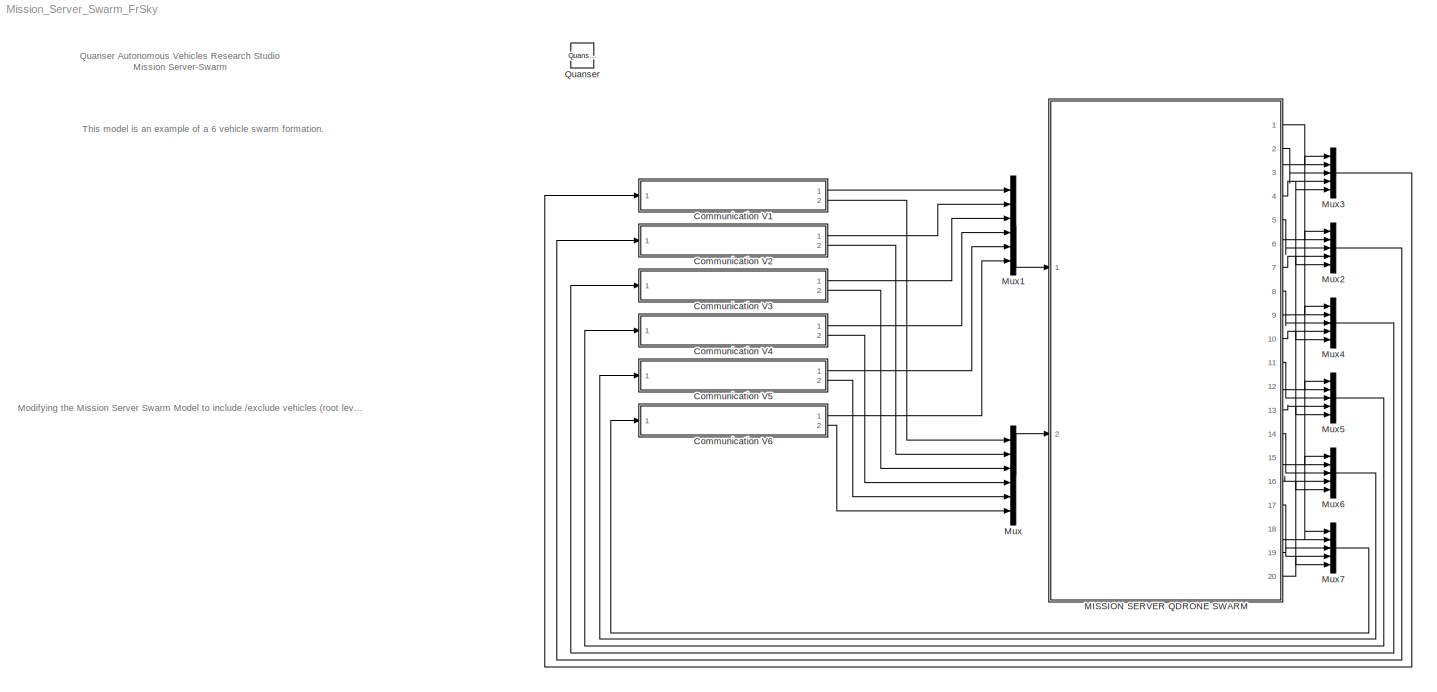
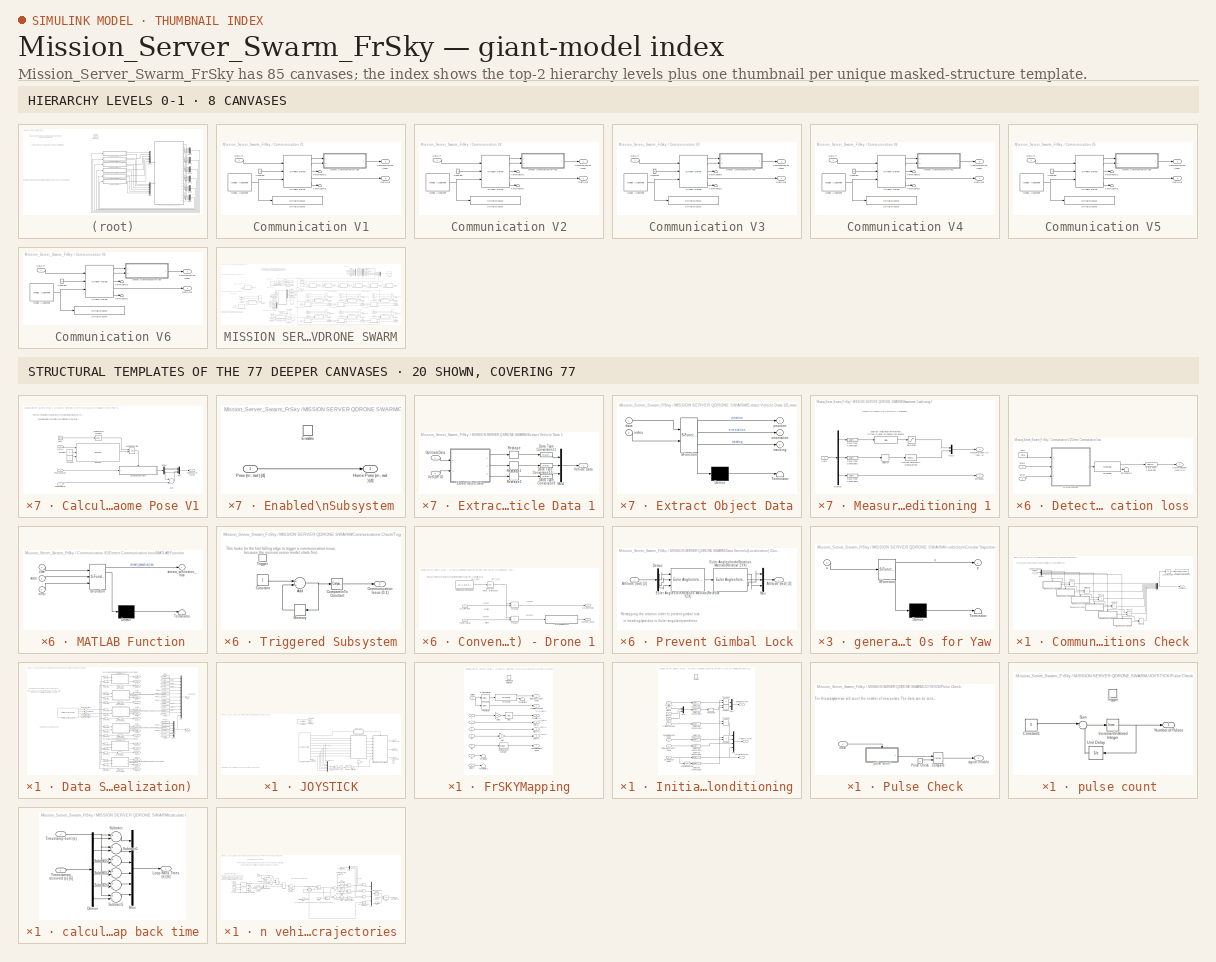
[diagram: thumbnail index - top-2 hierarchy levels (8 canvases) + 20 structural-template representatives of the remaining 77 canvases]
MODEL Mission_Server_Swarm_FrSky
KIND model
BLOCK [SubSystem] Communication V1
  Ports = [1, 2]
  RequestExecContextInheritance = off
  SID = 4722
BLOCK [Outport] Communication V1/Communication Issue
  IconDisplay = Port number
  Port = 2
  SID = 4739
BLOCK [Constant] Communication V1/Constant
  SID = 4724
BLOCK [Inport] Communication V1/Data In
  IconDisplay = Port number
  SID = 4723
BLOCK [Outport] Communication V1/Data Out
  IconDisplay = Port number
  SID = 4740
BLOCK [SubSystem] Communication V1/Detect Communication loss
  Ports = [2, 1]
  RequestExecContextInheritance = off
  SID = 4725
BLOCK [Outport] Communication V1/Detect Communication loss/Communication Issue (0,1)
  IconDisplay = Port number
  SID = 4733
BLOCK [DataTypeConversion] Communication V1/Detect Communication loss/Data Type Conversion
  RndMeth = Floor
  SID = 4728
  SaturateOnIntegerOverflow = off
BLOCK [Inport] Communication V1/Detect Communication loss/Error
  IconDisplay = Port number
  Port = 2
  SID = 4727
BLOCK [SubSystem] Communication V1/Detect Communication loss/MATLAB Function
  ErrorFcn = Stateflow.Translate.translate
  PermitHierarchicalResolution = ExplicitOnly
  Ports = [3, 1]
  RequestExecContextInheritance = off
  SFBlockType = MATLAB Function
  SID = 4729
  TreatAsAtomicUnit = on
BLOCK [Demux] Communication V1/Detect Communication loss/MATLAB Function/ Demux 
  DisplayOption = bar
  Outputs = 1
  Ports = [1, 1]
  SID = 4729::53
BLOCK [S-Function] Communication V1/Detect Communication loss/MATLAB Function/ SFunction 
  EnableBusSupport = off
  FunctionName = sf_sfun
  PortCounts = [3 2]
  Ports = [3, 2]
  SFcnIsStateOwnerBlock = off
  SFunctionDeploymentMode = off
  SID = 4729::52
  Tag = Stateflow S-Function Mission_Server_Swarm_FrSky 6
BLOCK [Terminator] Communication V1/Detect Communication loss/MATLAB Function/ Terminator 
  SID = 4729::54
BLOCK [Inport] Communication V1/Detect Communication loss/MATLAB Function/error
  IconDisplay = Port number
  Port = 3
  SID = 4729::23
BLOCK [Inport] Communication V1/Detect Communication loss/MATLAB Function/state
  IconDisplay = Port number
  Port = 2
  SID = 4729::22
BLOCK [Outport] Communication V1/Detect Communication loss/MATLAB Function/stream_connection_loss
  IconDisplay = Port number
  SID = 4729::5
BLOCK [Inport] Communication V1/Detect Communication loss/MATLAB Function/time
  IconDisplay = Port number
  SID = 4729::1
BLOCK [Inport] Communication V1/Detect Communication loss/State
  IconDisplay = Port number
  SID = 4726
BLOCK [Terminator] Communication V1/Detect Communication loss/Terminator2
  SID = 4730
BLOCK [Reference] Communication V1/Detect Communication loss/Threshold  REF=quarc_library/Discontinuities/Threshold
  Ports = [1, 2]
  SID = 4731
  SourceBlock = quarc_library/Discontinuities/Threshold
  SourceProductName = QUARC Targets
  SourceType = Threshold
  duration = 0.1
  operator = >=
  param_src = Specify via dialog
  threshold = 0.5
BLOCK [Reference] Communication V1/Detect Communication loss/Time  REF=quarc_library/Sources/Time/Time
  MultiThreadCoSim = auto
  Ports = [0, 1]
  SID = 4732
  SourceBlock = quarc_library/Sources/Time/Time
  SourceProductName = QUARC Targets
  SourceType = Time
  sample_time = qc_get_step_size
  time_source = Wall clock
BLOCK [Reference] Communication V1/Model Argument  REF=quarc_library/Sources/Signals/Model Argument
  AttributesFormatString = (-%<argument_name>)
  MultiThreadCoSim = auto
  Ports = [0, 1]
  SID = 4734
  SourceBlock = quarc_library/Sources/Signals/Model Argument
  SourceProductName = QUARC Targets
  SourceType = Model Argument
  argument_name = URI_Host_V1
  data_type = char
  data_type_mode = Specify via dialog
  default_value = 0
  has_value = on
  max_length = 80
  variable_size = off
BLOCK [Reference] Communication V1/Stream Server  REF=quarc_library/Communications/Basic/Stream Server
  MultiThreadCoSim = auto
  Ports = [3, 5]
  SID = 4735
  SourceBlock = quarc_library/Communications/Basic/Stream Server
  SourceProductName = QUARC Targets
  SourceType = Stream Server
  active = off
  apply_uri_to_all_configs = off
  byte_order = little endian (Intel - LSB first)
  data_type = Inherited via back propagation
  default_value = zeros(1,1)
  implementation = Use blocking I/O in a separate thread
  max_dimensions = -1
  optimization = Minimum latency
  receive_buffer_size = 1460
  receive_dimensions = off
  receive_fifo_size = 1000
  receive_options = Receive most recent data
  receive_priority = 0
  sample_time = qc_get_step_size
  send_buffer_size = 1460
  send_dimensions = off
  send_fifo_size = 1000
  send_options = Send most recent data
  send_priority = 0
  type_expr = BusObject
  uri = tcpip://localhost:18877
  uri_source = External input port
BLOCK [Reference] Communication V1/String Display   REF=quarc_library/Strings/String Display
  MultiThreadCoSim = auto
  Ports = [1]
  SID = 4736
  SourceBlock = quarc_library/Strings/String Display
  SourceProductName = QUARC Targets
  SourceType = String Display
  alignment = center
  display_mode = Single line
  sample_time = -1
  use_new = off
BLOCK [Terminator] Communication V1/Terminator1
  SID = 4737
BLOCK [Terminator] Communication V1/Terminator2
  SID = 4738
BLOCK [SubSystem] Communication V2
  Ports = [1, 2]
  RequestExecContextInheritance = off
  SID = 4741
BLOCK [Outport] Communication V2/Communication Issue
  IconDisplay = Port number
  Port = 2
  SID = 4758
BLOCK [Constant] Communication V2/Constant
  SID = 4743
BLOCK [Inport] Communication V2/Data In
  IconDisplay = Port number
  SID = 4742
BLOCK [Outport] Communication V2/Data Out
  IconDisplay = Port number
  SID = 4759
BLOCK [SubSystem] Communication V2/Detect Communication loss
  Ports = [2, 1]
  RequestExecContextInheritance = off
  SID = 4744
BLOCK [Outport] Communication V2/Detect Communication loss/Communication Issue (0,1)
  IconDisplay = Port number
  SID = 4752
BLOCK [DataTypeConversion] Communication V2/Detect Communication loss/Data Type Conversion
  RndMeth = Floor
  SID = 4747
  SaturateOnIntegerOverflow = off
BLOCK [Inport] Communication V2/Detect Communication loss/Error
  IconDisplay = Port number
  Port = 2
  SID = 4746
BLOCK [SubSystem] Communication V2/Detect Communication loss/MATLAB Function
  ErrorFcn = Stateflow.Translate.translate
  PermitHierarchicalResolution = ExplicitOnly
  Ports = [3, 1]
  RequestExecContextInheritance = off
  SFBlockType = MATLAB Function
  SID = 4748
  TreatAsAtomicUnit = on
BLOCK [Demux] Communication V2/Detect Communication loss/MATLAB Function/ Demux 
  DisplayOption = bar
  Outputs = 1
  Ports = [1, 1]
  SID = 4748::53
BLOCK [S-Function] Communication V2/Detect Communication loss/MATLAB Function/ SFunction 
  EnableBusSupport = off
  FunctionName = sf_sfun
  PortCounts = [3 2]
  Ports = [3, 2]
  SFcnIsStateOwnerBlock = off
  SFunctionDeploymentMode = off
  SID = 4748::52
  Tag = Stateflow S-Function Mission_Server_Swarm_FrSky 7
BLOCK [Terminator] Communication V2/Detect Communication loss/MATLAB Function/ Terminator 
  SID = 4748::54
BLOCK [Inport] Communication V2/Detect Communication loss/MATLAB Function/error
  IconDisplay = Port number
  Port = 3
  SID = 4748::23
BLOCK [Inport] Communication V2/Detect Communication loss/MATLAB Function/state
  IconDisplay = Port number
  Port = 2
  SID = 4748::22
BLOCK [Outport] Communication V2/Detect Communication loss/MATLAB Function/stream_connection_loss
  IconDisplay = Port number
  SID = 4748::5
BLOCK [Inport] Communication V2/Detect Communication loss/MATLAB Function/time
  IconDisplay = Port number
  SID = 4748::1
BLOCK [Inport] Communication V2/Detect Communication loss/State
  IconDisplay = Port number
  SID = 4745
BLOCK [Terminator] Communication V2/Detect Communication loss/Terminator2
  SID = 4749
BLOCK [Reference] Communication V2/Detect Communication loss/Threshold  REF=quarc_library/Discontinuities/Threshold
  Ports = [1, 2]
  SID = 4750
  SourceBlock = quarc_library/Discontinuities/Threshold
  SourceProductName = QUARC Targets
  SourceType = Threshold
  duration = 0.1
  operator = >=
  param_src = Specify via dialog
  threshold = 0.5
BLOCK [Reference] Communication V2/Detect Communication loss/Time  REF=quarc_library/Sources/Time/Time
  MultiThreadCoSim = auto
  Ports = [0, 1]
  SID = 4751
  SourceBlock = quarc_library/Sources/Time/Time
  SourceProductName = QUARC Targets
  SourceType = Time
  sample_time = qc_get_step_size
  time_source = Wall clock
BLOCK [Reference] Communication V2/Model Argument  REF=quarc_library/Sources/Signals/Model Argument
  AttributesFormatString = (-%<argument_name>)
  MultiThreadCoSim = auto
  Ports = [0, 1]
  SID = 4753
  SourceBlock = quarc_library/Sources/Signals/Model Argument
  SourceProductName = QUARC Targets
  SourceType = Model Argument
  argument_name = URI_Host_V2
  data_type = char
  data_type_mode = Specify via dialog
  default_value = 0
  has_value = on
  max_length = 80
  variable_size = off
BLOCK [Reference] Communication V2/Stream Server  REF=quarc_library/Communications/Basic/Stream Server
  MultiThreadCoSim = auto
  Ports = [3, 5]
  SID = 4754
  SourceBlock = quarc_library/Communications/Basic/Stream Server
  SourceProductName = QUARC Targets
  SourceType = Stream Server
  active = off
  apply_uri_to_all_configs = off
  byte_order = little endian (Intel - LSB first)
  data_type = Inherited via back propagation
  default_value = zeros(1,1)
  implementation = Use blocking I/O in a separate thread
  max_dimensions = -1
  optimization = Minimum latency
  receive_buffer_size = 1460
  receive_dimensions = off
  receive_fifo_size = 1000
  receive_options = Receive most recent data
  receive_priority = 0
  sample_time = qc_get_step_size
  send_buffer_size = 1460
  send_dimensions = off
  send_fifo_size = 1000
  send_options = Send most recent data
  send_priority = 0
  type_expr = BusObject
  uri = tcpip://localhost:18877
  uri_source = External input port
BLOCK [Reference] Communication V2/String Display   REF=quarc_library/Strings/String Display
  MultiThreadCoSim = auto
  Ports = [1]
  SID = 4755
  SourceBlock = quarc_library/Strings/String Display
  SourceProductName = QUARC Targets
  SourceType = String Display
  alignment = center
  display_mode = Single line
  sample_time = -1
  use_new = off
BLOCK [Terminator] Communication V2/Terminator1
  SID = 4756
BLOCK [Terminator] Communication V2/Terminator2
  SID = 4757
BLOCK [SubSystem] Communication V3
  Ports = [1, 2]
  RequestExecContextInheritance = off
  SID = 4760
BLOCK [Outport] Communication V3/Communication Issue
  IconDisplay = Port number
  Port = 2
  SID = 4777
BLOCK [Constant] Communication V3/Constant
  SID = 4762
BLOCK [Inport] Communication V3/Data In
  IconDisplay = Port number
  SID = 4761
BLOCK [Outport] Communication V3/Data Out
  IconDisplay = Port number
  SID = 4778
BLOCK [SubSystem] Communication V3/Detect Communication loss
  Ports = [2, 1]
  RequestExecContextInheritance = off
  SID = 4763
BLOCK [Outport] Communication V3/Detect Communication loss/Communication Issue (0,1)
  IconDisplay = Port number
  SID = 4771
BLOCK [DataTypeConversion] Communication V3/Detect Communication loss/Data Type Conversion
  RndMeth = Floor
  SID = 4766
  SaturateOnIntegerOverflow = off
BLOCK [Inport] Communication V3/Detect Communication loss/Error
  IconDisplay = Port number
  Port = 2
  SID = 4765
BLOCK [SubSystem] Communication V3/Detect Communication loss/MATLAB Function
  ErrorFcn = Stateflow.Translate.translate
  PermitHierarchicalResolution = ExplicitOnly
  Ports = [3, 1]
  RequestExecContextInheritance = off
  SFBlockType = MATLAB Function
  SID = 4767
  TreatAsAtomicUnit = on
BLOCK [Demux] Communication V3/Detect Communication loss/MATLAB Function/ Demux 
  DisplayOption = bar
  Outputs = 1
  Ports = [1, 1]
  SID = 4767::53
BLOCK [S-Function] Communication V3/Detect Communication loss/MATLAB Function/ SFunction 
  EnableBusSupport = off
  FunctionName = sf_sfun
  PortCounts = [3 2]
  Ports = [3, 2]
  SFcnIsStateOwnerBlock = off
  SFunctionDeploymentMode = off
  SID = 4767::52
  Tag = Stateflow S-Function Mission_Server_Swarm_FrSky 8
BLOCK [Terminator] Communication V3/Detect Communication loss/MATLAB Function/ Terminator 
  SID = 4767::54
BLOCK [Inport] Communication V3/Detect Communication loss/MATLAB Function/error
  IconDisplay = Port number
  Port = 3
  SID = 4767::23
BLOCK [Inport] Communication V3/Detect Communication loss/MATLAB Function/state
  IconDisplay = Port number
  Port = 2
  SID = 4767::22
BLOCK [Outport] Communication V3/Detect Communication loss/MATLAB Function/stream_connection_loss
  IconDisplay = Port number
  SID = 4767::5
BLOCK [Inport] Communication V3/Detect Communication loss/MATLAB Function/time
  IconDisplay = Port number
  SID = 4767::1
BLOCK [Inport] Communication V3/Detect Communication loss/State
  IconDisplay = Port number
  SID = 4764
BLOCK [Terminator] Communication V3/Detect Communication loss/Terminator2
  SID = 4768
BLOCK [Reference] Communication V3/Detect Communication loss/Threshold  REF=quarc_library/Discontinuities/Threshold
  Ports = [1, 2]
  SID = 4769
  SourceBlock = quarc_library/Discontinuities/Threshold
  SourceProductName = QUARC Targets
  SourceType = Threshold
  duration = 0.1
  operator = >=
  param_src = Specify via dialog
  threshold = 0.5
BLOCK [Reference] Communication V3/Detect Communication loss/Time  REF=quarc_library/Sources/Time/Time
  MultiThreadCoSim = auto
  Ports = [0, 1]
  SID = 4770
  SourceBlock = quarc_library/Sources/Time/Time
  SourceProductName = QUARC Targets
  SourceType = Time
  sample_time = qc_get_step_size
  time_source = Wall clock
BLOCK [Reference] Communication V3/Model Argument  REF=quarc_library/Sources/Signals/Model Argument
  AttributesFormatString = (-%<argument_name>)
  MultiThreadCoSim = auto
  Ports = [0, 1]
  SID = 4772
  SourceBlock = quarc_library/Sources/Signals/Model Argument
  SourceProductName = QUARC Targets
  SourceType = Model Argument
  argument_name = URI_Host_V3
  data_type = char
  data_type_mode = Specify via dialog
  default_value = 0
  has_value = on
  max_length = 80
  variable_size = off
BLOCK [Reference] Communication V3/Stream Server  REF=quarc_library/Communications/Basic/Stream Server
  MultiThreadCoSim = auto
  Ports = [3, 5]
  SID = 4773
  SourceBlock = quarc_library/Communications/Basic/Stream Server
  SourceProductName = QUARC Targets
  SourceType = Stream Server
  active = off
  apply_uri_to_all_configs = off
  byte_order = little endian (Intel - LSB first)
  data_type = Inherited via back propagation
  default_value = zeros(1,1)
  implementation = Use blocking I/O in a separate thread
  max_dimensions = -1
  optimization = Minimum latency
  receive_buffer_size = 1460
  receive_dimensions = off
  receive_fifo_size = 1000
  receive_options = Receive most recent data
  receive_priority = 0
  sample_time = qc_get_step_size
  send_buffer_size = 1460
  send_dimensions = off
  send_fifo_size = 1000
  send_options = Send most recent data
  send_priority = 0
  type_expr = BusObject
  uri = tcpip://localhost:18877
  uri_source = External input port
BLOCK [Reference] Communication V3/String Display   REF=quarc_library/Strings/String Display
  MultiThreadCoSim = auto
  Ports = [1]
  SID = 4774
  SourceBlock = quarc_library/Strings/String Display
  SourceProductName = QUARC Targets
  SourceType = String Display
  alignment = center
  display_mode = Single line
  sample_time = -1
  use_new = off
BLOCK [Terminator] Communication V3/Terminator1
  SID = 4775
BLOCK [Terminator] Communication V3/Terminator2
  SID = 4776
BLOCK [SubSystem] Communication V4
  Ports = [1, 2]
  RequestExecContextInheritance = off
  SID = 4779
BLOCK [Outport] Communication V4/Communication Issue
  IconDisplay = Port number
  Port = 2
  SID = 4796
BLOCK [Constant] Communication V4/Constant
  SID = 4781
BLOCK [Inport] Communication V4/Data In
  IconDisplay = Port number
  SID = 4780
BLOCK [Outport] Communication V4/Data Out
  IconDisplay = Port number
  SID = 4797
BLOCK [SubSystem] Communication V4/Detect Communication loss
  Ports = [2, 1]
  RequestExecContextInheritance = off
  SID = 4782
BLOCK [Outport] Communication V4/Detect Communication loss/Communication Issue (0,1)
  IconDisplay = Port number
  SID = 4790
BLOCK [DataTypeConversion] Communication V4/Detect Communication loss/Data Type Conversion
  RndMeth = Floor
  SID = 4785
  SaturateOnIntegerOverflow = off
BLOCK [Inport] Communication V4/Detect Communication loss/Error
  IconDisplay = Port number
  Port = 2
  SID = 4784
BLOCK [SubSystem] Communication V4/Detect Communication loss/MATLAB Function
  ErrorFcn = Stateflow.Translate.translate
  PermitHierarchicalResolution = ExplicitOnly
  Ports = [3, 1]
  RequestExecContextInheritance = off
  SFBlockType = MATLAB Function
  SID = 4786
  TreatAsAtomicUnit = on
BLOCK [Demux] Communication V4/Detect Communication loss/MATLAB Function/ Demux 
  DisplayOption = bar
  Outputs = 1
  Ports = [1, 1]
  SID = 4786::53
BLOCK [S-Function] Communication V4/Detect Communication loss/MATLAB Function/ SFunction 
  EnableBusSupport = off
  FunctionName = sf_sfun
  PortCounts = [3 2]
  Ports = [3, 2]
  SFcnIsStateOwnerBlock = off
  SFunctionDeploymentMode = off
  SID = 4786::52
  Tag = Stateflow S-Function Mission_Server_Swarm_FrSky 9
BLOCK [Terminator] Communication V4/Detect Communication loss/MATLAB Function/ Terminator 
  SID = 4786::54
BLOCK [Inport] Communication V4/Detect Communication loss/MATLAB Function/error
  IconDisplay = Port number
  Port = 3
  SID = 4786::23
BLOCK [Inport] Communication V4/Detect Communication loss/MATLAB Function/state
  IconDisplay = Port number
  Port = 2
  SID = 4786::22
BLOCK [Outport] Communication V4/Detect Communication loss/MATLAB Function/stream_connection_loss
  IconDisplay = Port number
  SID = 4786::5
BLOCK [Inport] Communication V4/Detect Communication loss/MATLAB Function/time
  IconDisplay = Port number
  SID = 4786::1
BLOCK [Inport] Communication V4/Detect Communication loss/State
  IconDisplay = Port number
  SID = 4783
BLOCK [Terminator] Communication V4/Detect Communication loss/Terminator2
  SID = 4787
BLOCK [Reference] Communication V4/Detect Communication loss/Threshold  REF=quarc_library/Discontinuities/Threshold
  Ports = [1, 2]
  SID = 4788
  SourceBlock = quarc_library/Discontinuities/Threshold
  SourceProductName = QUARC Targets
  SourceType = Threshold
  duration = 0.1
  operator = >=
  param_src = Specify via dialog
  threshold = 0.5
BLOCK [Reference] Communication V4/Detect Communication loss/Time  REF=quarc_library/Sources/Time/Time
  MultiThreadCoSim = auto
  Ports = [0, 1]
  SID = 4789
  SourceBlock = quarc_library/Sources/Time/Time
  SourceProductName = QUARC Targets
  SourceType = Time
  sample_time = qc_get_step_size
  time_source = Wall clock
BLOCK [Reference] Communication V4/Model Argument  REF=quarc_library/Sources/Signals/Model Argument
  AttributesFormatString = (-%<argument_name>)
  MultiThreadCoSim = auto
  Ports = [0, 1]
  SID = 4791
  SourceBlock = quarc_library/Sources/Signals/Model Argument
  SourceProductName = QUARC Targets
  SourceType = Model Argument
  argument_name = URI_Host_V4
  data_type = char
  data_type_mode = Specify via dialog
  default_value = 0
  has_value = on
  max_length = 80
  variable_size = off
BLOCK [Reference] Communication V4/Stream Server  REF=quarc_library/Communications/Basic/Stream Server
  MultiThreadCoSim = auto
  Ports = [3, 5]
  SID = 4792
  SourceBlock = quarc_library/Communications/Basic/Stream Server
  SourceProductName = QUARC Targets
  SourceType = Stream Server
  active = off
  apply_uri_to_all_configs = off
  byte_order = little endian (Intel - LSB first)
  data_type = Inherited via back propagation
  default_value = zeros(1,1)
  implementation = Use blocking I/O in a separate thread
  max_dimensions = -1
  optimization = Minimum latency
  receive_buffer_size = 1460
  receive_dimensions = off
  receive_fifo_size = 1000
  receive_options = Receive most recent data
  receive_priority = 0
  sample_time = qc_get_step_size
  send_buffer_size = 1460
  send_dimensions = off
  send_fifo_size = 1000
  send_options = Send most recent data
  send_priority = 0
  type_expr = BusObject
  uri = tcpip://localhost:18877
  uri_source = External input port
BLOCK [Reference] Communication V4/String Display   REF=quarc_library/Strings/String Display
  MultiThreadCoSim = auto
  Ports = [1]
  SID = 4793
  SourceBlock = quarc_library/Strings/String Display
  SourceProductName = QUARC Targets
  SourceType = String Display
  alignment = center
  display_mode = Single line
  sample_time = -1
  use_new = off
BLOCK [Terminator] Communication V4/Terminator1
  SID = 4794
BLOCK [Terminator] Communication V4/Terminator2
  SID = 4795
BLOCK [SubSystem] Communication V5
  Ports = [1, 2]
  RequestExecContextInheritance = off
  SID = 4798
BLOCK [Outport] Communication V5/Communication Issue
  IconDisplay = Port number
  Port = 2
  SID = 4815
BLOCK [Constant] Communication V5/Constant
  SID = 4800
BLOCK [Inport] Communication V5/Data In
  IconDisplay = Port number
  SID = 4799
BLOCK [Outport] Communication V5/Data Out
  IconDisplay = Port number
  SID = 4816
BLOCK [SubSystem] Communication V5/Detect Communication loss
  Ports = [2, 1]
  RequestExecContextInheritance = off
  SID = 4801
BLOCK [Outport] Communication V5/Detect Communication loss/Communication Issue (0,1)
  IconDisplay = Port number
  SID = 4809
BLOCK [DataTypeConversion] Communication V5/Detect Communication loss/Data Type Conversion
  RndMeth = Floor
  SID = 4804
  SaturateOnIntegerOverflow = off
BLOCK [Inport] Communication V5/Detect Communication loss/Error
  IconDisplay = Port number
  Port = 2
  SID = 4803
BLOCK [SubSystem] Communication V5/Detect Communication loss/MATLAB Function
  ErrorFcn = Stateflow.Translate.translate
  PermitHierarchicalResolution = ExplicitOnly
  Ports = [3, 1]
  RequestExecContextInheritance = off
  SFBlockType = MATLAB Function
  SID = 4805
  TreatAsAtomicUnit = on
BLOCK [Demux] Communication V5/Detect Communication loss/MATLAB Function/ Demux 
  DisplayOption = bar
  Outputs = 1
  Ports = [1, 1]
  SID = 4805::53
BLOCK [S-Function] Communication V5/Detect Communication loss/MATLAB Function/ SFunction 
  EnableBusSupport = off
  FunctionName = sf_sfun
  PortCounts = [3 2]
  Ports = [3, 2]
  SFcnIsStateOwnerBlock = off
  SFunctionDeploymentMode = off
  SID = 4805::52
  Tag = Stateflow S-Function Mission_Server_Swarm_FrSky 10
BLOCK [Terminator] Communication V5/Detect Communication loss/MATLAB Function/ Terminator 
  SID = 4805::54
BLOCK [Inport] Communication V5/Detect Communication loss/MATLAB Function/error
  IconDisplay = Port number
  Port = 3
  SID = 4805::23
BLOCK [Inport] Communication V5/Detect Communication loss/MATLAB Function/state
  IconDisplay = Port number
  Port = 2
  SID = 4805::22
BLOCK [Outport] Communication V5/Detect Communication loss/MATLAB Function/stream_connection_loss
  IconDisplay = Port number
  SID = 4805::5
BLOCK [Inport] Communication V5/Detect Communication loss/MATLAB Function/time
  IconDisplay = Port number
  SID = 4805::1
BLOCK [Inport] Communication V5/Detect Communication loss/State
  IconDisplay = Port number
  SID = 4802
BLOCK [Terminator] Communication V5/Detect Communication loss/Terminator2
  SID = 4806
BLOCK [Reference] Communication V5/Detect Communication loss/Threshold  REF=quarc_library/Discontinuities/Threshold
  Ports = [1, 2]
  SID = 4807
  SourceBlock = quarc_library/Discontinuities/Threshold
  SourceProductName = QUARC Targets
  SourceType = Threshold
  duration = 0.1
  operator = >=
  param_src = Specify via dialog
  threshold = 0.5
BLOCK [Reference] Communication V5/Detect Communication loss/Time  REF=quarc_library/Sources/Time/Time
  MultiThreadCoSim = auto
  Ports = [0, 1]
  SID = 4808
  SourceBlock = quarc_library/Sources/Time/Time
  SourceProductName = QUARC Targets
  SourceType = Time
  sample_time = qc_get_step_size
  time_source = Wall clock
BLOCK [Reference] Communication V5/Model Argument  REF=quarc_library/Sources/Signals/Model Argument
  AttributesFormatString = (-%<argument_name>)
  MultiThreadCoSim = auto
  Ports = [0, 1]
  SID = 4810
  SourceBlock = quarc_library/Sources/Signals/Model Argument
  SourceProductName = QUARC Targets
  SourceType = Model Argument
  argument_name = URI_Host_V5
  data_type = char
  data_type_mode = Specify via dialog
  default_value = 0
  has_value = on
  max_length = 80
  variable_size = off
BLOCK [Reference] Communication V5/Stream Server  REF=quarc_library/Communications/Basic/Stream Server
  MultiThreadCoSim = auto
  Ports = [3, 5]
  SID = 4811
  SourceBlock = quarc_library/Communications/Basic/Stream Server
  SourceProductName = QUARC Targets
  SourceType = Stream Server
  active = off
  apply_uri_to_all_configs = off
  byte_order = little endian (Intel - LSB first)
  data_type = Inherited via back propagation
  default_value = zeros(1,1)
  implementation = Use blocking I/O in a separate thread
  max_dimensions = -1
  optimization = Minimum latency
  receive_buffer_size = 1460
  receive_dimensions = off
  receive_fifo_size = 1000
  receive_options = Receive most recent data
  receive_priority = 0
  sample_time = qc_get_step_size
  send_buffer_size = 1460
  send_dimensions = off
  send_fifo_size = 1000
  send_options = Send most recent data
  send_priority = 0
  type_expr = BusObject
  uri = tcpip://localhost:18877
  uri_source = External input port
BLOCK [Reference] Communication V5/String Display   REF=quarc_library/Strings/String Display
  MultiThreadCoSim = auto
  Ports = [1]
  SID = 4812
  SourceBlock = quarc_library/Strings/String Display
  SourceProductName = QUARC Targets
  SourceType = String Display
  alignment = center
  display_mode = Single line
  sample_time = -1
  use_new = off
BLOCK [Terminator] Communication V5/Terminator1
  SID = 4813
BLOCK [Terminator] Communication V5/Terminator2
  SID = 4814
BLOCK [SubSystem] Communication V6
  Ports = [1, 2]
  RequestExecContextInheritance = off
  SID = 3974
BLOCK [Outport] Communication V6/Communication Issue
  IconDisplay = Port number
  Port = 2
  SID = 3977
BLOCK [Constant] Communication V6/Constant
  SID = 3844
BLOCK [Inport] Communication V6/Data In
  IconDisplay = Port number
  SID = 3975
BLOCK [Outport] Communication V6/Data Out
  IconDisplay = Port number
  SID = 3978
BLOCK [SubSystem] Communication V6/Detect Communication loss
  Ports = [2, 1]
  RequestExecContextInheritance = off
  SID = 3979
BLOCK [Outport] Communication V6/Detect Communication loss/Communication Issue (0,1)
  IconDisplay = Port number
  SID = 3987
BLOCK [DataTypeConversion] Communication V6/Detect Communication loss/Data Type Conversion
  RndMeth = Floor
  SID = 3982
  SaturateOnIntegerOverflow = off
BLOCK [Inport] Communication V6/Detect Communication loss/Error
  IconDisplay = Port number
  Port = 2
  SID = 3981
BLOCK [SubSystem] Communication V6/Detect Communication loss/MATLAB Function
  ErrorFcn = Stateflow.Translate.translate
  PermitHierarchicalResolution = ExplicitOnly
  Ports = [3, 1]
  RequestExecContextInheritance = off
  SFBlockType = MATLAB Function
  SID = 3983
  TreatAsAtomicUnit = on
BLOCK [Demux] Communication V6/Detect Communication loss/MATLAB Function/ Demux 
  DisplayOption = bar
  Outputs = 1
  Ports = [1, 1]
  SID = 3983::53
BLOCK [S-Function] Communication V6/Detect Communication loss/MATLAB Function/ SFunction 
  EnableBusSupport = off
  FunctionName = sf_sfun
  PortCounts = [3 2]
  Ports = [3, 2]
  SFcnIsStateOwnerBlock = off
  SFunctionDeploymentMode = off
  SID = 3983::52
  Tag = Stateflow S-Function Mission_Server_Swarm_FrSky 3
BLOCK [Terminator] Communication V6/Detect Communication loss/MATLAB Function/ Terminator 
  SID = 3983::54
BLOCK [Inport] Communication V6/Detect Communication loss/MATLAB Function/error
  IconDisplay = Port number
  Port = 3
  SID = 3983::23
BLOCK [Inport] Communication V6/Detect Communication loss/MATLAB Function/state
  IconDisplay = Port number
  Port = 2
  SID = 3983::22
BLOCK [Outport] Communication V6/Detect Communication loss/MATLAB Function/stream_connection_loss
  IconDisplay = Port number
  SID = 3983::5
BLOCK [Inport] Communication V6/Detect Communication loss/MATLAB Function/time
  IconDisplay = Port number
  SID = 3983::1
BLOCK [Inport] Communication V6/Detect Communication loss/State
  IconDisplay = Port number
  SID = 3980
BLOCK [Terminator] Communication V6/Detect Communication loss/Terminator2
  SID = 3984
BLOCK [Reference] Communication V6/Detect Communication loss/Threshold  REF=quarc_library/Discontinuities/Threshold
  Ports = [1, 2]
  SID = 3985
  SourceBlock = quarc_library/Discontinuities/Threshold
  SourceProductName = QUARC Targets
  SourceType = Threshold
  duration = 0.1
  operator = >=
  param_src = Specify via dialog
  threshold = 0.5
BLOCK [Reference] Communication V6/Detect Communication loss/Time  REF=quarc_library/Sources/Time/Time
  MultiThreadCoSim = auto
  Ports = [0, 1]
  SID = 3986
  SourceBlock = quarc_library/Sources/Time/Time
  SourceProductName = QUARC Targets
  SourceType = Time
  sample_time = qc_get_step_size
  time_source = Wall clock
BLOCK [Reference] Communication V6/Model Argument  REF=quarc_library/Sources/Signals/Model Argument
  AttributesFormatString = (-%<argument_name>)
  MultiThreadCoSim = auto
  Ports = [0, 1]
  SID = 3845
  SourceBlock = quarc_library/Sources/Signals/Model Argument
  SourceProductName = QUARC Targets
  SourceType = Model Argument
  argument_name = URI_Host_V6
  data_type = char
  data_type_mode = Specify via dialog
  default_value = 0
  has_value = on
  max_length = 80
  variable_size = off
BLOCK [Reference] Communication V6/Stream Server  REF=quarc_library/Communications/Basic/Stream Server
  MultiThreadCoSim = auto
  Ports = [3, 5]
  SID = 3861
  SourceBlock = quarc_library/Communications/Basic/Stream Server
  SourceProductName = QUARC Targets
  SourceType = Stream Server
  active = off
  apply_uri_to_all_configs = off
  byte_order = little endian (Intel - LSB first)
  data_type = Inherited via back propagation
  default_value = zeros(1,1)
  implementation = Use blocking I/O in a separate thread
  max_dimensions = -1
  optimization = Minimum latency
  receive_buffer_size = 1460
  receive_dimensions = off
  receive_fifo_size = 1000
  receive_options = Receive most recent data
  receive_priority = 0
  sample_time = qc_get_step_size
  send_buffer_size = 1460
  send_dimensions = off
  send_fifo_size = 1000
  send_options = Send most recent data
  send_priority = 0
  type_expr = BusObject
  uri = tcpip://localhost:18877
  uri_source = External input port
BLOCK [Reference] Communication V6/String Display   REF=quarc_library/Strings/String Display
  MultiThreadCoSim = auto
  Ports = [1]
  SID = 3862
  SourceBlock = quarc_library/Strings/String Display
  SourceProductName = QUARC Targets
  SourceType = String Display
  alignment = center
  display_mode = Single line
  sample_time = -1
  use_new = off
BLOCK [Terminator] Communication V6/Terminator1
  SID = 3863
BLOCK [Terminator] Communication V6/Terminator2
  SID = 3864
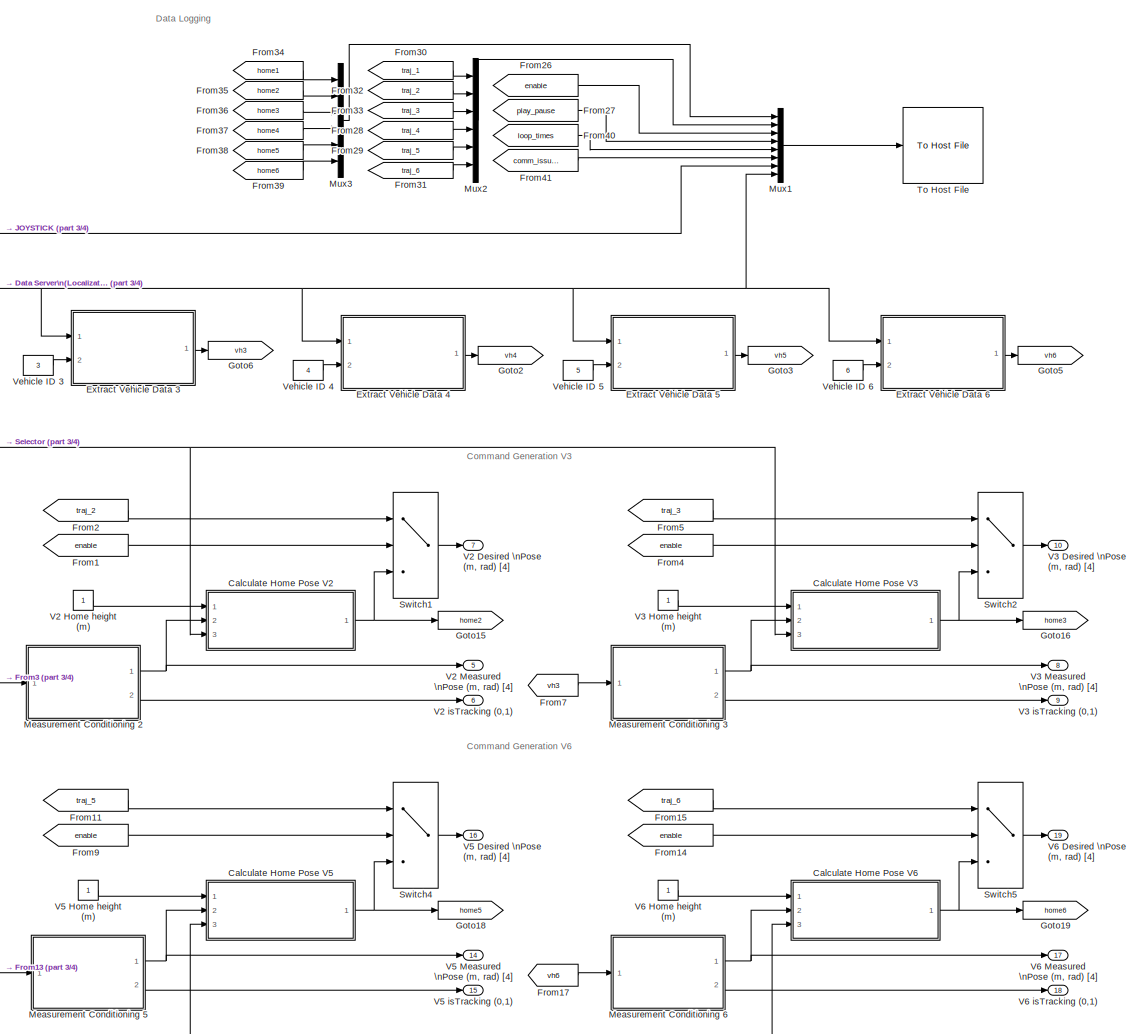
[diagram: MISSION SERVER QDRONE SWARM - part 1/4, right side, full height]
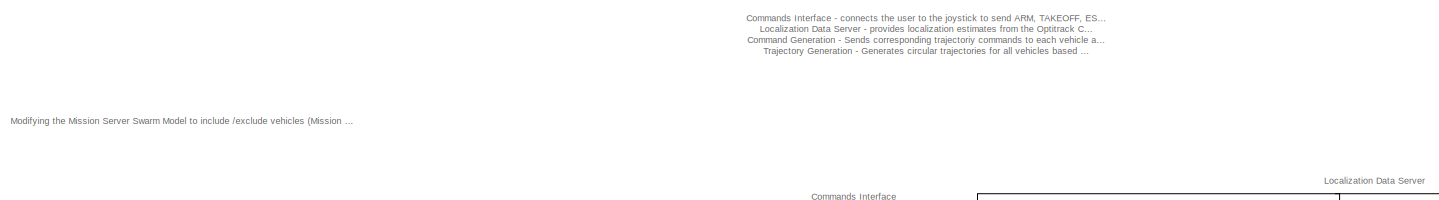
[diagram: MISSION SERVER QDRONE SWARM - part 2/4, top left region]
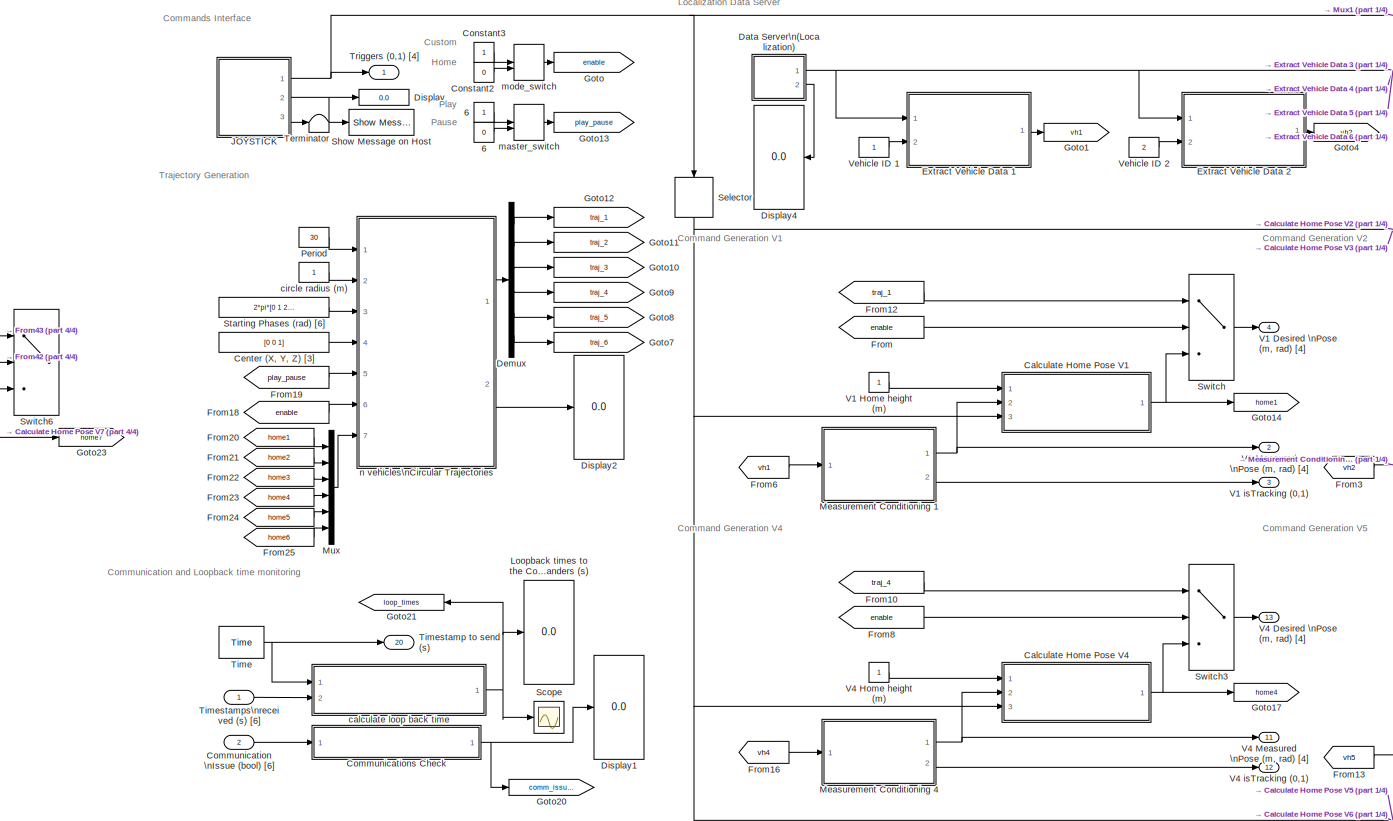
[diagram: MISSION SERVER QDRONE SWARM - part 3/4, center side, full height]
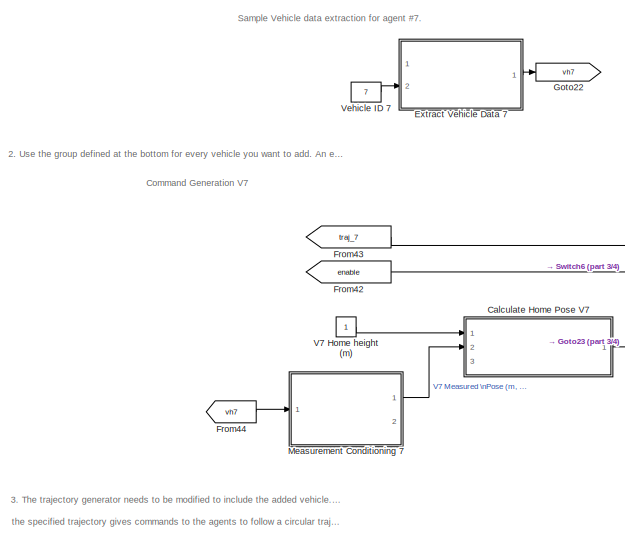
[diagram: MISSION SERVER QDRONE SWARM - part 4/4, middle left region]
BLOCK [SubSystem] MISSION SERVER QDRONE SWARM
  Ports = [2, 20]
  RequestExecContextInheritance = off
  SID = 4051
BLOCK [Constant] MISSION SERVER QDRONE SWARM/          6
  SID = 4054
BLOCK [Constant] MISSION SERVER QDRONE SWARM/   6
  SID = 4055
  Value = 0
BLOCK [SubSystem] MISSION SERVER QDRONE SWARM/Calculate Home Pose V1
  Ports = [3, 1]
  RequestExecContextInheritance = off
  SID = 5329
BLOCK [Inport] MISSION SERVER QDRONE SWARM/Calculate Home Pose V1/Arm(0,1)
  IconDisplay = Port number
  Port = 3
  SID = 5332
BLOCK [Clock] MISSION SERVER QDRONE SWARM/Calculate Home Pose V1/Clock
  SID = 5333
BLOCK [Reference] MISSION SERVER QDRONE SWARM/Calculate Home Pose V1/Compare\nTo Constant  REF=simulink/Logic and Bit\nOperations/Compare\nTo Constant
  OutDataTypeStr = boolean
  Ports = [1, 1]
  SID = 5334
  SourceBlock = simulink/Logic and Bit\nOperations/Compare\nTo Constant
  SourceProductBaseCode = SL
  SourceType = Compare To Constant
  ZeroCross = on
  const = 5
  relop = >
BLOCK [Constant] MISSION SERVER QDRONE SWARM/Calculate Home Pose V1/Constant
  SID = 5335
  Value = 0
BLOCK [Constant] MISSION SERVER QDRONE SWARM/Calculate Home Pose V1/Constant1
  SID = 5336
BLOCK [Demux] MISSION SERVER QDRONE SWARM/Calculate Home Pose V1/Demux
  DisplayOption = bar
  Ports = [1, 4]
  SID = 5337
BLOCK [SubSystem] MISSION SERVER QDRONE SWARM/Calculate Home Pose V1/Enabled\nSubsystem
  Ports = [1, 1, 1]
  RequestExecContextInheritance = off
  SID = 5338
  TreatAsAtomicUnit = on
BLOCK [EnablePort] MISSION SERVER QDRONE SWARM/Calculate Home Pose V1/Enabled\nSubsystem/Enable
  Ports = []
  SID = 5340
BLOCK [Outport] MISSION SERVER QDRONE SWARM/Calculate Home Pose V1/Enabled\nSubsystem/Home Pose (m, rad ) [4]
  IconDisplay = Port number
  SID = 5341
BLOCK [Inport] MISSION SERVER QDRONE SWARM/Calculate Home Pose V1/Enabled\nSubsystem/Pose (m, rad ) [4] 
  IconDisplay = Port number
  SID = 5339
BLOCK [Outport] MISSION SERVER QDRONE SWARM/Calculate Home Pose V1/Home Pose (m, rad) [4]
  IconDisplay = Port number
  SID = 5346
BLOCK [Inport] MISSION SERVER QDRONE SWARM/Calculate Home Pose V1/Home height (m)
  IconDisplay = Port number
  SID = 5330
BLOCK [Logic] MISSION SERVER QDRONE SWARM/Calculate Home Pose V1/Logical\nOperator
  AllPortsSameDT = off
  OutDataTypeStr = boolean
  Ports = [2, 1]
  SID = 5342
BLOCK [Mux] MISSION SERVER QDRONE SWARM/Calculate Home Pose V1/Mux
  DisplayOption = bar
  Ports = [4, 1]
  SID = 5343
BLOCK [Reference] MISSION SERVER QDRONE SWARM/Calculate Home Pose V1/One Shot  REF=quarc_library/Discontinuities/One Shot
  Ports = [3, 1]
  SID = 5344
  SourceBlock = quarc_library/Discontinuities/One Shot
  SourceProductName = QUARC Targets
  SourceType = One Shot
  pulse_width = 1/qc_get_step_size
  redun_pulse = Ignore extraneous pulse
  trigger_type = Rising edge
  width_source = Specify via dialog
BLOCK [Inport] MISSION SERVER QDRONE SWARM/Calculate Home Pose V1/Pose (m, rad ) [4]
  IconDisplay = Port number
  Port = 2
  SID = 5331
BLOCK [Sum] MISSION SERVER QDRONE SWARM/Calculate Home Pose V1/Sum
  InputSameDT = off
  OutDataTypeStr = Inherit: Inherit via internal rule
  Ports = [2, 1]
  SID = 5345
  SaturateOnIntegerOverflow = off
BLOCK [SubSystem] MISSION SERVER QDRONE SWARM/Calculate Home Pose V2
  Ports = [3, 1]
  RequestExecContextInheritance = off
  SID = 5348
BLOCK [Inport] MISSION SERVER QDRONE SWARM/Calculate Home Pose V2/Arm(0,1)
  IconDisplay = Port number
  Port = 3
  SID = 5351
BLOCK [Clock] MISSION SERVER QDRONE SWARM/Calculate Home Pose V2/Clock
  SID = 5352
BLOCK [Reference] MISSION SERVER QDRONE SWARM/Calculate Home Pose V2/Compare\nTo Constant  REF=simulink/Logic and Bit\nOperations/Compare\nTo Constant
  OutDataTypeStr = boolean
  Ports = [1, 1]
  SID = 5353
  SourceBlock = simulink/Logic and Bit\nOperations/Compare\nTo Constant
  SourceProductBaseCode = SL
  SourceType = Compare To Constant
  ZeroCross = on
  const = 5
  relop = >
BLOCK [Constant] MISSION SERVER QDRONE SWARM/Calculate Home Pose V2/Constant
  SID = 5354
  Value = 0
BLOCK [Constant] MISSION SERVER QDRONE SWARM/Calculate Home Pose V2/Constant1
  SID = 5355
BLOCK [Demux] MISSION SERVER QDRONE SWARM/Calculate Home Pose V2/Demux
  DisplayOption = bar
  Ports = [1, 4]
  SID = 5356
BLOCK [SubSystem] MISSION SERVER QDRONE SWARM/Calculate Home Pose V2/Enabled\nSubsystem
  Ports = [1, 1, 1]
  RequestExecContextInheritance = off
  SID = 5357
  TreatAsAtomicUnit = on
BLOCK [EnablePort] MISSION SERVER QDRONE SWARM/Calculate Home Pose V2/Enabled\nSubsystem/Enable
  Ports = []
  SID = 5359
BLOCK [Outport] MISSION SERVER QDRONE SWARM/Calculate Home Pose V2/Enabled\nSubsystem/Home Pose (m, rad ) [4]
  IconDisplay = Port number
  SID = 5360
BLOCK [Inport] MISSION SERVER QDRONE SWARM/Calculate Home Pose V2/Enabled\nSubsystem/Pose (m, rad ) [4] 
  IconDisplay = Port number
  SID = 5358
BLOCK [Outport] MISSION SERVER QDRONE SWARM/Calculate Home Pose V2/Home Pose (m, rad) [4]
  IconDisplay = Port number
  SID = 5365
BLOCK [Inport] MISSION SERVER QDRONE SWARM/Calculate Home Pose V2/Home height (m)
  IconDisplay = Port number
  SID = 5349
BLOCK [Logic] MISSION SERVER QDRONE SWARM/Calculate Home Pose V2/Logical\nOperator
  AllPortsSameDT = off
  OutDataTypeStr = boolean
  Ports = [2, 1]
  SID = 5361
BLOCK [Mux] MISSION SERVER QDRONE SWARM/Calculate Home Pose V2/Mux
  DisplayOption = bar
  Ports = [4, 1]
  SID = 5362
BLOCK [Reference] MISSION SERVER QDRONE SWARM/Calculate Home Pose V2/One Shot  REF=quarc_library/Discontinuities/One Shot
  Ports = [3, 1]
  SID = 5363
  SourceBlock = quarc_library/Discontinuities/One Shot
  SourceProductName = QUARC Targets
  SourceType = One Shot
  pulse_width = 1/qc_get_step_size
  redun_pulse = Ignore extraneous pulse
  trigger_type = Rising edge
  width_source = Specify via dialog
BLOCK [Inport] MISSION SERVER QDRONE SWARM/Calculate Home Pose V2/Pose (m, rad ) [4]
  IconDisplay = Port number
  Port = 2
  SID = 5350
BLOCK [Sum] MISSION SERVER QDRONE SWARM/Calculate Home Pose V2/Sum
  InputSameDT = off
  OutDataTypeStr = Inherit: Inherit via internal rule
  Ports = [2, 1]
  SID = 5364
  SaturateOnIntegerOverflow = off
BLOCK [SubSystem] MISSION SERVER QDRONE SWARM/Calculate Home Pose V3
  Ports = [3, 1]
  RequestExecContextInheritance = off
  SID = 5367
BLOCK [Inport] MISSION SERVER QDRONE SWARM/Calculate Home Pose V3/Arm(0,1)
  IconDisplay = Port number
  Port = 3
  SID = 5370
BLOCK [Clock] MISSION SERVER QDRONE SWARM/Calculate Home Pose V3/Clock
  SID = 5371
BLOCK [Reference] MISSION SERVER QDRONE SWARM/Calculate Home Pose V3/Compare\nTo Constant  REF=simulink/Logic and Bit\nOperations/Compare\nTo Constant
  OutDataTypeStr = boolean
  Ports = [1, 1]
  SID = 5372
  SourceBlock = simulink/Logic and Bit\nOperations/Compare\nTo Constant
  SourceProductBaseCode = SL
  SourceType = Compare To Constant
  ZeroCross = on
  const = 5
  relop = >
BLOCK [Constant] MISSION SERVER QDRONE SWARM/Calculate Home Pose V3/Constant
  SID = 5373
  Value = 0
BLOCK [Constant] MISSION SERVER QDRONE SWARM/Calculate Home Pose V3/Constant1
  SID = 5374
BLOCK [Demux] MISSION SERVER QDRONE SWARM/Calculate Home Pose V3/Demux
  DisplayOption = bar
  Ports = [1, 4]
  SID = 5375
BLOCK [SubSystem] MISSION SERVER QDRONE SWARM/Calculate Home Pose V3/Enabled\nSubsystem
  Ports = [1, 1, 1]
  RequestExecContextInheritance = off
  SID = 5376
  TreatAsAtomicUnit = on
BLOCK [EnablePort] MISSION SERVER QDRONE SWARM/Calculate Home Pose V3/Enabled\nSubsystem/Enable
  Ports = []
  SID = 5378
BLOCK [Outport] MISSION SERVER QDRONE SWARM/Calculate Home Pose V3/Enabled\nSubsystem/Home Pose (m, rad ) [4]
  IconDisplay = Port number
  SID = 5379
BLOCK [Inport] MISSION SERVER QDRONE SWARM/Calculate Home Pose V3/Enabled\nSubsystem/Pose (m, rad ) [4] 
  IconDisplay = Port number
  SID = 5377
BLOCK [Outport] MISSION SERVER QDRONE SWARM/Calculate Home Pose V3/Home Pose (m, rad) [4]
  IconDisplay = Port number
  SID = 5384
BLOCK [Inport] MISSION SERVER QDRONE SWARM/Calculate Home Pose V3/Home height (m)
  IconDisplay = Port number
  SID = 5368
BLOCK [Logic] MISSION SERVER QDRONE SWARM/Calculate Home Pose V3/Logical\nOperator
  AllPortsSameDT = off
  OutDataTypeStr = boolean
  Ports = [2, 1]
  SID = 5380
BLOCK [Mux] MISSION SERVER QDRONE SWARM/Calculate Home Pose V3/Mux
  DisplayOption = bar
  Ports = [4, 1]
  SID = 5381
BLOCK [Reference] MISSION SERVER QDRONE SWARM/Calculate Home Pose V3/One Shot  REF=quarc_library/Discontinuities/One Shot
  Ports = [3, 1]
  SID = 5382
  SourceBlock = quarc_library/Discontinuities/One Shot
  SourceProductName = QUARC Targets
  SourceType = One Shot
  pulse_width = 1/qc_get_step_size
  redun_pulse = Ignore extraneous pulse
  trigger_type = Rising edge
  width_source = Specify via dialog
BLOCK [Inport] MISSION SERVER QDRONE SWARM/Calculate Home Pose V3/Pose (m, rad ) [4]
  IconDisplay = Port number
  Port = 2
  SID = 5369
BLOCK [Sum] MISSION SERVER QDRONE SWARM/Calculate Home Pose V3/Sum
  InputSameDT = off
  OutDataTypeStr = Inherit: Inherit via internal rule
  Ports = [2, 1]
  SID = 5383
  SaturateOnIntegerOverflow = off
BLOCK [SubSystem] MISSION SERVER QDRONE SWARM/Calculate Home Pose V4
  Ports = [3, 1]
  RequestExecContextInheritance = off
  SID = 5386
BLOCK [Inport] MISSION SERVER QDRONE SWARM/Calculate Home Pose V4/Arm(0,1)
  IconDisplay = Port number
  Port = 3
  SID = 5389
BLOCK [Clock] MISSION SERVER QDRONE SWARM/Calculate Home Pose V4/Clock
  SID = 5390
BLOCK [Reference] MISSION SERVER QDRONE SWARM/Calculate Home Pose V4/Compare\nTo Constant  REF=simulink/Logic and Bit\nOperations/Compare\nTo Constant
  OutDataTypeStr = boolean
  Ports = [1, 1]
  SID = 5391
  SourceBlock = simulink/Logic and Bit\nOperations/Compare\nTo Constant
  SourceProductBaseCode = SL
  SourceType = Compare To Constant
  ZeroCross = on
  const = 5
  relop = >
BLOCK [Constant] MISSION SERVER QDRONE SWARM/Calculate Home Pose V4/Constant
  SID = 5392
  Value = 0
BLOCK [Constant] MISSION SERVER QDRONE SWARM/Calculate Home Pose V4/Constant1
  SID = 5393
BLOCK [Demux] MISSION SERVER QDRONE SWARM/Calculate Home Pose V4/Demux
  DisplayOption = bar
  Ports = [1, 4]
  SID = 5394
BLOCK [SubSystem] MISSION SERVER QDRONE SWARM/Calculate Home Pose V4/Enabled\nSubsystem
  Ports = [1, 1, 1]
  RequestExecContextInheritance = off
  SID = 5395
  TreatAsAtomicUnit = on
BLOCK [EnablePort] MISSION SERVER QDRONE SWARM/Calculate Home Pose V4/Enabled\nSubsystem/Enable
  Ports = []
  SID = 5397
BLOCK [Outport] MISSION SERVER QDRONE SWARM/Calculate Home Pose V4/Enabled\nSubsystem/Home Pose (m, rad ) [4]
  IconDisplay = Port number
  SID = 5398
BLOCK [Inport] MISSION SERVER QDRONE SWARM/Calculate Home Pose V4/Enabled\nSubsystem/Pose (m, rad ) [4] 
  IconDisplay = Port number
  SID = 5396
BLOCK [Outport] MISSION SERVER QDRONE SWARM/Calculate Home Pose V4/Home Pose (m, rad) [4]
  IconDisplay = Port number
  SID = 5403
BLOCK [Inport] MISSION SERVER QDRONE SWARM/Calculate Home Pose V4/Home height (m)
  IconDisplay = Port number
  SID = 5387
BLOCK [Logic] MISSION SERVER QDRONE SWARM/Calculate Home Pose V4/Logical\nOperator
  AllPortsSameDT = off
  OutDataTypeStr = boolean
  Ports = [2, 1]
  SID = 5399
BLOCK [Mux] MISSION SERVER QDRONE SWARM/Calculate Home Pose V4/Mux
  DisplayOption = bar
  Ports = [4, 1]
  SID = 5400
BLOCK [Reference] MISSION SERVER QDRONE SWARM/Calculate Home Pose V4/One Shot  REF=quarc_library/Discontinuities/One Shot
  Ports = [3, 1]
  SID = 5401
  SourceBlock = quarc_library/Discontinuities/One Shot
  SourceProductName = QUARC Targets
  SourceType = One Shot
  pulse_width = 1/qc_get_step_size
  redun_pulse = Ignore extraneous pulse
  trigger_type = Rising edge
  width_source = Specify via dialog
BLOCK [Inport] MISSION SERVER QDRONE SWARM/Calculate Home Pose V4/Pose (m, rad ) [4]
  IconDisplay = Port number
  Port = 2
  SID = 5388
BLOCK [Sum] MISSION SERVER QDRONE SWARM/Calculate Home Pose V4/Sum
  InputSameDT = off
  OutDataTypeStr = Inherit: Inherit via internal rule
  Ports = [2, 1]
  SID = 5402
  SaturateOnIntegerOverflow = off
BLOCK [SubSystem] MISSION SERVER QDRONE SWARM/Calculate Home Pose V5
  Ports = [3, 1]
  RequestExecContextInheritance = off
  SID = 5405
BLOCK [Inport] MISSION SERVER QDRONE SWARM/Calculate Home Pose V5/Arm(0,1)
  IconDisplay = Port number
  Port = 3
  SID = 5408
BLOCK [Clock] MISSION SERVER QDRONE SWARM/Calculate Home Pose V5/Clock
  SID = 5409
BLOCK [Reference] MISSION SERVER QDRONE SWARM/Calculate Home Pose V5/Compare\nTo Constant  REF=simulink/Logic and Bit\nOperations/Compare\nTo Constant
  OutDataTypeStr = boolean
  Ports = [1, 1]
  SID = 5410
  SourceBlock = simulink/Logic and Bit\nOperations/Compare\nTo Constant
  SourceProductBaseCode = SL
  SourceType = Compare To Constant
  ZeroCross = on
  const = 5
  relop = >
BLOCK [Constant] MISSION SERVER QDRONE SWARM/Calculate Home Pose V5/Constant
  SID = 5411
  Value = 0
BLOCK [Constant] MISSION SERVER QDRONE SWARM/Calculate Home Pose V5/Constant1
  SID = 5412
BLOCK [Demux] MISSION SERVER QDRONE SWARM/Calculate Home Pose V5/Demux
  DisplayOption = bar
  Ports = [1, 4]
  SID = 5413
BLOCK [SubSystem] MISSION SERVER QDRONE SWARM/Calculate Home Pose V5/Enabled\nSubsystem
  Ports = [1, 1, 1]
  RequestExecContextInheritance = off
  SID = 5414
  TreatAsAtomicUnit = on
BLOCK [EnablePort] MISSION SERVER QDRONE SWARM/Calculate Home Pose V5/Enabled\nSubsystem/Enable
  Ports = []
  SID = 5416
BLOCK [Outport] MISSION SERVER QDRONE SWARM/Calculate Home Pose V5/Enabled\nSubsystem/Home Pose (m, rad ) [4]
  IconDisplay = Port number
  SID = 5417
BLOCK [Inport] MISSION SERVER QDRONE SWARM/Calculate Home Pose V5/Enabled\nSubsystem/Pose (m, rad ) [4] 
  IconDisplay = Port number
  SID = 5415
BLOCK [Outport] MISSION SERVER QDRONE SWARM/Calculate Home Pose V5/Home Pose (m, rad) [4]
  IconDisplay = Port number
  SID = 5422
BLOCK [Inport] MISSION SERVER QDRONE SWARM/Calculate Home Pose V5/Home height (m)
  IconDisplay = Port number
  SID = 5406
BLOCK [Logic] MISSION SERVER QDRONE SWARM/Calculate Home Pose V5/Logical\nOperator
  AllPortsSameDT = off
  OutDataTypeStr = boolean
  Ports = [2, 1]
  SID = 5418
BLOCK [Mux] MISSION SERVER QDRONE SWARM/Calculate Home Pose V5/Mux
  DisplayOption = bar
  Ports = [4, 1]
  SID = 5419
BLOCK [Reference] MISSION SERVER QDRONE SWARM/Calculate Home Pose V5/One Shot  REF=quarc_library/Discontinuities/One Shot
  Ports = [3, 1]
  SID = 5420
  SourceBlock = quarc_library/Discontinuities/One Shot
  SourceProductName = QUARC Targets
  SourceType = One Shot
  pulse_width = 1/qc_get_step_size
  redun_pulse = Ignore extraneous pulse
  trigger_type = Rising edge
  width_source = Specify via dialog
BLOCK [Inport] MISSION SERVER QDRONE SWARM/Calculate Home Pose V5/Pose (m, rad ) [4]
  IconDisplay = Port number
  Port = 2
  SID = 5407
BLOCK [Sum] MISSION SERVER QDRONE SWARM/Calculate Home Pose V5/Sum
  InputSameDT = off
  OutDataTypeStr = Inherit: Inherit via internal rule
  Ports = [2, 1]
  SID = 5421
  SaturateOnIntegerOverflow = off
BLOCK [SubSystem] MISSION SERVER QDRONE SWARM/Calculate Home Pose V6
  Ports = [3, 1]
  RequestExecContextInheritance = off
  SID = 5424
BLOCK [Inport] MISSION SERVER QDRONE SWARM/Calculate Home Pose V6/Arm(0,1)
  IconDisplay = Port number
  Port = 3
  SID = 5427
BLOCK [Clock] MISSION SERVER QDRONE SWARM/Calculate Home Pose V6/Clock
  SID = 5428
BLOCK [Reference] MISSION SERVER QDRONE SWARM/Calculate Home Pose V6/Compare\nTo Constant  REF=simulink/Logic and Bit\nOperations/Compare\nTo Constant
  OutDataTypeStr = boolean
  Ports = [1, 1]
  SID = 5429
  SourceBlock = simulink/Logic and Bit\nOperations/Compare\nTo Constant
  SourceProductBaseCode = SL
  SourceType = Compare To Constant
  ZeroCross = on
  const = 5
  relop = >
BLOCK [Constant] MISSION SERVER QDRONE SWARM/Calculate Home Pose V6/Constant
  SID = 5430
  Value = 0
BLOCK [Constant] MISSION SERVER QDRONE SWARM/Calculate Home Pose V6/Constant1
  SID = 5431
BLOCK [Demux] MISSION SERVER QDRONE SWARM/Calculate Home Pose V6/Demux
  DisplayOption = bar
  Ports = [1, 4]
  SID = 5432
BLOCK [SubSystem] MISSION SERVER QDRONE SWARM/Calculate Home Pose V6/Enabled\nSubsystem
  Ports = [1, 1, 1]
  RequestExecContextInheritance = off
  SID = 5433
  TreatAsAtomicUnit = on
BLOCK [EnablePort] MISSION SERVER QDRONE SWARM/Calculate Home Pose V6/Enabled\nSubsystem/Enable
  Ports = []
  SID = 5435
BLOCK [Outport] MISSION SERVER QDRONE SWARM/Calculate Home Pose V6/Enabled\nSubsystem/Home Pose (m, rad ) [4]
  IconDisplay = Port number
  SID = 5436
BLOCK [Inport] MISSION SERVER QDRONE SWARM/Calculate Home Pose V6/Enabled\nSubsystem/Pose (m, rad ) [4] 
  IconDisplay = Port number
  SID = 5434
BLOCK [Outport] MISSION SERVER QDRONE SWARM/Calculate Home Pose V6/Home Pose (m, rad) [4]
  IconDisplay = Port number
  SID = 5441
BLOCK [Inport] MISSION SERVER QDRONE SWARM/Calculate Home Pose V6/Home height (m)
  IconDisplay = Port number
  SID = 5425
BLOCK [Logic] MISSION SERVER QDRONE SWARM/Calculate Home Pose V6/Logical\nOperator
  AllPortsSameDT = off
  OutDataTypeStr = boolean
  Ports = [2, 1]
  SID = 5437
BLOCK [Mux] MISSION SERVER QDRONE SWARM/Calculate Home Pose V6/Mux
  DisplayOption = bar
  Ports = [4, 1]
  SID = 5438
BLOCK [Reference] MISSION SERVER QDRONE SWARM/Calculate Home Pose V6/One Shot  REF=quarc_library/Discontinuities/One Shot
  Ports = [3, 1]
  SID = 5439
  SourceBlock = quarc_library/Discontinuities/One Shot
  SourceProductName = QUARC Targets
  SourceType = One Shot
  pulse_width = 1/qc_get_step_size
  redun_pulse = Ignore extraneous pulse
  trigger_type = Rising edge
  width_source = Specify via dialog
BLOCK [Inport] MISSION SERVER QDRONE SWARM/Calculate Home Pose V6/Pose (m, rad ) [4]
  IconDisplay = Port number
  Port = 2
  SID = 5426
BLOCK [Sum] MISSION SERVER QDRONE SWARM/Calculate Home Pose V6/Sum
  InputSameDT = off
  OutDataTypeStr = Inherit: Inherit via internal rule
  Ports = [2, 1]
  SID = 5440
  SaturateOnIntegerOverflow = off
BLOCK [SubSystem] MISSION SERVER QDRONE SWARM/Calculate Home Pose V7
  Commented = on
  Ports = [3, 1]
  RequestExecContextInheritance = off
  SID = 5443
BLOCK [Inport] MISSION SERVER QDRONE SWARM/Calculate Home Pose V7/Arm(0,1)
  IconDisplay = Port number
  Port = 3
  SID = 5446
BLOCK [Clock] MISSION SERVER QDRONE SWARM/Calculate Home Pose V7/Clock
  SID = 5447
BLOCK [Reference] MISSION SERVER QDRONE SWARM/Calculate Home Pose V7/Compare\nTo Constant  REF=simulink/Logic and Bit\nOperations/Compare\nTo Constant
  OutDataTypeStr = boolean
  Ports = [1, 1]
  RTWMemSecDataConstants = Inherit from model
  RTWMemSecDataInternal = Inherit from model
  RTWMemSecDataParameters = Inherit from model
  RTWMemSecFuncExecute = Inherit from model
  RTWMemSecFuncInitTerm = Inherit from model
  SID = 5448
  SourceBlock = simulink/Logic and Bit\nOperations/Compare\nTo Constant
  SourceProductBaseCode = SL
  SourceType = Compare To Constant
  ZeroCross = on
  const = 5
  relop = >
BLOCK [Constant] MISSION SERVER QDRONE SWARM/Calculate Home Pose V7/Constant
  SID = 5449
  Value = 0
BLOCK [Constant] MISSION SERVER QDRONE SWARM/Calculate Home Pose V7/Constant1
  SID = 5450
BLOCK [Demux] MISSION SERVER QDRONE SWARM/Calculate Home Pose V7/Demux
  DisplayOption = bar
  Ports = [1, 4]
  SID = 5451
BLOCK [SubSystem] MISSION SERVER QDRONE SWARM/Calculate Home Pose V7/Enabled\nSubsystem
  Ports = [1, 1, 1]
  RequestExecContextInheritance = off
  SID = 5452
  TreatAsAtomicUnit = on
BLOCK [EnablePort] MISSION SERVER QDRONE SWARM/Calculate Home Pose V7/Enabled\nSubsystem/Enable
  Ports = []
  SID = 5454
BLOCK [Outport] MISSION SERVER QDRONE SWARM/Calculate Home Pose V7/Enabled\nSubsystem/Home Pose (m, rad ) [4]
  IconDisplay = Port number
  SID = 5455
BLOCK [Inport] MISSION SERVER QDRONE SWARM/Calculate Home Pose V7/Enabled\nSubsystem/Pose (m, rad ) [4] 
  IconDisplay = Port number
  SID = 5453
BLOCK [Outport] MISSION SERVER QDRONE SWARM/Calculate Home Pose V7/Home Pose (m, rad) [4]
  IconDisplay = Port number
  SID = 5460
BLOCK [Inport] MISSION SERVER QDRONE SWARM/Calculate Home Pose V7/Home height (m)
  IconDisplay = Port number
  SID = 5444
BLOCK [Logic] MISSION SERVER QDRONE SWARM/Calculate Home Pose V7/Logical\nOperator
  AllPortsSameDT = off
  OutDataTypeStr = boolean
  Ports = [2, 1]
  SID = 5456
BLOCK [Mux] MISSION SERVER QDRONE SWARM/Calculate Home Pose V7/Mux
  DisplayOption = bar
  Ports = [4, 1]
  SID = 5457
BLOCK [Reference] MISSION SERVER QDRONE SWARM/Calculate Home Pose V7/One Shot  REF=quarc_library/Discontinuities/One Shot
  Ports = [3, 1]
  RTWMemSecDataConstants = Inherit from model
  RTWMemSecDataInternal = Inherit from model
  RTWMemSecDataParameters = Inherit from model
  RTWMemSecFuncExecute = Inherit from model
  RTWMemSecFuncInitTerm = Inherit from model
  SID = 5458
  SourceBlock = quarc_library/Discontinuities/One Shot
  SourceProductName = QUARC Targets
  SourceType = One Shot
  pulse_width = 1/qc_get_step_size
  redun_pulse = Ignore extraneous pulse
  trigger_type = Rising edge
  width_source = Specify via dialog
BLOCK [Inport] MISSION SERVER QDRONE SWARM/Calculate Home Pose V7/Pose (m, rad ) [4]
  IconDisplay = Port number
  Port = 2
  SID = 5445
BLOCK [Sum] MISSION SERVER QDRONE SWARM/Calculate Home Pose V7/Sum
  InputSameDT = off
  OutDataTypeStr = Inherit: Inherit via internal rule
  Ports = [2, 1]
  SID = 5459
  SaturateOnIntegerOverflow = off
BLOCK [Constant] MISSION SERVER QDRONE SWARM/Center (X, Y, Z) [3]
  SID = 4152
  Value = [0 0 1]
BLOCK [Inport] MISSION SERVER QDRONE SWARM/Communication \nIssue (bool) [6]
  IconDisplay = Port number
  Port = 2
  SID = 4053
BLOCK [SubSystem] MISSION SERVER QDRONE SWARM/Communications Check
  Ports = [1, 1]
  RequestExecContextInheritance = off
  SID = 4540
BLOCK [Outport] MISSION SERVER QDRONE SWARM/Communications Check/Comm Issue
  IconDisplay = Port number
  SID = 4600
BLOCK [Inport] MISSION SERVER QDRONE SWARM/Communications Check/Communication\nIssue (0,1)
  IconDisplay = Port number
  SID = 4541
BLOCK [Demux] MISSION SERVER QDRONE SWARM/Communications Check/Demux
  DisplayOption = bar
  Outputs = 6
  Ports = [1, 6]
  SID = 4542
BLOCK [Logic] MISSION SERVER QDRONE SWARM/Communications Check/Logical\nOperator
  AllPortsSameDT = off
  Inputs = 1
  Operator = OR
  OutDataTypeStr = boolean
  Ports = [1, 1]
  SID = 4543
BLOCK [Mux] MISSION SERVER QDRONE SWARM/Communications Check/Mux
  DisplayOption = bar
  Inputs = 6
  Ports = [6, 1]
  SID = 4544
BLOCK [Product] MISSION SERVER QDRONE SWARM/Communications Check/Product
  InputSameDT = off
  OutDataTypeStr = Inherit: Inherit via internal rule
  Ports = [2, 1]
  RndMeth = Floor
  SID = 4545
  SaturateOnIntegerOverflow = off
BLOCK [Product] MISSION SERVER QDRONE SWARM/Communications Check/Product1
  InputSameDT = off
  OutDataTypeStr = Inherit: Inherit via internal rule
  Ports = [2, 1]
  RndMeth = Floor
  SID = 4546
  SaturateOnIntegerOverflow = off
BLOCK [Product] MISSION SERVER QDRONE SWARM/Communications Check/Product2
  InputSameDT = off
  OutDataTypeStr = Inherit: Inherit via internal rule
  Ports = [2, 1]
  RndMeth = Floor
  SID = 4547
  SaturateOnIntegerOverflow = off
BLOCK [Product] MISSION SERVER QDRONE SWARM/Communications Check/Product3
  InputSameDT = off
  OutDataTypeStr = Inherit: Inherit via internal rule
  Ports = [2, 1]
  RndMeth = Floor
  SID = 4548
  SaturateOnIntegerOverflow = off
BLOCK [Product] MISSION SERVER QDRONE SWARM/Communications Check/Product4
  InputSameDT = off
  OutDataTypeStr = Inherit: Inherit via internal rule
  Ports = [2, 1]
  RndMeth = Floor
  SID = 4549
  SaturateOnIntegerOverflow = off
BLOCK [Product] MISSION SERVER QDRONE SWARM/Communications Check/Product5
  InputSameDT = off
  OutDataTypeStr = Inherit: Inherit via internal rule
  Ports = [2, 1]
  RndMeth = Floor
  SID = 4550
  SaturateOnIntegerOverflow = off
BLOCK [Reference] MISSION SERVER QDRONE SWARM/Communications Check/Show Message on Host  REF=quarc_library/Sinks/Error Handling/Show Message on Host
  AttributesFormatString = \"%<message>\"
  MultiThreadCoSim = auto
  Ports = [1]
  SID = 4551
  SourceBlock = quarc_library/Sinks/Error Handling/Show Message on Host
  SourceProductName = QUARC Targets
  SourceType = Host Show Message
  message = Mission Server: Communication Issue with a QDrone
  message_icon = Warning
  message_type = Fixed error message
BLOCK [SubSystem] MISSION SERVER QDRONE SWARM/Communications Check/Triggered Subsystem
  Ports = [0, 1, 0, 1]
  RequestExecContextInheritance = off
  SID = 4552
  TreatAsAtomicUnit = on
BLOCK [Sum] MISSION SERVER QDRONE SWARM/Communications Check/Triggered Subsystem/Add
  InputSameDT = off
  OutDataTypeStr = Inherit: Inherit via internal rule
  Ports = [2, 1]
  SID = 4554
  SaturateOnIntegerOverflow = off
BLOCK [Outport] MISSION SERVER QDRONE SWARM/Communications Check/Triggered Subsystem/Communication Issue (0,1)
  IconDisplay = Port number
  InitialOutput = 0
  SID = 4558
BLOCK [Reference] MISSION SERVER QDRONE SWARM/Communications Check/Triggered Subsystem/Compare\nTo Constant  REF=simulink/Logic and Bit\nOperations/Compare\nTo Constant
  OutDataTypeStr = boolean
  Ports = [1, 1]
  SID = 4555
  SourceBlock = simulink/Logic and Bit\nOperations/Compare\nTo Constant
  SourceProductBaseCode = SL
  SourceType = Compare To Constant
  ZeroCross = on
  const = 1
  relop = >=
BLOCK [Constant] MISSION SERVER QDRONE SWARM/Communications Check/Triggered Subsystem/Constant
  SID = 4556
BLOCK [Memory] MISSION SERVER QDRONE SWARM/Communications Check/Triggered Subsystem/Memory
  InheritSampleTime = on
  SID = 4557
BLOCK [TriggerPort] MISSION SERVER QDRONE SWARM/Communications Check/Triggered Subsystem/Trigger
  Ports = []
  SID = 4553
  StatesWhenEnabling = held
  TriggerType = falling
  VariantControl = Variant
BLOCK [SubSystem] MISSION SERVER QDRONE SWARM/Communications Check/Triggered Subsystem1
  Ports = [0, 1, 0, 1]
  RequestExecContextInheritance = off
  SID = 4560
  TreatAsAtomicUnit = on
BLOCK [Sum] MISSION SERVER QDRONE SWARM/Communications Check/Triggered Subsystem1/Add
  InputSameDT = off
  OutDataTypeStr = Inherit: Inherit via internal rule
  Ports = [2, 1]
  SID = 4562
  SaturateOnIntegerOverflow = off
BLOCK [Outport] MISSION SERVER QDRONE SWARM/Communications Check/Triggered Subsystem1/Communication Issue (0,1)
  IconDisplay = Port number
  InitialOutput = 0
  SID = 4566
BLOCK [Reference] MISSION SERVER QDRONE SWARM/Communications Check/Triggered Subsystem1/Compare\nTo Constant  REF=simulink/Logic and Bit\nOperations/Compare\nTo Constant
  OutDataTypeStr = boolean
  Ports = [1, 1]
  SID = 4563
  SourceBlock = simulink/Logic and Bit\nOperations/Compare\nTo Constant
  SourceProductBaseCode = SL
  SourceType = Compare To Constant
  ZeroCross = on
  const = 1
  relop = >=
BLOCK [Constant] MISSION SERVER QDRONE SWARM/Communications Check/Triggered Subsystem1/Constant
  SID = 4564
BLOCK [Memory] MISSION SERVER QDRONE SWARM/Communications Check/Triggered Subsystem1/Memory
  InheritSampleTime = on
  SID = 4565
BLOCK [TriggerPort] MISSION SERVER QDRONE SWARM/Communications Check/Triggered Subsystem1/Trigger
  Ports = []
  SID = 4561
  StatesWhenEnabling = held
  TriggerType = falling
  VariantControl = Variant
BLOCK [SubSystem] MISSION SERVER QDRONE SWARM/Communications Check/Triggered Subsystem2
  Ports = [0, 1, 0, 1]
  RequestExecContextInheritance = off
  SID = 4568
  TreatAsAtomicUnit = on
BLOCK [Sum] MISSION SERVER QDRONE SWARM/Communications Check/Triggered Subsystem2/Add
  InputSameDT = off
  OutDataTypeStr = Inherit: Inherit via internal rule
  Ports = [2, 1]
  SID = 4570
  SaturateOnIntegerOverflow = off
BLOCK [Outport] MISSION SERVER QDRONE SWARM/Communications Check/Triggered Subsystem2/Communication Issue (0,1)
  IconDisplay = Port number
  InitialOutput = 0
  SID = 4574
BLOCK [Reference] MISSION SERVER QDRONE SWARM/Communications Check/Triggered Subsystem2/Compare\nTo Constant  REF=simulink/Logic and Bit\nOperations/Compare\nTo Constant
  OutDataTypeStr = boolean
  Ports = [1, 1]
  SID = 4571
  SourceBlock = simulink/Logic and Bit\nOperations/Compare\nTo Constant
  SourceProductBaseCode = SL
  SourceType = Compare To Constant
  ZeroCross = on
  const = 1
  relop = >=
BLOCK [Constant] MISSION SERVER QDRONE SWARM/Communications Check/Triggered Subsystem2/Constant
  SID = 4572
BLOCK [Memory] MISSION SERVER QDRONE SWARM/Communications Check/Triggered Subsystem2/Memory
  InheritSampleTime = on
  SID = 4573
BLOCK [TriggerPort] MISSION SERVER QDRONE SWARM/Communications Check/Triggered Subsystem2/Trigger
  Ports = []
  SID = 4569
  StatesWhenEnabling = held
  TriggerType = falling
  VariantControl = Variant
BLOCK [SubSystem] MISSION SERVER QDRONE SWARM/Communications Check/Triggered Subsystem3
  Ports = [0, 1, 0, 1]
  RequestExecContextInheritance = off
  SID = 4576
  TreatAsAtomicUnit = on
BLOCK [Sum] MISSION SERVER QDRONE SWARM/Communications Check/Triggered Subsystem3/Add
  InputSameDT = off
  OutDataTypeStr = Inherit: Inherit via internal rule
  Ports = [2, 1]
  SID = 4578
  SaturateOnIntegerOverflow = off
BLOCK [Outport] MISSION SERVER QDRONE SWARM/Communications Check/Triggered Subsystem3/Communication Issue (0,1)
  IconDisplay = Port number
  InitialOutput = 0
  SID = 4582
BLOCK [Reference] MISSION SERVER QDRONE SWARM/Communications Check/Triggered Subsystem3/Compare\nTo Constant  REF=simulink/Logic and Bit\nOperations/Compare\nTo Constant
  OutDataTypeStr = boolean
  Ports = [1, 1]
  SID = 4579
  SourceBlock = simulink/Logic and Bit\nOperations/Compare\nTo Constant
  SourceProductBaseCode = SL
  SourceType = Compare To Constant
  ZeroCross = on
  const = 1
  relop = >=
BLOCK [Constant] MISSION SERVER QDRONE SWARM/Communications Check/Triggered Subsystem3/Constant
  SID = 4580
BLOCK [Memory] MISSION SERVER QDRONE SWARM/Communications Check/Triggered Subsystem3/Memory
  InheritSampleTime = on
  SID = 4581
BLOCK [TriggerPort] MISSION SERVER QDRONE SWARM/Communications Check/Triggered Subsystem3/Trigger
  Ports = []
  SID = 4577
  StatesWhenEnabling = held
  TriggerType = falling
  VariantControl = Variant
BLOCK [SubSystem] MISSION SERVER QDRONE SWARM/Communications Check/Triggered Subsystem4
  Ports = [0, 1, 0, 1]
  RequestExecContextInheritance = off
  SID = 4584
  TreatAsAtomicUnit = on
BLOCK [Sum] MISSION SERVER QDRONE SWARM/Communications Check/Triggered Subsystem4/Add
  InputSameDT = off
  OutDataTypeStr = Inherit: Inherit via internal rule
  Ports = [2, 1]
  SID = 4586
  SaturateOnIntegerOverflow = off
BLOCK [Outport] MISSION SERVER QDRONE SWARM/Communications Check/Triggered Subsystem4/Communication Issue (0,1)
  IconDisplay = Port number
  InitialOutput = 0
  SID = 4590
BLOCK [Reference] MISSION SERVER QDRONE SWARM/Communications Check/Triggered Subsystem4/Compare\nTo Constant  REF=simulink/Logic and Bit\nOperations/Compare\nTo Constant
  OutDataTypeStr = boolean
  Ports = [1, 1]
  SID = 4587
  SourceBlock = simulink/Logic and Bit\nOperations/Compare\nTo Constant
  SourceProductBaseCode = SL
  SourceType = Compare To Constant
  ZeroCross = on
  const = 1
  relop = >=
BLOCK [Constant] MISSION SERVER QDRONE SWARM/Communications Check/Triggered Subsystem4/Constant
  SID = 4588
BLOCK [Memory] MISSION SERVER QDRONE SWARM/Communications Check/Triggered Subsystem4/Memory
  InheritSampleTime = on
  SID = 4589
BLOCK [TriggerPort] MISSION SERVER QDRONE SWARM/Communications Check/Triggered Subsystem4/Trigger
  Ports = []
  SID = 4585
  StatesWhenEnabling = held
  TriggerType = falling
  VariantControl = Variant
BLOCK [SubSystem] MISSION SERVER QDRONE SWARM/Communications Check/Triggered Subsystem5
  Ports = [0, 1, 0, 1]
  RequestExecContextInheritance = off
  SID = 4592
  TreatAsAtomicUnit = on
BLOCK [Sum] MISSION SERVER QDRONE SWARM/Communications Check/Triggered Subsystem5/Add
  InputSameDT = off
  OutDataTypeStr = Inherit: Inherit via internal rule
  Ports = [2, 1]
  SID = 4594
  SaturateOnIntegerOverflow = off
BLOCK [Outport] MISSION SERVER QDRONE SWARM/Communications Check/Triggered Subsystem5/Communication Issue (0,1)
  IconDisplay = Port number
  InitialOutput = 0
  SID = 4598
BLOCK [Reference] MISSION SERVER QDRONE SWARM/Communications Check/Triggered Subsystem5/Compare\nTo Constant  REF=simulink/Logic and Bit\nOperations/Compare\nTo Constant
  OutDataTypeStr = boolean
  Ports = [1, 1]
  SID = 4595
  SourceBlock = simulink/Logic and Bit\nOperations/Compare\nTo Constant
  SourceProductBaseCode = SL
  SourceType = Compare To Constant
  ZeroCross = on
  const = 1
  relop = >=
BLOCK [Constant] MISSION SERVER QDRONE SWARM/Communications Check/Triggered Subsystem5/Constant
  SID = 4596
BLOCK [Memory] MISSION SERVER QDRONE SWARM/Communications Check/Triggered Subsystem5/Memory
  InheritSampleTime = on
  SID = 4597
BLOCK [TriggerPort] MISSION SERVER QDRONE SWARM/Communications Check/Triggered Subsystem5/Trigger
  Ports = []
  SID = 4593
  StatesWhenEnabling = held
  TriggerType = falling
  VariantControl = Variant
BLOCK [Constant] MISSION SERVER QDRONE SWARM/Constant2
  SID = 4153
  Value = 0
BLOCK [Constant] MISSION SERVER QDRONE SWARM/Constant3
  SID = 4154
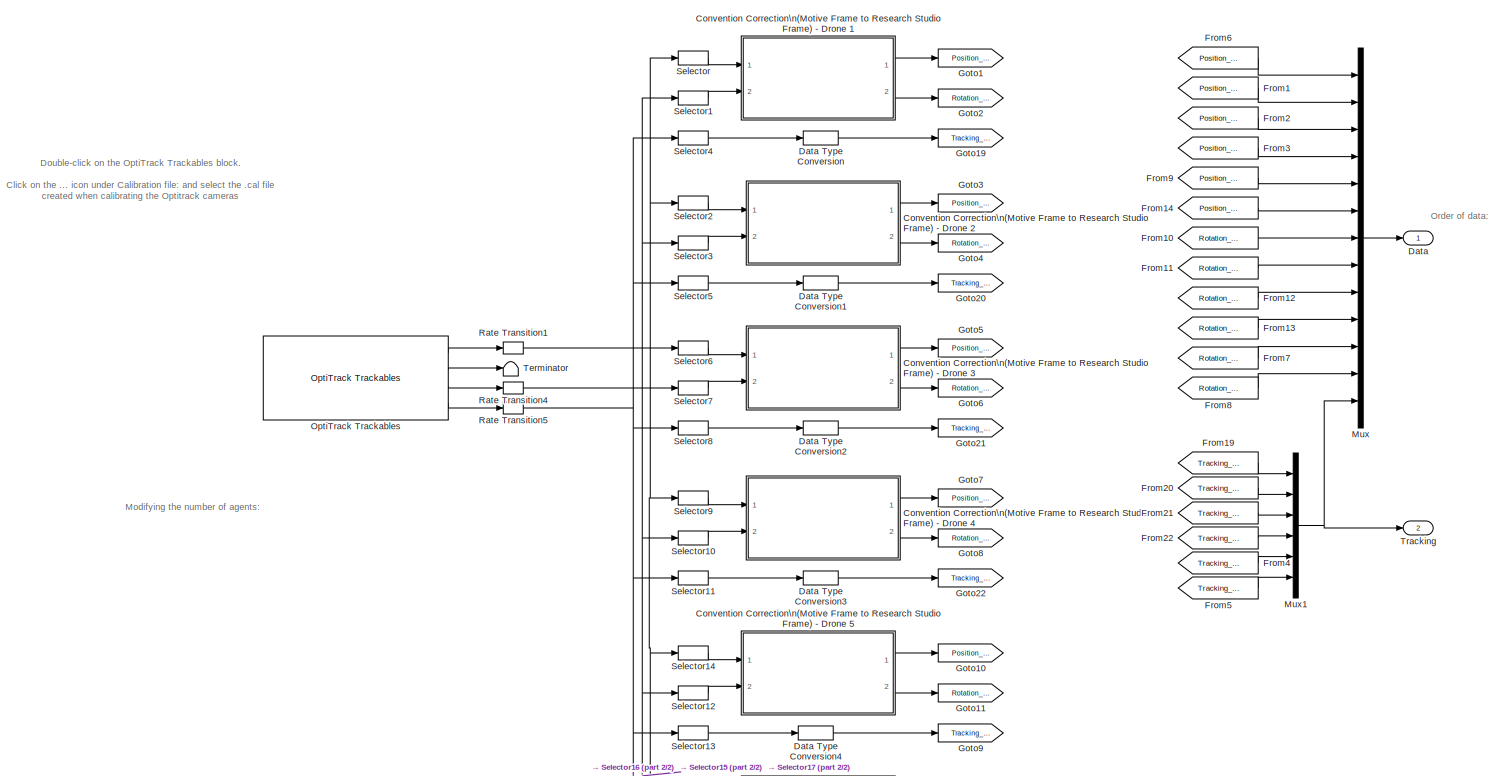
[diagram: MISSION SERVER QDRONE SWARM/Data Server\n(Localization)  - part 1/2, most of the canvas]
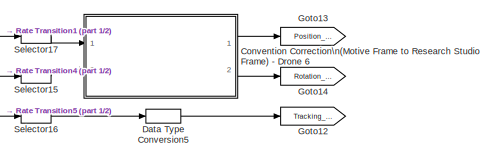
[diagram: MISSION SERVER QDRONE SWARM/Data Server\n(Localization)  - part 2/2, bottom center region]
BLOCK [SubSystem] MISSION SERVER QDRONE SWARM/Data Server\n(Localization) 
  Ports = [0, 2]
  RequestExecContextInheritance = off
  SID = 4155
BLOCK [SubSystem] MISSION SERVER QDRONE SWARM/Data Server\n(Localization) /Convention Correction\n(Motive Frame to Research Studio Frame) - Drone 1
  Ports = [2, 2]
  RequestExecContextInheritance = off
  SID = 4888
BLOCK [Math] MISSION SERVER QDRONE SWARM/Data Server\n(Localization) /Convention Correction\n(Motive Frame to Research Studio Frame) - Drone 1/Inverse of \nOrthonormal \nMatrix\nis its \nTranspose
  Operator = transpose
  Ports = [1, 1]
  SID = 4891
BLOCK [SubSystem] MISSION SERVER QDRONE SWARM/Data Server\n(Localization) /Convention Correction\n(Motive Frame to Research Studio Frame) - Drone 1/Prevent Gimbal Lock
  Ports = [1, 1]
  RequestExecContextInheritance = off
  SID = 4892
BLOCK [Inport] MISSION SERVER QDRONE SWARM/Data Server\n(Localization) /Convention Correction\n(Motive Frame to Research Studio Frame) - Drone 1/Prevent Gimbal Lock/Attitude (rad) [3]
  IconDisplay = Port number
  SID = 4893
BLOCK [Outport] MISSION SERVER QDRONE SWARM/Data Server\n(Localization) /Convention Correction\n(Motive Frame to Research Studio Frame) - Drone 1/Prevent Gimbal Lock/Attitude (rad) [3] 
  IconDisplay = Port number
  SID = 4898
BLOCK [Demux] MISSION SERVER QDRONE SWARM/Data Server\n(Localization) /Convention Correction\n(Motive Frame to Research Studio Frame) - Drone 1/Prevent Gimbal Lock/Demux
  DisplayOption = bar
  Outputs = 3
  Ports = [1, 3]
  SID = 4894
BLOCK [Reference] MISSION SERVER QDRONE SWARM/Data Server\n(Localization) /Convention Correction\n(Motive Frame to Research Studio Frame) - Drone 1/Prevent Gimbal Lock/Euler Angles from\nRotation Matrix\n(Relative ZYX)  REF=quarc_library/Math Operations/Matrices/Euler Angles from\nRotation Matrix
  MultiThreadCoSim = auto
  Ports = [1, 3]
  SID = 4895
  SourceBlock = quarc_library/Math Operations/Matrices/Euler Angles from\nRotation Matrix
  SourceProductName = QUARC Targets
  SourceType = Euler Angles from Rotation Matrix
  menu_order = Relative Z-Y-X
BLOCK [Reference] MISSION SERVER QDRONE SWARM/Data Server\n(Localization) /Convention Correction\n(Motive Frame to Research Studio Frame) - Drone 1/Prevent Gimbal Lock/Euler Angles to\nRotation Matrix\n(Relative YZX)  REF=quarc_library/Math Operations/Matrices/Euler Angles to\nRotation Matrix
  MultiThreadCoSim = auto
  Ports = [3, 1]
  SID = 4896
  SourceBlock = quarc_library/Math Operations/Matrices/Euler Angles to\nRotation Matrix
  SourceProductName = QUARC Targets
  SourceType = Euler Angles to Rotation Matrix
  menu_order = Relative Y-Z-X
BLOCK [Mux] MISSION SERVER QDRONE SWARM/Data Server\n(Localization) /Convention Correction\n(Motive Frame to Research Studio Frame) - Drone 1/Prevent Gimbal Lock/Mux
  DisplayOption = bar
  Inputs = 3
  Ports = [3, 1]
  SID = 4897
BLOCK [Product] MISSION SERVER QDRONE SWARM/Data Server\n(Localization) /Convention Correction\n(Motive Frame to Research Studio Frame) - Drone 1/Product
  InputSameDT = off
  Multiplication = Matrix(*)
  OutDataTypeStr = Inherit: Inherit via internal rule
  Ports = [2, 1]
  RndMeth = Floor
  SID = 4900
  SaturateOnIntegerOverflow = off
BLOCK [Product] MISSION SERVER QDRONE SWARM/Data Server\n(Localization) /Convention Correction\n(Motive Frame to Research Studio Frame) - Drone 1/Product1
  InputSameDT = off
  Multiplication = Matrix(*)
  OutDataTypeStr = Inherit: Inherit via internal rule
  Ports = [2, 1]
  RndMeth = Floor
  SID = 4901
  SaturateOnIntegerOverflow = off
BLOCK [Constant] MISSION SERVER QDRONE SWARM/Data Server\n(Localization) /Convention Correction\n(Motive Frame to Research Studio Frame) - Drone 1/Rotate Basis from \nRSF to MF
  SID = 4902
  Value = [0 -1 0;0 0 1;-1 0 0]
BLOCK [Inport] MISSION SERVER QDRONE SWARM/Data Server\n(Localization) /Convention Correction\n(Motive Frame to Research Studio Frame) - Drone 1/rot_MF (rad) [3]
  IconDisplay = Port number
  Port = 2
  SID = 4890
BLOCK [Outport] MISSION SERVER QDRONE SWARM/Data Server\n(Localization) /Convention Correction\n(Motive Frame to Research Studio Frame) - Drone 1/rot_RSF (rad) [3]
  IconDisplay = Port number
  Port = 2
  SID = 4904
BLOCK [Inport] MISSION SERVER QDRONE SWARM/Data Server\n(Localization) /Convention Correction\n(Motive Frame to Research Studio Frame) - Drone 1/xyz_MF (m) [3]
  IconDisplay = Port number
  SID = 4889
BLOCK [Outport] MISSION SERVER QDRONE SWARM/Data Server\n(Localization) /Convention Correction\n(Motive Frame to Research Studio Frame) - Drone 1/xyz_RSF (m) [3]
  IconDisplay = Port number
  SID = 4903
BLOCK [SubSystem] MISSION SERVER QDRONE SWARM/Data Server\n(Localization) /Convention Correction\n(Motive Frame to Research Studio Frame) - Drone 2
  Ports = [2, 2]
  RequestExecContextInheritance = off
  SID = 4914
BLOCK [Math] MISSION SERVER QDRONE SWARM/Data Server\n(Localization) /Convention Correction\n(Motive Frame to Research Studio Frame) - Drone 2/Inverse of \nOrthonormal \nMatrix\nis its \nTranspose
  Operator = transpose
  Ports = [1, 1]
  SID = 4917
BLOCK [SubSystem] MISSION SERVER QDRONE SWARM/Data Server\n(Localization) /Convention Correction\n(Motive Frame to Research Studio Frame) - Drone 2/Prevent Gimbal Lock
  Ports = [1, 1]
  RequestExecContextInheritance = off
  SID = 4918
BLOCK [Inport] MISSION SERVER QDRONE SWARM/Data Server\n(Localization) /Convention Correction\n(Motive Frame to Research Studio Frame) - Drone 2/Prevent Gimbal Lock/Attitude (rad) [3]
  IconDisplay = Port number
  SID = 4919
BLOCK [Outport] MISSION SERVER QDRONE SWARM/Data Server\n(Localization) /Convention Correction\n(Motive Frame to Research Studio Frame) - Drone 2/Prevent Gimbal Lock/Attitude (rad) [3] 
  IconDisplay = Port number
  SID = 4924
BLOCK [Demux] MISSION SERVER QDRONE SWARM/Data Server\n(Localization) /Convention Correction\n(Motive Frame to Research Studio Frame) - Drone 2/Prevent Gimbal Lock/Demux
  DisplayOption = bar
  Outputs = 3
  Ports = [1, 3]
  SID = 4920
BLOCK [Reference] MISSION SERVER QDRONE SWARM/Data Server\n(Localization) /Convention Correction\n(Motive Frame to Research Studio Frame) - Drone 2/Prevent Gimbal Lock/Euler Angles from\nRotation Matrix\n(Relative ZYX)  REF=quarc_library/Math Operations/Matrices/Euler Angles from\nRotation Matrix
  MultiThreadCoSim = auto
  Ports = [1, 3]
  SID = 4921
  SourceBlock = quarc_library/Math Operations/Matrices/Euler Angles from\nRotation Matrix
  SourceProductName = QUARC Targets
  SourceType = Euler Angles from Rotation Matrix
  menu_order = Relative Z-Y-X
BLOCK [Reference] MISSION SERVER QDRONE SWARM/Data Server\n(Localization) /Convention Correction\n(Motive Frame to Research Studio Frame) - Drone 2/Prevent Gimbal Lock/Euler Angles to\nRotation Matrix\n(Relative YZX)  REF=quarc_library/Math Operations/Matrices/Euler Angles to\nRotation Matrix
  MultiThreadCoSim = auto
  Ports = [3, 1]
  SID = 4922
  SourceBlock = quarc_library/Math Operations/Matrices/Euler Angles to\nRotation Matrix
  SourceProductName = QUARC Targets
  SourceType = Euler Angles to Rotation Matrix
  menu_order = Relative Y-Z-X
BLOCK [Mux] MISSION SERVER QDRONE SWARM/Data Server\n(Localization) /Convention Correction\n(Motive Frame to Research Studio Frame) - Drone 2/Prevent Gimbal Lock/Mux
  DisplayOption = bar
  Inputs = 3
  Ports = [3, 1]
  SID = 4923
BLOCK [Product] MISSION SERVER QDRONE SWARM/Data Server\n(Localization) /Convention Correction\n(Motive Frame to Research Studio Frame) - Drone 2/Product
  InputSameDT = off
  Multiplication = Matrix(*)
  OutDataTypeStr = Inherit: Inherit via internal rule
  Ports = [2, 1]
  RndMeth = Floor
  SID = 4926
  SaturateOnIntegerOverflow = off
BLOCK [Product] MISSION SERVER QDRONE SWARM/Data Server\n(Localization) /Convention Correction\n(Motive Frame to Research Studio Frame) - Drone 2/Product1
  InputSameDT = off
  Multiplication = Matrix(*)
  OutDataTypeStr = Inherit: Inherit via internal rule
  Ports = [2, 1]
  RndMeth = Floor
  SID = 4927
  SaturateOnIntegerOverflow = off
BLOCK [Constant] MISSION SERVER QDRONE SWARM/Data Server\n(Localization) /Convention Correction\n(Motive Frame to Research Studio Frame) - Drone 2/Rotate Basis from \nRSF to MF
  SID = 4928
  Value = [0 -1 0;0 0 1;-1 0 0]
BLOCK [Inport] MISSION SERVER QDRONE SWARM/Data Server\n(Localization) /Convention Correction\n(Motive Frame to Research Studio Frame) - Drone 2/rot_MF (rad) [3]
  IconDisplay = Port number
  Port = 2
  SID = 4916
BLOCK [Outport] MISSION SERVER QDRONE SWARM/Data Server\n(Localization) /Convention Correction\n(Motive Frame to Research Studio Frame) - Drone 2/rot_RSF (rad) [3]
  IconDisplay = Port number
  Port = 2
  SID = 4930
BLOCK [Inport] MISSION SERVER QDRONE SWARM/Data Server\n(Localization) /Convention Correction\n(Motive Frame to Research Studio Frame) - Drone 2/xyz_MF (m) [3]
  IconDisplay = Port number
  SID = 4915
BLOCK [Outport] MISSION SERVER QDRONE SWARM/Data Server\n(Localization) /Convention Correction\n(Motive Frame to Research Studio Frame) - Drone 2/xyz_RSF (m) [3]
  IconDisplay = Port number
  SID = 4929
BLOCK [SubSystem] MISSION SERVER QDRONE SWARM/Data Server\n(Localization) /Convention Correction\n(Motive Frame to Research Studio Frame) - Drone 3
  Ports = [2, 2]
  RequestExecContextInheritance = off
  SID = 4940
BLOCK [Math] MISSION SERVER QDRONE SWARM/Data Server\n(Localization) /Convention Correction\n(Motive Frame to Research Studio Frame) - Drone 3/Inverse of \nOrthonormal \nMatrix\nis its \nTranspose
  Operator = transpose
  Ports = [1, 1]
  SID = 4943
BLOCK [SubSystem] MISSION SERVER QDRONE SWARM/Data Server\n(Localization) /Convention Correction\n(Motive Frame to Research Studio Frame) - Drone 3/Prevent Gimbal Lock
  Ports = [1, 1]
  RequestExecContextInheritance = off
  SID = 4944
BLOCK [Inport] MISSION SERVER QDRONE SWARM/Data Server\n(Localization) /Convention Correction\n(Motive Frame to Research Studio Frame) - Drone 3/Prevent Gimbal Lock/Attitude (rad) [3]
  IconDisplay = Port number
  SID = 4945
BLOCK [Outport] MISSION SERVER QDRONE SWARM/Data Server\n(Localization) /Convention Correction\n(Motive Frame to Research Studio Frame) - Drone 3/Prevent Gimbal Lock/Attitude (rad) [3] 
  IconDisplay = Port number
  SID = 4950
BLOCK [Demux] MISSION SERVER QDRONE SWARM/Data Server\n(Localization) /Convention Correction\n(Motive Frame to Research Studio Frame) - Drone 3/Prevent Gimbal Lock/Demux
  DisplayOption = bar
  Outputs = 3
  Ports = [1, 3]
  SID = 4946
BLOCK [Reference] MISSION SERVER QDRONE SWARM/Data Server\n(Localization) /Convention Correction\n(Motive Frame to Research Studio Frame) - Drone 3/Prevent Gimbal Lock/Euler Angles from\nRotation Matrix\n(Relative ZYX)  REF=quarc_library/Math Operations/Matrices/Euler Angles from\nRotation Matrix
  MultiThreadCoSim = auto
  Ports = [1, 3]
  SID = 4947
  SourceBlock = quarc_library/Math Operations/Matrices/Euler Angles from\nRotation Matrix
  SourceProductName = QUARC Targets
  SourceType = Euler Angles from Rotation Matrix
  menu_order = Relative Z-Y-X
BLOCK [Reference] MISSION SERVER QDRONE SWARM/Data Server\n(Localization) /Convention Correction\n(Motive Frame to Research Studio Frame) - Drone 3/Prevent Gimbal Lock/Euler Angles to\nRotation Matrix\n(Relative YZX)  REF=quarc_library/Math Operations/Matrices/Euler Angles to\nRotation Matrix
  MultiThreadCoSim = auto
  Ports = [3, 1]
  SID = 4948
  SourceBlock = quarc_library/Math Operations/Matrices/Euler Angles to\nRotation Matrix
  SourceProductName = QUARC Targets
  SourceType = Euler Angles to Rotation Matrix
  menu_order = Relative Y-Z-X
BLOCK [Mux] MISSION SERVER QDRONE SWARM/Data Server\n(Localization) /Convention Correction\n(Motive Frame to Research Studio Frame) - Drone 3/Prevent Gimbal Lock/Mux
  DisplayOption = bar
  Inputs = 3
  Ports = [3, 1]
  SID = 4949
BLOCK [Product] MISSION SERVER QDRONE SWARM/Data Server\n(Localization) /Convention Correction\n(Motive Frame to Research Studio Frame) - Drone 3/Product
  InputSameDT = off
  Multiplication = Matrix(*)
  OutDataTypeStr = Inherit: Inherit via internal rule
  Ports = [2, 1]
  RndMeth = Floor
  SID = 4952
  SaturateOnIntegerOverflow = off
BLOCK [Product] MISSION SERVER QDRONE SWARM/Data Server\n(Localization) /Convention Correction\n(Motive Frame to Research Studio Frame) - Drone 3/Product1
  InputSameDT = off
  Multiplication = Matrix(*)
  OutDataTypeStr = Inherit: Inherit via internal rule
  Ports = [2, 1]
  RndMeth = Floor
  SID = 4953
  SaturateOnIntegerOverflow = off
BLOCK [Constant] MISSION SERVER QDRONE SWARM/Data Server\n(Localization) /Convention Correction\n(Motive Frame to Research Studio Frame) - Drone 3/Rotate Basis from \nRSF to MF
  SID = 4954
  Value = [0 -1 0;0 0 1;-1 0 0]
BLOCK [Inport] MISSION SERVER QDRONE SWARM/Data Server\n(Localization) /Convention Correction\n(Motive Frame to Research Studio Frame) - Drone 3/rot_MF (rad) [3]
  IconDisplay = Port number
  Port = 2
  SID = 4942
BLOCK [Outport] MISSION SERVER QDRONE SWARM/Data Server\n(Localization) /Convention Correction\n(Motive Frame to Research Studio Frame) - Drone 3/rot_RSF (rad) [3]
  IconDisplay = Port number
  Port = 2
  SID = 4956
BLOCK [Inport] MISSION SERVER QDRONE SWARM/Data Server\n(Localization) /Convention Correction\n(Motive Frame to Research Studio Frame) - Drone 3/xyz_MF (m) [3]
  IconDisplay = Port number
  SID = 4941
BLOCK [Outport] MISSION SERVER QDRONE SWARM/Data Server\n(Localization) /Convention Correction\n(Motive Frame to Research Studio Frame) - Drone 3/xyz_RSF (m) [3]
  IconDisplay = Port number
  SID = 4955
BLOCK [SubSystem] MISSION SERVER QDRONE SWARM/Data Server\n(Localization) /Convention Correction\n(Motive Frame to Research Studio Frame) - Drone 4
  Ports = [2, 2]
  RequestExecContextInheritance = off
  SID = 4966
BLOCK [Math] MISSION SERVER QDRONE SWARM/Data Server\n(Localization) /Convention Correction\n(Motive Frame to Research Studio Frame) - Drone 4/Inverse of \nOrthonormal \nMatrix\nis its \nTranspose
  Operator = transpose
  Ports = [1, 1]
  SID = 4969
BLOCK [SubSystem] MISSION SERVER QDRONE SWARM/Data Server\n(Localization) /Convention Correction\n(Motive Frame to Research Studio Frame) - Drone 4/Prevent Gimbal Lock
  Ports = [1, 1]
  RequestExecContextInheritance = off
  SID = 4970
BLOCK [Inport] MISSION SERVER QDRONE SWARM/Data Server\n(Localization) /Convention Correction\n(Motive Frame to Research Studio Frame) - Drone 4/Prevent Gimbal Lock/Attitude (rad) [3]
  IconDisplay = Port number
  SID = 4971
BLOCK [Outport] MISSION SERVER QDRONE SWARM/Data Server\n(Localization) /Convention Correction\n(Motive Frame to Research Studio Frame) - Drone 4/Prevent Gimbal Lock/Attitude (rad) [3] 
  IconDisplay = Port number
  SID = 4976
BLOCK [Demux] MISSION SERVER QDRONE SWARM/Data Server\n(Localization) /Convention Correction\n(Motive Frame to Research Studio Frame) - Drone 4/Prevent Gimbal Lock/Demux
  DisplayOption = bar
  Outputs = 3
  Ports = [1, 3]
  SID = 4972
BLOCK [Reference] MISSION SERVER QDRONE SWARM/Data Server\n(Localization) /Convention Correction\n(Motive Frame to Research Studio Frame) - Drone 4/Prevent Gimbal Lock/Euler Angles from\nRotation Matrix\n(Relative ZYX)  REF=quarc_library/Math Operations/Matrices/Euler Angles from\nRotation Matrix
  MultiThreadCoSim = auto
  Ports = [1, 3]
  SID = 4973
  SourceBlock = quarc_library/Math Operations/Matrices/Euler Angles from\nRotation Matrix
  SourceProductName = QUARC Targets
  SourceType = Euler Angles from Rotation Matrix
  menu_order = Relative Z-Y-X
BLOCK [Reference] MISSION SERVER QDRONE SWARM/Data Server\n(Localization) /Convention Correction\n(Motive Frame to Research Studio Frame) - Drone 4/Prevent Gimbal Lock/Euler Angles to\nRotation Matrix\n(Relative YZX)  REF=quarc_library/Math Operations/Matrices/Euler Angles to\nRotation Matrix
  MultiThreadCoSim = auto
  Ports = [3, 1]
  SID = 4974
  SourceBlock = quarc_library/Math Operations/Matrices/Euler Angles to\nRotation Matrix
  SourceProductName = QUARC Targets
  SourceType = Euler Angles to Rotation Matrix
  menu_order = Relative Y-Z-X
BLOCK [Mux] MISSION SERVER QDRONE SWARM/Data Server\n(Localization) /Convention Correction\n(Motive Frame to Research Studio Frame) - Drone 4/Prevent Gimbal Lock/Mux
  DisplayOption = bar
  Inputs = 3
  Ports = [3, 1]
  SID = 4975
BLOCK [Product] MISSION SERVER QDRONE SWARM/Data Server\n(Localization) /Convention Correction\n(Motive Frame to Research Studio Frame) - Drone 4/Product
  InputSameDT = off
  Multiplication = Matrix(*)
  OutDataTypeStr = Inherit: Inherit via internal rule
  Ports = [2, 1]
  RndMeth = Floor
  SID = 4978
  SaturateOnIntegerOverflow = off
BLOCK [Product] MISSION SERVER QDRONE SWARM/Data Server\n(Localization) /Convention Correction\n(Motive Frame to Research Studio Frame) - Drone 4/Product1
  InputSameDT = off
  Multiplication = Matrix(*)
  OutDataTypeStr = Inherit: Inherit via internal rule
  Ports = [2, 1]
  RndMeth = Floor
  SID = 4979
  SaturateOnIntegerOverflow = off
BLOCK [Constant] MISSION SERVER QDRONE SWARM/Data Server\n(Localization) /Convention Correction\n(Motive Frame to Research Studio Frame) - Drone 4/Rotate Basis from \nRSF to MF
  SID = 4980
  Value = [0 -1 0;0 0 1;-1 0 0]
BLOCK [Inport] MISSION SERVER QDRONE SWARM/Data Server\n(Localization) /Convention Correction\n(Motive Frame to Research Studio Frame) - Drone 4/rot_MF (rad) [3]
  IconDisplay = Port number
  Port = 2
  SID = 4968
BLOCK [Outport] MISSION SERVER QDRONE SWARM/Data Server\n(Localization) /Convention Correction\n(Motive Frame to Research Studio Frame) - Drone 4/rot_RSF (rad) [3]
  IconDisplay = Port number
  Port = 2
  SID = 4982
BLOCK [Inport] MISSION SERVER QDRONE SWARM/Data Server\n(Localization) /Convention Correction\n(Motive Frame to Research Studio Frame) - Drone 4/xyz_MF (m) [3]
  IconDisplay = Port number
  SID = 4967
BLOCK [Outport] MISSION SERVER QDRONE SWARM/Data Server\n(Localization) /Convention Correction\n(Motive Frame to Research Studio Frame) - Drone 4/xyz_RSF (m) [3]
  IconDisplay = Port number
  SID = 4981
BLOCK [SubSystem] MISSION SERVER QDRONE SWARM/Data Server\n(Localization) /Convention Correction\n(Motive Frame to Research Studio Frame) - Drone 5
  Ports = [2, 2]
  RequestExecContextInheritance = off
  SID = 5039
BLOCK [Math] MISSION SERVER QDRONE SWARM/Data Server\n(Localization) /Convention Correction\n(Motive Frame to Research Studio Frame) - Drone 5/Inverse of \nOrthonormal \nMatrix\nis its \nTranspose
  Operator = transpose
  Ports = [1, 1]
  SID = 5042
BLOCK [SubSystem] MISSION SERVER QDRONE SWARM/Data Server\n(Localization) /Convention Correction\n(Motive Frame to Research Studio Frame) - Drone 5/Prevent Gimbal Lock
  Ports = [1, 1]
  RequestExecContextInheritance = off
  SID = 5043
BLOCK [Inport] MISSION SERVER QDRONE SWARM/Data Server\n(Localization) /Convention Correction\n(Motive Frame to Research Studio Frame) - Drone 5/Prevent Gimbal Lock/Attitude (rad) [3]
  IconDisplay = Port number
  SID = 5044
BLOCK [Outport] MISSION SERVER QDRONE SWARM/Data Server\n(Localization) /Convention Correction\n(Motive Frame to Research Studio Frame) - Drone 5/Prevent Gimbal Lock/Attitude (rad) [3] 
  IconDisplay = Port number
  SID = 5049
BLOCK [Demux] MISSION SERVER QDRONE SWARM/Data Server\n(Localization) /Convention Correction\n(Motive Frame to Research Studio Frame) - Drone 5/Prevent Gimbal Lock/Demux
  DisplayOption = bar
  Outputs = 3
  Ports = [1, 3]
  SID = 5045
BLOCK [Reference] MISSION SERVER QDRONE SWARM/Data Server\n(Localization) /Convention Correction\n(Motive Frame to Research Studio Frame) - Drone 5/Prevent Gimbal Lock/Euler Angles from\nRotation Matrix\n(Relative ZYX)  REF=quarc_library/Math Operations/Matrices/Euler Angles from\nRotation Matrix
  MultiThreadCoSim = auto
  Ports = [1, 3]
  SID = 5046
  SourceBlock = quarc_library/Math Operations/Matrices/Euler Angles from\nRotation Matrix
  SourceProductName = QUARC Targets
  SourceType = Euler Angles from Rotation Matrix
  menu_order = Relative Z-Y-X
BLOCK [Reference] MISSION SERVER QDRONE SWARM/Data Server\n(Localization) /Convention Correction\n(Motive Frame to Research Studio Frame) - Drone 5/Prevent Gimbal Lock/Euler Angles to\nRotation Matrix\n(Relative YZX)  REF=quarc_library/Math Operations/Matrices/Euler Angles to\nRotation Matrix
  MultiThreadCoSim = auto
  Ports = [3, 1]
  SID = 5047
  SourceBlock = quarc_library/Math Operations/Matrices/Euler Angles to\nRotation Matrix
  SourceProductName = QUARC Targets
  SourceType = Euler Angles to Rotation Matrix
  menu_order = Relative Y-Z-X
BLOCK [Mux] MISSION SERVER QDRONE SWARM/Data Server\n(Localization) /Convention Correction\n(Motive Frame to Research Studio Frame) - Drone 5/Prevent Gimbal Lock/Mux
  DisplayOption = bar
  Inputs = 3
  Ports = [3, 1]
  SID = 5048
BLOCK [Product] MISSION SERVER QDRONE SWARM/Data Server\n(Localization) /Convention Correction\n(Motive Frame to Research Studio Frame) - Drone 5/Product
  InputSameDT = off
  Multiplication = Matrix(*)
  OutDataTypeStr = Inherit: Inherit via internal rule
  Ports = [2, 1]
  RndMeth = Floor
  SID = 5051
  SaturateOnIntegerOverflow = off
BLOCK [Product] MISSION SERVER QDRONE SWARM/Data Server\n(Localization) /Convention Correction\n(Motive Frame to Research Studio Frame) - Drone 5/Product1
  InputSameDT = off
  Multiplication = Matrix(*)
  OutDataTypeStr = Inherit: Inherit via internal rule
  Ports = [2, 1]
  RndMeth = Floor
  SID = 5052
  SaturateOnIntegerOverflow = off
BLOCK [Constant] MISSION SERVER QDRONE SWARM/Data Server\n(Localization) /Convention Correction\n(Motive Frame to Research Studio Frame) - Drone 5/Rotate Basis from \nRSF to MF
  SID = 5053
  Value = [0 -1 0;0 0 1;-1 0 0]
BLOCK [Inport] MISSION SERVER QDRONE SWARM/Data Server\n(Localization) /Convention Correction\n(Motive Frame to Research Studio Frame) - Drone 5/rot_MF (rad) [3]
  IconDisplay = Port number
  Port = 2
  SID = 5041
BLOCK [Outport] MISSION SERVER QDRONE SWARM/Data Server\n(Localization) /Convention Correction\n(Motive Frame to Research Studio Frame) - Drone 5/rot_RSF (rad) [3]
  IconDisplay = Port number
  Port = 2
  SID = 5055
BLOCK [Inport] MISSION SERVER QDRONE SWARM/Data Server\n(Localization) /Convention Correction\n(Motive Frame to Research Studio Frame) - Drone 5/xyz_MF (m) [3]
  IconDisplay = Port number
  SID = 5040
BLOCK [Outport] MISSION SERVER QDRONE SWARM/Data Server\n(Localization) /Convention Correction\n(Motive Frame to Research Studio Frame) - Drone 5/xyz_RSF (m) [3]
  IconDisplay = Port number
  SID = 5054
BLOCK [SubSystem] MISSION SERVER QDRONE SWARM/Data Server\n(Localization) /Convention Correction\n(Motive Frame to Research Studio Frame) - Drone 6
  Ports = [2, 2]
  RequestExecContextInheritance = off
  SID = 5072
BLOCK [Math] MISSION SERVER QDRONE SWARM/Data Server\n(Localization) /Convention Correction\n(Motive Frame to Research Studio Frame) - Drone 6/Inverse of \nOrthonormal \nMatrix\nis its \nTranspose
  Operator = transpose
  Ports = [1, 1]
  SID = 5075
BLOCK [SubSystem] MISSION SERVER QDRONE SWARM/Data Server\n(Localization) /Convention Correction\n(Motive Frame to Research Studio Frame) - Drone 6/Prevent Gimbal Lock
  Ports = [1, 1]
  RequestExecContextInheritance = off
  SID = 5076
BLOCK [Inport] MISSION SERVER QDRONE SWARM/Data Server\n(Localization) /Convention Correction\n(Motive Frame to Research Studio Frame) - Drone 6/Prevent Gimbal Lock/Attitude (rad) [3]
  IconDisplay = Port number
  SID = 5077
BLOCK [Outport] MISSION SERVER QDRONE SWARM/Data Server\n(Localization) /Convention Correction\n(Motive Frame to Research Studio Frame) - Drone 6/Prevent Gimbal Lock/Attitude (rad) [3] 
  IconDisplay = Port number
  SID = 5082
BLOCK [Demux] MISSION SERVER QDRONE SWARM/Data Server\n(Localization) /Convention Correction\n(Motive Frame to Research Studio Frame) - Drone 6/Prevent Gimbal Lock/Demux
  DisplayOption = bar
  Outputs = 3
  Ports = [1, 3]
  SID = 5078
BLOCK [Reference] MISSION SERVER QDRONE SWARM/Data Server\n(Localization) /Convention Correction\n(Motive Frame to Research Studio Frame) - Drone 6/Prevent Gimbal Lock/Euler Angles from\nRotation Matrix\n(Relative ZYX)  REF=quarc_library/Math Operations/Matrices/Euler Angles from\nRotation Matrix
  MultiThreadCoSim = auto
  Ports = [1, 3]
  SID = 5079
  SourceBlock = quarc_library/Math Operations/Matrices/Euler Angles from\nRotation Matrix
  SourceProductName = QUARC Targets
  SourceType = Euler Angles from Rotation Matrix
  menu_order = Relative Z-Y-X
BLOCK [Reference] MISSION SERVER QDRONE SWARM/Data Server\n(Localization) /Convention Correction\n(Motive Frame to Research Studio Frame) - Drone 6/Prevent Gimbal Lock/Euler Angles to\nRotation Matrix\n(Relative YZX)  REF=quarc_library/Math Operations/Matrices/Euler Angles to\nRotation Matrix
  MultiThreadCoSim = auto
  Ports = [3, 1]
  SID = 5080
  SourceBlock = quarc_library/Math Operations/Matrices/Euler Angles to\nRotation Matrix
  SourceProductName = QUARC Targets
  SourceType = Euler Angles to Rotation Matrix
  menu_order = Relative Y-Z-X
BLOCK [Mux] MISSION SERVER QDRONE SWARM/Data Server\n(Localization) /Convention Correction\n(Motive Frame to Research Studio Frame) - Drone 6/Prevent Gimbal Lock/Mux
  DisplayOption = bar
  Inputs = 3
  Ports = [3, 1]
  SID = 5081
BLOCK [Product] MISSION SERVER QDRONE SWARM/Data Server\n(Localization) /Convention Correction\n(Motive Frame to Research Studio Frame) - Drone 6/Product
  InputSameDT = off
  Multiplication = Matrix(*)
  OutDataTypeStr = Inherit: Inherit via internal rule
  Ports = [2, 1]
  RndMeth = Floor
  SID = 5084
  SaturateOnIntegerOverflow = off
BLOCK [Product] MISSION SERVER QDRONE SWARM/Data Server\n(Localization) /Convention Correction\n(Motive Frame to Research Studio Frame) - Drone 6/Product1
  InputSameDT = off
  Multiplication = Matrix(*)
  OutDataTypeStr = Inherit: Inherit via internal rule
  Ports = [2, 1]
  RndMeth = Floor
  SID = 5085
  SaturateOnIntegerOverflow = off
BLOCK [Constant] MISSION SERVER QDRONE SWARM/Data Server\n(Localization) /Convention Correction\n(Motive Frame to Research Studio Frame) - Drone 6/Rotate Basis from \nRSF to MF
  SID = 5086
  Value = [0 -1 0;0 0 1;-1 0 0]
BLOCK [Inport] MISSION SERVER QDRONE SWARM/Data Server\n(Localization) /Convention Correction\n(Motive Frame to Research Studio Frame) - Drone 6/rot_MF (rad) [3]
  IconDisplay = Port number
  Port = 2
  SID = 5074
BLOCK [Outport] MISSION SERVER QDRONE SWARM/Data Server\n(Localization) /Convention Correction\n(Motive Frame to Research Studio Frame) - Drone 6/rot_RSF (rad) [3]
  IconDisplay = Port number
  Port = 2
  SID = 5088
BLOCK [Inport] MISSION SERVER QDRONE SWARM/Data Server\n(Localization) /Convention Correction\n(Motive Frame to Research Studio Frame) - Drone 6/xyz_MF (m) [3]
  IconDisplay = Port number
  SID = 5073
BLOCK [Outport] MISSION SERVER QDRONE SWARM/Data Server\n(Localization) /Convention Correction\n(Motive Frame to Research Studio Frame) - Drone 6/xyz_RSF (m) [3]
  IconDisplay = Port number
  SID = 5087
BLOCK [Outport] MISSION SERVER QDRONE SWARM/Data Server\n(Localization) /Data
  IconDisplay = Port number
  SID = 4189
BLOCK [DataTypeConversion] MISSION SERVER QDRONE SWARM/Data Server\n(Localization) /Data Type Conversion
  RndMeth = Floor
  SID = 4992
  SaturateOnIntegerOverflow = off
BLOCK [DataTypeConversion] MISSION SERVER QDRONE SWARM/Data Server\n(Localization) /Data Type Conversion1
  RndMeth = Floor
  SID = 4993
  SaturateOnIntegerOverflow = off
BLOCK [DataTypeConversion] MISSION SERVER QDRONE SWARM/Data Server\n(Localization) /Data Type Conversion2
  RndMeth = Floor
  SID = 4994
  SaturateOnIntegerOverflow = off
BLOCK [DataTypeConversion] MISSION SERVER QDRONE SWARM/Data Server\n(Localization) /Data Type Conversion3
  RndMeth = Floor
  SID = 4995
  SaturateOnIntegerOverflow = off
BLOCK [DataTypeConversion] MISSION SERVER QDRONE SWARM/Data Server\n(Localization) /Data Type Conversion4
  RndMeth = Floor
  SID = 5065
  SaturateOnIntegerOverflow = off
BLOCK [DataTypeConversion] MISSION SERVER QDRONE SWARM/Data Server\n(Localization) /Data Type Conversion5
  RndMeth = Floor
  SID = 5098
  SaturateOnIntegerOverflow = off
BLOCK [From] MISSION SERVER QDRONE SWARM/Data Server\n(Localization) /From1
  GotoTag = Position_V2
  SID = 4996
BLOCK [From] MISSION SERVER QDRONE SWARM/Data Server\n(Localization) /From10
  GotoTag = Rotation_V1
  SID = 4997
BLOCK [From] MISSION SERVER QDRONE SWARM/Data Server\n(Localization) /From11
  GotoTag = Rotation_V2
  SID = 4998
BLOCK [From] MISSION SERVER QDRONE SWARM/Data Server\n(Localization) /From12
  GotoTag = Rotation_V3
  SID = 4999
BLOCK [From] MISSION SERVER QDRONE SWARM/Data Server\n(Localization) /From13
  GotoTag = Rotation_V4
  SID = 5000
BLOCK [From] MISSION SERVER QDRONE SWARM/Data Server\n(Localization) /From14
  GotoTag = Position_V6
  SID = 5110
BLOCK [From] MISSION SERVER QDRONE SWARM/Data Server\n(Localization) /From19
  GotoTag = Tracking_V1
  SID = 5001
BLOCK [From] MISSION SERVER QDRONE SWARM/Data Server\n(Localization) /From2
  GotoTag = Position_V3
  SID = 5002
BLOCK [From] MISSION SERVER QDRONE SWARM/Data Server\n(Localization) /From20
  GotoTag = Tracking_V2
  SID = 5003
BLOCK [From] MISSION SERVER QDRONE SWARM/Data Server\n(Localization) /From21
  GotoTag = Tracking_V3
  SID = 5004
BLOCK [From] MISSION SERVER QDRONE SWARM/Data Server\n(Localization) /From22
  GotoTag = Tracking_V4
  SID = 5005
BLOCK [From] MISSION SERVER QDRONE SWARM/Data Server\n(Localization) /From3
  GotoTag = Position_V4
  SID = 5006
BLOCK [From] MISSION SERVER QDRONE SWARM/Data Server\n(Localization) /From4
  GotoTag = Tracking_V5
  SID = 5105
BLOCK [From] MISSION SERVER QDRONE SWARM/Data Server\n(Localization) /From5
  GotoTag = Tracking_V6
  SID = 5106
BLOCK [From] MISSION SERVER QDRONE SWARM/Data Server\n(Localization) /From6
  GotoTag = Position_V1
  SID = 5007
BLOCK [From] MISSION SERVER QDRONE SWARM/Data Server\n(Localization) /From7
  GotoTag = Rotation_V5
  SID = 5107
BLOCK [From] MISSION SERVER QDRONE SWARM/Data Server\n(Localization) /From8
  GotoTag = Rotation_V6
  SID = 5108
BLOCK [From] MISSION SERVER QDRONE SWARM/Data Server\n(Localization) /From9
  GotoTag = Position_V5
  SID = 5109
BLOCK [Goto] MISSION SERVER QDRONE SWARM/Data Server\n(Localization) /Goto1
  GotoTag = Position_V1
  SID = 5008
BLOCK [Goto] MISSION SERVER QDRONE SWARM/Data Server\n(Localization) /Goto10
  GotoTag = Position_V5
  SID = 5067
BLOCK [Goto] MISSION SERVER QDRONE SWARM/Data Server\n(Localization) /Goto11
  GotoTag = Rotation_V5
  SID = 5068
BLOCK [Goto] MISSION SERVER QDRONE SWARM/Data Server\n(Localization) /Goto12
  GotoTag = Tracking_V6
  SID = 5099
BLOCK [Goto] MISSION SERVER QDRONE SWARM/Data Server\n(Localization) /Goto13
  GotoTag = Position_V6
  SID = 5100
BLOCK [Goto] MISSION SERVER QDRONE SWARM/Data Server\n(Localization) /Goto14
  GotoTag = Rotation_V6
  SID = 5101
BLOCK [Goto] MISSION SERVER QDRONE SWARM/Data Server\n(Localization) /Goto19
  GotoTag = Tracking_V1
  SID = 5009
BLOCK [Goto] MISSION SERVER QDRONE SWARM/Data Server\n(Localization) /Goto2
  GotoTag = Rotation_V1
  SID = 5010
BLOCK [Goto] MISSION SERVER QDRONE SWARM/Data Server\n(Localization) /Goto20
  GotoTag = Tracking_V2
  SID = 5011
BLOCK [Goto] MISSION SERVER QDRONE SWARM/Data Server\n(Localization) /Goto21
  GotoTag = Tracking_V3
  SID = 5012
BLOCK [Goto] MISSION SERVER QDRONE SWARM/Data Server\n(Localization) /Goto22
  GotoTag = Tracking_V4
  SID = 5013
BLOCK [Goto] MISSION SERVER QDRONE SWARM/Data Server\n(Localization) /Goto3
  GotoTag = Position_V2
  SID = 5014
BLOCK [Goto] MISSION SERVER QDRONE SWARM/Data Server\n(Localization) /Goto4
  GotoTag = Rotation_V2
  SID = 5015
BLOCK [Goto] MISSION SERVER QDRONE SWARM/Data Server\n(Localization) /Goto5
  GotoTag = Position_V3
  SID = 5016
BLOCK [Goto] MISSION SERVER QDRONE SWARM/Data Server\n(Localization) /Goto6
  GotoTag = Rotation_V3
  SID = 5017
BLOCK [Goto] MISSION SERVER QDRONE SWARM/Data Server\n(Localization) /Goto7
  GotoTag = Position_V4
  SID = 5018
BLOCK [Goto] MISSION SERVER QDRONE SWARM/Data Server\n(Localization) /Goto8
  GotoTag = Rotation_V4
  SID = 5019
BLOCK [Goto] MISSION SERVER QDRONE SWARM/Data Server\n(Localization) /Goto9
  GotoTag = Tracking_V5
  SID = 5066
BLOCK [Mux] MISSION SERVER QDRONE SWARM/Data Server\n(Localization) /Mux
  DisplayOption = bar
  Inputs = 13
  Ports = [13, 1]
  SID = 5020
BLOCK [Mux] MISSION SERVER QDRONE SWARM/Data Server\n(Localization) /Mux1
  DisplayOption = bar
  Inputs = 6
  Ports = [6, 1]
  SID = 5021
BLOCK [Reference] MISSION SERVER QDRONE SWARM/Data Server\n(Localization) /OptiTrack Trackables  REF=quarc_library/Devices/Third-Party/NaturalPoint/OptiTrack/OptiTrack Trackables
  MultiThreadCoSim = auto
  Ports = [0, 4]
  SID = 4184
  SourceBlock = quarc_library/Devices/Third-Party/NaturalPoint/OptiTrack/OptiTrack Trackables
  SourceProductName = QUARC Targets
  SourceType = OptiTrack Rigid Body Position
  active = off
  calibration_file = <userpath><path> mm) 2018-08-25 12.58pm.cal
  rigid_body_file = <userpath><path>
  rigid_body_ids = [1 2 3 4 5 6]
  sample_time = qc_get_step_size*10
BLOCK [RateTransition] MISSION SERVER QDRONE SWARM/Data Server\n(Localization) /Rate Transition1
  SID = 5022
BLOCK [RateTransition] MISSION SERVER QDRONE SWARM/Data Server\n(Localization) /Rate Transition4
  SID = 5023
BLOCK [RateTransition] MISSION SERVER QDRONE SWARM/Data Server\n(Localization) /Rate Transition5
  SID = 5024
BLOCK [Selector] MISSION SERVER QDRONE SWARM/Data Server\n(Localization) /Selector
  IndexOptions = Index vector (dialog)
  Indices = [1:3]
  InputPortWidth = 18
  OutputSizes = 1
  Ports = [1, 1]
  SID = 5025
BLOCK [Selector] MISSION SERVER QDRONE SWARM/Data Server\n(Localization) /Selector1
  IndexOptions = Index vector (dialog)
  Indices = [1:3]
  InputPortWidth = 18
  OutputSizes = 1
  Ports = [1, 1]
  SID = 5111
BLOCK [Selector] MISSION SERVER QDRONE SWARM/Data Server\n(Localization) /Selector10
  IndexOptions = Index vector (dialog)
  Indices = [10:12]
  InputPortWidth = 18
  OutputSizes = 1
  Ports = [1, 1]
  SID = 5027
BLOCK [Selector] MISSION SERVER QDRONE SWARM/Data Server\n(Localization) /Selector11
  IndexOptions = Index vector (dialog)
  Indices = [4]
  InputPortWidth = 6
  OutputSizes = 1
  Ports = [1, 1]
  SID = 5028
BLOCK [Selector] MISSION SERVER QDRONE SWARM/Data Server\n(Localization) /Selector12
  IndexOptions = Index vector (dialog)
  Indices = [13:15]
  InputPortWidth = 18
  OutputSizes = 1
  Ports = [1, 1]
  SID = 5069
BLOCK [Selector] MISSION SERVER QDRONE SWARM/Data Server\n(Localization) /Selector13
  IndexOptions = Index vector (dialog)
  Indices = [5]
  InputPortWidth = 6
  OutputSizes = 1
  Ports = [1, 1]
  SID = 5070
BLOCK [Selector] MISSION SERVER QDRONE SWARM/Data Server\n(Localization) /Selector14
  IndexOptions = Index vector (dialog)
  Indices = [13:15]
  InputPortWidth = 18
  OutputSizes = 1
  Ports = [1, 1]
  SID = 5071
BLOCK [Selector] MISSION SERVER QDRONE SWARM/Data Server\n(Localization) /Selector15
  IndexOptions = Index vector (dialog)
  Indices = [16:18]
  InputPortWidth = 18
  OutputSizes = 1
  Ports = [1, 1]
  SID = 5113
BLOCK [Selector] MISSION SERVER QDRONE SWARM/Data Server\n(Localization) /Selector16
  IndexOptions = Index vector (dialog)
  Indices = [6]
  InputPortWidth = 6
  OutputSizes = 1
  Ports = [1, 1]
  SID = 5103
BLOCK [Selector] MISSION SERVER QDRONE SWARM/Data Server\n(Localization) /Selector17
  IndexOptions = Index vector (dialog)
  Indices = [16:18]
  InputPortWidth = 18
  OutputSizes = 1
  Ports = [1, 1]
  SID = 5104
BLOCK [Selector] MISSION SERVER QDRONE SWARM/Data Server\n(Localization) /Selector2
  IndexOptions = Index vector (dialog)
  Indices = [4:6]
  InputPortWidth = 18
  OutputSizes = 1
  Ports = [1, 1]
  SID = 5029
BLOCK [Selector] MISSION SERVER QDRONE SWARM/Data Server\n(Localization) /Selector3
  IndexOptions = Index vector (dialog)
  Indices = [4:6]
  InputPortWidth = 18
  OutputSizes = 1
  Ports = [1, 1]
  SID = 5112
BLOCK [Selector] MISSION SERVER QDRONE SWARM/Data Server\n(Localization) /Selector4
  IndexOptions = Index vector (dialog)
  Indices = [1]
  InputPortWidth = 6
  OutputSizes = 1
  Ports = [1, 1]
  SID = 5031
BLOCK [Selector] MISSION SERVER QDRONE SWARM/Data Server\n(Localization) /Selector5
  IndexOptions = Index vector (dialog)
  Indices = [2]
  InputPortWidth = 6
  OutputSizes = 1
  Ports = [1, 1]
  SID = 5032
BLOCK [Selector] MISSION SERVER QDRONE SWARM/Data Server\n(Localization) /Selector6
  IndexOptions = Index vector (dialog)
  Indices = [7:9]
  InputPortWidth = 18
  OutputSizes = 1
  Ports = [1, 1]
  SID = 5033
BLOCK [Selector] MISSION SERVER QDRONE SWARM/Data Server\n(Localization) /Selector7
  IndexOptions = Index vector (dialog)
  Indices = [7:9]
  InputPortWidth = 18
  OutputSizes = 1
  Ports = [1, 1]
  SID = 5034
BLOCK [Selector] MISSION SERVER QDRONE SWARM/Data Server\n(Localization) /Selector8
  IndexOptions = Index vector (dialog)
  Indices = [3]
  InputPortWidth = 6
  OutputSizes = 1
  Ports = [1, 1]
  SID = 5035
BLOCK [Selector] MISSION SERVER QDRONE SWARM/Data Server\n(Localization) /Selector9
  IndexOptions = Index vector (dialog)
  Indices = [10:12]
  InputPortWidth = 18
  OutputSizes = 1
  Ports = [1, 1]
  SID = 5036
BLOCK [Terminator] MISSION SERVER QDRONE SWARM/Data Server\n(Localization) /Terminator
  SID = 5037
BLOCK [Outport] MISSION SERVER QDRONE SWARM/Data Server\n(Localization) /Tracking
  IconDisplay = Port number
  Port = 2
  SID = 4190
BLOCK [Demux] MISSION SERVER QDRONE SWARM/Demux
  DisplayOption = bar
  Outputs = [4 4 4 4 4 4]
  Ports = [1, 6]
  SID = 4192
BLOCK [Display] MISSION SERVER QDRONE SWARM/Display
  Decimation = 1
  Ports = [1]
  SID = 4193
BLOCK [Display] MISSION SERVER QDRONE SWARM/Display1
  Decimation = 1
  Ports = [1]
  SID = 4194
BLOCK [Display] MISSION SERVER QDRONE SWARM/Display2
  Decimation = 1
  Ports = [1]
  SID = 4195
BLOCK [Display] MISSION SERVER QDRONE SWARM/Display4
  Decimation = 1
  Ports = [1]
  SID = 4196
BLOCK [SubSystem] MISSION SERVER QDRONE SWARM/Extract Vehicle Data 1
  Ports = [2, 1]
  RequestExecContextInheritance = off
  SID = 4197
BLOCK [DataTypeConversion] MISSION SERVER QDRONE SWARM/Extract Vehicle Data 1/Data Type Conversion10
  RndMeth = Floor
  SID = 4200
  SaturateOnIntegerOverflow = off
BLOCK [DataTypeConversion] MISSION SERVER QDRONE SWARM/Extract Vehicle Data 1/Data Type Conversion11
  RndMeth = Floor
  SID = 4201
  SaturateOnIntegerOverflow = off
BLOCK [DataTypeConversion] MISSION SERVER QDRONE SWARM/Extract Vehicle Data 1/Data Type Conversion9
  RndMeth = Floor
  SID = 4202
  SaturateOnIntegerOverflow = off
BLOCK [SubSystem] MISSION SERVER QDRONE SWARM/Extract Vehicle Data 1/Extract Object Data
  ErrorFcn = Stateflow.Translate.translate
  PermitHierarchicalResolution = ExplicitOnly
  Ports = [2, 3]
  RequestExecContextInheritance = off
  SFBlockType = MATLAB Function
  SID = 4203
  TreatAsAtomicUnit = on
BLOCK [Demux] MISSION SERVER QDRONE SWARM/Extract Vehicle Data 1/Extract Object Data/ Demux 
  DisplayOption = bar
  Outputs = 1
  Ports = [1, 1]
  SID = 4203::47
BLOCK [S-Function] MISSION SERVER QDRONE SWARM/Extract Vehicle Data 1/Extract Object Data/ SFunction 
  EnableBusSupport = off
  FunctionName = sf_sfun
  PortCounts = [2 4]
  Ports = [2, 4]
  SFcnIsStateOwnerBlock = off
  SFunctionDeploymentMode = off
  SID = 4203::46
  Tag = Stateflow S-Function Mission_Server_Swarm_FrSky 18
BLOCK [Terminator] MISSION SERVER QDRONE SWARM/Extract Vehicle Data 1/Extract Object Data/ Terminator 
  SID = 4203::48
BLOCK [Inport] MISSION SERVER QDRONE SWARM/Extract Vehicle Data 1/Extract Object Data/data
  IconDisplay = Port number
  SID = 4203::1
BLOCK [Inport] MISSION SERVER QDRONE SWARM/Extract Vehicle Data 1/Extract Object Data/index
  IconDisplay = Port number
  Port = 2
  SID = 4203::19
BLOCK [Outport] MISSION SERVER QDRONE SWARM/Extract Vehicle Data 1/Extract Object Data/orientation
  IconDisplay = Port number
  Port = 2
  SID = 4203::21
BLOCK [Outport] MISSION SERVER QDRONE SWARM/Extract Vehicle Data 1/Extract Object Data/position
  IconDisplay = Port number
  SID = 4203::5
BLOCK [Outport] MISSION SERVER QDRONE SWARM/Extract Vehicle Data 1/Extract Object Data/tracking
  IconDisplay = Port number
  Port = 3
  SID = 4203::20
BLOCK [Mux] MISSION SERVER QDRONE SWARM/Extract Vehicle Data 1/Mux1
  DisplayOption = bar
  Inputs = 3
  Ports = [3, 1]
  SID = 4204
BLOCK [Inport] MISSION SERVER QDRONE SWARM/Extract Vehicle Data 1/Optitrack Data
  IconDisplay = Port number
  SID = 4198
BLOCK [Reshape] MISSION SERVER QDRONE SWARM/Extract Vehicle Data 1/Reshape
  Ports = [1, 1]
  SID = 4205
BLOCK [Reshape] MISSION SERVER QDRONE SWARM/Extract Vehicle Data 1/Reshape1
  Ports = [1, 1]
  SID = 4206
BLOCK [Reshape] MISSION SERVER QDRONE SWARM/Extract Vehicle Data 1/Reshape2
  Ports = [1, 1]
  SID = 4207
BLOCK [Outport] MISSION SERVER QDRONE SWARM/Extract Vehicle Data 1/Vehicle Data
  IconDisplay = Port number
  SID = 4208
BLOCK [Inport] MISSION SERVER QDRONE SWARM/Extract Vehicle Data 1/Vehicle ID
  IconDisplay = Port number
  Port = 2
  SID = 4199
BLOCK [SubSystem] MISSION SERVER QDRONE SWARM/Extract Vehicle Data 2
  Ports = [2, 1]
  RequestExecContextInheritance = off
  SID = 4209
BLOCK [DataTypeConversion] MISSION SERVER QDRONE SWARM/Extract Vehicle Data 2/Data Type Conversion10
  RndMeth = Floor
  SID = 4212
  SaturateOnIntegerOverflow = off
BLOCK [DataTypeConversion] MISSION SERVER QDRONE SWARM/Extract Vehicle Data 2/Data Type Conversion11
  RndMeth = Floor
  SID = 4213
  SaturateOnIntegerOverflow = off
BLOCK [DataTypeConversion] MISSION SERVER QDRONE SWARM/Extract Vehicle Data 2/Data Type Conversion9
  RndMeth = Floor
  SID = 4214
  SaturateOnIntegerOverflow = off
BLOCK [SubSystem] MISSION SERVER QDRONE SWARM/Extract Vehicle Data 2/Extract Object Data
  ErrorFcn = Stateflow.Translate.translate
  PermitHierarchicalResolution = ExplicitOnly
  Ports = [2, 3]
  RequestExecContextInheritance = off
  SFBlockType = MATLAB Function
  SID = 4215
  TreatAsAtomicUnit = on
BLOCK [Demux] MISSION SERVER QDRONE SWARM/Extract Vehicle Data 2/Extract Object Data/ Demux 
  DisplayOption = bar
  Outputs = 1
  Ports = [1, 1]
  SID = 4215::47
BLOCK [S-Function] MISSION SERVER QDRONE SWARM/Extract Vehicle Data 2/Extract Object Data/ SFunction 
  EnableBusSupport = off
  FunctionName = sf_sfun
  PortCounts = [2 4]
  Ports = [2, 4]
  SFcnIsStateOwnerBlock = off
  SFunctionDeploymentMode = off
  SID = 4215::46
  Tag = Stateflow S-Function Mission_Server_Swarm_FrSky 19
BLOCK [Terminator] MISSION SERVER QDRONE SWARM/Extract Vehicle Data 2/Extract Object Data/ Terminator 
  SID = 4215::48
BLOCK [Inport] MISSION SERVER QDRONE SWARM/Extract Vehicle Data 2/Extract Object Data/data
  IconDisplay = Port number
  SID = 4215::1
BLOCK [Inport] MISSION SERVER QDRONE SWARM/Extract Vehicle Data 2/Extract Object Data/index
  IconDisplay = Port number
  Port = 2
  SID = 4215::19
BLOCK [Outport] MISSION SERVER QDRONE SWARM/Extract Vehicle Data 2/Extract Object Data/orientation
  IconDisplay = Port number
  Port = 2
  SID = 4215::21
BLOCK [Outport] MISSION SERVER QDRONE SWARM/Extract Vehicle Data 2/Extract Object Data/position
  IconDisplay = Port number
  SID = 4215::5
BLOCK [Outport] MISSION SERVER QDRONE SWARM/Extract Vehicle Data 2/Extract Object Data/tracking
  IconDisplay = Port number
  Port = 3
  SID = 4215::20
BLOCK [Mux] MISSION SERVER QDRONE SWARM/Extract Vehicle Data 2/Mux1
  DisplayOption = bar
  Inputs = 3
  Ports = [3, 1]
  SID = 4216
BLOCK [Inport] MISSION SERVER QDRONE SWARM/Extract Vehicle Data 2/Optitrack Data
  IconDisplay = Port number
  SID = 4210
BLOCK [Reshape] MISSION SERVER QDRONE SWARM/Extract Vehicle Data 2/Reshape
  Ports = [1, 1]
  SID = 4217
BLOCK [Reshape] MISSION SERVER QDRONE SWARM/Extract Vehicle Data 2/Reshape1
  Ports = [1, 1]
  SID = 4218
BLOCK [Reshape] MISSION SERVER QDRONE SWARM/Extract Vehicle Data 2/Reshape2
  Ports = [1, 1]
  SID = 4219
BLOCK [Outport] MISSION SERVER QDRONE SWARM/Extract Vehicle Data 2/Vehicle Data
  IconDisplay = Port number
  SID = 4220
BLOCK [Inport] MISSION SERVER QDRONE SWARM/Extract Vehicle Data 2/Vehicle ID
  IconDisplay = Port number
  Port = 2
  SID = 4211
BLOCK [SubSystem] MISSION SERVER QDRONE SWARM/Extract Vehicle Data 3
  Ports = [2, 1]
  RequestExecContextInheritance = off
  SID = 4221
BLOCK [DataTypeConversion] MISSION SERVER QDRONE SWARM/Extract Vehicle Data 3/Data Type Conversion10
  RndMeth = Floor
  SID = 4224
  SaturateOnIntegerOverflow = off
BLOCK [DataTypeConversion] MISSION SERVER QDRONE SWARM/Extract Vehicle Data 3/Data Type Conversion11
  RndMeth = Floor
  SID = 4225
  SaturateOnIntegerOverflow = off
BLOCK [DataTypeConversion] MISSION SERVER QDRONE SWARM/Extract Vehicle Data 3/Data Type Conversion9
  RndMeth = Floor
  SID = 4226
  SaturateOnIntegerOverflow = off
BLOCK [SubSystem] MISSION SERVER QDRONE SWARM/Extract Vehicle Data 3/Extract Object Data
  ErrorFcn = Stateflow.Translate.translate
  PermitHierarchicalResolution = ExplicitOnly
  Ports = [2, 3]
  RequestExecContextInheritance = off
  SFBlockType = MATLAB Function
  SID = 4227
  TreatAsAtomicUnit = on
BLOCK [Demux] MISSION SERVER QDRONE SWARM/Extract Vehicle Data 3/Extract Object Data/ Demux 
  DisplayOption = bar
  Outputs = 1
  Ports = [1, 1]
  SID = 4227::47
BLOCK [S-Function] MISSION SERVER QDRONE SWARM/Extract Vehicle Data 3/Extract Object Data/ SFunction 
  EnableBusSupport = off
  FunctionName = sf_sfun
  PortCounts = [2 4]
  Ports = [2, 4]
  SFcnIsStateOwnerBlock = off
  SFunctionDeploymentMode = off
  SID = 4227::46
  Tag = Stateflow S-Function Mission_Server_Swarm_FrSky 20
BLOCK [Terminator] MISSION SERVER QDRONE SWARM/Extract Vehicle Data 3/Extract Object Data/ Terminator 
  SID = 4227::48
BLOCK [Inport] MISSION SERVER QDRONE SWARM/Extract Vehicle Data 3/Extract Object Data/data
  IconDisplay = Port number
  SID = 4227::1
BLOCK [Inport] MISSION SERVER QDRONE SWARM/Extract Vehicle Data 3/Extract Object Data/index
  IconDisplay = Port number
  Port = 2
  SID = 4227::19
BLOCK [Outport] MISSION SERVER QDRONE SWARM/Extract Vehicle Data 3/Extract Object Data/orientation
  IconDisplay = Port number
  Port = 2
  SID = 4227::21
BLOCK [Outport] MISSION SERVER QDRONE SWARM/Extract Vehicle Data 3/Extract Object Data/position
  IconDisplay = Port number
  SID = 4227::5
BLOCK [Outport] MISSION SERVER QDRONE SWARM/Extract Vehicle Data 3/Extract Object Data/tracking
  IconDisplay = Port number
  Port = 3
  SID = 4227::20
BLOCK [Mux] MISSION SERVER QDRONE SWARM/Extract Vehicle Data 3/Mux1
  DisplayOption = bar
  Inputs = 3
  Ports = [3, 1]
  SID = 4228
BLOCK [Inport] MISSION SERVER QDRONE SWARM/Extract Vehicle Data 3/Optitrack Data
  IconDisplay = Port number
  SID = 4222
BLOCK [Reshape] MISSION SERVER QDRONE SWARM/Extract Vehicle Data 3/Reshape
  Ports = [1, 1]
  SID = 4229
BLOCK [Reshape] MISSION SERVER QDRONE SWARM/Extract Vehicle Data 3/Reshape1
  Ports = [1, 1]
  SID = 4230
BLOCK [Reshape] MISSION SERVER QDRONE SWARM/Extract Vehicle Data 3/Reshape2
  Ports = [1, 1]
  SID = 4231
BLOCK [Outport] MISSION SERVER QDRONE SWARM/Extract Vehicle Data 3/Vehicle Data
  IconDisplay = Port number
  SID = 4232
BLOCK [Inport] MISSION SERVER QDRONE SWARM/Extract Vehicle Data 3/Vehicle ID
  IconDisplay = Port number
  Port = 2
  SID = 4223
BLOCK [SubSystem] MISSION SERVER QDRONE SWARM/Extract Vehicle Data 4
  Ports = [2, 1]
  RequestExecContextInheritance = off
  SID = 4233
BLOCK [DataTypeConversion] MISSION SERVER QDRONE SWARM/Extract Vehicle Data 4/Data Type Conversion10
  RndMeth = Floor
  SID = 4236
  SaturateOnIntegerOverflow = off
BLOCK [DataTypeConversion] MISSION SERVER QDRONE SWARM/Extract Vehicle Data 4/Data Type Conversion11
  RndMeth = Floor
  SID = 4237
  SaturateOnIntegerOverflow = off
BLOCK [DataTypeConversion] MISSION SERVER QDRONE SWARM/Extract Vehicle Data 4/Data Type Conversion9
  RndMeth = Floor
  SID = 4238
  SaturateOnIntegerOverflow = off
BLOCK [SubSystem] MISSION SERVER QDRONE SWARM/Extract Vehicle Data 4/Extract Object Data
  ErrorFcn = Stateflow.Translate.translate
  PermitHierarchicalResolution = ExplicitOnly
  Ports = [2, 3]
  RequestExecContextInheritance = off
  SFBlockType = MATLAB Function
  SID = 4239
  TreatAsAtomicUnit = on
BLOCK [Demux] MISSION SERVER QDRONE SWARM/Extract Vehicle Data 4/Extract Object Data/ Demux 
  DisplayOption = bar
  Outputs = 1
  Ports = [1, 1]
  SID = 4239::47
BLOCK [S-Function] MISSION SERVER QDRONE SWARM/Extract Vehicle Data 4/Extract Object Data/ SFunction 
  EnableBusSupport = off
  FunctionName = sf_sfun
  PortCounts = [2 4]
  Ports = [2, 4]
  SFcnIsStateOwnerBlock = off
  SFunctionDeploymentMode = off
  SID = 4239::46
  Tag = Stateflow S-Function Mission_Server_Swarm_FrSky 21
BLOCK [Terminator] MISSION SERVER QDRONE SWARM/Extract Vehicle Data 4/Extract Object Data/ Terminator 
  SID = 4239::48
BLOCK [Inport] MISSION SERVER QDRONE SWARM/Extract Vehicle Data 4/Extract Object Data/data
  IconDisplay = Port number
  SID = 4239::1
BLOCK [Inport] MISSION SERVER QDRONE SWARM/Extract Vehicle Data 4/Extract Object Data/index
  IconDisplay = Port number
  Port = 2
  SID = 4239::19
BLOCK [Outport] MISSION SERVER QDRONE SWARM/Extract Vehicle Data 4/Extract Object Data/orientation
  IconDisplay = Port number
  Port = 2
  SID = 4239::21
BLOCK [Outport] MISSION SERVER QDRONE SWARM/Extract Vehicle Data 4/Extract Object Data/position
  IconDisplay = Port number
  SID = 4239::5
BLOCK [Outport] MISSION SERVER QDRONE SWARM/Extract Vehicle Data 4/Extract Object Data/tracking
  IconDisplay = Port number
  Port = 3
  SID = 4239::20
BLOCK [Mux] MISSION SERVER QDRONE SWARM/Extract Vehicle Data 4/Mux1
  DisplayOption = bar
  Inputs = 3
  Ports = [3, 1]
  SID = 4240
BLOCK [Inport] MISSION SERVER QDRONE SWARM/Extract Vehicle Data 4/Optitrack Data
  IconDisplay = Port number
  SID = 4234
BLOCK [Reshape] MISSION SERVER QDRONE SWARM/Extract Vehicle Data 4/Reshape
  Ports = [1, 1]
  SID = 4241
BLOCK [Reshape] MISSION SERVER QDRONE SWARM/Extract Vehicle Data 4/Reshape1
  Ports = [1, 1]
  SID = 4242
BLOCK [Reshape] MISSION SERVER QDRONE SWARM/Extract Vehicle Data 4/Reshape2
  Ports = [1, 1]
  SID = 4243
BLOCK [Outport] MISSION SERVER QDRONE SWARM/Extract Vehicle Data 4/Vehicle Data
  IconDisplay = Port number
  SID = 4244
BLOCK [Inport] MISSION SERVER QDRONE SWARM/Extract Vehicle Data 4/Vehicle ID
  IconDisplay = Port number
  Port = 2
  SID = 4235
BLOCK [SubSystem] MISSION SERVER QDRONE SWARM/Extract Vehicle Data 5
  Ports = [2, 1]
  RequestExecContextInheritance = off
  SID = 4245
BLOCK [DataTypeConversion] MISSION SERVER QDRONE SWARM/Extract Vehicle Data 5/Data Type Conversion10
  RndMeth = Floor
  SID = 4248
  SaturateOnIntegerOverflow = off
BLOCK [DataTypeConversion] MISSION SERVER QDRONE SWARM/Extract Vehicle Data 5/Data Type Conversion11
  RndMeth = Floor
  SID = 4249
  SaturateOnIntegerOverflow = off
BLOCK [DataTypeConversion] MISSION SERVER QDRONE SWARM/Extract Vehicle Data 5/Data Type Conversion9
  RndMeth = Floor
  SID = 4250
  SaturateOnIntegerOverflow = off
BLOCK [SubSystem] MISSION SERVER QDRONE SWARM/Extract Vehicle Data 5/Extract Object Data
  ErrorFcn = Stateflow.Translate.translate
  PermitHierarchicalResolution = ExplicitOnly
  Ports = [2, 3]
  RequestExecContextInheritance = off
  SFBlockType = MATLAB Function
  SID = 4251
  TreatAsAtomicUnit = on
BLOCK [Demux] MISSION SERVER QDRONE SWARM/Extract Vehicle Data 5/Extract Object Data/ Demux 
  DisplayOption = bar
  Outputs = 1
  Ports = [1, 1]
  SID = 4251::47
BLOCK [S-Function] MISSION SERVER QDRONE SWARM/Extract Vehicle Data 5/Extract Object Data/ SFunction 
  EnableBusSupport = off
  FunctionName = sf_sfun
  PortCounts = [2 4]
  Ports = [2, 4]
  SFcnIsStateOwnerBlock = off
  SFunctionDeploymentMode = off
  SID = 4251::46
  Tag = Stateflow S-Function Mission_Server_Swarm_FrSky 22
BLOCK [Terminator] MISSION SERVER QDRONE SWARM/Extract Vehicle Data 5/Extract Object Data/ Terminator 
  SID = 4251::48
BLOCK [Inport] MISSION SERVER QDRONE SWARM/Extract Vehicle Data 5/Extract Object Data/data
  IconDisplay = Port number
  SID = 4251::1
BLOCK [Inport] MISSION SERVER QDRONE SWARM/Extract Vehicle Data 5/Extract Object Data/index
  IconDisplay = Port number
  Port = 2
  SID = 4251::19
BLOCK [Outport] MISSION SERVER QDRONE SWARM/Extract Vehicle Data 5/Extract Object Data/orientation
  IconDisplay = Port number
  Port = 2
  SID = 4251::21
BLOCK [Outport] MISSION SERVER QDRONE SWARM/Extract Vehicle Data 5/Extract Object Data/position
  IconDisplay = Port number
  SID = 4251::5
BLOCK [Outport] MISSION SERVER QDRONE SWARM/Extract Vehicle Data 5/Extract Object Data/tracking
  IconDisplay = Port number
  Port = 3
  SID = 4251::20
BLOCK [Mux] MISSION SERVER QDRONE SWARM/Extract Vehicle Data 5/Mux1
  DisplayOption = bar
  Inputs = 3
  Ports = [3, 1]
  SID = 4252
BLOCK [Inport] MISSION SERVER QDRONE SWARM/Extract Vehicle Data 5/Optitrack Data
  IconDisplay = Port number
  SID = 4246
BLOCK [Reshape] MISSION SERVER QDRONE SWARM/Extract Vehicle Data 5/Reshape
  Ports = [1, 1]
  SID = 4253
BLOCK [Reshape] MISSION SERVER QDRONE SWARM/Extract Vehicle Data 5/Reshape1
  Ports = [1, 1]
  SID = 4254
BLOCK [Reshape] MISSION SERVER QDRONE SWARM/Extract Vehicle Data 5/Reshape2
  Ports = [1, 1]
  SID = 4255
BLOCK [Outport] MISSION SERVER QDRONE SWARM/Extract Vehicle Data 5/Vehicle Data
  IconDisplay = Port number
  SID = 4256
BLOCK [Inport] MISSION SERVER QDRONE SWARM/Extract Vehicle Data 5/Vehicle ID
  IconDisplay = Port number
  Port = 2
  SID = 4247
BLOCK [SubSystem] MISSION SERVER QDRONE SWARM/Extract Vehicle Data 6
  Ports = [2, 1]
  RequestExecContextInheritance = off
  SID = 4257
BLOCK [DataTypeConversion] MISSION SERVER QDRONE SWARM/Extract Vehicle Data 6/Data Type Conversion10
  RndMeth = Floor
  SID = 4260
  SaturateOnIntegerOverflow = off
BLOCK [DataTypeConversion] MISSION SERVER QDRONE SWARM/Extract Vehicle Data 6/Data Type Conversion11
  RndMeth = Floor
  SID = 4261
  SaturateOnIntegerOverflow = off
BLOCK [DataTypeConversion] MISSION SERVER QDRONE SWARM/Extract Vehicle Data 6/Data Type Conversion9
  RndMeth = Floor
  SID = 4262
  SaturateOnIntegerOverflow = off
BLOCK [SubSystem] MISSION SERVER QDRONE SWARM/Extract Vehicle Data 6/Extract Object Data
  ErrorFcn = Stateflow.Translate.translate
  PermitHierarchicalResolution = ExplicitOnly
  Ports = [2, 3]
  RequestExecContextInheritance = off
  SFBlockType = MATLAB Function
  SID = 4263
  TreatAsAtomicUnit = on
BLOCK [Demux] MISSION SERVER QDRONE SWARM/Extract Vehicle Data 6/Extract Object Data/ Demux 
  DisplayOption = bar
  Outputs = 1
  Ports = [1, 1]
  SID = 4263::47
BLOCK [S-Function] MISSION SERVER QDRONE SWARM/Extract Vehicle Data 6/Extract Object Data/ SFunction 
  EnableBusSupport = off
  FunctionName = sf_sfun
  PortCounts = [2 4]
  Ports = [2, 4]
  SFcnIsStateOwnerBlock = off
  SFunctionDeploymentMode = off
  SID = 4263::46
  Tag = Stateflow S-Function Mission_Server_Swarm_FrSky 2
BLOCK [Terminator] MISSION SERVER QDRONE SWARM/Extract Vehicle Data 6/Extract Object Data/ Terminator 
  SID = 4263::48
BLOCK [Inport] MISSION SERVER QDRONE SWARM/Extract Vehicle Data 6/Extract Object Data/data
  IconDisplay = Port number
  SID = 4263::1
BLOCK [Inport] MISSION SERVER QDRONE SWARM/Extract Vehicle Data 6/Extract Object Data/index
  IconDisplay = Port number
  Port = 2
  SID = 4263::19
BLOCK [Outport] MISSION SERVER QDRONE SWARM/Extract Vehicle Data 6/Extract Object Data/orientation
  IconDisplay = Port number
  Port = 2
  SID = 4263::21
BLOCK [Outport] MISSION SERVER QDRONE SWARM/Extract Vehicle Data 6/Extract Object Data/position
  IconDisplay = Port number
  SID = 4263::5
BLOCK [Outport] MISSION SERVER QDRONE SWARM/Extract Vehicle Data 6/Extract Object Data/tracking
  IconDisplay = Port number
  Port = 3
  SID = 4263::20
BLOCK [Mux] MISSION SERVER QDRONE SWARM/Extract Vehicle Data 6/Mux1
  DisplayOption = bar
  Inputs = 3
  Ports = [3, 1]
  SID = 4264
BLOCK [Inport] MISSION SERVER QDRONE SWARM/Extract Vehicle Data 6/Optitrack Data
  IconDisplay = Port number
  SID = 4258
BLOCK [Reshape] MISSION SERVER QDRONE SWARM/Extract Vehicle Data 6/Reshape
  Ports = [1, 1]
  SID = 4265
BLOCK [Reshape] MISSION SERVER QDRONE SWARM/Extract Vehicle Data 6/Reshape1
  Ports = [1, 1]
  SID = 4266
BLOCK [Reshape] MISSION SERVER QDRONE SWARM/Extract Vehicle Data 6/Reshape2
  Ports = [1, 1]
  SID = 4267
BLOCK [Outport] MISSION SERVER QDRONE SWARM/Extract Vehicle Data 6/Vehicle Data
  IconDisplay = Port number
  SID = 4268
BLOCK [Inport] MISSION SERVER QDRONE SWARM/Extract Vehicle Data 6/Vehicle ID
  IconDisplay = Port number
  Port = 2
  SID = 4259
BLOCK [SubSystem] MISSION SERVER QDRONE SWARM/Extract Vehicle Data 7
  Commented = on
  Ports = [2, 1]
  RequestExecContextInheritance = off
  SID = 4828
BLOCK [DataTypeConversion] MISSION SERVER QDRONE SWARM/Extract Vehicle Data 7/Data Type Conversion10
  RndMeth = Floor
  SID = 4831
  SaturateOnIntegerOverflow = off
BLOCK [DataTypeConversion] MISSION SERVER QDRONE SWARM/Extract Vehicle Data 7/Data Type Conversion11
  RndMeth = Floor
  SID = 4832
  SaturateOnIntegerOverflow = off
BLOCK [DataTypeConversion] MISSION SERVER QDRONE SWARM/Extract Vehicle Data 7/Data Type Conversion9
  RndMeth = Floor
  SID = 4833
  SaturateOnIntegerOverflow = off
BLOCK [SubSystem] MISSION SERVER QDRONE SWARM/Extract Vehicle Data 7/Extract Object Data
  ErrorFcn = Stateflow.Translate.translate
  PermitHierarchicalResolution = ExplicitOnly
  Ports = [2, 3]
  RequestExecContextInheritance = off
  SFBlockType = MATLAB Function
  SID = 4834
  TreatAsAtomicUnit = on
BLOCK [Demux] MISSION SERVER QDRONE SWARM/Extract Vehicle Data 7/Extract Object Data/ Demux 
  DisplayOption = bar
  Outputs = 1
  Ports = [1, 1]
  SID = 4834::47
BLOCK [S-Function] MISSION SERVER QDRONE SWARM/Extract Vehicle Data 7/Extract Object Data/ SFunction 
  EnableBusSupport = off
  FunctionName = sf_sfun
  PortCounts = [2 4]
  Ports = [2, 4]
  SFcnIsStateOwnerBlock = off
  SFunctionDeploymentMode = off
  SID = 4834::46
  Tag = Stateflow S-Function Mission_Server_Swarm_FrSky 11
BLOCK [Terminator] MISSION SERVER QDRONE SWARM/Extract Vehicle Data 7/Extract Object Data/ Terminator 
  SID = 4834::48
BLOCK [Inport] MISSION SERVER QDRONE SWARM/Extract Vehicle Data 7/Extract Object Data/data
  IconDisplay = Port number
  SID = 4834::1
BLOCK [Inport] MISSION SERVER QDRONE SWARM/Extract Vehicle Data 7/Extract Object Data/index
  IconDisplay = Port number
  Port = 2
  SID = 4834::19
BLOCK [Outport] MISSION SERVER QDRONE SWARM/Extract Vehicle Data 7/Extract Object Data/orientation
  IconDisplay = Port number
  Port = 2
  SID = 4834::21
BLOCK [Outport] MISSION SERVER QDRONE SWARM/Extract Vehicle Data 7/Extract Object Data/position
  IconDisplay = Port number
  SID = 4834::5
BLOCK [Outport] MISSION SERVER QDRONE SWARM/Extract Vehicle Data 7/Extract Object Data/tracking
  IconDisplay = Port number
  Port = 3
  SID = 4834::20
BLOCK [Mux] MISSION SERVER QDRONE SWARM/Extract Vehicle Data 7/Mux1
  DisplayOption = bar
  Inputs = 3
  Ports = [3, 1]
  SID = 4835
BLOCK [Inport] MISSION SERVER QDRONE SWARM/Extract Vehicle Data 7/Optitrack Data
  IconDisplay = Port number
  SID = 4829
BLOCK [Reshape] MISSION SERVER QDRONE SWARM/Extract Vehicle Data 7/Reshape
  Ports = [1, 1]
  SID = 4836
BLOCK [Reshape] MISSION SERVER QDRONE SWARM/Extract Vehicle Data 7/Reshape1
  Ports = [1, 1]
  SID = 4837
BLOCK [Reshape] MISSION SERVER QDRONE SWARM/Extract Vehicle Data 7/Reshape2
  Ports = [1, 1]
  SID = 4838
BLOCK [Outport] MISSION SERVER QDRONE SWARM/Extract Vehicle Data 7/Vehicle Data
  IconDisplay = Port number
  SID = 4839
BLOCK [Inport] MISSION SERVER QDRONE SWARM/Extract Vehicle Data 7/Vehicle ID
  IconDisplay = Port number
  Port = 2
  SID = 4830
BLOCK [From] MISSION SERVER QDRONE SWARM/From
  GotoTag = enable
  SID = 4269
BLOCK [From] MISSION SERVER QDRONE SWARM/From1
  GotoTag = enable
  SID = 4270
BLOCK [From] MISSION SERVER QDRONE SWARM/From10
  GotoTag = traj_4
  SID = 4271
BLOCK [From] MISSION SERVER QDRONE SWARM/From11
  GotoTag = traj_5
  SID = 4272
BLOCK [From] MISSION SERVER QDRONE SWARM/From12
  GotoTag = traj_1
  SID = 4273
BLOCK [From] MISSION SERVER QDRONE SWARM/From13
  GotoTag = vh5
  SID = 4274
BLOCK [From] MISSION SERVER QDRONE SWARM/From14
  GotoTag = enable
  SID = 4275
BLOCK [From] MISSION SERVER QDRONE SWARM/From15
  GotoTag = traj_6
  SID = 4276
BLOCK [From] MISSION SERVER QDRONE SWARM/From16
  GotoTag = vh4
  SID = 4277
BLOCK [From] MISSION SERVER QDRONE SWARM/From17
  GotoTag = vh6
  SID = 4278
BLOCK [From] MISSION SERVER QDRONE SWARM/From18
  GotoTag = enable
  SID = 4279
BLOCK [From] MISSION SERVER QDRONE SWARM/From19
  GotoTag = play_pause
  SID = 4280
BLOCK [From] MISSION SERVER QDRONE SWARM/From2
  GotoTag = traj_2
  SID = 4281
BLOCK [From] MISSION SERVER QDRONE SWARM/From20
  GotoTag = home1
  SID = 4282
BLOCK [From] MISSION SERVER QDRONE SWARM/From21
  GotoTag = home2
  SID = 4283
BLOCK [From] MISSION SERVER QDRONE SWARM/From22
  GotoTag = home3
  SID = 4284
BLOCK [From] MISSION SERVER QDRONE SWARM/From23
  GotoTag = home4
  SID = 4285
BLOCK [From] MISSION SERVER QDRONE SWARM/From24
  GotoTag = home5
  SID = 4286
BLOCK [From] MISSION SERVER QDRONE SWARM/From25
  GotoTag = home6
  SID = 4287
BLOCK [From] MISSION SERVER QDRONE SWARM/From26
  GotoTag = enable
  SID = 4288
BLOCK [From] MISSION SERVER QDRONE SWARM/From27
  GotoTag = play_pause
  SID = 4289
BLOCK [From] MISSION SERVER QDRONE SWARM/From28
  GotoTag = traj_4
  SID = 4290
BLOCK [From] MISSION SERVER QDRONE SWARM/From29
  GotoTag = traj_5
  SID = 4291
BLOCK [From] MISSION SERVER QDRONE SWARM/From3
  GotoTag = vh2
  SID = 4292
BLOCK [From] MISSION SERVER QDRONE SWARM/From30
  GotoTag = traj_1
  SID = 4293
BLOCK [From] MISSION SERVER QDRONE SWARM/From31
  GotoTag = traj_6
  SID = 4294
BLOCK [From] MISSION SERVER QDRONE SWARM/From32
  GotoTag = traj_2
  SID = 4295
BLOCK [From] MISSION SERVER QDRONE SWARM/From33
  GotoTag = traj_3
  SID = 4296
BLOCK [From] MISSION SERVER QDRONE SWARM/From34
  GotoTag = home1
  SID = 4297
BLOCK [From] MISSION SERVER QDRONE SWARM/From35
  GotoTag = home2
  SID = 4298
BLOCK [From] MISSION SERVER QDRONE SWARM/From36
  GotoTag = home3
  SID = 4299
BLOCK [From] MISSION SERVER QDRONE SWARM/From37
  GotoTag = home4
  SID = 4300
BLOCK [From] MISSION SERVER QDRONE SWARM/From38
  GotoTag = home5
  SID = 4301
BLOCK [From] MISSION SERVER QDRONE SWARM/From39
  GotoTag = home6
  SID = 4302
BLOCK [From] MISSION SERVER QDRONE SWARM/From4
  GotoTag = enable
  SID = 4303
BLOCK [From] MISSION SERVER QDRONE SWARM/From40
  GotoTag = loop_times
  SID = 4304
BLOCK [From] MISSION SERVER QDRONE SWARM/From41
  GotoTag = comm_issues
  SID = 4305
BLOCK [From] MISSION SERVER QDRONE SWARM/From42
  Commented = on
  GotoTag = enable
  SID = 4860
BLOCK [From] MISSION SERVER QDRONE SWARM/From43
  Commented = on
  GotoTag = traj_7
  SID = 4861
BLOCK [From] MISSION SERVER QDRONE SWARM/From44
  Commented = on
  GotoTag = vh7
  SID = 4862
BLOCK [From] MISSION SERVER QDRONE SWARM/From5
  GotoTag = traj_3
  SID = 4306
BLOCK [From] MISSION SERVER QDRONE SWARM/From6
  GotoTag = vh1
  SID = 4307
BLOCK [From] MISSION SERVER QDRONE SWARM/From7
  GotoTag = vh3
  SID = 4308
BLOCK [From] MISSION SERVER QDRONE SWARM/From8
  GotoTag = enable
  SID = 4309
BLOCK [From] MISSION SERVER QDRONE SWARM/From9
  GotoTag = enable
  SID = 4310
BLOCK [Goto] MISSION SERVER QDRONE SWARM/Goto
  GotoTag = enable
  SID = 4311
BLOCK [Goto] MISSION SERVER QDRONE SWARM/Goto1
  GotoTag = vh1
  SID = 4312
BLOCK [Goto] MISSION SERVER QDRONE SWARM/Goto10
  GotoTag = traj_3
  SID = 4313
BLOCK [Goto] MISSION SERVER QDRONE SWARM/Goto11
  GotoTag = traj_2
  SID = 4314
BLOCK [Goto] MISSION SERVER QDRONE SWARM/Goto12
  GotoTag = traj_1
  SID = 4315
BLOCK [Goto] MISSION SERVER QDRONE SWARM/Goto13
  GotoTag = play_pause
  SID = 4316
BLOCK [Goto] MISSION SERVER QDRONE SWARM/Goto14
  GotoTag = home1
  SID = 4317
BLOCK [Goto] MISSION SERVER QDRONE SWARM/Goto15
  GotoTag = home2
  SID = 4318
BLOCK [Goto] MISSION SERVER QDRONE SWARM/Goto16
  GotoTag = home3
  SID = 4319
BLOCK [Goto] MISSION SERVER QDRONE SWARM/Goto17
  GotoTag = home4
  SID = 4320
BLOCK [Goto] MISSION SERVER QDRONE SWARM/Goto18
  GotoTag = home5
  SID = 4321
BLOCK [Goto] MISSION SERVER QDRONE SWARM/Goto19
  GotoTag = home6
  SID = 4322
BLOCK [Goto] MISSION SERVER QDRONE SWARM/Goto2
  GotoTag = vh4
  SID = 4323
BLOCK [Goto] MISSION SERVER QDRONE SWARM/Goto20
  GotoTag = comm_issues
  SID = 4324
BLOCK [Goto] MISSION SERVER QDRONE SWARM/Goto21
  GotoTag = loop_times
  SID = 4325
BLOCK [Goto] MISSION SERVER QDRONE SWARM/Goto22
  Commented = on
  GotoTag = vh7
  SID = 4840
BLOCK [Goto] MISSION SERVER QDRONE SWARM/Goto23
  Commented = on
  GotoTag = home7
  SID = 4863
BLOCK [Goto] MISSION SERVER QDRONE SWARM/Goto3
  GotoTag = vh5
  SID = 4326
BLOCK [Goto] MISSION SERVER QDRONE SWARM/Goto4
  GotoTag = vh2
  SID = 4327
BLOCK [Goto] MISSION SERVER QDRONE SWARM/Goto5
  GotoTag = vh6
  SID = 4328
BLOCK [Goto] MISSION SERVER QDRONE SWARM/Goto6
  GotoTag = vh3
  SID = 4329
BLOCK [Goto] MISSION SERVER QDRONE SWARM/Goto7
  GotoTag = traj_6
  SID = 4330
BLOCK [Goto] MISSION SERVER QDRONE SWARM/Goto8
  GotoTag = traj_5
  SID = 4331
BLOCK [Goto] MISSION SERVER QDRONE SWARM/Goto9
  GotoTag = traj_4
  SID = 4332
BLOCK [SubSystem] MISSION SERVER QDRONE SWARM/JOYSTICK
  Ports = [0, 3]
  RequestExecContextInheritance = off
  SID = 5572
BLOCK [Logic] MISSION SERVER QDRONE SWARM/JOYSTICK/AND
  AllPortsSameDT = off
  Inputs = 1
  OutDataTypeStr = boolean
  Ports = [1, 1]
  SID = 5573
BLOCK [Outport] MISSION SERVER QDRONE SWARM/JOYSTICK/Commands (%) [4]
  IconDisplay = Port number
  Port = 3
  SID = 5660
BLOCK [Reference] MISSION SERVER QDRONE SWARM/JOYSTICK/Compare  REF=quarc_library/Logic Operations/Compare
  MultiThreadCoSim = auto
  Ports = [2, 1]
  SID = 5574
  SourceBlock = quarc_library/Logic Operations/Compare
  SourceProductName = QUARC Targets
  SourceType = Compare
  operator = ==
  output_data_type = boolean
BLOCK [Constant] MISSION SERVER QDRONE SWARM/JOYSTICK/Constant
  SID = 5575
  Value = -1*ones(1,6)
BLOCK [SubSystem] MISSION SERVER QDRONE SWARM/JOYSTICK/FrSKYMapping
  Ports = [8, 7, 1]
  RequestExecContextInheritance = off
  SID = 5576
BLOCK [Selector] MISSION SERVER QDRONE SWARM/JOYSTICK/FrSKYMapping/Arm selector
  IndexOptions = Index vector (dialog)
  Indices = [2]
  InputPortWidth = 32
  OutputSizes = 1
  Ports = [1, 1]
  SID = 5586
BLOCK [Outport] MISSION SERVER QDRONE SWARM/JOYSTICK/FrSKYMapping/Arm//Disarm (bool) 
  IconDisplay = Port number
  Port = 6
  SID = 5601
BLOCK [Bias] MISSION SERVER QDRONE SWARM/JOYSTICK/FrSKYMapping/Bias
  Bias = 0.5
  SID = 5587
  SaturateOnIntegerOverflow = off
BLOCK [Inport] MISSION SERVER QDRONE SWARM/JOYSTICK/FrSKYMapping/Buttons
  IconDisplay = Port number
  SID = 5577
BLOCK [Reference] MISSION SERVER QDRONE SWARM/JOYSTICK/FrSKYMapping/Compare\nTo Constant  REF=simulink/Logic and Bit\nOperations/Compare\nTo Constant
  OutDataTypeStr = boolean
  Ports = [1, 1]
  SID = 5588
  SourceBlock = simulink/Logic and Bit\nOperations/Compare\nTo Constant
  SourceProductBaseCode = SL
  SourceType = Compare To Constant
  ZeroCross = on
  const = -0.5
  relop = >=
BLOCK [Selector] MISSION SERVER QDRONE SWARM/JOYSTICK/FrSKYMapping/E-Stop Selector
  IndexOptions = Index vector (dialog)
  Indices = [1]
  InputPortWidth = 32
  OutputSizes = 1
  Ports = [1, 1]
  SID = 5589
BLOCK [Outport] MISSION SERVER QDRONE SWARM/JOYSTICK/FrSKYMapping/Emergency Abort (bool)
  IconDisplay = Port number
  SID = 5596
BLOCK [Gain] MISSION SERVER QDRONE SWARM/JOYSTICK/FrSKYMapping/Gain
  Gain = -1
  OutDataTypeStr = Inherit: Inherit via internal rule
  ParamDataTypeStr = Inherit: Inherit via internal rule
  SID = 5590
  SaturateOnIntegerOverflow = off
BLOCK [Gain] MISSION SERVER QDRONE SWARM/JOYSTICK/FrSKYMapping/Gain1
  Gain = 0.5
  OutDataTypeStr = Inherit: Inherit via internal rule
  ParamDataTypeStr = Inherit: Inherit via internal rule
  SID = 5591
  SaturateOnIntegerOverflow = off
BLOCK [Outport] MISSION SERVER QDRONE SWARM/JOYSTICK/FrSKYMapping/Pitch (%)
  IconDisplay = Port number
  Port = 5
  SID = 5600
BLOCK [Outport] MISSION SERVER QDRONE SWARM/JOYSTICK/FrSKYMapping/Roll (%)
  IconDisplay = Port number
  Port = 4
  SID = 5599
BLOCK [Inport] MISSION SERVER QDRONE SWARM/JOYSTICK/FrSKYMapping/Rx
  IconDisplay = Port number
  Port = 6
  SID = 5582
BLOCK [Inport] MISSION SERVER QDRONE SWARM/JOYSTICK/FrSKYMapping/Ry
  IconDisplay = Port number
  Port = 7
  SID = 5583
BLOCK [Inport] MISSION SERVER QDRONE SWARM/JOYSTICK/FrSKYMapping/Rz
  IconDisplay = Port number
  Port = 8
  SID = 5584
BLOCK [Inport] MISSION SERVER QDRONE SWARM/JOYSTICK/FrSKYMapping/Sliders
  IconDisplay = Port number
  Port = 2
  SID = 5578
BLOCK [Outport] MISSION SERVER QDRONE SWARM/JOYSTICK/FrSKYMapping/Takeoff//Autoland (bool)
  IconDisplay = Port number
  Port = 7
  SID = 5602
BLOCK [Terminator] MISSION SERVER QDRONE SWARM/JOYSTICK/FrSKYMapping/Terminator
  SID = 5592
BLOCK [Terminator] MISSION SERVER QDRONE SWARM/JOYSTICK/FrSKYMapping/Terminator1
  SID = 5593
BLOCK [Terminator] MISSION SERVER QDRONE SWARM/JOYSTICK/FrSKYMapping/Terminator2
  SID = 5594
BLOCK [Reference] MISSION SERVER QDRONE SWARM/JOYSTICK/FrSKYMapping/Threshold  REF=quarc_library/Discontinuities/Threshold
  Ports = [1, 2]
  SID = 5595
  SourceBlock = quarc_library/Discontinuities/Threshold
  SourceProductName = QUARC Targets
  SourceType = Threshold
  duration = 0.2
  operator = >=
  param_src = Specify via dialog
  threshold = 0.5
BLOCK [Outport] MISSION SERVER QDRONE SWARM/JOYSTICK/FrSKYMapping/Throttle (%)
  IconDisplay = Port number
  Port = 3
  SID = 5598
BLOCK [EnablePort] MISSION SERVER QDRONE SWARM/JOYSTICK/FrSKYMapping/Valid Signals Detected
  Ports = []
  SID = 5585
BLOCK [Outport] MISSION SERVER QDRONE SWARM/JOYSTICK/FrSKYMapping/Yaw (%)
  IconDisplay = Port number
  Port = 2
  SID = 5597
BLOCK [Inport] MISSION SERVER QDRONE SWARM/JOYSTICK/FrSKYMapping/x
  IconDisplay = Port number
  Port = 3
  SID = 5579
BLOCK [Inport] MISSION SERVER QDRONE SWARM/JOYSTICK/FrSKYMapping/y
  IconDisplay = Port number
  Port = 4
  SID = 5580
BLOCK [Inport] MISSION SERVER QDRONE SWARM/JOYSTICK/FrSKYMapping/z
  IconDisplay = Port number
  Port = 5
  SID = 5581
BLOCK [Reference] MISSION SERVER QDRONE SWARM/JOYSTICK/Host Game Controller  REF=quarc_library/Devices/Peripherals/Host/Host Game Controller
  MultiThreadCoSim = auto
  Ports = [0, 10]
  SID = 5607
  SourceBlock = quarc_library/Devices/Peripherals/Host/Host Game Controller
  SourceProductName = QUARC Targets
  SourceType = Host Game Controller
  auto_center = off
  buffer_size = 20
  controller = 1
  deadzone = []
  debug_mode = off
  enabled = on
  object_name = Host-1
  sample_time = qc_get_step_size
  saturation = []
BLOCK [Reference] MISSION SERVER QDRONE SWARM/JOYSTICK/Host Initialize  REF=quarc_library/Devices/Peripherals/Host/Host Initialize
  MultiThreadCoSim = auto
  Ports = [0, 2]
  SID = 5608
  SourceBlock = quarc_library/Devices/Peripherals/Host/Host Initialize
  SourceProductName = QUARC Targets
  SourceType = Host Initialize
  active = on
  apply_uri_to_all_configs = on
  object_name = Host-1
  receive_buffer_size = 1000
  run_client = on
  sample_time = qc_get_step_size
  send_buffer_size = 1000
  thread_priority = 0
  uri = tcpip://localhost:18001
  uri_source = Use external mode communications
  use_window = off
  window_position = []
BLOCK [SubSystem] MISSION SERVER QDRONE SWARM/JOYSTICK/Initialization\nand Conditioning
  Ports = [8, 3, 1]
  RequestExecContextInheritance = off
  SID = 5609
  TreatAsAtomicUnit = on
BLOCK [Inport] MISSION SERVER QDRONE SWARM/JOYSTICK/Initialization\nand Conditioning/Arm//Disarm (bool)
  IconDisplay = Port number
  Port = 6
  SID = 5615
BLOCK [Outport] MISSION SERVER QDRONE SWARM/JOYSTICK/Initialization\nand Conditioning/Commands (%) [4]
  IconDisplay = Port number
  InitialOutput = 0
  Port = 3
  SID = 5637
BLOCK [DataTypeConversion] MISSION SERVER QDRONE SWARM/JOYSTICK/Initialization\nand Conditioning/Data Type Conversion1
  RndMeth = Floor
  SID = 5619
  SaturateOnIntegerOverflow = off
BLOCK [DataTypeConversion] MISSION SERVER QDRONE SWARM/JOYSTICK/Initialization\nand Conditioning/Data Type Conversion2
  RndMeth = Floor
  SID = 5620
  SaturateOnIntegerOverflow = off
BLOCK [DataTypeConversion] MISSION SERVER QDRONE SWARM/JOYSTICK/Initialization\nand Conditioning/Data Type Conversion3
  RndMeth = Floor
  SID = 5621
  SaturateOnIntegerOverflow = off
BLOCK [DataTypeConversion] MISSION SERVER QDRONE SWARM/JOYSTICK/Initialization\nand Conditioning/Data Type Conversion4
  RndMeth = Floor
  SID = 5622
  SaturateOnIntegerOverflow = off
BLOCK [DataTypeConversion] MISSION SERVER QDRONE SWARM/JOYSTICK/Initialization\nand Conditioning/Data Type Conversion5
  RndMeth = Floor
  SID = 5623
  SaturateOnIntegerOverflow = off
BLOCK [DataTypeConversion] MISSION SERVER QDRONE SWARM/JOYSTICK/Initialization\nand Conditioning/Data Type Conversion6
  RndMeth = Floor
  SID = 5624
  SaturateOnIntegerOverflow = off
BLOCK [DataTypeConversion] MISSION SERVER QDRONE SWARM/JOYSTICK/Initialization\nand Conditioning/Data Type Conversion7
  RndMeth = Floor
  SID = 5625
  SaturateOnIntegerOverflow = off
BLOCK [DeadZone] MISSION SERVER QDRONE SWARM/JOYSTICK/Initialization\nand Conditioning/Dead Zone
  LowerValue = -0.01
  SID = 5626
  UpperValue = 0.01
BLOCK [Inport] MISSION SERVER QDRONE SWARM/JOYSTICK/Initialization\nand Conditioning/Emergency Abort (bool)
  IconDisplay = Port number
  SID = 5610
BLOCK [EnablePort] MISSION SERVER QDRONE SWARM/JOYSTICK/Initialization\nand Conditioning/Enable
  Ports = []
  SID = 5618
  StatesWhenEnabling = reset
BLOCK [Outport] MISSION SERVER QDRONE SWARM/JOYSTICK/Initialization\nand Conditioning/Joystick Issue (0,1)
  IconDisplay = Port number
  InitialOutput = 0
  SID = 5635
BLOCK [Inport] MISSION SERVER QDRONE SWARM/JOYSTICK/Initialization\nand Conditioning/Joystick Issue (bool)
  IconDisplay = Port number
  Port = 8
  SID = 5617
BLOCK [Logic] MISSION SERVER QDRONE SWARM/JOYSTICK/Initialization\nand Conditioning/Logical\nOperator
  AllPortsSameDT = off
  Operator = NOT
  OutDataTypeStr = boolean
  Ports = [1, 1]
  SID = 5627
BLOCK [Mux] MISSION SERVER QDRONE SWARM/JOYSTICK/Initialization\nand Conditioning/Mux
  DisplayOption = bar
  Ports = [4, 1]
  SID = 5628
BLOCK [Mux] MISSION SERVER QDRONE SWARM/JOYSTICK/Initialization\nand Conditioning/Mux1
  DisplayOption = bar
  Inputs = 3
  Ports = [3, 1]
  SID = 5629
BLOCK [Mux] MISSION SERVER QDRONE SWARM/JOYSTICK/Initialization\nand Conditioning/Mux2
  DisplayOption = bar
  Inputs = 2
  Ports = [2, 1]
  SID = 5630
BLOCK [Inport] MISSION SERVER QDRONE SWARM/JOYSTICK/Initialization\nand Conditioning/Pitch (%)
  IconDisplay = Port number
  Port = 5
  SID = 5614
BLOCK [Product] MISSION SERVER QDRONE SWARM/JOYSTICK/Initialization\nand Conditioning/Product
  InputSameDT = off
  OutDataTypeStr = Inherit: Inherit via internal rule
  Ports = [2, 1]
  RndMeth = Floor
  SID = 5631
  SaturateOnIntegerOverflow = off
BLOCK [Product] MISSION SERVER QDRONE SWARM/JOYSTICK/Initialization\nand Conditioning/Product1
  InputSameDT = off
  OutDataTypeStr = Inherit: Inherit via internal rule
  Ports = [2, 1]
  RndMeth = Floor
  SID = 5632
  SaturateOnIntegerOverflow = off
BLOCK [Product] MISSION SERVER QDRONE SWARM/JOYSTICK/Initialization\nand Conditioning/Product2
  InputSameDT = off
  OutDataTypeStr = Inherit: Inherit via internal rule
  Ports = [2, 1]
  RndMeth = Floor
  SID = 5633
  SaturateOnIntegerOverflow = off
BLOCK [Product] MISSION SERVER QDRONE SWARM/JOYSTICK/Initialization\nand Conditioning/Product3
  InputSameDT = off
  OutDataTypeStr = Inherit: Inherit via internal rule
  Ports = [2, 1]
  RndMeth = Floor
  SID = 5634
  SaturateOnIntegerOverflow = off
BLOCK [Inport] MISSION SERVER QDRONE SWARM/JOYSTICK/Initialization\nand Conditioning/Roll (%)
  IconDisplay = Port number
  Port = 4
  SID = 5613
BLOCK [Inport] MISSION SERVER QDRONE SWARM/JOYSTICK/Initialization\nand Conditioning/Takeoff//AutoLand (bool)
  IconDisplay = Port number
  Port = 7
  SID = 5616
BLOCK [Inport] MISSION SERVER QDRONE SWARM/JOYSTICK/Initialization\nand Conditioning/Throttle (%)
  IconDisplay = Port number
  Port = 3
  SID = 5612
BLOCK [Outport] MISSION SERVER QDRONE SWARM/JOYSTICK/Initialization\nand Conditioning/Triggers (0,1) [4]
  IconDisplay = Port number
  InitialOutput = 0
  Port = 2
  SID = 5636
BLOCK [Inport] MISSION SERVER QDRONE SWARM/JOYSTICK/Initialization\nand Conditioning/Yaw (%)
  IconDisplay = Port number
  Port = 2
  SID = 5611
BLOCK [Outport] MISSION SERVER QDRONE SWARM/JOYSTICK/Joystick Issue (0,1)
  IconDisplay = Port number
  Port = 2
  SID = 5659
BLOCK [Mux] MISSION SERVER QDRONE SWARM/JOYSTICK/Mux
  DisplayOption = bar
  Inputs = 6
  Ports = [6, 1]
  SID = 5638
BLOCK [Logic] MISSION SERVER QDRONE SWARM/JOYSTICK/NOT
  AllPortsSameDT = off
  IconShape = distinctive
  Operator = NOT
  OutDataTypeStr = boolean
  Ports = [1, 1]
  SID = 5639
BLOCK [SubSystem] MISSION SERVER QDRONE SWARM/JOYSTICK/Pulse Check
  Ports = [1, 1]
  RequestExecContextInheritance = off
  SID = 5665
  TreatAsAtomicUnit = on
BLOCK [Reference] MISSION SERVER QDRONE SWARM/JOYSTICK/Pulse Check/Compare  REF=quarc_library/Logic Operations/Compare
  MultiThreadCoSim = auto
  Ports = [2, 1]
  SID = 5667
  SourceBlock = quarc_library/Logic Operations/Compare
  SourceProductName = QUARC Targets
  SourceType = Compare
  operator = >=
  output_data_type = boolean
BLOCK [Constant] MISSION SERVER QDRONE SWARM/JOYSTICK/Pulse Check/Pulse Check
  SID = 5668
BLOCK [Inport] MISSION SERVER QDRONE SWARM/JOYSTICK/Pulse Check/new
  IconDisplay = Port number
  SID = 5666
BLOCK [SubSystem] MISSION SERVER QDRONE SWARM/JOYSTICK/Pulse Check/pulse count 
  Ports = [0, 1, 0, 1]
  RequestExecContextInheritance = off
  SID = 5669
  TreatAsAtomicUnit = on
BLOCK [Constant] MISSION SERVER QDRONE SWARM/JOYSTICK/Pulse Check/pulse count /Constant1
  SID = 5671
  Value = 0
BLOCK [Reference] MISSION SERVER QDRONE SWARM/JOYSTICK/Pulse Check/pulse count /Increment\nStored Integer  REF=simulink/Additional Math\n& Discrete/Additional Math:\nIncrement - Decrement/Increment\nStored Integer
  Ports = [1, 1]
  SID = 5672
  SourceBlock = simulink/Additional Math\n& Discrete/Additional Math:\nIncrement - Decrement/Increment\nStored Integer
  SourceProductBaseCode = SL
  SourceType = Stored Integer Value Increment
BLOCK [Outport] MISSION SERVER QDRONE SWARM/JOYSTICK/Pulse Check/pulse count /Number of Pulses
  IconDisplay = Port number
  SID = 5675
BLOCK [Sum] MISSION SERVER QDRONE SWARM/JOYSTICK/Pulse Check/pulse count /Sum
  IconShape = round
  InputSameDT = off
  Inputs = |++
  OutDataTypeStr = Inherit: Inherit via internal rule
  Ports = [2, 1]
  SID = 5673
  SaturateOnIntegerOverflow = off
BLOCK [TriggerPort] MISSION SERVER QDRONE SWARM/JOYSTICK/Pulse Check/pulse count /Trigger
  Ports = []
  SID = 5670
  StatesWhenEnabling = held
  TriggerType = either
  VariantControl = Variant
BLOCK [UnitDelay] MISSION SERVER QDRONE SWARM/JOYSTICK/Pulse Check/pulse count /Unit Delay
  InputProcessing = Elements as channels (sample based)
  SID = 5674
  SampleTime = -1
BLOCK [Outport] MISSION SERVER QDRONE SWARM/JOYSTICK/Pulse Check/signal enable
  IconDisplay = Port number
  InitialOutput = 0
  SID = 5676
BLOCK [Terminator] MISSION SERVER QDRONE SWARM/JOYSTICK/Terminator
  SID = 5653
BLOCK [Terminator] MISSION SERVER QDRONE SWARM/JOYSTICK/Terminator1
  SID = 5654
BLOCK [Terminator] MISSION SERVER QDRONE SWARM/JOYSTICK/Terminator2
  SID = 5655
BLOCK [Terminator] MISSION SERVER QDRONE SWARM/JOYSTICK/Terminator4
  SID = 5656
BLOCK [Reference] MISSION SERVER QDRONE SWARM/JOYSTICK/Threshold  REF=quarc_library/Discontinuities/Threshold
  Ports = [1, 2]
  SID = 5657
  SourceBlock = quarc_library/Discontinuities/Threshold
  SourceProductName = QUARC Targets
  SourceType = Threshold
  duration = 0.2
  operator = >=
  param_src = Specify via dialog
  threshold = 0.5
BLOCK [Outport] MISSION SERVER QDRONE SWARM/JOYSTICK/Triggers (0,1) [4]
  IconDisplay = Port number
  SID = 5658
BLOCK [Display] MISSION SERVER QDRONE SWARM/Loopback times to the Commanders (s)
  Decimation = 1
  Ports = [1]
  SID = 4429
BLOCK [SubSystem] MISSION SERVER QDRONE SWARM/Measurement Conditioning 1
  Ports = [1, 2]
  RequestExecContextInheritance = off
  SID = 5231
BLOCK [Inport] MISSION SERVER QDRONE SWARM/Measurement Conditioning 1/Data
  IconDisplay = Port number
  SID = 5232
BLOCK [DataTypeConversion] MISSION SERVER QDRONE SWARM/Measurement Conditioning 1/Data Type Conversion
  RndMeth = Floor
  SID = 5233
  SaturateOnIntegerOverflow = off
BLOCK [DataTypeConversion] MISSION SERVER QDRONE SWARM/Measurement Conditioning 1/Data Type Conversion1
  RndMeth = Floor
  SID = 5234
  SaturateOnIntegerOverflow = off
BLOCK [DataTypeConversion] MISSION SERVER QDRONE SWARM/Measurement Conditioning 1/Data Type Conversion2
  RndMeth = Floor
  SID = 5235
  SaturateOnIntegerOverflow = off
BLOCK [Demux] MISSION SERVER QDRONE SWARM/Measurement Conditioning 1/Demux
  DisplayOption = bar
  Outputs = [3 3 1]
  Ports = [1, 3]
  SID = 5236
BLOCK [Outport] MISSION SERVER QDRONE SWARM/Measurement Conditioning 1/Measured Pose (m, rad) [4]
  IconDisplay = Port number
  SID = 5242
BLOCK [Mux] MISSION SERVER QDRONE SWARM/Measurement Conditioning 1/Mux2
  DisplayOption = bar
  Inputs = [3 1]
  Ports = [2, 1]
  SID = 5237
BLOCK [Saturate] MISSION SERVER QDRONE SWARM/Measurement Conditioning 1/Saturation
  InputPortMap = u0
  LowerLimit = [-2 -2 0]
  Ports = [1, 1]
  SID = 5238
  UpperLimit = [2 2 3]
BLOCK [Selector] MISSION SERVER QDRONE SWARM/Measurement Conditioning 1/Selector
  IndexOptions = Index vector (dialog)
  Indices = [3]
  InputPortWidth = 3
  OutputSizes = 1
  Ports = [1, 1]
  SID = 5239
BLOCK [Bias] MISSION SERVER QDRONE SWARM/Measurement Conditioning 1/Subtract Rigid Body\nReference Offset\n(Initial Height) \nto get height\nabove the ground
  Bias = [0 0 -0.07]
  SID = 5240
  SaturateOnIntegerOverflow = off
BLOCK [Reference] MISSION SERVER QDRONE SWARM/Measurement Conditioning 1/Unwrap optitrack\nmeasurement  REF=quarc_library/Discontinuities/Inverse\nModulus
  MultiThreadCoSim = auto
  Ports = [1, 1]
  SID = 5241
  SourceBlock = quarc_library/Discontinuities/Inverse\nModulus
  SourceProductName = QUARC Targets
  SourceType = Inverse Modulus
  max_x = Inf
  min_x = -Inf
  modulus = 2*pi
  output_derivative = off
  output_revolutions = off
BLOCK [Outport] MISSION SERVER QDRONE SWARM/Measurement Conditioning 1/isTracking
  IconDisplay = Port number
  Port = 2
  SID = 5243
BLOCK [SubSystem] MISSION SERVER QDRONE SWARM/Measurement Conditioning 2
  Ports = [1, 2]
  RequestExecContextInheritance = off
  SID = 5245
BLOCK [Inport] MISSION SERVER QDRONE SWARM/Measurement Conditioning 2/Data
  IconDisplay = Port number
  SID = 5246
BLOCK [DataTypeConversion] MISSION SERVER QDRONE SWARM/Measurement Conditioning 2/Data Type Conversion
  RndMeth = Floor
  SID = 5247
  SaturateOnIntegerOverflow = off
BLOCK [DataTypeConversion] MISSION SERVER QDRONE SWARM/Measurement Conditioning 2/Data Type Conversion1
  RndMeth = Floor
  SID = 5248
  SaturateOnIntegerOverflow = off
BLOCK [DataTypeConversion] MISSION SERVER QDRONE SWARM/Measurement Conditioning 2/Data Type Conversion2
  RndMeth = Floor
  SID = 5249
  SaturateOnIntegerOverflow = off
BLOCK [Demux] MISSION SERVER QDRONE SWARM/Measurement Conditioning 2/Demux
  DisplayOption = bar
  Outputs = [3 3 1]
  Ports = [1, 3]
  SID = 5250
BLOCK [Outport] MISSION SERVER QDRONE SWARM/Measurement Conditioning 2/Measured Pose (m, rad) [4]
  IconDisplay = Port number
  SID = 5256
BLOCK [Mux] MISSION SERVER QDRONE SWARM/Measurement Conditioning 2/Mux2
  DisplayOption = bar
  Inputs = [3 1]
  Ports = [2, 1]
  SID = 5251
BLOCK [Saturate] MISSION SERVER QDRONE SWARM/Measurement Conditioning 2/Saturation
  InputPortMap = u0
  LowerLimit = [-2 -2 0]
  Ports = [1, 1]
  SID = 5252
  UpperLimit = [2 2 3]
BLOCK [Selector] MISSION SERVER QDRONE SWARM/Measurement Conditioning 2/Selector
  IndexOptions = Index vector (dialog)
  Indices = [3]
  InputPortWidth = 3
  OutputSizes = 1
  Ports = [1, 1]
  SID = 5253
BLOCK [Bias] MISSION SERVER QDRONE SWARM/Measurement Conditioning 2/Subtract Rigid Body\nReference Offset\n(Initial Height) \nto get height\nabove the ground
  Bias = [0 0 -0.07]
  SID = 5254
  SaturateOnIntegerOverflow = off
BLOCK [Reference] MISSION SERVER QDRONE SWARM/Measurement Conditioning 2/Unwrap optitrack\nmeasurement  REF=quarc_library/Discontinuities/Inverse\nModulus
  MultiThreadCoSim = auto
  Ports = [1, 1]
  SID = 5255
  SourceBlock = quarc_library/Discontinuities/Inverse\nModulus
  SourceProductName = QUARC Targets
  SourceType = Inverse Modulus
  max_x = Inf
  min_x = -Inf
  modulus = 2*pi
  output_derivative = off
  output_revolutions = off
BLOCK [Outport] MISSION SERVER QDRONE SWARM/Measurement Conditioning 2/isTracking
  IconDisplay = Port number
  Port = 2
  SID = 5257
BLOCK [SubSystem] MISSION SERVER QDRONE SWARM/Measurement Conditioning 3
  Ports = [1, 2]
  RequestExecContextInheritance = off
  SID = 5259
BLOCK [Inport] MISSION SERVER QDRONE SWARM/Measurement Conditioning 3/Data
  IconDisplay = Port number
  SID = 5260
BLOCK [DataTypeConversion] MISSION SERVER QDRONE SWARM/Measurement Conditioning 3/Data Type Conversion
  RndMeth = Floor
  SID = 5261
  SaturateOnIntegerOverflow = off
BLOCK [DataTypeConversion] MISSION SERVER QDRONE SWARM/Measurement Conditioning 3/Data Type Conversion1
  RndMeth = Floor
  SID = 5262
  SaturateOnIntegerOverflow = off
BLOCK [DataTypeConversion] MISSION SERVER QDRONE SWARM/Measurement Conditioning 3/Data Type Conversion2
  RndMeth = Floor
  SID = 5263
  SaturateOnIntegerOverflow = off
BLOCK [Demux] MISSION SERVER QDRONE SWARM/Measurement Conditioning 3/Demux
  DisplayOption = bar
  Outputs = [3 3 1]
  Ports = [1, 3]
  SID = 5264
BLOCK [Outport] MISSION SERVER QDRONE SWARM/Measurement Conditioning 3/Measured Pose (m, rad) [4]
  IconDisplay = Port number
  SID = 5270
BLOCK [Mux] MISSION SERVER QDRONE SWARM/Measurement Conditioning 3/Mux2
  DisplayOption = bar
  Inputs = [3 1]
  Ports = [2, 1]
  SID = 5265
BLOCK [Saturate] MISSION SERVER QDRONE SWARM/Measurement Conditioning 3/Saturation
  InputPortMap = u0
  LowerLimit = [-2 -2 0]
  Ports = [1, 1]
  SID = 5266
  UpperLimit = [2 2 3]
BLOCK [Selector] MISSION SERVER QDRONE SWARM/Measurement Conditioning 3/Selector
  IndexOptions = Index vector (dialog)
  Indices = [3]
  InputPortWidth = 3
  OutputSizes = 1
  Ports = [1, 1]
  SID = 5267
BLOCK [Bias] MISSION SERVER QDRONE SWARM/Measurement Conditioning 3/Subtract Rigid Body\nReference Offset\n(Initial Height) \nto get height\nabove the ground
  Bias = [0 0 -0.07]
  SID = 5268
  SaturateOnIntegerOverflow = off
BLOCK [Reference] MISSION SERVER QDRONE SWARM/Measurement Conditioning 3/Unwrap optitrack\nmeasurement  REF=quarc_library/Discontinuities/Inverse\nModulus
  MultiThreadCoSim = auto
  Ports = [1, 1]
  SID = 5269
  SourceBlock = quarc_library/Discontinuities/Inverse\nModulus
  SourceProductName = QUARC Targets
  SourceType = Inverse Modulus
  max_x = Inf
  min_x = -Inf
  modulus = 2*pi
  output_derivative = off
  output_revolutions = off
BLOCK [Outport] MISSION SERVER QDRONE SWARM/Measurement Conditioning 3/isTracking
  IconDisplay = Port number
  Port = 2
  SID = 5271
BLOCK [SubSystem] MISSION SERVER QDRONE SWARM/Measurement Conditioning 4
  Ports = [1, 2]
  RequestExecContextInheritance = off
  SID = 5273
BLOCK [Inport] MISSION SERVER QDRONE SWARM/Measurement Conditioning 4/Data
  IconDisplay = Port number
  SID = 5274
BLOCK [DataTypeConversion] MISSION SERVER QDRONE SWARM/Measurement Conditioning 4/Data Type Conversion
  RndMeth = Floor
  SID = 5275
  SaturateOnIntegerOverflow = off
BLOCK [DataTypeConversion] MISSION SERVER QDRONE SWARM/Measurement Conditioning 4/Data Type Conversion1
  RndMeth = Floor
  SID = 5276
  SaturateOnIntegerOverflow = off
BLOCK [DataTypeConversion] MISSION SERVER QDRONE SWARM/Measurement Conditioning 4/Data Type Conversion2
  RndMeth = Floor
  SID = 5277
  SaturateOnIntegerOverflow = off
BLOCK [Demux] MISSION SERVER QDRONE SWARM/Measurement Conditioning 4/Demux
  DisplayOption = bar
  Outputs = [3 3 1]
  Ports = [1, 3]
  SID = 5278
BLOCK [Outport] MISSION SERVER QDRONE SWARM/Measurement Conditioning 4/Measured Pose (m, rad) [4]
  IconDisplay = Port number
  SID = 5284
BLOCK [Mux] MISSION SERVER QDRONE SWARM/Measurement Conditioning 4/Mux2
  DisplayOption = bar
  Inputs = [3 1]
  Ports = [2, 1]
  SID = 5279
BLOCK [Saturate] MISSION SERVER QDRONE SWARM/Measurement Conditioning 4/Saturation
  InputPortMap = u0
  LowerLimit = [-2 -2 0]
  Ports = [1, 1]
  SID = 5280
  UpperLimit = [2 2 3]
BLOCK [Selector] MISSION SERVER QDRONE SWARM/Measurement Conditioning 4/Selector
  IndexOptions = Index vector (dialog)
  Indices = [3]
  InputPortWidth = 3
  OutputSizes = 1
  Ports = [1, 1]
  SID = 5281
BLOCK [Bias] MISSION SERVER QDRONE SWARM/Measurement Conditioning 4/Subtract Rigid Body\nReference Offset\n(Initial Height) \nto get height\nabove the ground
  Bias = [0 0 -0.07]
  SID = 5282
  SaturateOnIntegerOverflow = off
BLOCK [Reference] MISSION SERVER QDRONE SWARM/Measurement Conditioning 4/Unwrap optitrack\nmeasurement  REF=quarc_library/Discontinuities/Inverse\nModulus
  MultiThreadCoSim = auto
  Ports = [1, 1]
  SID = 5283
  SourceBlock = quarc_library/Discontinuities/Inverse\nModulus
  SourceProductName = QUARC Targets
  SourceType = Inverse Modulus
  max_x = Inf
  min_x = -Inf
  modulus = 2*pi
  output_derivative = off
  output_revolutions = off
BLOCK [Outport] MISSION SERVER QDRONE SWARM/Measurement Conditioning 4/isTracking
  IconDisplay = Port number
  Port = 2
  SID = 5285
BLOCK [SubSystem] MISSION SERVER QDRONE SWARM/Measurement Conditioning 5
  Ports = [1, 2]
  RequestExecContextInheritance = off
  SID = 5287
BLOCK [Inport] MISSION SERVER QDRONE SWARM/Measurement Conditioning 5/Data
  IconDisplay = Port number
  SID = 5288
BLOCK [DataTypeConversion] MISSION SERVER QDRONE SWARM/Measurement Conditioning 5/Data Type Conversion
  RndMeth = Floor
  SID = 5289
  SaturateOnIntegerOverflow = off
BLOCK [DataTypeConversion] MISSION SERVER QDRONE SWARM/Measurement Conditioning 5/Data Type Conversion1
  RndMeth = Floor
  SID = 5290
  SaturateOnIntegerOverflow = off
BLOCK [DataTypeConversion] MISSION SERVER QDRONE SWARM/Measurement Conditioning 5/Data Type Conversion2
  RndMeth = Floor
  SID = 5291
  SaturateOnIntegerOverflow = off
BLOCK [Demux] MISSION SERVER QDRONE SWARM/Measurement Conditioning 5/Demux
  DisplayOption = bar
  Outputs = [3 3 1]
  Ports = [1, 3]
  SID = 5292
BLOCK [Outport] MISSION SERVER QDRONE SWARM/Measurement Conditioning 5/Measured Pose (m, rad) [4]
  IconDisplay = Port number
  SID = 5298
BLOCK [Mux] MISSION SERVER QDRONE SWARM/Measurement Conditioning 5/Mux2
  DisplayOption = bar
  Inputs = [3 1]
  Ports = [2, 1]
  SID = 5293
BLOCK [Saturate] MISSION SERVER QDRONE SWARM/Measurement Conditioning 5/Saturation
  InputPortMap = u0
  LowerLimit = [-2 -2 0]
  Ports = [1, 1]
  SID = 5294
  UpperLimit = [2 2 3]
BLOCK [Selector] MISSION SERVER QDRONE SWARM/Measurement Conditioning 5/Selector
  IndexOptions = Index vector (dialog)
  Indices = [3]
  InputPortWidth = 3
  OutputSizes = 1
  Ports = [1, 1]
  SID = 5295
BLOCK [Bias] MISSION SERVER QDRONE SWARM/Measurement Conditioning 5/Subtract Rigid Body\nReference Offset\n(Initial Height) \nto get height\nabove the ground
  Bias = [0 0 -0.07]
  SID = 5296
  SaturateOnIntegerOverflow = off
BLOCK [Reference] MISSION SERVER QDRONE SWARM/Measurement Conditioning 5/Unwrap optitrack\nmeasurement  REF=quarc_library/Discontinuities/Inverse\nModulus
  MultiThreadCoSim = auto
  Ports = [1, 1]
  SID = 5297
  SourceBlock = quarc_library/Discontinuities/Inverse\nModulus
  SourceProductName = QUARC Targets
  SourceType = Inverse Modulus
  max_x = Inf
  min_x = -Inf
  modulus = 2*pi
  output_derivative = off
  output_revolutions = off
BLOCK [Outport] MISSION SERVER QDRONE SWARM/Measurement Conditioning 5/isTracking
  IconDisplay = Port number
  Port = 2
  SID = 5299
BLOCK [SubSystem] MISSION SERVER QDRONE SWARM/Measurement Conditioning 6
  Ports = [1, 2]
  RequestExecContextInheritance = off
  SID = 5301
BLOCK [Inport] MISSION SERVER QDRONE SWARM/Measurement Conditioning 6/Data
  IconDisplay = Port number
  SID = 5302
BLOCK [DataTypeConversion] MISSION SERVER QDRONE SWARM/Measurement Conditioning 6/Data Type Conversion
  RndMeth = Floor
  SID = 5303
  SaturateOnIntegerOverflow = off
BLOCK [DataTypeConversion] MISSION SERVER QDRONE SWARM/Measurement Conditioning 6/Data Type Conversion1
  RndMeth = Floor
  SID = 5304
  SaturateOnIntegerOverflow = off
BLOCK [DataTypeConversion] MISSION SERVER QDRONE SWARM/Measurement Conditioning 6/Data Type Conversion2
  RndMeth = Floor
  SID = 5305
  SaturateOnIntegerOverflow = off
BLOCK [Demux] MISSION SERVER QDRONE SWARM/Measurement Conditioning 6/Demux
  DisplayOption = bar
  Outputs = [3 3 1]
  Ports = [1, 3]
  SID = 5306
BLOCK [Outport] MISSION SERVER QDRONE SWARM/Measurement Conditioning 6/Measured Pose (m, rad) [4]
  IconDisplay = Port number
  SID = 5312
BLOCK [Mux] MISSION SERVER QDRONE SWARM/Measurement Conditioning 6/Mux2
  DisplayOption = bar
  Inputs = [3 1]
  Ports = [2, 1]
  SID = 5307
BLOCK [Saturate] MISSION SERVER QDRONE SWARM/Measurement Conditioning 6/Saturation
  InputPortMap = u0
  LowerLimit = [-2 -2 0]
  Ports = [1, 1]
  SID = 5308
  UpperLimit = [2 2 3]
BLOCK [Selector] MISSION SERVER QDRONE SWARM/Measurement Conditioning 6/Selector
  IndexOptions = Index vector (dialog)
  Indices = [3]
  InputPortWidth = 3
  OutputSizes = 1
  Ports = [1, 1]
  SID = 5309
BLOCK [Bias] MISSION SERVER QDRONE SWARM/Measurement Conditioning 6/Subtract Rigid Body\nReference Offset\n(Initial Height) \nto get height\nabove the ground
  Bias = [0 0 -0.07]
  SID = 5310
  SaturateOnIntegerOverflow = off
BLOCK [Reference] MISSION SERVER QDRONE SWARM/Measurement Conditioning 6/Unwrap optitrack\nmeasurement  REF=quarc_library/Discontinuities/Inverse\nModulus
  MultiThreadCoSim = auto
  Ports = [1, 1]
  SID = 5311
  SourceBlock = quarc_library/Discontinuities/Inverse\nModulus
  SourceProductName = QUARC Targets
  SourceType = Inverse Modulus
  max_x = Inf
  min_x = -Inf
  modulus = 2*pi
  output_derivative = off
  output_revolutions = off
BLOCK [Outport] MISSION SERVER QDRONE SWARM/Measurement Conditioning 6/isTracking
  IconDisplay = Port number
  Port = 2
  SID = 5313
BLOCK [SubSystem] MISSION SERVER QDRONE SWARM/Measurement Conditioning 7
  Commented = on
  Ports = [1, 2]
  RequestExecContextInheritance = off
  SID = 5315
BLOCK [Inport] MISSION SERVER QDRONE SWARM/Measurement Conditioning 7/Data
  IconDisplay = Port number
  SID = 5316
BLOCK [DataTypeConversion] MISSION SERVER QDRONE SWARM/Measurement Conditioning 7/Data Type Conversion
  RndMeth = Floor
  SID = 5317
  SaturateOnIntegerOverflow = off
BLOCK [DataTypeConversion] MISSION SERVER QDRONE SWARM/Measurement Conditioning 7/Data Type Conversion1
  RndMeth = Floor
  SID = 5318
  SaturateOnIntegerOverflow = off
BLOCK [DataTypeConversion] MISSION SERVER QDRONE SWARM/Measurement Conditioning 7/Data Type Conversion2
  RndMeth = Floor
  SID = 5319
  SaturateOnIntegerOverflow = off
BLOCK [Demux] MISSION SERVER QDRONE SWARM/Measurement Conditioning 7/Demux
  DisplayOption = bar
  Outputs = [3 3 1]
  Ports = [1, 3]
  SID = 5320
BLOCK [Outport] MISSION SERVER QDRONE SWARM/Measurement Conditioning 7/Measured Pose (m, rad) [4]
  IconDisplay = Port number
  SID = 5326
BLOCK [Mux] MISSION SERVER QDRONE SWARM/Measurement Conditioning 7/Mux2
  DisplayOption = bar
  Inputs = [3 1]
  Ports = [2, 1]
  SID = 5321
BLOCK [Saturate] MISSION SERVER QDRONE SWARM/Measurement Conditioning 7/Saturation
  InputPortMap = u0
  LowerLimit = [-2 -2 0]
  Ports = [1, 1]
  SID = 5322
  UpperLimit = [2 2 3]
BLOCK [Selector] MISSION SERVER QDRONE SWARM/Measurement Conditioning 7/Selector
  IndexOptions = Index vector (dialog)
  Indices = [3]
  InputPortWidth = 3
  OutputSizes = 1
  Ports = [1, 1]
  SID = 5323
BLOCK [Bias] MISSION SERVER QDRONE SWARM/Measurement Conditioning 7/Subtract Rigid Body\nReference Offset\n(Initial Height) \nto get height\nabove the ground
  Bias = [0 0 -0.07]
  SID = 5324
  SaturateOnIntegerOverflow = off
BLOCK [Reference] MISSION SERVER QDRONE SWARM/Measurement Conditioning 7/Unwrap optitrack\nmeasurement  REF=quarc_library/Discontinuities/Inverse\nModulus
  MultiThreadCoSim = auto
  Ports = [1, 1]
  SID = 5325
  SourceBlock = quarc_library/Discontinuities/Inverse\nModulus
  SourceProductName = QUARC Targets
  SourceType = Inverse Modulus
  max_x = Inf
  min_x = -Inf
  modulus = 2*pi
  output_derivative = off
  output_revolutions = off
BLOCK [Outport] MISSION SERVER QDRONE SWARM/Measurement Conditioning 7/isTracking
  IconDisplay = Port number
  Port = 2
  SID = 5327
BLOCK [Mux] MISSION SERVER QDRONE SWARM/Mux
  DisplayOption = bar
  Inputs = 6
  Ports = [6, 1]
  SID = 4532
BLOCK [Mux] MISSION SERVER QDRONE SWARM/Mux1
  DisplayOption = bar
  Inputs = 8
  Ports = [8, 1]
  SID = 4533
BLOCK [Mux] MISSION SERVER QDRONE SWARM/Mux2
  DisplayOption = bar
  Inputs = 6
  Ports = [6, 1]
  SID = 4534
BLOCK [Mux] MISSION SERVER QDRONE SWARM/Mux3
  DisplayOption = bar
  Inputs = 6
  Ports = [6, 1]
  SID = 4535
BLOCK [Constant] MISSION SERVER QDRONE SWARM/Period
  SID = 4536
  Value = 30
BLOCK [Scope] MISSION SERVER QDRONE SWARM/Scope
  Floating = off
  NumInputPorts = 1
  Ports = [1]
  SID = 4537
  ScopeSpecificationString = Simulink.scopes.TimeScopeBlockCfg('CurrentConfiguration', extmgr.ConfigurationSet(extmgr.Configuration('Core','General UI',true),extmgr.Configuration('Core','Source UI',true),extmgr.Configuration('Sources','WiredSimulink',true),extmgr.Configuration('Visuals','Time Domain',true),extmgr.Configuration('Tools','Plot Navigation',true),extmgr.Configuration('Tools','Measurements',true)),'Version','2021a'...<+1ch>
BLOCK [Selector] MISSION SERVER QDRONE SWARM/Selector
  IndexOptions = Index vector (dialog)
  Indices = [1]
  InputPortWidth = 4
  OutputSizes = 1
  Ports = [1, 1]
  SID = 5462
BLOCK [Reference] MISSION SERVER QDRONE SWARM/Show Message on Host   REF=quarc_library/Sinks/Error Handling/Show Message on Host
  AttributesFormatString = \"%<message>\"
  MultiThreadCoSim = auto
  Ports = [1]
  SID = 4538
  SourceBlock = quarc_library/Sinks/Error Handling/Show Message on Host
  SourceProductName = QUARC Targets
  SourceType = Host Show Message
  message = Mission Server: Joystick Disconnected
  message_icon = Warning
  message_type = Fixed error message
BLOCK [Constant] MISSION SERVER QDRONE SWARM/Starting Phases (rad) [6]
  SID = 4539
  Value = 2*pi*[0 1 2 3 4 5]./6
BLOCK [Switch] MISSION SERVER QDRONE SWARM/Switch
  Criteria = u2 > Threshold
  InputSameDT = off
  SID = 4602
  SaturateOnIntegerOverflow = off
BLOCK [Switch] MISSION SERVER QDRONE SWARM/Switch1
  Criteria = u2 > Threshold
  InputSameDT = off
  SID = 4603
  SaturateOnIntegerOverflow = off
BLOCK [Switch] MISSION SERVER QDRONE SWARM/Switch2
  Criteria = u2 > Threshold
  InputSameDT = off
  SID = 4604
  SaturateOnIntegerOverflow = off
BLOCK [Switch] MISSION SERVER QDRONE SWARM/Switch3
  Criteria = u2 > Threshold
  InputSameDT = off
  SID = 4605
  SaturateOnIntegerOverflow = off
BLOCK [Switch] MISSION SERVER QDRONE SWARM/Switch4
  Criteria = u2 > Threshold
  InputSameDT = off
  SID = 4606
  SaturateOnIntegerOverflow = off
BLOCK [Switch] MISSION SERVER QDRONE SWARM/Switch5
  Criteria = u2 > Threshold
  InputSameDT = off
  SID = 4607
  SaturateOnIntegerOverflow = off
BLOCK [Switch] MISSION SERVER QDRONE SWARM/Switch6
  Commented = on
  Criteria = u2 > Threshold
  InputSameDT = off
  SID = 4882
  SaturateOnIntegerOverflow = off
BLOCK [Terminator] MISSION SERVER QDRONE SWARM/Terminator
  SID = 4608
BLOCK [Reference] MISSION SERVER QDRONE SWARM/Time  REF=quarc_library/Sources/Time/Time
  MultiThreadCoSim = auto
  Ports = [0, 1]
  SID = 4609
  SourceBlock = quarc_library/Sources/Time/Time
  SourceProductName = QUARC Targets
  SourceType = Time
  sample_time = qc_get_step_size
  time_source = Wall clock
BLOCK [Outport] MISSION SERVER QDRONE SWARM/Timestamp to send (s)
  IconDisplay = Port number
  Port = 20
  SID = 4705
BLOCK [Inport] MISSION SERVER QDRONE SWARM/Timestamps\nreceived (s) [6]
  IconDisplay = Port number
  SID = 4052
BLOCK [Reference] MISSION SERVER QDRONE SWARM/To Host File  REF=quarc_library/Sinks/To Host/To Host File
  AttributesFormatString = %<final_file_name>
  MultiThreadCoSim = auto
  Ports = [1]
  SID = 4610
  SourceBlock = quarc_library/Sinks/To Host/To Host File
  SourceProductName = QUARC Targets
  SourceType = To Host File
  append = off
  bitrate = 2000000
  decimation = 1
  file_format = MAT-file v.4
  file_name = saved_data/%m/%{date}_%{time}.mat
  final_file_name = saved_data/Mission_Server_Swarm_FrSky/20-Jan-2022_08-56-25.mat
  options = No header or footer
  sample_time = -1
  variable_name = data
BLOCK [Outport] MISSION SERVER QDRONE SWARM/Triggers (0,1) [4]
  IconDisplay = Port number
  SID = 4686
BLOCK [Outport] MISSION SERVER QDRONE SWARM/V1 Desired \nPose (m, rad) [4]
  IconDisplay = Port number
  Port = 4
  SID = 4689
BLOCK [Constant] MISSION SERVER QDRONE SWARM/V1 Home height (m)
  SID = 4333
BLOCK [Outport] MISSION SERVER QDRONE SWARM/V1 Measured \nPose (m, rad) [4]
  IconDisplay = Port number
  Port = 2
  SID = 4687
BLOCK [Outport] MISSION SERVER QDRONE SWARM/V1 isTracking (0,1)
  IconDisplay = Port number
  Port = 3
  SID = 4688
BLOCK [Outport] MISSION SERVER QDRONE SWARM/V2 Desired \nPose (m, rad) [4]
  IconDisplay = Port number
  Port = 7
  SID = 4692
BLOCK [Constant] MISSION SERVER QDRONE SWARM/V2 Home height (m)
  SID = 4334
BLOCK [Outport] MISSION SERVER QDRONE SWARM/V2 Measured \nPose (m, rad) [4]
  IconDisplay = Port number
  Port = 5
  SID = 4690
BLOCK [Outport] MISSION SERVER QDRONE SWARM/V2 isTracking (0,1)
  IconDisplay = Port number
  Port = 6
  SID = 4691
BLOCK [Outport] MISSION SERVER QDRONE SWARM/V3 Desired \nPose (m, rad) [4]
  IconDisplay = Port number
  Port = 10
  SID = 4695
BLOCK [Constant] MISSION SERVER QDRONE SWARM/V3 Home height (m)
  SID = 4335
BLOCK [Outport] MISSION SERVER QDRONE SWARM/V3 Measured \nPose (m, rad) [4]
  IconDisplay = Port number
  Port = 8
  SID = 4693
BLOCK [Outport] MISSION SERVER QDRONE SWARM/V3 isTracking (0,1)
  IconDisplay = Port number
  Port = 9
  SID = 4694
BLOCK [Outport] MISSION SERVER QDRONE SWARM/V4 Desired \nPose (m, rad) [4]
  IconDisplay = Port number
  Port = 13
  SID = 4698
BLOCK [Constant] MISSION SERVER QDRONE SWARM/V4 Home height (m)
  SID = 4336
BLOCK [Outport] MISSION SERVER QDRONE SWARM/V4 Measured \nPose (m, rad) [4]
  IconDisplay = Port number
  Port = 11
  SID = 4696
BLOCK [Outport] MISSION SERVER QDRONE SWARM/V4 isTracking (0,1)
  IconDisplay = Port number
  Port = 12
  SID = 4697
BLOCK [Outport] MISSION SERVER QDRONE SWARM/V5 Desired \nPose (m, rad) [4]
  IconDisplay = Port number
  Port = 16
  SID = 4701
BLOCK [Constant] MISSION SERVER QDRONE SWARM/V5 Home height (m)
  SID = 4337
BLOCK [Outport] MISSION SERVER QDRONE SWARM/V5 Measured \nPose (m, rad) [4]
  IconDisplay = Port number
  Port = 14
  SID = 4699
BLOCK [Outport] MISSION SERVER QDRONE SWARM/V5 isTracking (0,1)
  IconDisplay = Port number
  Port = 15
  SID = 4700
BLOCK [Outport] MISSION SERVER QDRONE SWARM/V6 Desired \nPose (m, rad) [4]
  IconDisplay = Port number
  Port = 19
  SID = 4704
BLOCK [Constant] MISSION SERVER QDRONE SWARM/V6 Home height (m)
  SID = 4338
BLOCK [Outport] MISSION SERVER QDRONE SWARM/V6 Measured \nPose (m, rad) [4]
  IconDisplay = Port number
  Port = 17
  SID = 4702
BLOCK [Outport] MISSION SERVER QDRONE SWARM/V6 isTracking (0,1)
  IconDisplay = Port number
  Port = 18
  SID = 4703
BLOCK [Constant] MISSION SERVER QDRONE SWARM/V7 Home height (m)
  Commented = on
  SID = 4864
BLOCK [Constant] MISSION SERVER QDRONE SWARM/Vehicle ID 1
  SID = 4611
BLOCK [Constant] MISSION SERVER QDRONE SWARM/Vehicle ID 2 
  SID = 4612
  Value = 2
BLOCK [Constant] MISSION SERVER QDRONE SWARM/Vehicle ID 3
  SID = 4613
  Value = 3
BLOCK [Constant] MISSION SERVER QDRONE SWARM/Vehicle ID 4
  SID = 4614
  Value = 4
BLOCK [Constant] MISSION SERVER QDRONE SWARM/Vehicle ID 5
  SID = 4615
  Value = 5
BLOCK [Constant] MISSION SERVER QDRONE SWARM/Vehicle ID 6
  SID = 4616
  Value = 6
BLOCK [Constant] MISSION SERVER QDRONE SWARM/Vehicle ID 7
  Commented = on
  SID = 4841
  Value = 7
BLOCK [SubSystem] MISSION SERVER QDRONE SWARM/calculate loop back time
  Ports = [2, 1]
  RequestExecContextInheritance = off
  SID = 4617
BLOCK [Demux] MISSION SERVER QDRONE SWARM/calculate loop back time/Demux
  DisplayOption = bar
  Outputs = 6
  Ports = [1, 6]
  SID = 4620
BLOCK [Outport] MISSION SERVER QDRONE SWARM/calculate loop back time/Loop Back Tmes (s) [6]
  IconDisplay = Port number
  SID = 4628
BLOCK [Mux] MISSION SERVER QDRONE SWARM/calculate loop back time/Mux
  DisplayOption = bar
  Inputs = 6
  Ports = [6, 1]
  SID = 4621
BLOCK [Sum] MISSION SERVER QDRONE SWARM/calculate loop back time/Subtract
  InputSameDT = off
  Inputs = +-
  OutDataTypeStr = Inherit: Inherit via internal rule
  Ports = [2, 1]
  SID = 4622
  SaturateOnIntegerOverflow = off
BLOCK [Sum] MISSION SERVER QDRONE SWARM/calculate loop back time/Subtract1
  InputSameDT = off
  Inputs = +-
  OutDataTypeStr = Inherit: Inherit via internal rule
  Ports = [2, 1]
  SID = 4623
  SaturateOnIntegerOverflow = off
BLOCK [Sum] MISSION SERVER QDRONE SWARM/calculate loop back time/Subtract2
  InputSameDT = off
  Inputs = +-
  OutDataTypeStr = Inherit: Inherit via internal rule
  Ports = [2, 1]
  SID = 4624
  SaturateOnIntegerOverflow = off
BLOCK [Sum] MISSION SERVER QDRONE SWARM/calculate loop back time/Subtract3
  InputSameDT = off
  Inputs = +-
  OutDataTypeStr = Inherit: Inherit via internal rule
  Ports = [2, 1]
  SID = 4625
  SaturateOnIntegerOverflow = off
BLOCK [Sum] MISSION SERVER QDRONE SWARM/calculate loop back time/Subtract4
  InputSameDT = off
  Inputs = +-
  OutDataTypeStr = Inherit: Inherit via internal rule
  Ports = [2, 1]
  SID = 4626
  SaturateOnIntegerOverflow = off
BLOCK [Sum] MISSION SERVER QDRONE SWARM/calculate loop back time/Subtract5
  InputSameDT = off
  Inputs = +-
  OutDataTypeStr = Inherit: Inherit via internal rule
  Ports = [2, 1]
  SID = 4627
  SaturateOnIntegerOverflow = off
BLOCK [Inport] MISSION SERVER QDRONE SWARM/calculate loop back time/Timestamp sent (s)
  IconDisplay = Port number
  SID = 4618
BLOCK [Inport] MISSION SERVER QDRONE SWARM/calculate loop back time/Timestamps received (s) [6]
  IconDisplay = Port number
  Port = 2
  SID = 4619
BLOCK [Constant] MISSION SERVER QDRONE SWARM/circle radius (m)
  SID = 4629
BLOCK [ManualSwitch] MISSION SERVER QDRONE SWARM/master_switch
  CurrentSetting = 0
  SID = 4630
BLOCK [ManualSwitch] MISSION SERVER QDRONE SWARM/mode_switch
  CurrentSetting = 0
  SID = 4631
BLOCK [SubSystem] MISSION SERVER QDRONE SWARM/n vehicles\nCircular Trajectories
  Ports = [7, 2]
  RequestExecContextInheritance = off
  SID = 4632
BLOCK [InportShadow] MISSION SERVER QDRONE SWARM/n vehicles\nCircular Trajectories/ Enable 
  IconDisplay = Port number
  Port = 6
  SID = 4640
BLOCK [Sum] MISSION SERVER QDRONE SWARM/n vehicles\nCircular Trajectories/Add
  InputSameDT = off
  OutDataTypeStr = Inherit: Inherit via internal rule
  Ports = [2, 1]
  SID = 4641
  SaturateOnIntegerOverflow = off
BLOCK [Sum] MISSION SERVER QDRONE SWARM/n vehicles\nCircular Trajectories/Add1
  InputSameDT = off
  OutDataTypeStr = Inherit: Inherit via internal rule
  Ports = [2, 1]
  SID = 4642
  SaturateOnIntegerOverflow = off
BLOCK [Sum] MISSION SERVER QDRONE SWARM/n vehicles\nCircular Trajectories/Add2
  InputSameDT = off
  OutDataTypeStr = Inherit: Inherit via internal rule
  Ports = [2, 1]
  SID = 4643
  SaturateOnIntegerOverflow = off
BLOCK [Inport] MISSION SERVER QDRONE SWARM/n vehicles\nCircular Trajectories/Center (X,Y,Z) (m) [3]
  IconDisplay = Port number
  Port = 4
  SID = 4636
BLOCK [Constant] MISSION SERVER QDRONE SWARM/n vehicles\nCircular Trajectories/Constant
  SID = 4644
  Value = 2*pi
BLOCK [Reference] MISSION SERVER QDRONE SWARM/n vehicles\nCircular Trajectories/Continuous Sigmoid  REF=quarc_library/Sources/Sigmoids/Continuous Sigmoid
  MultiThreadCoSim = auto
  Ports = [3, 4]
  SID = 4645
  SourceBlock = quarc_library/Sources/Sigmoids/Continuous Sigmoid
  SourceProductName = QUARC Targets
  SourceType = Continuous Sigmoid
  hold_off = 0.5
  initial_position = 10
  initial_velocity = 0
  input_sample_time = -1
  max_acceleration = 10
  max_velocity = 2
  output_sample_time = qc_get_step_size
  params_source = External (input ports)
BLOCK [Outport] MISSION SERVER QDRONE SWARM/n vehicles\nCircular Trajectories/Current Phase (rad)
  IconDisplay = Port number
  Port = 2
  SID = 4678
BLOCK [Inport] MISSION SERVER QDRONE SWARM/n vehicles\nCircular Trajectories/Default (m, rad) [4n]
  IconDisplay = Port number
  Port = 7
  SID = 4639
BLOCK [Demux] MISSION SERVER QDRONE SWARM/n vehicles\nCircular Trajectories/Demux
  DisplayOption = bar
  Outputs = 3
  Ports = [1, 3]
  SID = 4646
BLOCK [Inport] MISSION SERVER QDRONE SWARM/n vehicles\nCircular Trajectories/Enable
  IconDisplay = Port number
  Port = 6
  SID = 4638
BLOCK [Gain] MISSION SERVER QDRONE SWARM/n vehicles\nCircular Trajectories/Height\nSwitch (0,1)\n(Make this 0\nto disable\nheight change).
  Gain = 0
  OutDataTypeStr = Inherit: Inherit via internal rule
  ParamDataTypeStr = Inherit: Inherit via internal rule
  SID = 4647
  SaturateOnIntegerOverflow = off
BLOCK [Logic] MISSION SERVER QDRONE SWARM/n vehicles\nCircular Trajectories/Logical\nOperator
  AllPortsSameDT = off
  OutDataTypeStr = boolean
  Ports = [2, 1]
  SID = 4648
BLOCK [Memory] MISSION SERVER QDRONE SWARM/n vehicles\nCircular Trajectories/Memory
  SID = 4649
BLOCK [Memory] MISSION SERVER QDRONE SWARM/n vehicles\nCircular Trajectories/Memory1
  SID = 4650
BLOCK [Constant] MISSION SERVER QDRONE SWARM/n vehicles\nCircular Trajectories/Multiplier
  SID = 4651
BLOCK [Mux] MISSION SERVER QDRONE SWARM/n vehicles\nCircular Trajectories/Mux
  DisplayOption = bar
  Ports = [4, 1]
  SID = 4652
BLOCK [Inport] MISSION SERVER QDRONE SWARM/n vehicles\nCircular Trajectories/Period (s)
  IconDisplay = Port number
  SID = 4633
BLOCK [Inport] MISSION SERVER QDRONE SWARM/n vehicles\nCircular Trajectories/Play//Pause
  IconDisplay = Port number
  Port = 5
  SID = 4637
BLOCK [Product] MISSION SERVER QDRONE SWARM/n vehicles\nCircular Trajectories/Product
  InputSameDT = off
  OutDataTypeStr = Inherit: Inherit via internal rule
  Ports = [2, 1]
  RndMeth = Floor
  SID = 4653
  SaturateOnIntegerOverflow = off
BLOCK [Product] MISSION SERVER QDRONE SWARM/n vehicles\nCircular Trajectories/Product1
  InputSameDT = off
  OutDataTypeStr = Inherit: Inherit via internal rule
  Ports = [2, 1]
  RndMeth = Floor
  SID = 4654
  SaturateOnIntegerOverflow = off
BLOCK [Product] MISSION SERVER QDRONE SWARM/n vehicles\nCircular Trajectories/Product2
  InputSameDT = off
  OutDataTypeStr = Inherit: Inherit via internal rule
  Ports = [2, 1]
  RndMeth = Floor
  SID = 4655
  SaturateOnIntegerOverflow = off
BLOCK [Product] MISSION SERVER QDRONE SWARM/n vehicles\nCircular Trajectories/Product3
  InputSameDT = off
  OutDataTypeStr = Inherit: Inherit via internal rule
  Ports = [2, 1]
  RndMeth = Floor
  SID = 4656
  SaturateOnIntegerOverflow = off
BLOCK [Inport] MISSION SERVER QDRONE SWARM/n vehicles\nCircular Trajectories/Radius (m)
  IconDisplay = Port number
  Port = 2
  SID = 4634
BLOCK [Inport] MISSION SERVER QDRONE SWARM/n vehicles\nCircular Trajectories/Starting\nPhase\n(rad) [n]
  IconDisplay = Port number
  Port = 3
  SID = 4635
BLOCK [Switch] MISSION SERVER QDRONE SWARM/n vehicles\nCircular Trajectories/Switch
  Criteria = u2 > Threshold
  InputSameDT = off
  SID = 4657
  SaturateOnIntegerOverflow = off
BLOCK [Terminator] MISSION SERVER QDRONE SWARM/n vehicles\nCircular Trajectories/Terminator
  SID = 4658
BLOCK [Terminator] MISSION SERVER QDRONE SWARM/n vehicles\nCircular Trajectories/Terminator1
  SID = 4659
BLOCK [Terminator] MISSION SERVER QDRONE SWARM/n vehicles\nCircular Trajectories/Terminator2
  SID = 4660
BLOCK [Outport] MISSION SERVER QDRONE SWARM/n vehicles\nCircular Trajectories/Trajectories [4n]
  IconDisplay = Port number
  SID = 4677
BLOCK [Trigonometry] MISSION SERVER QDRONE SWARM/n vehicles\nCircular Trajectories/Trigonometric\nFunction
  Ports = [1, 1]
  SID = 4661
BLOCK [Trigonometry] MISSION SERVER QDRONE SWARM/n vehicles\nCircular Trajectories/Trigonometric\nFunction1
  Operator = cos
  Ports = [1, 1]
  SID = 4662
BLOCK [Trigonometry] MISSION SERVER QDRONE SWARM/n vehicles\nCircular Trajectories/Trigonometric\nFunction2
  Ports = [1, 1]
  SID = 4663
BLOCK [Sum] MISSION SERVER QDRONE SWARM/n vehicles\nCircular Trajectories/X
  InputSameDT = off
  OutDataTypeStr = Inherit: Inherit via internal rule
  Ports = [2, 1]
  SID = 4664
  SaturateOnIntegerOverflow = off
BLOCK [Sum] MISSION SERVER QDRONE SWARM/n vehicles\nCircular Trajectories/Y
  InputSameDT = off
  OutDataTypeStr = Inherit: Inherit via internal rule
  Ports = [2, 1]
  SID = 4665
  SaturateOnIntegerOverflow = off
BLOCK [Sum] MISSION SERVER QDRONE SWARM/n vehicles\nCircular Trajectories/Z
  InputSameDT = off
  OutDataTypeStr = Inherit: Inherit via internal rule
  Ports = [2, 1]
  SID = 4666
  SaturateOnIntegerOverflow = off
BLOCK [Constant] MISSION SERVER QDRONE SWARM/n vehicles\nCircular Trajectories/acc (s //s^2)
  SID = 4667
  Value = 100
BLOCK [Sum] MISSION SERVER QDRONE SWARM/n vehicles\nCircular Trajectories/dt
  InputSameDT = off
  Inputs = +-
  OutDataTypeStr = Inherit: Inherit via internal rule
  Ports = [2, 1]
  SID = 4668
  SaturateOnIntegerOverflow = off
BLOCK [SubSystem] MISSION SERVER QDRONE SWARM/n vehicles\nCircular Trajectories/generate vector of 0s for Yaw
  ErrorFcn = Stateflow.Translate.translate
  PermitHierarchicalResolution = ExplicitOnly
  Ports = [1, 1]
  RequestExecContextInheritance = off
  SFBlockType = MATLAB Function
  SID = 4669
  TreatAsAtomicUnit = on
BLOCK [Demux] MISSION SERVER QDRONE SWARM/n vehicles\nCircular Trajectories/generate vector of 0s for Yaw/ Demux 
  DisplayOption = bar
  Outputs = 1
  Ports = [1, 1]
  SID = 4669::44
BLOCK [S-Function] MISSION SERVER QDRONE SWARM/n vehicles\nCircular Trajectories/generate vector of 0s for Yaw/ SFunction 
  EnableBusSupport = off
  FunctionName = sf_sfun
  PortCounts = [1 2]
  Ports = [1, 2]
  SFcnIsStateOwnerBlock = off
  SFunctionDeploymentMode = off
  SID = 4669::43
  Tag = Stateflow S-Function Mission_Server_Swarm_FrSky 1
BLOCK [Terminator] MISSION SERVER QDRONE SWARM/n vehicles\nCircular Trajectories/generate vector of 0s for Yaw/ Terminator 
  SID = 4669::45
BLOCK [Inport] MISSION SERVER QDRONE SWARM/n vehicles\nCircular Trajectories/generate vector of 0s for Yaw/u
  IconDisplay = Port number
  SID = 4669::1
BLOCK [Outport] MISSION SERVER QDRONE SWARM/n vehicles\nCircular Trajectories/generate vector of 0s for Yaw/y
  IconDisplay = Port number
  SID = 4669::5
BLOCK [SubSystem] MISSION SERVER QDRONE SWARM/n vehicles\nCircular Trajectories/generate vector of 1s
  ErrorFcn = Stateflow.Translate.translate
  PermitHierarchicalResolution = ExplicitOnly
  Ports = [1, 1]
  RequestExecContextInheritance = off
  SFBlockType = MATLAB Function
  SID = 4670
  TreatAsAtomicUnit = on
BLOCK [Demux] MISSION SERVER QDRONE SWARM/n vehicles\nCircular Trajectories/generate vector of 1s/ Demux 
  DisplayOption = bar
  Outputs = 1
  Ports = [1, 1]
  SID = 4670::44
BLOCK [S-Function] MISSION SERVER QDRONE SWARM/n vehicles\nCircular Trajectories/generate vector of 1s/ SFunction 
  EnableBusSupport = off
  FunctionName = sf_sfun
  PortCounts = [1 2]
  Ports = [1, 2]
  SFcnIsStateOwnerBlock = off
  SFunctionDeploymentMode = off
  SID = 4670::43
  Tag = Stateflow S-Function Mission_Server_Swarm_FrSky 4
BLOCK [Terminator] MISSION SERVER QDRONE SWARM/n vehicles\nCircular Trajectories/generate vector of 1s/ Terminator 
  SID = 4670::45
BLOCK [Inport] MISSION SERVER QDRONE SWARM/n vehicles\nCircular Trajectories/generate vector of 1s/u
  IconDisplay = Port number
  SID = 4670::1
BLOCK [Outport] MISSION SERVER QDRONE SWARM/n vehicles\nCircular Trajectories/generate vector of 1s/y
  IconDisplay = Port number
  SID = 4670::5
BLOCK [Clock] MISSION SERVER QDRONE SWARM/n vehicles\nCircular Trajectories/t
  Decimation = 1
  SID = 4671
BLOCK [SubSystem] MISSION SERVER QDRONE SWARM/n vehicles\nCircular Trajectories/variable size\nreshape
  ErrorFcn = Stateflow.Translate.translate
  PermitHierarchicalResolution = ExplicitOnly
  Ports = [1, 1]
  RequestExecContextInheritance = off
  SFBlockType = MATLAB Function
  SID = 4672
  TreatAsAtomicUnit = on
BLOCK [Demux] MISSION SERVER QDRONE SWARM/n vehicles\nCircular Trajectories/variable size\nreshape/ Demux 
  DisplayOption = bar
  Outputs = 1
  Ports = [1, 1]
  SID = 4672::44
BLOCK [S-Function] MISSION SERVER QDRONE SWARM/n vehicles\nCircular Trajectories/variable size\nreshape/ SFunction 
  EnableBusSupport = off
  FunctionName = sf_sfun
  PortCounts = [1 2]
  Ports = [1, 2]
  SFcnIsStateOwnerBlock = off
  SFunctionDeploymentMode = off
  SID = 4672::43
  Tag = Stateflow S-Function Mission_Server_Swarm_FrSky 5
BLOCK [Terminator] MISSION SERVER QDRONE SWARM/n vehicles\nCircular Trajectories/variable size\nreshape/ Terminator 
  SID = 4672::45
BLOCK [Inport] MISSION SERVER QDRONE SWARM/n vehicles\nCircular Trajectories/variable size\nreshape/u
  IconDisplay = Port number
  SID = 4672::1
BLOCK [Outport] MISSION SERVER QDRONE SWARM/n vehicles\nCircular Trajectories/variable size\nreshape/y
  IconDisplay = Port number
  SID = 4672::5
BLOCK [Constant] MISSION SERVER QDRONE SWARM/n vehicles\nCircular Trajectories/vel (s //s)
  SID = 4673
  Value = 3
BLOCK [Product] MISSION SERVER QDRONE SWARM/n vehicles\nCircular Trajectories/w
  InputSameDT = off
  Inputs = */
  OutDataTypeStr = Inherit: Inherit via internal rule
  Ports = [2, 1]
  RndMeth = Floor
  SID = 4674
  SaturateOnIntegerOverflow = off
BLOCK [Product] MISSION SERVER QDRONE SWARM/n vehicles\nCircular Trajectories/w dt
  InputSameDT = off
  OutDataTypeStr = Inherit: Inherit via internal rule
  Ports = [2, 1]
  RndMeth = Floor
  SID = 4675
  SaturateOnIntegerOverflow = off
BLOCK [Product] MISSION SERVER QDRONE SWARM/n vehicles\nCircular Trajectories/w dt1
  InputSameDT = off
  OutDataTypeStr = Inherit: Inherit via internal rule
  Ports = [2, 1]
  RndMeth = Floor
  SID = 4676
  SaturateOnIntegerOverflow = off
BLOCK [Mux] Mux
  DisplayOption = bar
  Inputs = 6
  Ports = [6, 1]
  SID = 4817
BLOCK [Mux] Mux1
  DisplayOption = bar
  Inputs = 6
  Ports = [6, 1]
  SID = 4818
BLOCK [Mux] Mux2
  DisplayOption = bar
  Inputs = 5
  Ports = [5, 1]
  SID = 4821
BLOCK [Mux] Mux3
  DisplayOption = bar
  Inputs = 5
  Ports = [5, 1]
  SID = 4820
BLOCK [Mux] Mux4
  DisplayOption = bar
  Inputs = 5
  Ports = [5, 1]
  SID = 4822
BLOCK [Mux] Mux5
  DisplayOption = bar
  Inputs = 5
  Ports = [5, 1]
  SID = 4823
BLOCK [Mux] Mux6
  DisplayOption = bar
  Inputs = 5
  Ports = [5, 1]
  SID = 4824
BLOCK [Mux] Mux7
  DisplayOption = bar
  Inputs = 5
  Ports = [5, 1]
  SID = 4825
BLOCK [Reference] Quanser  REF=quarc_library/Logos/Quanser
  Ports = []
  SID = 3945
  SourceBlock = quarc_library/Logos/Quanser
  SourceProductName = QUARC Targets
  SourceType = Powered by Quanser
ANNOTATION (root): \n \n This model is an example of a 6 vehicle swarm formation. \n \n Instructions on how to run the model: \n \n 1. Under the MISSION SERVER QDRONE HOVER subsystem, open the the Joystick subsystem, and ensure that the Host Game Controller block's Controller Number parameter is set to SPEKTRUM RECEIVER NOTE : In case of unexpected behaviour or emergencies, use the Emergency Abort to cut all power t...<+864ch>
ANNOTATION (root): \n \n Quanser Autonomous Vehicles Research Studio Mission Server-Swarm
ANNOTATION (root): \n \n Modifying the Mission Server Swarm Model to include /exclude vehicles (root level): \n \n Adding units: \n Add a Communication V X subsystem where X corresponds to the number of the additional unit you want to include. Since this is a 6 vehicle swarm adding one unit will require a Communication V7 subsystem. \n Inside the new Communication V X subsystem modify the Model Arguments block to se...<+1687ch>
ANNOTATION MISSION SERVER QDRONE SWARM: \n \n Commands Interface - connects the user to the joystick to send ARM, TAKEOFF, ESTOP commands etc. Also provides a. ENABLE - to switch from home to circular trajectories and b. PLAY/PAUSE - to start/pause circular trajectories \n Localization Data Server - provides localization estimates from the Optitrack Camera system \n Command Generation - Sends corresponding trajectoriy commands to each v...<+568ch>
ANNOTATION MISSION SERVER QDRONE SWARM: \n \n Modifying the Mission Server Swarm Model to include /exclude vehicles (Mission server level): \n \n NOTE: DO NOT uncomment the sample blocks, these are meant to serve as examples of what needs to be modified. Modify the Data Server subsystem FIRST before making changes to this subsystem. \n \n Adding\\removing units: \n Use a new Exract Vehicle Data subsystem and connect input one to the Dat...<+272ch>
ANNOTATION MISSION SERVER QDRONE SWARM: \n \n 2. Use the group defined at the bottom for every vehicle you want to add. An example of what would be needed for a 7th vehicle is commented in the group bellow.
ANNOTATION MISSION SERVER QDRONE SWARM: \n \n 3. The trajectory generator needs to be modified to include the added vehicle. In this example \n the specified trajectory gives commands to the agents to follow a circular trajectory. The starting phase \n is defined as 2*pi*[n agents]./n, ex. : 2*pi*[0 1 2 3 4 5]./6 which is the current set up for this model. For \n 7 agents the strating phase would look like : 2*pi*[0 1 2 3 4 5 6]./7. \n ...<+431ch>
ANNOTATION MISSION SERVER QDRONE SWARM: Command Generation V1
ANNOTATION MISSION SERVER QDRONE SWARM: Command Generation V2
ANNOTATION MISSION SERVER QDRONE SWARM: Command Generation V3
ANNOTATION MISSION SERVER QDRONE SWARM: Command Generation V4
ANNOTATION MISSION SERVER QDRONE SWARM: Command Generation V5
ANNOTATION MISSION SERVER QDRONE SWARM: Command Generation V6
ANNOTATION MISSION SERVER QDRONE SWARM: Command Generation V7
ANNOTATION MISSION SERVER QDRONE SWARM: Commands Interface
ANNOTATION MISSION SERVER QDRONE SWARM: Communication and Loopback time monitoring
ANNOTATION MISSION SERVER QDRONE SWARM: Custom
ANNOTATION MISSION SERVER QDRONE SWARM: Data Logging
ANNOTATION MISSION SERVER QDRONE SWARM: Home
ANNOTATION MISSION SERVER QDRONE SWARM: Localization Data Server
ANNOTATION MISSION SERVER QDRONE SWARM: Pause
ANNOTATION MISSION SERVER QDRONE SWARM: Play
ANNOTATION MISSION SERVER QDRONE SWARM: Sample Vehicle data extraction for agent #7.
ANNOTATION MISSION SERVER QDRONE SWARM: Trajectory Generation
ANNOTATION MISSION SERVER QDRONE SWARM/Calculate Home Pose V1: \n \n This subsystem waits during the first 5 seconds of starting the Mission Server before passing any post measurement. \n This is to let the initial transient settles down (initialization, communication with the localization system, etc). \n After the first 5 seconds, this subsystem will latch and pass along the pose measure as the QDrone Home Pose when \n the ARM signal is received. \n This ho...<+255ch>
ANNOTATION MISSION SERVER QDRONE SWARM/Calculate Home Pose V2: \n \n This subsystem waits during the first 5 seconds of starting the Mission Server before passing any post measurement. \n This is to let the initial transient settles down (initialization, communication with the localization system, etc). \n After the first 5 seconds, this subsystem will latch and pass along the pose measure as the QDrone Home Pose when \n the ARM signal is received. \n This ho...<+255ch>
ANNOTATION MISSION SERVER QDRONE SWARM/Calculate Home Pose V3: \n \n This subsystem waits during the first 5 seconds of starting the Mission Server before passing any post measurement. \n This is to let the initial transient settles down (initialization, communication with the localization system, etc). \n After the first 5 seconds, this subsystem will latch and pass along the pose measure as the QDrone Home Pose when \n the ARM signal is received. \n This ho...<+255ch>
ANNOTATION MISSION SERVER QDRONE SWARM/Calculate Home Pose V4: \n \n This subsystem waits during the first 5 seconds of starting the Mission Server before passing any post measurement. \n This is to let the initial transient settles down (initialization, communication with the localization system, etc). \n After the first 5 seconds, this subsystem will latch and pass along the pose measure as the QDrone Home Pose when \n the ARM signal is received. \n This ho...<+255ch>
ANNOTATION MISSION SERVER QDRONE SWARM/Calculate Home Pose V5: \n \n This subsystem waits during the first 5 seconds of starting the Mission Server before passing any post measurement. \n This is to let the initial transient settles down (initialization, communication with the localization system, etc). \n After the first 5 seconds, this subsystem will latch and pass along the pose measure as the QDrone Home Pose when \n the ARM signal is received. \n This ho...<+255ch>
ANNOTATION MISSION SERVER QDRONE SWARM/Calculate Home Pose V6: \n \n This subsystem waits during the first 5 seconds of starting the Mission Server before passing any post measurement. \n This is to let the initial transient settles down (initialization, communication with the localization system, etc). \n After the first 5 seconds, this subsystem will latch and pass along the pose measure as the QDrone Home Pose when \n the ARM signal is received. \n This ho...<+255ch>
ANNOTATION MISSION SERVER QDRONE SWARM/Calculate Home Pose V7: \n \n This subsystem waits during the first 5 seconds of starting the Mission Server before passing any post measurement. \n This is to let the initial transient settles down (initialization, communication with the localization system, etc). \n After the first 5 seconds, this subsystem will latch and pass along the pose measure as the QDrone Home Pose when \n the ARM signal is received. \n This ho...<+255ch>
ANNOTATION MISSION SERVER QDRONE SWARM/Communications Check: Pass along the communication issue flag only after the connection with the vehicle model was established.
ANNOTATION MISSION SERVER QDRONE SWARM/Communications Check/Triggered Subsystem: This looks for the first falling edge to trigger a communication issue, \nbecause the mission server model starts first.
ANNOTATION MISSION SERVER QDRONE SWARM/Communications Check/Triggered Subsystem1: This looks for the first falling edge to trigger a communication issue, \nbecause the mission server model starts first.
ANNOTATION MISSION SERVER QDRONE SWARM/Communications Check/Triggered Subsystem2: This looks for the first falling edge to trigger a communication issue, \nbecause the mission server model starts first.
ANNOTATION MISSION SERVER QDRONE SWARM/Communications Check/Triggered Subsystem3: This looks for the first falling edge to trigger a communication issue, \nbecause the mission server model starts first.
ANNOTATION MISSION SERVER QDRONE SWARM/Communications Check/Triggered Subsystem4: This looks for the first falling edge to trigger a communication issue, \nbecause the mission server model starts first.
ANNOTATION MISSION SERVER QDRONE SWARM/Communications Check/Triggered Subsystem5: This looks for the first falling edge to trigger a communication issue, \nbecause the mission server model starts first.
ANNOTATION MISSION SERVER QDRONE SWARM/Data Server\n(Localization) : \n \n Double-click on the OptiTrack Trackables block. \n Click on the ... icon under Calibration file: and select the .cal file created when calibrating the Optitrack cameras \n Click on the ... icon under Trackables definition file: and select the trackables file created when defining rigid bodies (for the QDrone you are about to use) \n
ANNOTATION MISSION SERVER QDRONE SWARM/Data Server\n(Localization) : \n \n Modifying the number of agents: \n \n Based on the Trackables definition file the agents for a six vehicle example are defined in the Trackable IDs as [ 1 2 3 4 5 6]. Be consistent when setting up the order for the Trackable IDs and which agent is considered vehicle 1 in this simulation. If the order in the trackable IDs is not consistent with the the way the vehicles have been defined in th...<+347ch>
ANNOTATION MISSION SERVER QDRONE SWARM/Data Server\n(Localization) : \n \n Order of data: \n \n positions for n vehicle [xyz] \n rotations for n vehciles [roll pitch yaw] \n Tracking for n vehicles [isTracking]
ANNOTATION MISSION SERVER QDRONE SWARM/Data Server\n(Localization) /Convention Correction\n(Motive Frame to Research Studio Frame) - Drone 1: \n \n This subsystem converts measurements in the Motive Frame (MF)(raw optitrack) into the Research Studio Frame (RSF).
ANNOTATION MISSION SERVER QDRONE SWARM/Data Server\n(Localization) /Convention Correction\n(Motive Frame to Research Studio Frame) - Drone 1: MF_R_RSF
ANNOTATION MISSION SERVER QDRONE SWARM/Data Server\n(Localization) /Convention Correction\n(Motive Frame to Research Studio Frame) - Drone 1: RPY in MF
ANNOTATION MISSION SERVER QDRONE SWARM/Data Server\n(Localization) /Convention Correction\n(Motive Frame to Research Studio Frame) - Drone 1: RPY in RSF
ANNOTATION MISSION SERVER QDRONE SWARM/Data Server\n(Localization) /Convention Correction\n(Motive Frame to Research Studio Frame) - Drone 1: RSF_R_MF
ANNOTATION MISSION SERVER QDRONE SWARM/Data Server\n(Localization) /Convention Correction\n(Motive Frame to Research Studio Frame) - Drone 1: XYZ in MF
ANNOTATION MISSION SERVER QDRONE SWARM/Data Server\n(Localization) /Convention Correction\n(Motive Frame to Research Studio Frame) - Drone 1: XYZ in RSF
ANNOTATION MISSION SERVER QDRONE SWARM/Data Server\n(Localization) /Convention Correction\n(Motive Frame to Research Studio Frame) - Drone 1: attitude
ANNOTATION MISSION SERVER QDRONE SWARM/Data Server\n(Localization) /Convention Correction\n(Motive Frame to Research Studio Frame) - Drone 1: position
ANNOTATION MISSION SERVER QDRONE SWARM/Data Server\n(Localization) /Convention Correction\n(Motive Frame to Research Studio Frame) - Drone 1/Prevent Gimbal Lock: \n \n Remapping the rotation order to prevent gimbal lock \n in heading/yaw due to Euler singularity condition
ANNOTATION MISSION SERVER QDRONE SWARM/Data Server\n(Localization) /Convention Correction\n(Motive Frame to Research Studio Frame) - Drone 2: \n \n This subsystem converts measurements in the Motive Frame (MF)(raw optitrack) into the Research Studio Frame (RSF).
ANNOTATION MISSION SERVER QDRONE SWARM/Data Server\n(Localization) /Convention Correction\n(Motive Frame to Research Studio Frame) - Drone 2: MF_R_RSF
ANNOTATION MISSION SERVER QDRONE SWARM/Data Server\n(Localization) /Convention Correction\n(Motive Frame to Research Studio Frame) - Drone 2: RPY in MF
ANNOTATION MISSION SERVER QDRONE SWARM/Data Server\n(Localization) /Convention Correction\n(Motive Frame to Research Studio Frame) - Drone 2: RPY in RSF
ANNOTATION MISSION SERVER QDRONE SWARM/Data Server\n(Localization) /Convention Correction\n(Motive Frame to Research Studio Frame) - Drone 2: RSF_R_MF
ANNOTATION MISSION SERVER QDRONE SWARM/Data Server\n(Localization) /Convention Correction\n(Motive Frame to Research Studio Frame) - Drone 2: XYZ in MF
ANNOTATION MISSION SERVER QDRONE SWARM/Data Server\n(Localization) /Convention Correction\n(Motive Frame to Research Studio Frame) - Drone 2: XYZ in RSF
ANNOTATION MISSION SERVER QDRONE SWARM/Data Server\n(Localization) /Convention Correction\n(Motive Frame to Research Studio Frame) - Drone 2: attitude
ANNOTATION MISSION SERVER QDRONE SWARM/Data Server\n(Localization) /Convention Correction\n(Motive Frame to Research Studio Frame) - Drone 2: position
ANNOTATION MISSION SERVER QDRONE SWARM/Data Server\n(Localization) /Convention Correction\n(Motive Frame to Research Studio Frame) - Drone 2/Prevent Gimbal Lock: \n \n Remapping the rotation order to prevent gimbal lock \n in heading/yaw due to Euler singularity condition
ANNOTATION MISSION SERVER QDRONE SWARM/Data Server\n(Localization) /Convention Correction\n(Motive Frame to Research Studio Frame) - Drone 3: \n \n This subsystem converts measurements in the Motive Frame (MF)(raw optitrack) into the Research Studio Frame (RSF).
ANNOTATION MISSION SERVER QDRONE SWARM/Data Server\n(Localization) /Convention Correction\n(Motive Frame to Research Studio Frame) - Drone 3: MF_R_RSF
ANNOTATION MISSION SERVER QDRONE SWARM/Data Server\n(Localization) /Convention Correction\n(Motive Frame to Research Studio Frame) - Drone 3: RPY in MF
ANNOTATION MISSION SERVER QDRONE SWARM/Data Server\n(Localization) /Convention Correction\n(Motive Frame to Research Studio Frame) - Drone 3: RPY in RSF
ANNOTATION MISSION SERVER QDRONE SWARM/Data Server\n(Localization) /Convention Correction\n(Motive Frame to Research Studio Frame) - Drone 3: RSF_R_MF
ANNOTATION MISSION SERVER QDRONE SWARM/Data Server\n(Localization) /Convention Correction\n(Motive Frame to Research Studio Frame) - Drone 3: XYZ in MF
ANNOTATION MISSION SERVER QDRONE SWARM/Data Server\n(Localization) /Convention Correction\n(Motive Frame to Research Studio Frame) - Drone 3: XYZ in RSF
ANNOTATION MISSION SERVER QDRONE SWARM/Data Server\n(Localization) /Convention Correction\n(Motive Frame to Research Studio Frame) - Drone 3: attitude
ANNOTATION MISSION SERVER QDRONE SWARM/Data Server\n(Localization) /Convention Correction\n(Motive Frame to Research Studio Frame) - Drone 3: position
ANNOTATION MISSION SERVER QDRONE SWARM/Data Server\n(Localization) /Convention Correction\n(Motive Frame to Research Studio Frame) - Drone 3/Prevent Gimbal Lock: \n \n Remapping the rotation order to prevent gimbal lock \n in heading/yaw due to Euler singularity condition
ANNOTATION MISSION SERVER QDRONE SWARM/Data Server\n(Localization) /Convention Correction\n(Motive Frame to Research Studio Frame) - Drone 4: \n \n This subsystem converts measurements in the Motive Frame (MF)(raw optitrack) into the Research Studio Frame (RSF).
ANNOTATION MISSION SERVER QDRONE SWARM/Data Server\n(Localization) /Convention Correction\n(Motive Frame to Research Studio Frame) - Drone 4: MF_R_RSF
ANNOTATION MISSION SERVER QDRONE SWARM/Data Server\n(Localization) /Convention Correction\n(Motive Frame to Research Studio Frame) - Drone 4: RPY in MF
ANNOTATION MISSION SERVER QDRONE SWARM/Data Server\n(Localization) /Convention Correction\n(Motive Frame to Research Studio Frame) - Drone 4: RPY in RSF
ANNOTATION MISSION SERVER QDRONE SWARM/Data Server\n(Localization) /Convention Correction\n(Motive Frame to Research Studio Frame) - Drone 4: RSF_R_MF
ANNOTATION MISSION SERVER QDRONE SWARM/Data Server\n(Localization) /Convention Correction\n(Motive Frame to Research Studio Frame) - Drone 4: XYZ in MF
ANNOTATION MISSION SERVER QDRONE SWARM/Data Server\n(Localization) /Convention Correction\n(Motive Frame to Research Studio Frame) - Drone 4: XYZ in RSF
ANNOTATION MISSION SERVER QDRONE SWARM/Data Server\n(Localization) /Convention Correction\n(Motive Frame to Research Studio Frame) - Drone 4: attitude
ANNOTATION MISSION SERVER QDRONE SWARM/Data Server\n(Localization) /Convention Correction\n(Motive Frame to Research Studio Frame) - Drone 4: position
ANNOTATION MISSION SERVER QDRONE SWARM/Data Server\n(Localization) /Convention Correction\n(Motive Frame to Research Studio Frame) - Drone 4/Prevent Gimbal Lock: \n \n Remapping the rotation order to prevent gimbal lock \n in heading/yaw due to Euler singularity condition
ANNOTATION MISSION SERVER QDRONE SWARM/Data Server\n(Localization) /Convention Correction\n(Motive Frame to Research Studio Frame) - Drone 5: \n \n This subsystem converts measurements in the Motive Frame (MF)(raw optitrack) into the Research Studio Frame (RSF).
ANNOTATION MISSION SERVER QDRONE SWARM/Data Server\n(Localization) /Convention Correction\n(Motive Frame to Research Studio Frame) - Drone 5: MF_R_RSF
ANNOTATION MISSION SERVER QDRONE SWARM/Data Server\n(Localization) /Convention Correction\n(Motive Frame to Research Studio Frame) - Drone 5: RPY in MF
ANNOTATION MISSION SERVER QDRONE SWARM/Data Server\n(Localization) /Convention Correction\n(Motive Frame to Research Studio Frame) - Drone 5: RPY in RSF
ANNOTATION MISSION SERVER QDRONE SWARM/Data Server\n(Localization) /Convention Correction\n(Motive Frame to Research Studio Frame) - Drone 5: RSF_R_MF
ANNOTATION MISSION SERVER QDRONE SWARM/Data Server\n(Localization) /Convention Correction\n(Motive Frame to Research Studio Frame) - Drone 5: XYZ in MF
ANNOTATION MISSION SERVER QDRONE SWARM/Data Server\n(Localization) /Convention Correction\n(Motive Frame to Research Studio Frame) - Drone 5: XYZ in RSF
ANNOTATION MISSION SERVER QDRONE SWARM/Data Server\n(Localization) /Convention Correction\n(Motive Frame to Research Studio Frame) - Drone 5: attitude
ANNOTATION MISSION SERVER QDRONE SWARM/Data Server\n(Localization) /Convention Correction\n(Motive Frame to Research Studio Frame) - Drone 5: position
ANNOTATION MISSION SERVER QDRONE SWARM/Data Server\n(Localization) /Convention Correction\n(Motive Frame to Research Studio Frame) - Drone 5/Prevent Gimbal Lock: \n \n Remapping the rotation order to prevent gimbal lock \n in heading/yaw due to Euler singularity condition
ANNOTATION MISSION SERVER QDRONE SWARM/Data Server\n(Localization) /Convention Correction\n(Motive Frame to Research Studio Frame) - Drone 6: \n \n This subsystem converts measurements in the Motive Frame (MF)(raw optitrack) into the Research Studio Frame (RSF).
ANNOTATION MISSION SERVER QDRONE SWARM/Data Server\n(Localization) /Convention Correction\n(Motive Frame to Research Studio Frame) - Drone 6: MF_R_RSF
ANNOTATION MISSION SERVER QDRONE SWARM/Data Server\n(Localization) /Convention Correction\n(Motive Frame to Research Studio Frame) - Drone 6: RPY in MF
ANNOTATION MISSION SERVER QDRONE SWARM/Data Server\n(Localization) /Convention Correction\n(Motive Frame to Research Studio Frame) - Drone 6: RPY in RSF
ANNOTATION MISSION SERVER QDRONE SWARM/Data Server\n(Localization) /Convention Correction\n(Motive Frame to Research Studio Frame) - Drone 6: RSF_R_MF
ANNOTATION MISSION SERVER QDRONE SWARM/Data Server\n(Localization) /Convention Correction\n(Motive Frame to Research Studio Frame) - Drone 6: XYZ in MF
ANNOTATION MISSION SERVER QDRONE SWARM/Data Server\n(Localization) /Convention Correction\n(Motive Frame to Research Studio Frame) - Drone 6: XYZ in RSF
ANNOTATION MISSION SERVER QDRONE SWARM/Data Server\n(Localization) /Convention Correction\n(Motive Frame to Research Studio Frame) - Drone 6: attitude
ANNOTATION MISSION SERVER QDRONE SWARM/Data Server\n(Localization) /Convention Correction\n(Motive Frame to Research Studio Frame) - Drone 6: position
ANNOTATION MISSION SERVER QDRONE SWARM/Data Server\n(Localization) /Convention Correction\n(Motive Frame to Research Studio Frame) - Drone 6/Prevent Gimbal Lock: \n \n Remapping the rotation order to prevent gimbal lock \n in heading/yaw due to Euler singularity condition
ANNOTATION MISSION SERVER QDRONE SWARM/JOYSTICK: \n \n NOTE: Current release of joystick firmware should read "Quanser V2" which is compatible with the mapping in this model
ANNOTATION MISSION SERVER QDRONE SWARM/JOYSTICK: Signal Error Check
ANNOTATION MISSION SERVER QDRONE SWARM/JOYSTICK: Throttle\nRoll\nPitch \nYaw
ANNOTATION MISSION SERVER QDRONE SWARM/JOYSTICK/FrSKYMapping: -1 <= Pitch <= 1
ANNOTATION MISSION SERVER QDRONE SWARM/JOYSTICK/FrSKYMapping: -1 <= Roll <= 1
ANNOTATION MISSION SERVER QDRONE SWARM/JOYSTICK/FrSKYMapping: -1 <= Yaw <= 1
ANNOTATION MISSION SERVER QDRONE SWARM/JOYSTICK/FrSKYMapping: 0 <= Throttle <= 1
ANNOTATION MISSION SERVER QDRONE SWARM/JOYSTICK/Pulse Check: \n \n For this subsystem we will count the number of new pulses. The data can be considered enabled once the count of new signals has gone beyond 1. This will enable the Initializing and conditioning subsystem.
ANNOTATION MISSION SERVER QDRONE SWARM/Measurement Conditioning 1: Position and Position Rate Estimates Conditioning
ANNOTATION MISSION SERVER QDRONE SWARM/Measurement Conditioning 2: Position and Position Rate Estimates Conditioning
ANNOTATION MISSION SERVER QDRONE SWARM/Measurement Conditioning 3: Position and Position Rate Estimates Conditioning
ANNOTATION MISSION SERVER QDRONE SWARM/Measurement Conditioning 4: Position and Position Rate Estimates Conditioning
ANNOTATION MISSION SERVER QDRONE SWARM/Measurement Conditioning 5: Position and Position Rate Estimates Conditioning
ANNOTATION MISSION SERVER QDRONE SWARM/Measurement Conditioning 6: Position and Position Rate Estimates Conditioning
ANNOTATION MISSION SERVER QDRONE SWARM/Measurement Conditioning 7: Position and Position Rate Estimates Conditioning
ANNOTATION MISSION SERVER QDRONE SWARM/n vehicles\nCircular Trajectories: Generate X, Y and Z trajectories
ANNOTATION MISSION SERVER QDRONE SWARM/n vehicles\nCircular Trajectories: Generate the phase signal
ANNOTATION MISSION SERVER QDRONE SWARM/n vehicles\nCircular Trajectories: Recenter
ANNOTATION MISSION SERVER QDRONE SWARM/n vehicles\nCircular Trajectories: Sigmoid the Time Period
ANNOTATION MISSION SERVER QDRONE SWARM/n vehicles\nCircular Trajectories: Sigmoid the changes in the Period. This will \nallow the period to change gradually. \nMax rate of change of period => 3s /s\nMax acceleration of period => 100s /s^2
ANNOTATION MISSION SERVER QDRONE SWARM/n vehicles\nCircular Trajectories: The multiplier allows you to adjust the frequency of the z trajectory as a multiple of 2*pi/T without altering the x and y trajectories. Set to a default of 1.
ANNOTATION MISSION SERVER QDRONE SWARM/n vehicles\nCircular Trajectories: This method prevents windups/lag when omega changes abruptly. Generally, multiplying w with t directly would work. However, when T increases, w decreases, causing \"w t\" to decrease as well. This will cause unrealistic/discontinuous changes in the trajectories generated downstream. \n\nTo prevent this, w is only multiplied by the time increment, and added to the previous \"w t\" value.
LINE Communication V1/Constant:1 -> Communication V1/Stream Server:2
LINE Communication V1/Data In:1 -> Communication V1/Stream Server:1
LINE Communication V1/Detect Communication loss/Data Type Conversion:1 -> Communication V1/Detect Communication loss/Communication Issue (0,1):1
LINE Communication V1/Detect Communication loss/Error:1 -> Communication V1/Detect Communication loss/MATLAB Function:3
LINE Communication V1/Detect Communication loss/MATLAB Function/ Demux :1 -> Communication V1/Detect Communication loss/MATLAB Function/ Terminator :1
LINE Communication V1/Detect Communication loss/MATLAB Function/ SFunction :1 -> Communication V1/Detect Communication loss/MATLAB Function/ Demux :1
LINE Communication V1/Detect Communication loss/MATLAB Function/ SFunction :2 -> Communication V1/Detect Communication loss/MATLAB Function/stream_connection_loss:1
LINE Communication V1/Detect Communication loss/MATLAB Function/error:1 -> Communication V1/Detect Communication loss/MATLAB Function/ SFunction :3
LINE Communication V1/Detect Communication loss/MATLAB Function/state:1 -> Communication V1/Detect Communication loss/MATLAB Function/ SFunction :2
LINE Communication V1/Detect Communication loss/MATLAB Function/time:1 -> Communication V1/Detect Communication loss/MATLAB Function/ SFunction :1
LINE Communication V1/Detect Communication loss/MATLAB Function:1 -> Communication V1/Detect Communication loss/Threshold:1
LINE Communication V1/Detect Communication loss/State:1 -> Communication V1/Detect Communication loss/MATLAB Function:2
LINE Communication V1/Detect Communication loss/Threshold:1 -> Communication V1/Detect Communication loss/Data Type Conversion:1
LINE Communication V1/Detect Communication loss/Threshold:2 -> Communication V1/Detect Communication loss/Terminator2:1
LINE Communication V1/Detect Communication loss/Time:1 -> Communication V1/Detect Communication loss/MATLAB Function:1
LINE Communication V1/Detect Communication loss:1 -> Communication V1/Communication Issue:1
NET Communication V1/Model Argument:1 -> Communication V1/Stream Server:3, Communication V1/String Display :1
LINE Communication V1/Stream Server:1 -> Communication V1/Detect Communication loss:1
LINE Communication V1/Stream Server:2 -> Communication V1/Detect Communication loss:2
LINE Communication V1/Stream Server:3 -> Communication V1/Terminator2:1
LINE Communication V1/Stream Server:4 -> Communication V1/Data Out:1
LINE Communication V1/Stream Server:5 -> Communication V1/Terminator1:1
LINE Communication V1:1 -> Mux1:1
LINE Communication V1:2 -> Mux:1
LINE Communication V2/Constant:1 -> Communication V2/Stream Server:2
LINE Communication V2/Data In:1 -> Communication V2/Stream Server:1
LINE Communication V2/Detect Communication loss/Data Type Conversion:1 -> Communication V2/Detect Communication loss/Communication Issue (0,1):1
LINE Communication V2/Detect Communication loss/Error:1 -> Communication V2/Detect Communication loss/MATLAB Function:3
LINE Communication V2/Detect Communication loss/MATLAB Function/ Demux :1 -> Communication V2/Detect Communication loss/MATLAB Function/ Terminator :1
LINE Communication V2/Detect Communication loss/MATLAB Function/ SFunction :1 -> Communication V2/Detect Communication loss/MATLAB Function/ Demux :1
LINE Communication V2/Detect Communication loss/MATLAB Function/ SFunction :2 -> Communication V2/Detect Communication loss/MATLAB Function/stream_connection_loss:1
LINE Communication V2/Detect Communication loss/MATLAB Function/error:1 -> Communication V2/Detect Communication loss/MATLAB Function/ SFunction :3
LINE Communication V2/Detect Communication loss/MATLAB Function/state:1 -> Communication V2/Detect Communication loss/MATLAB Function/ SFunction :2
LINE Communication V2/Detect Communication loss/MATLAB Function/time:1 -> Communication V2/Detect Communication loss/MATLAB Function/ SFunction :1
LINE Communication V2/Detect Communication loss/MATLAB Function:1 -> Communication V2/Detect Communication loss/Threshold:1
LINE Communication V2/Detect Communication loss/State:1 -> Communication V2/Detect Communication loss/MATLAB Function:2
LINE Communication V2/Detect Communication loss/Threshold:1 -> Communication V2/Detect Communication loss/Data Type Conversion:1
LINE Communication V2/Detect Communication loss/Threshold:2 -> Communication V2/Detect Communication loss/Terminator2:1
LINE Communication V2/Detect Communication loss/Time:1 -> Communication V2/Detect Communication loss/MATLAB Function:1
LINE Communication V2/Detect Communication loss:1 -> Communication V2/Communication Issue:1
NET Communication V2/Model Argument:1 -> Communication V2/Stream Server:3, Communication V2/String Display :1
LINE Communication V2/Stream Server:1 -> Communication V2/Detect Communication loss:1
LINE Communication V2/Stream Server:2 -> Communication V2/Detect Communication loss:2
LINE Communication V2/Stream Server:3 -> Communication V2/Terminator2:1
LINE Communication V2/Stream Server:4 -> Communication V2/Data Out:1
LINE Communication V2/Stream Server:5 -> Communication V2/Terminator1:1
LINE Communication V2:1 -> Mux1:2
LINE Communication V2:2 -> Mux:2
LINE Communication V3/Constant:1 -> Communication V3/Stream Server:2
LINE Communication V3/Data In:1 -> Communication V3/Stream Server:1
LINE Communication V3/Detect Communication loss/Data Type Conversion:1 -> Communication V3/Detect Communication loss/Communication Issue (0,1):1
LINE Communication V3/Detect Communication loss/Error:1 -> Communication V3/Detect Communication loss/MATLAB Function:3
LINE Communication V3/Detect Communication loss/MATLAB Function/ Demux :1 -> Communication V3/Detect Communication loss/MATLAB Function/ Terminator :1
LINE Communication V3/Detect Communication loss/MATLAB Function/ SFunction :1 -> Communication V3/Detect Communication loss/MATLAB Function/ Demux :1
LINE Communication V3/Detect Communication loss/MATLAB Function/ SFunction :2 -> Communication V3/Detect Communication loss/MATLAB Function/stream_connection_loss:1
LINE Communication V3/Detect Communication loss/MATLAB Function/error:1 -> Communication V3/Detect Communication loss/MATLAB Function/ SFunction :3
LINE Communication V3/Detect Communication loss/MATLAB Function/state:1 -> Communication V3/Detect Communication loss/MATLAB Function/ SFunction :2
LINE Communication V3/Detect Communication loss/MATLAB Function/time:1 -> Communication V3/Detect Communication loss/MATLAB Function/ SFunction :1
LINE Communication V3/Detect Communication loss/MATLAB Function:1 -> Communication V3/Detect Communication loss/Threshold:1
LINE Communication V3/Detect Communication loss/State:1 -> Communication V3/Detect Communication loss/MATLAB Function:2
LINE Communication V3/Detect Communication loss/Threshold:1 -> Communication V3/Detect Communication loss/Data Type Conversion:1
LINE Communication V3/Detect Communication loss/Threshold:2 -> Communication V3/Detect Communication loss/Terminator2:1
LINE Communication V3/Detect Communication loss/Time:1 -> Communication V3/Detect Communication loss/MATLAB Function:1
LINE Communication V3/Detect Communication loss:1 -> Communication V3/Communication Issue:1
NET Communication V3/Model Argument:1 -> Communication V3/Stream Server:3, Communication V3/String Display :1
LINE Communication V3/Stream Server:1 -> Communication V3/Detect Communication loss:1
LINE Communication V3/Stream Server:2 -> Communication V3/Detect Communication loss:2
LINE Communication V3/Stream Server:3 -> Communication V3/Terminator2:1
LINE Communication V3/Stream Server:4 -> Communication V3/Data Out:1
LINE Communication V3/Stream Server:5 -> Communication V3/Terminator1:1
LINE Communication V3:1 -> Mux1:3
LINE Communication V3:2 -> Mux:3
LINE Communication V4/Constant:1 -> Communication V4/Stream Server:2
LINE Communication V4/Data In:1 -> Communication V4/Stream Server:1
LINE Communication V4/Detect Communication loss/Data Type Conversion:1 -> Communication V4/Detect Communication loss/Communication Issue (0,1):1
LINE Communication V4/Detect Communication loss/Error:1 -> Communication V4/Detect Communication loss/MATLAB Function:3
LINE Communication V4/Detect Communication loss/MATLAB Function/ Demux :1 -> Communication V4/Detect Communication loss/MATLAB Function/ Terminator :1
LINE Communication V4/Detect Communication loss/MATLAB Function/ SFunction :1 -> Communication V4/Detect Communication loss/MATLAB Function/ Demux :1
LINE Communication V4/Detect Communication loss/MATLAB Function/ SFunction :2 -> Communication V4/Detect Communication loss/MATLAB Function/stream_connection_loss:1
LINE Communication V4/Detect Communication loss/MATLAB Function/error:1 -> Communication V4/Detect Communication loss/MATLAB Function/ SFunction :3
LINE Communication V4/Detect Communication loss/MATLAB Function/state:1 -> Communication V4/Detect Communication loss/MATLAB Function/ SFunction :2
LINE Communication V4/Detect Communication loss/MATLAB Function/time:1 -> Communication V4/Detect Communication loss/MATLAB Function/ SFunction :1
LINE Communication V4/Detect Communication loss/MATLAB Function:1 -> Communication V4/Detect Communication loss/Threshold:1
LINE Communication V4/Detect Communication loss/State:1 -> Communication V4/Detect Communication loss/MATLAB Function:2
LINE Communication V4/Detect Communication loss/Threshold:1 -> Communication V4/Detect Communication loss/Data Type Conversion:1
LINE Communication V4/Detect Communication loss/Threshold:2 -> Communication V4/Detect Communication loss/Terminator2:1
LINE Communication V4/Detect Communication loss/Time:1 -> Communication V4/Detect Communication loss/MATLAB Function:1
LINE Communication V4/Detect Communication loss:1 -> Communication V4/Communication Issue:1
NET Communication V4/Model Argument:1 -> Communication V4/Stream Server:3, Communication V4/String Display :1
LINE Communication V4/Stream Server:1 -> Communication V4/Detect Communication loss:1
LINE Communication V4/Stream Server:2 -> Communication V4/Detect Communication loss:2
LINE Communication V4/Stream Server:3 -> Communication V4/Terminator2:1
LINE Communication V4/Stream Server:4 -> Communication V4/Data Out:1
LINE Communication V4/Stream Server:5 -> Communication V4/Terminator1:1
LINE Communication V4:1 -> Mux1:4
LINE Communication V4:2 -> Mux:4
LINE Communication V5/Constant:1 -> Communication V5/Stream Server:2
LINE Communication V5/Data In:1 -> Communication V5/Stream Server:1
LINE Communication V5/Detect Communication loss/Data Type Conversion:1 -> Communication V5/Detect Communication loss/Communication Issue (0,1):1
LINE Communication V5/Detect Communication loss/Error:1 -> Communication V5/Detect Communication loss/MATLAB Function:3
LINE Communication V5/Detect Communication loss/MATLAB Function/ Demux :1 -> Communication V5/Detect Communication loss/MATLAB Function/ Terminator :1
LINE Communication V5/Detect Communication loss/MATLAB Function/ SFunction :1 -> Communication V5/Detect Communication loss/MATLAB Function/ Demux :1
LINE Communication V5/Detect Communication loss/MATLAB Function/ SFunction :2 -> Communication V5/Detect Communication loss/MATLAB Function/stream_connection_loss:1
LINE Communication V5/Detect Communication loss/MATLAB Function/error:1 -> Communication V5/Detect Communication loss/MATLAB Function/ SFunction :3
LINE Communication V5/Detect Communication loss/MATLAB Function/state:1 -> Communication V5/Detect Communication loss/MATLAB Function/ SFunction :2
LINE Communication V5/Detect Communication loss/MATLAB Function/time:1 -> Communication V5/Detect Communication loss/MATLAB Function/ SFunction :1
LINE Communication V5/Detect Communication loss/MATLAB Function:1 -> Communication V5/Detect Communication loss/Threshold:1
LINE Communication V5/Detect Communication loss/State:1 -> Communication V5/Detect Communication loss/MATLAB Function:2
LINE Communication V5/Detect Communication loss/Threshold:1 -> Communication V5/Detect Communication loss/Data Type Conversion:1
LINE Communication V5/Detect Communication loss/Threshold:2 -> Communication V5/Detect Communication loss/Terminator2:1
LINE Communication V5/Detect Communication loss/Time:1 -> Communication V5/Detect Communication loss/MATLAB Function:1
LINE Communication V5/Detect Communication loss:1 -> Communication V5/Communication Issue:1
NET Communication V5/Model Argument:1 -> Communication V5/Stream Server:3, Communication V5/String Display :1
LINE Communication V5/Stream Server:1 -> Communication V5/Detect Communication loss:1
LINE Communication V5/Stream Server:2 -> Communication V5/Detect Communication loss:2
LINE Communication V5/Stream Server:3 -> Communication V5/Terminator2:1
LINE Communication V5/Stream Server:4 -> Communication V5/Data Out:1
LINE Communication V5/Stream Server:5 -> Communication V5/Terminator1:1
LINE Communication V5:1 -> Mux1:5
LINE Communication V5:2 -> Mux:5
LINE Communication V6/Constant:1 -> Communication V6/Stream Server:2
LINE Communication V6/Data In:1 -> Communication V6/Stream Server:1
LINE Communication V6/Detect Communication loss/Data Type Conversion:1 -> Communication V6/Detect Communication loss/Communication Issue (0,1):1
LINE Communication V6/Detect Communication loss/Error:1 -> Communication V6/Detect Communication loss/MATLAB Function:3
LINE Communication V6/Detect Communication loss/MATLAB Function/ Demux :1 -> Communication V6/Detect Communication loss/MATLAB Function/ Terminator :1
LINE Communication V6/Detect Communication loss/MATLAB Function/ SFunction :1 -> Communication V6/Detect Communication loss/MATLAB Function/ Demux :1
LINE Communication V6/Detect Communication loss/MATLAB Function/ SFunction :2 -> Communication V6/Detect Communication loss/MATLAB Function/stream_connection_loss:1
LINE Communication V6/Detect Communication loss/MATLAB Function/error:1 -> Communication V6/Detect Communication loss/MATLAB Function/ SFunction :3
LINE Communication V6/Detect Communication loss/MATLAB Function/state:1 -> Communication V6/Detect Communication loss/MATLAB Function/ SFunction :2
LINE Communication V6/Detect Communication loss/MATLAB Function/time:1 -> Communication V6/Detect Communication loss/MATLAB Function/ SFunction :1
LINE Communication V6/Detect Communication loss/MATLAB Function:1 -> Communication V6/Detect Communication loss/Threshold:1
LINE Communication V6/Detect Communication loss/State:1 -> Communication V6/Detect Communication loss/MATLAB Function:2
LINE Communication V6/Detect Communication loss/Threshold:1 -> Communication V6/Detect Communication loss/Data Type Conversion:1
LINE Communication V6/Detect Communication loss/Threshold:2 -> Communication V6/Detect Communication loss/Terminator2:1
LINE Communication V6/Detect Communication loss/Time:1 -> Communication V6/Detect Communication loss/MATLAB Function:1
LINE Communication V6/Detect Communication loss:1 -> Communication V6/Communication Issue:1
NET Communication V6/Model Argument:1 -> Communication V6/Stream Server:3, Communication V6/String Display :1
LINE Communication V6/Stream Server:1 -> Communication V6/Detect Communication loss:1
LINE Communication V6/Stream Server:2 -> Communication V6/Detect Communication loss:2
LINE Communication V6/Stream Server:3 -> Communication V6/Terminator2:1
LINE Communication V6/Stream Server:4 -> Communication V6/Data Out:1
LINE Communication V6/Stream Server:5 -> Communication V6/Terminator1:1
LINE Communication V6:1 -> Mux1:6
LINE Communication V6:2 -> Mux:6
LINE MISSION SERVER QDRONE SWARM/          6:1 -> MISSION SERVER QDRONE SWARM/master_switch:1
LINE MISSION SERVER QDRONE SWARM/   6:1 -> MISSION SERVER QDRONE SWARM/master_switch:2
LINE MISSION SERVER QDRONE SWARM/Calculate Home Pose V1/Arm(0,1):1 -> MISSION SERVER QDRONE SWARM/Calculate Home Pose V1/One Shot:1
LINE MISSION SERVER QDRONE SWARM/Calculate Home Pose V1/Clock:1 -> MISSION SERVER QDRONE SWARM/Calculate Home Pose V1/Compare\nTo Constant:1
LINE MISSION SERVER QDRONE SWARM/Calculate Home Pose V1/Compare\nTo Constant:1 -> MISSION SERVER QDRONE SWARM/Calculate Home Pose V1/Logical\nOperator:1
LINE MISSION SERVER QDRONE SWARM/Calculate Home Pose V1/Constant1:1 -> MISSION SERVER QDRONE SWARM/Calculate Home Pose V1/One Shot:3
LINE MISSION SERVER QDRONE SWARM/Calculate Home Pose V1/Constant:1 -> MISSION SERVER QDRONE SWARM/Calculate Home Pose V1/One Shot:2
LINE MISSION SERVER QDRONE SWARM/Calculate Home Pose V1/Demux:1 -> MISSION SERVER QDRONE SWARM/Calculate Home Pose V1/Mux:1
LINE MISSION SERVER QDRONE SWARM/Calculate Home Pose V1/Demux:2 -> MISSION SERVER QDRONE SWARM/Calculate Home Pose V1/Mux:2
LINE MISSION SERVER QDRONE SWARM/Calculate Home Pose V1/Demux:3 -> MISSION SERVER QDRONE SWARM/Calculate Home Pose V1/Sum:1
LINE MISSION SERVER QDRONE SWARM/Calculate Home Pose V1/Demux:4 -> MISSION SERVER QDRONE SWARM/Calculate Home Pose V1/Mux:4
LINE MISSION SERVER QDRONE SWARM/Calculate Home Pose V1/Enabled\nSubsystem/Pose (m, rad ) [4] :1 -> MISSION SERVER QDRONE SWARM/Calculate Home Pose V1/Enabled\nSubsystem/Home Pose (m, rad ) [4]:1
LINE MISSION SERVER QDRONE SWARM/Calculate Home Pose V1/Enabled\nSubsystem:1 -> MISSION SERVER QDRONE SWARM/Calculate Home Pose V1/Demux:1
LINE MISSION SERVER QDRONE SWARM/Calculate Home Pose V1/Home height (m):1 -> MISSION SERVER QDRONE SWARM/Calculate Home Pose V1/Sum:2
LINE MISSION SERVER QDRONE SWARM/Calculate Home Pose V1/Logical\nOperator:1 -> MISSION SERVER QDRONE SWARM/Calculate Home Pose V1/Enabled\nSubsystem:enable
LINE MISSION SERVER QDRONE SWARM/Calculate Home Pose V1/Mux:1 -> MISSION SERVER QDRONE SWARM/Calculate Home Pose V1/Home Pose (m, rad) [4]:1
LINE MISSION SERVER QDRONE SWARM/Calculate Home Pose V1/One Shot:1 -> MISSION SERVER QDRONE SWARM/Calculate Home Pose V1/Logical\nOperator:2
LINE MISSION SERVER QDRONE SWARM/Calculate Home Pose V1/Pose (m, rad ) [4]:1 -> MISSION SERVER QDRONE SWARM/Calculate Home Pose V1/Enabled\nSubsystem:1
LINE MISSION SERVER QDRONE SWARM/Calculate Home Pose V1/Sum:1 -> MISSION SERVER QDRONE SWARM/Calculate Home Pose V1/Mux:3
NET MISSION SERVER QDRONE SWARM/Calculate Home Pose V1:1 -> MISSION SERVER QDRONE SWARM/Goto14:1, MISSION SERVER QDRONE SWARM/Switch:3
LINE MISSION SERVER QDRONE SWARM/Calculate Home Pose V2/Arm(0,1):1 -> MISSION SERVER QDRONE SWARM/Calculate Home Pose V2/One Shot:1
LINE MISSION SERVER QDRONE SWARM/Calculate Home Pose V2/Clock:1 -> MISSION SERVER QDRONE SWARM/Calculate Home Pose V2/Compare\nTo Constant:1
LINE MISSION SERVER QDRONE SWARM/Calculate Home Pose V2/Compare\nTo Constant:1 -> MISSION SERVER QDRONE SWARM/Calculate Home Pose V2/Logical\nOperator:1
LINE MISSION SERVER QDRONE SWARM/Calculate Home Pose V2/Constant1:1 -> MISSION SERVER QDRONE SWARM/Calculate Home Pose V2/One Shot:3
LINE MISSION SERVER QDRONE SWARM/Calculate Home Pose V2/Constant:1 -> MISSION SERVER QDRONE SWARM/Calculate Home Pose V2/One Shot:2
LINE MISSION SERVER QDRONE SWARM/Calculate Home Pose V2/Demux:1 -> MISSION SERVER QDRONE SWARM/Calculate Home Pose V2/Mux:1
LINE MISSION SERVER QDRONE SWARM/Calculate Home Pose V2/Demux:2 -> MISSION SERVER QDRONE SWARM/Calculate Home Pose V2/Mux:2
LINE MISSION SERVER QDRONE SWARM/Calculate Home Pose V2/Demux:3 -> MISSION SERVER QDRONE SWARM/Calculate Home Pose V2/Sum:1
LINE MISSION SERVER QDRONE SWARM/Calculate Home Pose V2/Demux:4 -> MISSION SERVER QDRONE SWARM/Calculate Home Pose V2/Mux:4
LINE MISSION SERVER QDRONE SWARM/Calculate Home Pose V2/Enabled\nSubsystem/Pose (m, rad ) [4] :1 -> MISSION SERVER QDRONE SWARM/Calculate Home Pose V2/Enabled\nSubsystem/Home Pose (m, rad ) [4]:1
LINE MISSION SERVER QDRONE SWARM/Calculate Home Pose V2/Enabled\nSubsystem:1 -> MISSION SERVER QDRONE SWARM/Calculate Home Pose V2/Demux:1
LINE MISSION SERVER QDRONE SWARM/Calculate Home Pose V2/Home height (m):1 -> MISSION SERVER QDRONE SWARM/Calculate Home Pose V2/Sum:2
LINE MISSION SERVER QDRONE SWARM/Calculate Home Pose V2/Logical\nOperator:1 -> MISSION SERVER QDRONE SWARM/Calculate Home Pose V2/Enabled\nSubsystem:enable
LINE MISSION SERVER QDRONE SWARM/Calculate Home Pose V2/Mux:1 -> MISSION SERVER QDRONE SWARM/Calculate Home Pose V2/Home Pose (m, rad) [4]:1
LINE MISSION SERVER QDRONE SWARM/Calculate Home Pose V2/One Shot:1 -> MISSION SERVER QDRONE SWARM/Calculate Home Pose V2/Logical\nOperator:2
LINE MISSION SERVER QDRONE SWARM/Calculate Home Pose V2/Pose (m, rad ) [4]:1 -> MISSION SERVER QDRONE SWARM/Calculate Home Pose V2/Enabled\nSubsystem:1
LINE MISSION SERVER QDRONE SWARM/Calculate Home Pose V2/Sum:1 -> MISSION SERVER QDRONE SWARM/Calculate Home Pose V2/Mux:3
NET MISSION SERVER QDRONE SWARM/Calculate Home Pose V2:1 -> MISSION SERVER QDRONE SWARM/Goto15:1, MISSION SERVER QDRONE SWARM/Switch1:3
LINE MISSION SERVER QDRONE SWARM/Calculate Home Pose V3/Arm(0,1):1 -> MISSION SERVER QDRONE SWARM/Calculate Home Pose V3/One Shot:1
LINE MISSION SERVER QDRONE SWARM/Calculate Home Pose V3/Clock:1 -> MISSION SERVER QDRONE SWARM/Calculate Home Pose V3/Compare\nTo Constant:1
LINE MISSION SERVER QDRONE SWARM/Calculate Home Pose V3/Compare\nTo Constant:1 -> MISSION SERVER QDRONE SWARM/Calculate Home Pose V3/Logical\nOperator:1
LINE MISSION SERVER QDRONE SWARM/Calculate Home Pose V3/Constant1:1 -> MISSION SERVER QDRONE SWARM/Calculate Home Pose V3/One Shot:3
LINE MISSION SERVER QDRONE SWARM/Calculate Home Pose V3/Constant:1 -> MISSION SERVER QDRONE SWARM/Calculate Home Pose V3/One Shot:2
LINE MISSION SERVER QDRONE SWARM/Calculate Home Pose V3/Demux:1 -> MISSION SERVER QDRONE SWARM/Calculate Home Pose V3/Mux:1
LINE MISSION SERVER QDRONE SWARM/Calculate Home Pose V3/Demux:2 -> MISSION SERVER QDRONE SWARM/Calculate Home Pose V3/Mux:2
LINE MISSION SERVER QDRONE SWARM/Calculate Home Pose V3/Demux:3 -> MISSION SERVER QDRONE SWARM/Calculate Home Pose V3/Sum:1
LINE MISSION SERVER QDRONE SWARM/Calculate Home Pose V3/Demux:4 -> MISSION SERVER QDRONE SWARM/Calculate Home Pose V3/Mux:4
LINE MISSION SERVER QDRONE SWARM/Calculate Home Pose V3/Enabled\nSubsystem/Pose (m, rad ) [4] :1 -> MISSION SERVER QDRONE SWARM/Calculate Home Pose V3/Enabled\nSubsystem/Home Pose (m, rad ) [4]:1
LINE MISSION SERVER QDRONE SWARM/Calculate Home Pose V3/Enabled\nSubsystem:1 -> MISSION SERVER QDRONE SWARM/Calculate Home Pose V3/Demux:1
LINE MISSION SERVER QDRONE SWARM/Calculate Home Pose V3/Home height (m):1 -> MISSION SERVER QDRONE SWARM/Calculate Home Pose V3/Sum:2
LINE MISSION SERVER QDRONE SWARM/Calculate Home Pose V3/Logical\nOperator:1 -> MISSION SERVER QDRONE SWARM/Calculate Home Pose V3/Enabled\nSubsystem:enable
LINE MISSION SERVER QDRONE SWARM/Calculate Home Pose V3/Mux:1 -> MISSION SERVER QDRONE SWARM/Calculate Home Pose V3/Home Pose (m, rad) [4]:1
LINE MISSION SERVER QDRONE SWARM/Calculate Home Pose V3/One Shot:1 -> MISSION SERVER QDRONE SWARM/Calculate Home Pose V3/Logical\nOperator:2
LINE MISSION SERVER QDRONE SWARM/Calculate Home Pose V3/Pose (m, rad ) [4]:1 -> MISSION SERVER QDRONE SWARM/Calculate Home Pose V3/Enabled\nSubsystem:1
LINE MISSION SERVER QDRONE SWARM/Calculate Home Pose V3/Sum:1 -> MISSION SERVER QDRONE SWARM/Calculate Home Pose V3/Mux:3
NET MISSION SERVER QDRONE SWARM/Calculate Home Pose V3:1 -> MISSION SERVER QDRONE SWARM/Goto16:1, MISSION SERVER QDRONE SWARM/Switch2:3
LINE MISSION SERVER QDRONE SWARM/Calculate Home Pose V4/Arm(0,1):1 -> MISSION SERVER QDRONE SWARM/Calculate Home Pose V4/One Shot:1
LINE MISSION SERVER QDRONE SWARM/Calculate Home Pose V4/Clock:1 -> MISSION SERVER QDRONE SWARM/Calculate Home Pose V4/Compare\nTo Constant:1
LINE MISSION SERVER QDRONE SWARM/Calculate Home Pose V4/Compare\nTo Constant:1 -> MISSION SERVER QDRONE SWARM/Calculate Home Pose V4/Logical\nOperator:1
LINE MISSION SERVER QDRONE SWARM/Calculate Home Pose V4/Constant1:1 -> MISSION SERVER QDRONE SWARM/Calculate Home Pose V4/One Shot:3
LINE MISSION SERVER QDRONE SWARM/Calculate Home Pose V4/Constant:1 -> MISSION SERVER QDRONE SWARM/Calculate Home Pose V4/One Shot:2
LINE MISSION SERVER QDRONE SWARM/Calculate Home Pose V4/Demux:1 -> MISSION SERVER QDRONE SWARM/Calculate Home Pose V4/Mux:1
LINE MISSION SERVER QDRONE SWARM/Calculate Home Pose V4/Demux:2 -> MISSION SERVER QDRONE SWARM/Calculate Home Pose V4/Mux:2
LINE MISSION SERVER QDRONE SWARM/Calculate Home Pose V4/Demux:3 -> MISSION SERVER QDRONE SWARM/Calculate Home Pose V4/Sum:1
LINE MISSION SERVER QDRONE SWARM/Calculate Home Pose V4/Demux:4 -> MISSION SERVER QDRONE SWARM/Calculate Home Pose V4/Mux:4
LINE MISSION SERVER QDRONE SWARM/Calculate Home Pose V4/Enabled\nSubsystem/Pose (m, rad ) [4] :1 -> MISSION SERVER QDRONE SWARM/Calculate Home Pose V4/Enabled\nSubsystem/Home Pose (m, rad ) [4]:1
LINE MISSION SERVER QDRONE SWARM/Calculate Home Pose V4/Enabled\nSubsystem:1 -> MISSION SERVER QDRONE SWARM/Calculate Home Pose V4/Demux:1
LINE MISSION SERVER QDRONE SWARM/Calculate Home Pose V4/Home height (m):1 -> MISSION SERVER QDRONE SWARM/Calculate Home Pose V4/Sum:2
LINE MISSION SERVER QDRONE SWARM/Calculate Home Pose V4/Logical\nOperator:1 -> MISSION SERVER QDRONE SWARM/Calculate Home Pose V4/Enabled\nSubsystem:enable
LINE MISSION SERVER QDRONE SWARM/Calculate Home Pose V4/Mux:1 -> MISSION SERVER QDRONE SWARM/Calculate Home Pose V4/Home Pose (m, rad) [4]:1
LINE MISSION SERVER QDRONE SWARM/Calculate Home Pose V4/One Shot:1 -> MISSION SERVER QDRONE SWARM/Calculate Home Pose V4/Logical\nOperator:2
LINE MISSION SERVER QDRONE SWARM/Calculate Home Pose V4/Pose (m, rad ) [4]:1 -> MISSION SERVER QDRONE SWARM/Calculate Home Pose V4/Enabled\nSubsystem:1
LINE MISSION SERVER QDRONE SWARM/Calculate Home Pose V4/Sum:1 -> MISSION SERVER QDRONE SWARM/Calculate Home Pose V4/Mux:3
NET MISSION SERVER QDRONE SWARM/Calculate Home Pose V4:1 -> MISSION SERVER QDRONE SWARM/Goto17:1, MISSION SERVER QDRONE SWARM/Switch3:3
LINE MISSION SERVER QDRONE SWARM/Calculate Home Pose V5/Arm(0,1):1 -> MISSION SERVER QDRONE SWARM/Calculate Home Pose V5/One Shot:1
LINE MISSION SERVER QDRONE SWARM/Calculate Home Pose V5/Clock:1 -> MISSION SERVER QDRONE SWARM/Calculate Home Pose V5/Compare\nTo Constant:1
LINE MISSION SERVER QDRONE SWARM/Calculate Home Pose V5/Compare\nTo Constant:1 -> MISSION SERVER QDRONE SWARM/Calculate Home Pose V5/Logical\nOperator:1
LINE MISSION SERVER QDRONE SWARM/Calculate Home Pose V5/Constant1:1 -> MISSION SERVER QDRONE SWARM/Calculate Home Pose V5/One Shot:3
LINE MISSION SERVER QDRONE SWARM/Calculate Home Pose V5/Constant:1 -> MISSION SERVER QDRONE SWARM/Calculate Home Pose V5/One Shot:2
LINE MISSION SERVER QDRONE SWARM/Calculate Home Pose V5/Demux:1 -> MISSION SERVER QDRONE SWARM/Calculate Home Pose V5/Mux:1
LINE MISSION SERVER QDRONE SWARM/Calculate Home Pose V5/Demux:2 -> MISSION SERVER QDRONE SWARM/Calculate Home Pose V5/Mux:2
LINE MISSION SERVER QDRONE SWARM/Calculate Home Pose V5/Demux:3 -> MISSION SERVER QDRONE SWARM/Calculate Home Pose V5/Sum:1
LINE MISSION SERVER QDRONE SWARM/Calculate Home Pose V5/Demux:4 -> MISSION SERVER QDRONE SWARM/Calculate Home Pose V5/Mux:4
LINE MISSION SERVER QDRONE SWARM/Calculate Home Pose V5/Enabled\nSubsystem/Pose (m, rad ) [4] :1 -> MISSION SERVER QDRONE SWARM/Calculate Home Pose V5/Enabled\nSubsystem/Home Pose (m, rad ) [4]:1
LINE MISSION SERVER QDRONE SWARM/Calculate Home Pose V5/Enabled\nSubsystem:1 -> MISSION SERVER QDRONE SWARM/Calculate Home Pose V5/Demux:1
LINE MISSION SERVER QDRONE SWARM/Calculate Home Pose V5/Home height (m):1 -> MISSION SERVER QDRONE SWARM/Calculate Home Pose V5/Sum:2
LINE MISSION SERVER QDRONE SWARM/Calculate Home Pose V5/Logical\nOperator:1 -> MISSION SERVER QDRONE SWARM/Calculate Home Pose V5/Enabled\nSubsystem:enable
LINE MISSION SERVER QDRONE SWARM/Calculate Home Pose V5/Mux:1 -> MISSION SERVER QDRONE SWARM/Calculate Home Pose V5/Home Pose (m, rad) [4]:1
LINE MISSION SERVER QDRONE SWARM/Calculate Home Pose V5/One Shot:1 -> MISSION SERVER QDRONE SWARM/Calculate Home Pose V5/Logical\nOperator:2
LINE MISSION SERVER QDRONE SWARM/Calculate Home Pose V5/Pose (m, rad ) [4]:1 -> MISSION SERVER QDRONE SWARM/Calculate Home Pose V5/Enabled\nSubsystem:1
LINE MISSION SERVER QDRONE SWARM/Calculate Home Pose V5/Sum:1 -> MISSION SERVER QDRONE SWARM/Calculate Home Pose V5/Mux:3
NET MISSION SERVER QDRONE SWARM/Calculate Home Pose V5:1 -> MISSION SERVER QDRONE SWARM/Goto18:1, MISSION SERVER QDRONE SWARM/Switch4:3
LINE MISSION SERVER QDRONE SWARM/Calculate Home Pose V6/Arm(0,1):1 -> MISSION SERVER QDRONE SWARM/Calculate Home Pose V6/One Shot:1
LINE MISSION SERVER QDRONE SWARM/Calculate Home Pose V6/Clock:1 -> MISSION SERVER QDRONE SWARM/Calculate Home Pose V6/Compare\nTo Constant:1
LINE MISSION SERVER QDRONE SWARM/Calculate Home Pose V6/Compare\nTo Constant:1 -> MISSION SERVER QDRONE SWARM/Calculate Home Pose V6/Logical\nOperator:1
LINE MISSION SERVER QDRONE SWARM/Calculate Home Pose V6/Constant1:1 -> MISSION SERVER QDRONE SWARM/Calculate Home Pose V6/One Shot:3
LINE MISSION SERVER QDRONE SWARM/Calculate Home Pose V6/Constant:1 -> MISSION SERVER QDRONE SWARM/Calculate Home Pose V6/One Shot:2
LINE MISSION SERVER QDRONE SWARM/Calculate Home Pose V6/Demux:1 -> MISSION SERVER QDRONE SWARM/Calculate Home Pose V6/Mux:1
LINE MISSION SERVER QDRONE SWARM/Calculate Home Pose V6/Demux:2 -> MISSION SERVER QDRONE SWARM/Calculate Home Pose V6/Mux:2
LINE MISSION SERVER QDRONE SWARM/Calculate Home Pose V6/Demux:3 -> MISSION SERVER QDRONE SWARM/Calculate Home Pose V6/Sum:1
LINE MISSION SERVER QDRONE SWARM/Calculate Home Pose V6/Demux:4 -> MISSION SERVER QDRONE SWARM/Calculate Home Pose V6/Mux:4
LINE MISSION SERVER QDRONE SWARM/Calculate Home Pose V6/Enabled\nSubsystem/Pose (m, rad ) [4] :1 -> MISSION SERVER QDRONE SWARM/Calculate Home Pose V6/Enabled\nSubsystem/Home Pose (m, rad ) [4]:1
LINE MISSION SERVER QDRONE SWARM/Calculate Home Pose V6/Enabled\nSubsystem:1 -> MISSION SERVER QDRONE SWARM/Calculate Home Pose V6/Demux:1
LINE MISSION SERVER QDRONE SWARM/Calculate Home Pose V6/Home height (m):1 -> MISSION SERVER QDRONE SWARM/Calculate Home Pose V6/Sum:2
LINE MISSION SERVER QDRONE SWARM/Calculate Home Pose V6/Logical\nOperator:1 -> MISSION SERVER QDRONE SWARM/Calculate Home Pose V6/Enabled\nSubsystem:enable
LINE MISSION SERVER QDRONE SWARM/Calculate Home Pose V6/Mux:1 -> MISSION SERVER QDRONE SWARM/Calculate Home Pose V6/Home Pose (m, rad) [4]:1
LINE MISSION SERVER QDRONE SWARM/Calculate Home Pose V6/One Shot:1 -> MISSION SERVER QDRONE SWARM/Calculate Home Pose V6/Logical\nOperator:2
LINE MISSION SERVER QDRONE SWARM/Calculate Home Pose V6/Pose (m, rad ) [4]:1 -> MISSION SERVER QDRONE SWARM/Calculate Home Pose V6/Enabled\nSubsystem:1
LINE MISSION SERVER QDRONE SWARM/Calculate Home Pose V6/Sum:1 -> MISSION SERVER QDRONE SWARM/Calculate Home Pose V6/Mux:3
NET MISSION SERVER QDRONE SWARM/Calculate Home Pose V6:1 -> MISSION SERVER QDRONE SWARM/Goto19:1, MISSION SERVER QDRONE SWARM/Switch5:3
LINE MISSION SERVER QDRONE SWARM/Calculate Home Pose V7/Arm(0,1):1 -> MISSION SERVER QDRONE SWARM/Calculate Home Pose V7/One Shot:1
LINE MISSION SERVER QDRONE SWARM/Calculate Home Pose V7/Clock:1 -> MISSION SERVER QDRONE SWARM/Calculate Home Pose V7/Compare\nTo Constant:1
LINE MISSION SERVER QDRONE SWARM/Calculate Home Pose V7/Compare\nTo Constant:1 -> MISSION SERVER QDRONE SWARM/Calculate Home Pose V7/Logical\nOperator:1
LINE MISSION SERVER QDRONE SWARM/Calculate Home Pose V7/Constant1:1 -> MISSION SERVER QDRONE SWARM/Calculate Home Pose V7/One Shot:3
LINE MISSION SERVER QDRONE SWARM/Calculate Home Pose V7/Constant:1 -> MISSION SERVER QDRONE SWARM/Calculate Home Pose V7/One Shot:2
LINE MISSION SERVER QDRONE SWARM/Calculate Home Pose V7/Demux:1 -> MISSION SERVER QDRONE SWARM/Calculate Home Pose V7/Mux:1
LINE MISSION SERVER QDRONE SWARM/Calculate Home Pose V7/Demux:2 -> MISSION SERVER QDRONE SWARM/Calculate Home Pose V7/Mux:2
LINE MISSION SERVER QDRONE SWARM/Calculate Home Pose V7/Demux:3 -> MISSION SERVER QDRONE SWARM/Calculate Home Pose V7/Sum:1
LINE MISSION SERVER QDRONE SWARM/Calculate Home Pose V7/Demux:4 -> MISSION SERVER QDRONE SWARM/Calculate Home Pose V7/Mux:4
LINE MISSION SERVER QDRONE SWARM/Calculate Home Pose V7/Enabled\nSubsystem/Pose (m, rad ) [4] :1 -> MISSION SERVER QDRONE SWARM/Calculate Home Pose V7/Enabled\nSubsystem/Home Pose (m, rad ) [4]:1
LINE MISSION SERVER QDRONE SWARM/Calculate Home Pose V7/Enabled\nSubsystem:1 -> MISSION SERVER QDRONE SWARM/Calculate Home Pose V7/Demux:1
LINE MISSION SERVER QDRONE SWARM/Calculate Home Pose V7/Home height (m):1 -> MISSION SERVER QDRONE SWARM/Calculate Home Pose V7/Sum:2
LINE MISSION SERVER QDRONE SWARM/Calculate Home Pose V7/Logical\nOperator:1 -> MISSION SERVER QDRONE SWARM/Calculate Home Pose V7/Enabled\nSubsystem:enable
LINE MISSION SERVER QDRONE SWARM/Calculate Home Pose V7/Mux:1 -> MISSION SERVER QDRONE SWARM/Calculate Home Pose V7/Home Pose (m, rad) [4]:1
LINE MISSION SERVER QDRONE SWARM/Calculate Home Pose V7/One Shot:1 -> MISSION SERVER QDRONE SWARM/Calculate Home Pose V7/Logical\nOperator:2
LINE MISSION SERVER QDRONE SWARM/Calculate Home Pose V7/Pose (m, rad ) [4]:1 -> MISSION SERVER QDRONE SWARM/Calculate Home Pose V7/Enabled\nSubsystem:1
LINE MISSION SERVER QDRONE SWARM/Calculate Home Pose V7/Sum:1 -> MISSION SERVER QDRONE SWARM/Calculate Home Pose V7/Mux:3
NET MISSION SERVER QDRONE SWARM/Calculate Home Pose V7:1 -> MISSION SERVER QDRONE SWARM/Goto23:1, MISSION SERVER QDRONE SWARM/Switch6:3
LINE MISSION SERVER QDRONE SWARM/Center (X, Y, Z) [3]:1 -> MISSION SERVER QDRONE SWARM/n vehicles\nCircular Trajectories:4
LINE MISSION SERVER QDRONE SWARM/Communication \nIssue (bool) [6]:1 -> MISSION SERVER QDRONE SWARM/Communications Check:1
LINE MISSION SERVER QDRONE SWARM/Communications Check/Communication\nIssue (0,1):1 -> MISSION SERVER QDRONE SWARM/Communications Check/Demux:1
NET MISSION SERVER QDRONE SWARM/Communications Check/Demux:1 -> MISSION SERVER QDRONE SWARM/Communications Check/Product:1, MISSION SERVER QDRONE SWARM/Communications Check/Triggered Subsystem:trigger
NET MISSION SERVER QDRONE SWARM/Communications Check/Demux:2 -> MISSION SERVER QDRONE SWARM/Communications Check/Product1:1, MISSION SERVER QDRONE SWARM/Communications Check/Triggered Subsystem1:trigger
NET MISSION SERVER QDRONE SWARM/Communications Check/Demux:3 -> MISSION SERVER QDRONE SWARM/Communications Check/Product2:1, MISSION SERVER QDRONE SWARM/Communications Check/Triggered Subsystem2:trigger
NET MISSION SERVER QDRONE SWARM/Communications Check/Demux:4 -> MISSION SERVER QDRONE SWARM/Communications Check/Product3:1, MISSION SERVER QDRONE SWARM/Communications Check/Triggered Subsystem3:trigger
NET MISSION SERVER QDRONE SWARM/Communications Check/Demux:5 -> MISSION SERVER QDRONE SWARM/Communications Check/Product4:1, MISSION SERVER QDRONE SWARM/Communications Check/Triggered Subsystem4:trigger
NET MISSION SERVER QDRONE SWARM/Communications Check/Demux:6 -> MISSION SERVER QDRONE SWARM/Communications Check/Product5:1, MISSION SERVER QDRONE SWARM/Communications Check/Triggered Subsystem5:trigger
LINE MISSION SERVER QDRONE SWARM/Communications Check/Logical\nOperator:1 -> MISSION SERVER QDRONE SWARM/Communications Check/Show Message on Host:1
NET MISSION SERVER QDRONE SWARM/Communications Check/Mux:1 -> MISSION SERVER QDRONE SWARM/Communications Check/Comm Issue:1, MISSION SERVER QDRONE SWARM/Communications Check/Logical\nOperator:1
LINE MISSION SERVER QDRONE SWARM/Communications Check/Product1:1 -> MISSION SERVER QDRONE SWARM/Communications Check/Mux:2
LINE MISSION SERVER QDRONE SWARM/Communications Check/Product2:1 -> MISSION SERVER QDRONE SWARM/Communications Check/Mux:3
LINE MISSION SERVER QDRONE SWARM/Communications Check/Product3:1 -> MISSION SERVER QDRONE SWARM/Communications Check/Mux:4
LINE MISSION SERVER QDRONE SWARM/Communications Check/Product4:1 -> MISSION SERVER QDRONE SWARM/Communications Check/Mux:5
LINE MISSION SERVER QDRONE SWARM/Communications Check/Product5:1 -> MISSION SERVER QDRONE SWARM/Communications Check/Mux:6
LINE MISSION SERVER QDRONE SWARM/Communications Check/Product:1 -> MISSION SERVER QDRONE SWARM/Communications Check/Mux:1
NET MISSION SERVER QDRONE SWARM/Communications Check/Triggered Subsystem/Add:1 -> MISSION SERVER QDRONE SWARM/Communications Check/Triggered Subsystem/Compare\nTo Constant:1, MISSION SERVER QDRONE SWARM/Communications Check/Triggered Subsystem/Memory:1
LINE MISSION SERVER QDRONE SWARM/Communications Check/Triggered Subsystem/Compare\nTo Constant:1 -> MISSION SERVER QDRONE SWARM/Communications Check/Triggered Subsystem/Communication Issue (0,1):1
LINE MISSION SERVER QDRONE SWARM/Communications Check/Triggered Subsystem/Constant:1 -> MISSION SERVER QDRONE SWARM/Communications Check/Triggered Subsystem/Add:1
LINE MISSION SERVER QDRONE SWARM/Communications Check/Triggered Subsystem/Memory:1 -> MISSION SERVER QDRONE SWARM/Communications Check/Triggered Subsystem/Add:2
NET MISSION SERVER QDRONE SWARM/Communications Check/Triggered Subsystem1/Add:1 -> MISSION SERVER QDRONE SWARM/Communications Check/Triggered Subsystem1/Compare\nTo Constant:1, MISSION SERVER QDRONE SWARM/Communications Check/Triggered Subsystem1/Memory:1
LINE MISSION SERVER QDRONE SWARM/Communications Check/Triggered Subsystem1/Compare\nTo Constant:1 -> MISSION SERVER QDRONE SWARM/Communications Check/Triggered Subsystem1/Communication Issue (0,1):1
LINE MISSION SERVER QDRONE SWARM/Communications Check/Triggered Subsystem1/Constant:1 -> MISSION SERVER QDRONE SWARM/Communications Check/Triggered Subsystem1/Add:1
LINE MISSION SERVER QDRONE SWARM/Communications Check/Triggered Subsystem1/Memory:1 -> MISSION SERVER QDRONE SWARM/Communications Check/Triggered Subsystem1/Add:2
LINE MISSION SERVER QDRONE SWARM/Communications Check/Triggered Subsystem1:1 -> MISSION SERVER QDRONE SWARM/Communications Check/Product1:2
NET MISSION SERVER QDRONE SWARM/Communications Check/Triggered Subsystem2/Add:1 -> MISSION SERVER QDRONE SWARM/Communications Check/Triggered Subsystem2/Compare\nTo Constant:1, MISSION SERVER QDRONE SWARM/Communications Check/Triggered Subsystem2/Memory:1
LINE MISSION SERVER QDRONE SWARM/Communications Check/Triggered Subsystem2/Compare\nTo Constant:1 -> MISSION SERVER QDRONE SWARM/Communications Check/Triggered Subsystem2/Communication Issue (0,1):1
LINE MISSION SERVER QDRONE SWARM/Communications Check/Triggered Subsystem2/Constant:1 -> MISSION SERVER QDRONE SWARM/Communications Check/Triggered Subsystem2/Add:1
LINE MISSION SERVER QDRONE SWARM/Communications Check/Triggered Subsystem2/Memory:1 -> MISSION SERVER QDRONE SWARM/Communications Check/Triggered Subsystem2/Add:2
LINE MISSION SERVER QDRONE SWARM/Communications Check/Triggered Subsystem2:1 -> MISSION SERVER QDRONE SWARM/Communications Check/Product2:2
NET MISSION SERVER QDRONE SWARM/Communications Check/Triggered Subsystem3/Add:1 -> MISSION SERVER QDRONE SWARM/Communications Check/Triggered Subsystem3/Compare\nTo Constant:1, MISSION SERVER QDRONE SWARM/Communications Check/Triggered Subsystem3/Memory:1
LINE MISSION SERVER QDRONE SWARM/Communications Check/Triggered Subsystem3/Compare\nTo Constant:1 -> MISSION SERVER QDRONE SWARM/Communications Check/Triggered Subsystem3/Communication Issue (0,1):1
LINE MISSION SERVER QDRONE SWARM/Communications Check/Triggered Subsystem3/Constant:1 -> MISSION SERVER QDRONE SWARM/Communications Check/Triggered Subsystem3/Add:1
LINE MISSION SERVER QDRONE SWARM/Communications Check/Triggered Subsystem3/Memory:1 -> MISSION SERVER QDRONE SWARM/Communications Check/Triggered Subsystem3/Add:2
LINE MISSION SERVER QDRONE SWARM/Communications Check/Triggered Subsystem3:1 -> MISSION SERVER QDRONE SWARM/Communications Check/Product3:2
NET MISSION SERVER QDRONE SWARM/Communications Check/Triggered Subsystem4/Add:1 -> MISSION SERVER QDRONE SWARM/Communications Check/Triggered Subsystem4/Compare\nTo Constant:1, MISSION SERVER QDRONE SWARM/Communications Check/Triggered Subsystem4/Memory:1
LINE MISSION SERVER QDRONE SWARM/Communications Check/Triggered Subsystem4/Compare\nTo Constant:1 -> MISSION SERVER QDRONE SWARM/Communications Check/Triggered Subsystem4/Communication Issue (0,1):1
LINE MISSION SERVER QDRONE SWARM/Communications Check/Triggered Subsystem4/Constant:1 -> MISSION SERVER QDRONE SWARM/Communications Check/Triggered Subsystem4/Add:1
LINE MISSION SERVER QDRONE SWARM/Communications Check/Triggered Subsystem4/Memory:1 -> MISSION SERVER QDRONE SWARM/Communications Check/Triggered Subsystem4/Add:2
LINE MISSION SERVER QDRONE SWARM/Communications Check/Triggered Subsystem4:1 -> MISSION SERVER QDRONE SWARM/Communications Check/Product4:2
NET MISSION SERVER QDRONE SWARM/Communications Check/Triggered Subsystem5/Add:1 -> MISSION SERVER QDRONE SWARM/Communications Check/Triggered Subsystem5/Compare\nTo Constant:1, MISSION SERVER QDRONE SWARM/Communications Check/Triggered Subsystem5/Memory:1
LINE MISSION SERVER QDRONE SWARM/Communications Check/Triggered Subsystem5/Compare\nTo Constant:1 -> MISSION SERVER QDRONE SWARM/Communications Check/Triggered Subsystem5/Communication Issue (0,1):1
LINE MISSION SERVER QDRONE SWARM/Communications Check/Triggered Subsystem5/Constant:1 -> MISSION SERVER QDRONE SWARM/Communications Check/Triggered Subsystem5/Add:1
LINE MISSION SERVER QDRONE SWARM/Communications Check/Triggered Subsystem5/Memory:1 -> MISSION SERVER QDRONE SWARM/Communications Check/Triggered Subsystem5/Add:2
LINE MISSION SERVER QDRONE SWARM/Communications Check/Triggered Subsystem5:1 -> MISSION SERVER QDRONE SWARM/Communications Check/Product5:2
LINE MISSION SERVER QDRONE SWARM/Communications Check/Triggered Subsystem:1 -> MISSION SERVER QDRONE SWARM/Communications Check/Product:2
NET MISSION SERVER QDRONE SWARM/Communications Check:1 -> MISSION SERVER QDRONE SWARM/Display1:1, MISSION SERVER QDRONE SWARM/Goto20:1
LINE MISSION SERVER QDRONE SWARM/Constant2:1 -> MISSION SERVER QDRONE SWARM/mode_switch:2
LINE MISSION SERVER QDRONE SWARM/Constant3:1 -> MISSION SERVER QDRONE SWARM/mode_switch:1
NET MISSION SERVER QDRONE SWARM/Data Server\n(Localization) /Convention Correction\n(Motive Frame to Research Studio Frame) - Drone 1/Inverse of \nOrthonormal \nMatrix\nis its \nTranspose:1 -> MISSION SERVER QDRONE SWARM/Data Server\n(Localization) /Convention Correction\n(Motive Frame to Research Studio Frame) - Drone 1/Product1:1, MISSION SERVER QDRONE SWARM/Data Server\n(Localization) /Convention Correction\n(Motive Frame to Research Studio Frame) - Drone 1/Product:1
LINE MISSION SERVER QDRONE SWARM/Data Server\n(Localization) /Convention Correction\n(Motive Frame to Research Studio Frame) - Drone 1/Prevent Gimbal Lock/Attitude (rad) [3]:1 -> MISSION SERVER QDRONE SWARM/Data Server\n(Localization) /Convention Correction\n(Motive Frame to Research Studio Frame) - Drone 1/Prevent Gimbal Lock/Demux:1
LINE MISSION SERVER QDRONE SWARM/Data Server\n(Localization) /Convention Correction\n(Motive Frame to Research Studio Frame) - Drone 1/Prevent Gimbal Lock/Demux:1 -> MISSION SERVER QDRONE SWARM/Data Server\n(Localization) /Convention Correction\n(Motive Frame to Research Studio Frame) - Drone 1/Prevent Gimbal Lock/Euler Angles to\nRotation Matrix\n(Relative YZX):3
LINE MISSION SERVER QDRONE SWARM/Data Server\n(Localization) /Convention Correction\n(Motive Frame to Research Studio Frame) - Drone 1/Prevent Gimbal Lock/Demux:2 -> MISSION SERVER QDRONE SWARM/Data Server\n(Localization) /Convention Correction\n(Motive Frame to Research Studio Frame) - Drone 1/Prevent Gimbal Lock/Euler Angles to\nRotation Matrix\n(Relative YZX):1
LINE MISSION SERVER QDRONE SWARM/Data Server\n(Localization) /Convention Correction\n(Motive Frame to Research Studio Frame) - Drone 1/Prevent Gimbal Lock/Demux:3 -> MISSION SERVER QDRONE SWARM/Data Server\n(Localization) /Convention Correction\n(Motive Frame to Research Studio Frame) - Drone 1/Prevent Gimbal Lock/Euler Angles to\nRotation Matrix\n(Relative YZX):2
LINE MISSION SERVER QDRONE SWARM/Data Server\n(Localization) /Convention Correction\n(Motive Frame to Research Studio Frame) - Drone 1/Prevent Gimbal Lock/Euler Angles from\nRotation Matrix\n(Relative ZYX):1 -> MISSION SERVER QDRONE SWARM/Data Server\n(Localization) /Convention Correction\n(Motive Frame to Research Studio Frame) - Drone 1/Prevent Gimbal Lock/Mux:3
LINE MISSION SERVER QDRONE SWARM/Data Server\n(Localization) /Convention Correction\n(Motive Frame to Research Studio Frame) - Drone 1/Prevent Gimbal Lock/Euler Angles from\nRotation Matrix\n(Relative ZYX):2 -> MISSION SERVER QDRONE SWARM/Data Server\n(Localization) /Convention Correction\n(Motive Frame to Research Studio Frame) - Drone 1/Prevent Gimbal Lock/Mux:2
LINE MISSION SERVER QDRONE SWARM/Data Server\n(Localization) /Convention Correction\n(Motive Frame to Research Studio Frame) - Drone 1/Prevent Gimbal Lock/Euler Angles from\nRotation Matrix\n(Relative ZYX):3 -> MISSION SERVER QDRONE SWARM/Data Server\n(Localization) /Convention Correction\n(Motive Frame to Research Studio Frame) - Drone 1/Prevent Gimbal Lock/Mux:1
LINE MISSION SERVER QDRONE SWARM/Data Server\n(Localization) /Convention Correction\n(Motive Frame to Research Studio Frame) - Drone 1/Prevent Gimbal Lock/Euler Angles to\nRotation Matrix\n(Relative YZX):1 -> MISSION SERVER QDRONE SWARM/Data Server\n(Localization) /Convention Correction\n(Motive Frame to Research Studio Frame) - Drone 1/Prevent Gimbal Lock/Euler Angles from\nRotation Matrix\n(Relative ZYX):1
LINE MISSION SERVER QDRONE SWARM/Data Server\n(Localization) /Convention Correction\n(Motive Frame to Research Studio Frame) - Drone 1/Prevent Gimbal Lock/Mux:1 -> MISSION SERVER QDRONE SWARM/Data Server\n(Localization) /Convention Correction\n(Motive Frame to Research Studio Frame) - Drone 1/Prevent Gimbal Lock/Attitude (rad) [3] :1
LINE MISSION SERVER QDRONE SWARM/Data Server\n(Localization) /Convention Correction\n(Motive Frame to Research Studio Frame) - Drone 1/Prevent Gimbal Lock:1 -> MISSION SERVER QDRONE SWARM/Data Server\n(Localization) /Convention Correction\n(Motive Frame to Research Studio Frame) - Drone 1/rot_RSF (rad) [3]:1
LINE MISSION SERVER QDRONE SWARM/Data Server\n(Localization) /Convention Correction\n(Motive Frame to Research Studio Frame) - Drone 1/Product1:1 -> MISSION SERVER QDRONE SWARM/Data Server\n(Localization) /Convention Correction\n(Motive Frame to Research Studio Frame) - Drone 1/xyz_RSF (m) [3]:1
LINE MISSION SERVER QDRONE SWARM/Data Server\n(Localization) /Convention Correction\n(Motive Frame to Research Studio Frame) - Drone 1/Product:1 -> MISSION SERVER QDRONE SWARM/Data Server\n(Localization) /Convention Correction\n(Motive Frame to Research Studio Frame) - Drone 1/Prevent Gimbal Lock:1
LINE MISSION SERVER QDRONE SWARM/Data Server\n(Localization) /Convention Correction\n(Motive Frame to Research Studio Frame) - Drone 1/Rotate Basis from \nRSF to MF:1 -> MISSION SERVER QDRONE SWARM/Data Server\n(Localization) /Convention Correction\n(Motive Frame to Research Studio Frame) - Drone 1/Inverse of \nOrthonormal \nMatrix\nis its \nTranspose:1
LINE MISSION SERVER QDRONE SWARM/Data Server\n(Localization) /Convention Correction\n(Motive Frame to Research Studio Frame) - Drone 1/rot_MF (rad) [3]:1 -> MISSION SERVER QDRONE SWARM/Data Server\n(Localization) /Convention Correction\n(Motive Frame to Research Studio Frame) - Drone 1/Product:2
LINE MISSION SERVER QDRONE SWARM/Data Server\n(Localization) /Convention Correction\n(Motive Frame to Research Studio Frame) - Drone 1/xyz_MF (m) [3]:1 -> MISSION SERVER QDRONE SWARM/Data Server\n(Localization) /Convention Correction\n(Motive Frame to Research Studio Frame) - Drone 1/Product1:2
LINE MISSION SERVER QDRONE SWARM/Data Server\n(Localization) /Convention Correction\n(Motive Frame to Research Studio Frame) - Drone 1:1 -> MISSION SERVER QDRONE SWARM/Data Server\n(Localization) /Goto1:1
LINE MISSION SERVER QDRONE SWARM/Data Server\n(Localization) /Convention Correction\n(Motive Frame to Research Studio Frame) - Drone 1:2 -> MISSION SERVER QDRONE SWARM/Data Server\n(Localization) /Goto2:1
NET MISSION SERVER QDRONE SWARM/Data Server\n(Localization) /Convention Correction\n(Motive Frame to Research Studio Frame) - Drone 2/Inverse of \nOrthonormal \nMatrix\nis its \nTranspose:1 -> MISSION SERVER QDRONE SWARM/Data Server\n(Localization) /Convention Correction\n(Motive Frame to Research Studio Frame) - Drone 2/Product1:1, MISSION SERVER QDRONE SWARM/Data Server\n(Localization) /Convention Correction\n(Motive Frame to Research Studio Frame) - Drone 2/Product:1
LINE MISSION SERVER QDRONE SWARM/Data Server\n(Localization) /Convention Correction\n(Motive Frame to Research Studio Frame) - Drone 2/Prevent Gimbal Lock/Attitude (rad) [3]:1 -> MISSION SERVER QDRONE SWARM/Data Server\n(Localization) /Convention Correction\n(Motive Frame to Research Studio Frame) - Drone 2/Prevent Gimbal Lock/Demux:1
LINE MISSION SERVER QDRONE SWARM/Data Server\n(Localization) /Convention Correction\n(Motive Frame to Research Studio Frame) - Drone 2/Prevent Gimbal Lock/Demux:1 -> MISSION SERVER QDRONE SWARM/Data Server\n(Localization) /Convention Correction\n(Motive Frame to Research Studio Frame) - Drone 2/Prevent Gimbal Lock/Euler Angles to\nRotation Matrix\n(Relative YZX):3
LINE MISSION SERVER QDRONE SWARM/Data Server\n(Localization) /Convention Correction\n(Motive Frame to Research Studio Frame) - Drone 2/Prevent Gimbal Lock/Demux:2 -> MISSION SERVER QDRONE SWARM/Data Server\n(Localization) /Convention Correction\n(Motive Frame to Research Studio Frame) - Drone 2/Prevent Gimbal Lock/Euler Angles to\nRotation Matrix\n(Relative YZX):1
LINE MISSION SERVER QDRONE SWARM/Data Server\n(Localization) /Convention Correction\n(Motive Frame to Research Studio Frame) - Drone 2/Prevent Gimbal Lock/Demux:3 -> MISSION SERVER QDRONE SWARM/Data Server\n(Localization) /Convention Correction\n(Motive Frame to Research Studio Frame) - Drone 2/Prevent Gimbal Lock/Euler Angles to\nRotation Matrix\n(Relative YZX):2
LINE MISSION SERVER QDRONE SWARM/Data Server\n(Localization) /Convention Correction\n(Motive Frame to Research Studio Frame) - Drone 2/Prevent Gimbal Lock/Euler Angles from\nRotation Matrix\n(Relative ZYX):1 -> MISSION SERVER QDRONE SWARM/Data Server\n(Localization) /Convention Correction\n(Motive Frame to Research Studio Frame) - Drone 2/Prevent Gimbal Lock/Mux:3
LINE MISSION SERVER QDRONE SWARM/Data Server\n(Localization) /Convention Correction\n(Motive Frame to Research Studio Frame) - Drone 2/Prevent Gimbal Lock/Euler Angles from\nRotation Matrix\n(Relative ZYX):2 -> MISSION SERVER QDRONE SWARM/Data Server\n(Localization) /Convention Correction\n(Motive Frame to Research Studio Frame) - Drone 2/Prevent Gimbal Lock/Mux:2
LINE MISSION SERVER QDRONE SWARM/Data Server\n(Localization) /Convention Correction\n(Motive Frame to Research Studio Frame) - Drone 2/Prevent Gimbal Lock/Euler Angles from\nRotation Matrix\n(Relative ZYX):3 -> MISSION SERVER QDRONE SWARM/Data Server\n(Localization) /Convention Correction\n(Motive Frame to Research Studio Frame) - Drone 2/Prevent Gimbal Lock/Mux:1
LINE MISSION SERVER QDRONE SWARM/Data Server\n(Localization) /Convention Correction\n(Motive Frame to Research Studio Frame) - Drone 2/Prevent Gimbal Lock/Euler Angles to\nRotation Matrix\n(Relative YZX):1 -> MISSION SERVER QDRONE SWARM/Data Server\n(Localization) /Convention Correction\n(Motive Frame to Research Studio Frame) - Drone 2/Prevent Gimbal Lock/Euler Angles from\nRotation Matrix\n(Relative ZYX):1
LINE MISSION SERVER QDRONE SWARM/Data Server\n(Localization) /Convention Correction\n(Motive Frame to Research Studio Frame) - Drone 2/Prevent Gimbal Lock/Mux:1 -> MISSION SERVER QDRONE SWARM/Data Server\n(Localization) /Convention Correction\n(Motive Frame to Research Studio Frame) - Drone 2/Prevent Gimbal Lock/Attitude (rad) [3] :1
LINE MISSION SERVER QDRONE SWARM/Data Server\n(Localization) /Convention Correction\n(Motive Frame to Research Studio Frame) - Drone 2/Prevent Gimbal Lock:1 -> MISSION SERVER QDRONE SWARM/Data Server\n(Localization) /Convention Correction\n(Motive Frame to Research Studio Frame) - Drone 2/rot_RSF (rad) [3]:1
LINE MISSION SERVER QDRONE SWARM/Data Server\n(Localization) /Convention Correction\n(Motive Frame to Research Studio Frame) - Drone 2/Product1:1 -> MISSION SERVER QDRONE SWARM/Data Server\n(Localization) /Convention Correction\n(Motive Frame to Research Studio Frame) - Drone 2/xyz_RSF (m) [3]:1
LINE MISSION SERVER QDRONE SWARM/Data Server\n(Localization) /Convention Correction\n(Motive Frame to Research Studio Frame) - Drone 2/Product:1 -> MISSION SERVER QDRONE SWARM/Data Server\n(Localization) /Convention Correction\n(Motive Frame to Research Studio Frame) - Drone 2/Prevent Gimbal Lock:1
LINE MISSION SERVER QDRONE SWARM/Data Server\n(Localization) /Convention Correction\n(Motive Frame to Research Studio Frame) - Drone 2/Rotate Basis from \nRSF to MF:1 -> MISSION SERVER QDRONE SWARM/Data Server\n(Localization) /Convention Correction\n(Motive Frame to Research Studio Frame) - Drone 2/Inverse of \nOrthonormal \nMatrix\nis its \nTranspose:1
LINE MISSION SERVER QDRONE SWARM/Data Server\n(Localization) /Convention Correction\n(Motive Frame to Research Studio Frame) - Drone 2/rot_MF (rad) [3]:1 -> MISSION SERVER QDRONE SWARM/Data Server\n(Localization) /Convention Correction\n(Motive Frame to Research Studio Frame) - Drone 2/Product:2
LINE MISSION SERVER QDRONE SWARM/Data Server\n(Localization) /Convention Correction\n(Motive Frame to Research Studio Frame) - Drone 2/xyz_MF (m) [3]:1 -> MISSION SERVER QDRONE SWARM/Data Server\n(Localization) /Convention Correction\n(Motive Frame to Research Studio Frame) - Drone 2/Product1:2
LINE MISSION SERVER QDRONE SWARM/Data Server\n(Localization) /Convention Correction\n(Motive Frame to Research Studio Frame) - Drone 2:1 -> MISSION SERVER QDRONE SWARM/Data Server\n(Localization) /Goto3:1
LINE MISSION SERVER QDRONE SWARM/Data Server\n(Localization) /Convention Correction\n(Motive Frame to Research Studio Frame) - Drone 2:2 -> MISSION SERVER QDRONE SWARM/Data Server\n(Localization) /Goto4:1
NET MISSION SERVER QDRONE SWARM/Data Server\n(Localization) /Convention Correction\n(Motive Frame to Research Studio Frame) - Drone 3/Inverse of \nOrthonormal \nMatrix\nis its \nTranspose:1 -> MISSION SERVER QDRONE SWARM/Data Server\n(Localization) /Convention Correction\n(Motive Frame to Research Studio Frame) - Drone 3/Product1:1, MISSION SERVER QDRONE SWARM/Data Server\n(Localization) /Convention Correction\n(Motive Frame to Research Studio Frame) - Drone 3/Product:1
LINE MISSION SERVER QDRONE SWARM/Data Server\n(Localization) /Convention Correction\n(Motive Frame to Research Studio Frame) - Drone 3/Prevent Gimbal Lock/Attitude (rad) [3]:1 -> MISSION SERVER QDRONE SWARM/Data Server\n(Localization) /Convention Correction\n(Motive Frame to Research Studio Frame) - Drone 3/Prevent Gimbal Lock/Demux:1
LINE MISSION SERVER QDRONE SWARM/Data Server\n(Localization) /Convention Correction\n(Motive Frame to Research Studio Frame) - Drone 3/Prevent Gimbal Lock/Demux:1 -> MISSION SERVER QDRONE SWARM/Data Server\n(Localization) /Convention Correction\n(Motive Frame to Research Studio Frame) - Drone 3/Prevent Gimbal Lock/Euler Angles to\nRotation Matrix\n(Relative YZX):3
LINE MISSION SERVER QDRONE SWARM/Data Server\n(Localization) /Convention Correction\n(Motive Frame to Research Studio Frame) - Drone 3/Prevent Gimbal Lock/Demux:2 -> MISSION SERVER QDRONE SWARM/Data Server\n(Localization) /Convention Correction\n(Motive Frame to Research Studio Frame) - Drone 3/Prevent Gimbal Lock/Euler Angles to\nRotation Matrix\n(Relative YZX):1
LINE MISSION SERVER QDRONE SWARM/Data Server\n(Localization) /Convention Correction\n(Motive Frame to Research Studio Frame) - Drone 3/Prevent Gimbal Lock/Demux:3 -> MISSION SERVER QDRONE SWARM/Data Server\n(Localization) /Convention Correction\n(Motive Frame to Research Studio Frame) - Drone 3/Prevent Gimbal Lock/Euler Angles to\nRotation Matrix\n(Relative YZX):2
LINE MISSION SERVER QDRONE SWARM/Data Server\n(Localization) /Convention Correction\n(Motive Frame to Research Studio Frame) - Drone 3/Prevent Gimbal Lock/Euler Angles from\nRotation Matrix\n(Relative ZYX):1 -> MISSION SERVER QDRONE SWARM/Data Server\n(Localization) /Convention Correction\n(Motive Frame to Research Studio Frame) - Drone 3/Prevent Gimbal Lock/Mux:3
LINE MISSION SERVER QDRONE SWARM/Data Server\n(Localization) /Convention Correction\n(Motive Frame to Research Studio Frame) - Drone 3/Prevent Gimbal Lock/Euler Angles from\nRotation Matrix\n(Relative ZYX):2 -> MISSION SERVER QDRONE SWARM/Data Server\n(Localization) /Convention Correction\n(Motive Frame to Research Studio Frame) - Drone 3/Prevent Gimbal Lock/Mux:2
LINE MISSION SERVER QDRONE SWARM/Data Server\n(Localization) /Convention Correction\n(Motive Frame to Research Studio Frame) - Drone 3/Prevent Gimbal Lock/Euler Angles from\nRotation Matrix\n(Relative ZYX):3 -> MISSION SERVER QDRONE SWARM/Data Server\n(Localization) /Convention Correction\n(Motive Frame to Research Studio Frame) - Drone 3/Prevent Gimbal Lock/Mux:1
LINE MISSION SERVER QDRONE SWARM/Data Server\n(Localization) /Convention Correction\n(Motive Frame to Research Studio Frame) - Drone 3/Prevent Gimbal Lock/Euler Angles to\nRotation Matrix\n(Relative YZX):1 -> MISSION SERVER QDRONE SWARM/Data Server\n(Localization) /Convention Correction\n(Motive Frame to Research Studio Frame) - Drone 3/Prevent Gimbal Lock/Euler Angles from\nRotation Matrix\n(Relative ZYX):1
LINE MISSION SERVER QDRONE SWARM/Data Server\n(Localization) /Convention Correction\n(Motive Frame to Research Studio Frame) - Drone 3/Prevent Gimbal Lock/Mux:1 -> MISSION SERVER QDRONE SWARM/Data Server\n(Localization) /Convention Correction\n(Motive Frame to Research Studio Frame) - Drone 3/Prevent Gimbal Lock/Attitude (rad) [3] :1
LINE MISSION SERVER QDRONE SWARM/Data Server\n(Localization) /Convention Correction\n(Motive Frame to Research Studio Frame) - Drone 3/Prevent Gimbal Lock:1 -> MISSION SERVER QDRONE SWARM/Data Server\n(Localization) /Convention Correction\n(Motive Frame to Research Studio Frame) - Drone 3/rot_RSF (rad) [3]:1
LINE MISSION SERVER QDRONE SWARM/Data Server\n(Localization) /Convention Correction\n(Motive Frame to Research Studio Frame) - Drone 3/Product1:1 -> MISSION SERVER QDRONE SWARM/Data Server\n(Localization) /Convention Correction\n(Motive Frame to Research Studio Frame) - Drone 3/xyz_RSF (m) [3]:1
LINE MISSION SERVER QDRONE SWARM/Data Server\n(Localization) /Convention Correction\n(Motive Frame to Research Studio Frame) - Drone 3/Product:1 -> MISSION SERVER QDRONE SWARM/Data Server\n(Localization) /Convention Correction\n(Motive Frame to Research Studio Frame) - Drone 3/Prevent Gimbal Lock:1
LINE MISSION SERVER QDRONE SWARM/Data Server\n(Localization) /Convention Correction\n(Motive Frame to Research Studio Frame) - Drone 3/Rotate Basis from \nRSF to MF:1 -> MISSION SERVER QDRONE SWARM/Data Server\n(Localization) /Convention Correction\n(Motive Frame to Research Studio Frame) - Drone 3/Inverse of \nOrthonormal \nMatrix\nis its \nTranspose:1
LINE MISSION SERVER QDRONE SWARM/Data Server\n(Localization) /Convention Correction\n(Motive Frame to Research Studio Frame) - Drone 3/rot_MF (rad) [3]:1 -> MISSION SERVER QDRONE SWARM/Data Server\n(Localization) /Convention Correction\n(Motive Frame to Research Studio Frame) - Drone 3/Product:2
LINE MISSION SERVER QDRONE SWARM/Data Server\n(Localization) /Convention Correction\n(Motive Frame to Research Studio Frame) - Drone 3/xyz_MF (m) [3]:1 -> MISSION SERVER QDRONE SWARM/Data Server\n(Localization) /Convention Correction\n(Motive Frame to Research Studio Frame) - Drone 3/Product1:2
LINE MISSION SERVER QDRONE SWARM/Data Server\n(Localization) /Convention Correction\n(Motive Frame to Research Studio Frame) - Drone 3:1 -> MISSION SERVER QDRONE SWARM/Data Server\n(Localization) /Goto5:1
LINE MISSION SERVER QDRONE SWARM/Data Server\n(Localization) /Convention Correction\n(Motive Frame to Research Studio Frame) - Drone 3:2 -> MISSION SERVER QDRONE SWARM/Data Server\n(Localization) /Goto6:1
NET MISSION SERVER QDRONE SWARM/Data Server\n(Localization) /Convention Correction\n(Motive Frame to Research Studio Frame) - Drone 4/Inverse of \nOrthonormal \nMatrix\nis its \nTranspose:1 -> MISSION SERVER QDRONE SWARM/Data Server\n(Localization) /Convention Correction\n(Motive Frame to Research Studio Frame) - Drone 4/Product1:1, MISSION SERVER QDRONE SWARM/Data Server\n(Localization) /Convention Correction\n(Motive Frame to Research Studio Frame) - Drone 4/Product:1
LINE MISSION SERVER QDRONE SWARM/Data Server\n(Localization) /Convention Correction\n(Motive Frame to Research Studio Frame) - Drone 4/Prevent Gimbal Lock/Attitude (rad) [3]:1 -> MISSION SERVER QDRONE SWARM/Data Server\n(Localization) /Convention Correction\n(Motive Frame to Research Studio Frame) - Drone 4/Prevent Gimbal Lock/Demux:1
LINE MISSION SERVER QDRONE SWARM/Data Server\n(Localization) /Convention Correction\n(Motive Frame to Research Studio Frame) - Drone 4/Prevent Gimbal Lock/Demux:1 -> MISSION SERVER QDRONE SWARM/Data Server\n(Localization) /Convention Correction\n(Motive Frame to Research Studio Frame) - Drone 4/Prevent Gimbal Lock/Euler Angles to\nRotation Matrix\n(Relative YZX):3
LINE MISSION SERVER QDRONE SWARM/Data Server\n(Localization) /Convention Correction\n(Motive Frame to Research Studio Frame) - Drone 4/Prevent Gimbal Lock/Demux:2 -> MISSION SERVER QDRONE SWARM/Data Server\n(Localization) /Convention Correction\n(Motive Frame to Research Studio Frame) - Drone 4/Prevent Gimbal Lock/Euler Angles to\nRotation Matrix\n(Relative YZX):1
LINE MISSION SERVER QDRONE SWARM/Data Server\n(Localization) /Convention Correction\n(Motive Frame to Research Studio Frame) - Drone 4/Prevent Gimbal Lock/Demux:3 -> MISSION SERVER QDRONE SWARM/Data Server\n(Localization) /Convention Correction\n(Motive Frame to Research Studio Frame) - Drone 4/Prevent Gimbal Lock/Euler Angles to\nRotation Matrix\n(Relative YZX):2
LINE MISSION SERVER QDRONE SWARM/Data Server\n(Localization) /Convention Correction\n(Motive Frame to Research Studio Frame) - Drone 4/Prevent Gimbal Lock/Euler Angles from\nRotation Matrix\n(Relative ZYX):1 -> MISSION SERVER QDRONE SWARM/Data Server\n(Localization) /Convention Correction\n(Motive Frame to Research Studio Frame) - Drone 4/Prevent Gimbal Lock/Mux:3
LINE MISSION SERVER QDRONE SWARM/Data Server\n(Localization) /Convention Correction\n(Motive Frame to Research Studio Frame) - Drone 4/Prevent Gimbal Lock/Euler Angles from\nRotation Matrix\n(Relative ZYX):2 -> MISSION SERVER QDRONE SWARM/Data Server\n(Localization) /Convention Correction\n(Motive Frame to Research Studio Frame) - Drone 4/Prevent Gimbal Lock/Mux:2
LINE MISSION SERVER QDRONE SWARM/Data Server\n(Localization) /Convention Correction\n(Motive Frame to Research Studio Frame) - Drone 4/Prevent Gimbal Lock/Euler Angles from\nRotation Matrix\n(Relative ZYX):3 -> MISSION SERVER QDRONE SWARM/Data Server\n(Localization) /Convention Correction\n(Motive Frame to Research Studio Frame) - Drone 4/Prevent Gimbal Lock/Mux:1
LINE MISSION SERVER QDRONE SWARM/Data Server\n(Localization) /Convention Correction\n(Motive Frame to Research Studio Frame) - Drone 4/Prevent Gimbal Lock/Euler Angles to\nRotation Matrix\n(Relative YZX):1 -> MISSION SERVER QDRONE SWARM/Data Server\n(Localization) /Convention Correction\n(Motive Frame to Research Studio Frame) - Drone 4/Prevent Gimbal Lock/Euler Angles from\nRotation Matrix\n(Relative ZYX):1
LINE MISSION SERVER QDRONE SWARM/Data Server\n(Localization) /Convention Correction\n(Motive Frame to Research Studio Frame) - Drone 4/Prevent Gimbal Lock/Mux:1 -> MISSION SERVER QDRONE SWARM/Data Server\n(Localization) /Convention Correction\n(Motive Frame to Research Studio Frame) - Drone 4/Prevent Gimbal Lock/Attitude (rad) [3] :1
LINE MISSION SERVER QDRONE SWARM/Data Server\n(Localization) /Convention Correction\n(Motive Frame to Research Studio Frame) - Drone 4/Prevent Gimbal Lock:1 -> MISSION SERVER QDRONE SWARM/Data Server\n(Localization) /Convention Correction\n(Motive Frame to Research Studio Frame) - Drone 4/rot_RSF (rad) [3]:1
LINE MISSION SERVER QDRONE SWARM/Data Server\n(Localization) /Convention Correction\n(Motive Frame to Research Studio Frame) - Drone 4/Product1:1 -> MISSION SERVER QDRONE SWARM/Data Server\n(Localization) /Convention Correction\n(Motive Frame to Research Studio Frame) - Drone 4/xyz_RSF (m) [3]:1
LINE MISSION SERVER QDRONE SWARM/Data Server\n(Localization) /Convention Correction\n(Motive Frame to Research Studio Frame) - Drone 4/Product:1 -> MISSION SERVER QDRONE SWARM/Data Server\n(Localization) /Convention Correction\n(Motive Frame to Research Studio Frame) - Drone 4/Prevent Gimbal Lock:1
LINE MISSION SERVER QDRONE SWARM/Data Server\n(Localization) /Convention Correction\n(Motive Frame to Research Studio Frame) - Drone 4/Rotate Basis from \nRSF to MF:1 -> MISSION SERVER QDRONE SWARM/Data Server\n(Localization) /Convention Correction\n(Motive Frame to Research Studio Frame) - Drone 4/Inverse of \nOrthonormal \nMatrix\nis its \nTranspose:1
LINE MISSION SERVER QDRONE SWARM/Data Server\n(Localization) /Convention Correction\n(Motive Frame to Research Studio Frame) - Drone 4/rot_MF (rad) [3]:1 -> MISSION SERVER QDRONE SWARM/Data Server\n(Localization) /Convention Correction\n(Motive Frame to Research Studio Frame) - Drone 4/Product:2
LINE MISSION SERVER QDRONE SWARM/Data Server\n(Localization) /Convention Correction\n(Motive Frame to Research Studio Frame) - Drone 4/xyz_MF (m) [3]:1 -> MISSION SERVER QDRONE SWARM/Data Server\n(Localization) /Convention Correction\n(Motive Frame to Research Studio Frame) - Drone 4/Product1:2
LINE MISSION SERVER QDRONE SWARM/Data Server\n(Localization) /Convention Correction\n(Motive Frame to Research Studio Frame) - Drone 4:1 -> MISSION SERVER QDRONE SWARM/Data Server\n(Localization) /Goto7:1
LINE MISSION SERVER QDRONE SWARM/Data Server\n(Localization) /Convention Correction\n(Motive Frame to Research Studio Frame) - Drone 4:2 -> MISSION SERVER QDRONE SWARM/Data Server\n(Localization) /Goto8:1
NET MISSION SERVER QDRONE SWARM/Data Server\n(Localization) /Convention Correction\n(Motive Frame to Research Studio Frame) - Drone 5/Inverse of \nOrthonormal \nMatrix\nis its \nTranspose:1 -> MISSION SERVER QDRONE SWARM/Data Server\n(Localization) /Convention Correction\n(Motive Frame to Research Studio Frame) - Drone 5/Product1:1, MISSION SERVER QDRONE SWARM/Data Server\n(Localization) /Convention Correction\n(Motive Frame to Research Studio Frame) - Drone 5/Product:1
LINE MISSION SERVER QDRONE SWARM/Data Server\n(Localization) /Convention Correction\n(Motive Frame to Research Studio Frame) - Drone 5/Prevent Gimbal Lock/Attitude (rad) [3]:1 -> MISSION SERVER QDRONE SWARM/Data Server\n(Localization) /Convention Correction\n(Motive Frame to Research Studio Frame) - Drone 5/Prevent Gimbal Lock/Demux:1
LINE MISSION SERVER QDRONE SWARM/Data Server\n(Localization) /Convention Correction\n(Motive Frame to Research Studio Frame) - Drone 5/Prevent Gimbal Lock/Demux:1 -> MISSION SERVER QDRONE SWARM/Data Server\n(Localization) /Convention Correction\n(Motive Frame to Research Studio Frame) - Drone 5/Prevent Gimbal Lock/Euler Angles to\nRotation Matrix\n(Relative YZX):3
LINE MISSION SERVER QDRONE SWARM/Data Server\n(Localization) /Convention Correction\n(Motive Frame to Research Studio Frame) - Drone 5/Prevent Gimbal Lock/Demux:2 -> MISSION SERVER QDRONE SWARM/Data Server\n(Localization) /Convention Correction\n(Motive Frame to Research Studio Frame) - Drone 5/Prevent Gimbal Lock/Euler Angles to\nRotation Matrix\n(Relative YZX):1
LINE MISSION SERVER QDRONE SWARM/Data Server\n(Localization) /Convention Correction\n(Motive Frame to Research Studio Frame) - Drone 5/Prevent Gimbal Lock/Demux:3 -> MISSION SERVER QDRONE SWARM/Data Server\n(Localization) /Convention Correction\n(Motive Frame to Research Studio Frame) - Drone 5/Prevent Gimbal Lock/Euler Angles to\nRotation Matrix\n(Relative YZX):2
LINE MISSION SERVER QDRONE SWARM/Data Server\n(Localization) /Convention Correction\n(Motive Frame to Research Studio Frame) - Drone 5/Prevent Gimbal Lock/Euler Angles from\nRotation Matrix\n(Relative ZYX):1 -> MISSION SERVER QDRONE SWARM/Data Server\n(Localization) /Convention Correction\n(Motive Frame to Research Studio Frame) - Drone 5/Prevent Gimbal Lock/Mux:3
LINE MISSION SERVER QDRONE SWARM/Data Server\n(Localization) /Convention Correction\n(Motive Frame to Research Studio Frame) - Drone 5/Prevent Gimbal Lock/Euler Angles from\nRotation Matrix\n(Relative ZYX):2 -> MISSION SERVER QDRONE SWARM/Data Server\n(Localization) /Convention Correction\n(Motive Frame to Research Studio Frame) - Drone 5/Prevent Gimbal Lock/Mux:2
LINE MISSION SERVER QDRONE SWARM/Data Server\n(Localization) /Convention Correction\n(Motive Frame to Research Studio Frame) - Drone 5/Prevent Gimbal Lock/Euler Angles from\nRotation Matrix\n(Relative ZYX):3 -> MISSION SERVER QDRONE SWARM/Data Server\n(Localization) /Convention Correction\n(Motive Frame to Research Studio Frame) - Drone 5/Prevent Gimbal Lock/Mux:1
LINE MISSION SERVER QDRONE SWARM/Data Server\n(Localization) /Convention Correction\n(Motive Frame to Research Studio Frame) - Drone 5/Prevent Gimbal Lock/Euler Angles to\nRotation Matrix\n(Relative YZX):1 -> MISSION SERVER QDRONE SWARM/Data Server\n(Localization) /Convention Correction\n(Motive Frame to Research Studio Frame) - Drone 5/Prevent Gimbal Lock/Euler Angles from\nRotation Matrix\n(Relative ZYX):1
LINE MISSION SERVER QDRONE SWARM/Data Server\n(Localization) /Convention Correction\n(Motive Frame to Research Studio Frame) - Drone 5/Prevent Gimbal Lock/Mux:1 -> MISSION SERVER QDRONE SWARM/Data Server\n(Localization) /Convention Correction\n(Motive Frame to Research Studio Frame) - Drone 5/Prevent Gimbal Lock/Attitude (rad) [3] :1
LINE MISSION SERVER QDRONE SWARM/Data Server\n(Localization) /Convention Correction\n(Motive Frame to Research Studio Frame) - Drone 5/Prevent Gimbal Lock:1 -> MISSION SERVER QDRONE SWARM/Data Server\n(Localization) /Convention Correction\n(Motive Frame to Research Studio Frame) - Drone 5/rot_RSF (rad) [3]:1
LINE MISSION SERVER QDRONE SWARM/Data Server\n(Localization) /Convention Correction\n(Motive Frame to Research Studio Frame) - Drone 5/Product1:1 -> MISSION SERVER QDRONE SWARM/Data Server\n(Localization) /Convention Correction\n(Motive Frame to Research Studio Frame) - Drone 5/xyz_RSF (m) [3]:1
LINE MISSION SERVER QDRONE SWARM/Data Server\n(Localization) /Convention Correction\n(Motive Frame to Research Studio Frame) - Drone 5/Product:1 -> MISSION SERVER QDRONE SWARM/Data Server\n(Localization) /Convention Correction\n(Motive Frame to Research Studio Frame) - Drone 5/Prevent Gimbal Lock:1
LINE MISSION SERVER QDRONE SWARM/Data Server\n(Localization) /Convention Correction\n(Motive Frame to Research Studio Frame) - Drone 5/Rotate Basis from \nRSF to MF:1 -> MISSION SERVER QDRONE SWARM/Data Server\n(Localization) /Convention Correction\n(Motive Frame to Research Studio Frame) - Drone 5/Inverse of \nOrthonormal \nMatrix\nis its \nTranspose:1
LINE MISSION SERVER QDRONE SWARM/Data Server\n(Localization) /Convention Correction\n(Motive Frame to Research Studio Frame) - Drone 5/rot_MF (rad) [3]:1 -> MISSION SERVER QDRONE SWARM/Data Server\n(Localization) /Convention Correction\n(Motive Frame to Research Studio Frame) - Drone 5/Product:2
LINE MISSION SERVER QDRONE SWARM/Data Server\n(Localization) /Convention Correction\n(Motive Frame to Research Studio Frame) - Drone 5/xyz_MF (m) [3]:1 -> MISSION SERVER QDRONE SWARM/Data Server\n(Localization) /Convention Correction\n(Motive Frame to Research Studio Frame) - Drone 5/Product1:2
LINE MISSION SERVER QDRONE SWARM/Data Server\n(Localization) /Convention Correction\n(Motive Frame to Research Studio Frame) - Drone 5:1 -> MISSION SERVER QDRONE SWARM/Data Server\n(Localization) /Goto10:1
LINE MISSION SERVER QDRONE SWARM/Data Server\n(Localization) /Convention Correction\n(Motive Frame to Research Studio Frame) - Drone 5:2 -> MISSION SERVER QDRONE SWARM/Data Server\n(Localization) /Goto11:1
NET MISSION SERVER QDRONE SWARM/Data Server\n(Localization) /Convention Correction\n(Motive Frame to Research Studio Frame) - Drone 6/Inverse of \nOrthonormal \nMatrix\nis its \nTranspose:1 -> MISSION SERVER QDRONE SWARM/Data Server\n(Localization) /Convention Correction\n(Motive Frame to Research Studio Frame) - Drone 6/Product1:1, MISSION SERVER QDRONE SWARM/Data Server\n(Localization) /Convention Correction\n(Motive Frame to Research Studio Frame) - Drone 6/Product:1
LINE MISSION SERVER QDRONE SWARM/Data Server\n(Localization) /Convention Correction\n(Motive Frame to Research Studio Frame) - Drone 6/Prevent Gimbal Lock/Attitude (rad) [3]:1 -> MISSION SERVER QDRONE SWARM/Data Server\n(Localization) /Convention Correction\n(Motive Frame to Research Studio Frame) - Drone 6/Prevent Gimbal Lock/Demux:1
LINE MISSION SERVER QDRONE SWARM/Data Server\n(Localization) /Convention Correction\n(Motive Frame to Research Studio Frame) - Drone 6/Prevent Gimbal Lock/Demux:1 -> MISSION SERVER QDRONE SWARM/Data Server\n(Localization) /Convention Correction\n(Motive Frame to Research Studio Frame) - Drone 6/Prevent Gimbal Lock/Euler Angles to\nRotation Matrix\n(Relative YZX):3
LINE MISSION SERVER QDRONE SWARM/Data Server\n(Localization) /Convention Correction\n(Motive Frame to Research Studio Frame) - Drone 6/Prevent Gimbal Lock/Demux:2 -> MISSION SERVER QDRONE SWARM/Data Server\n(Localization) /Convention Correction\n(Motive Frame to Research Studio Frame) - Drone 6/Prevent Gimbal Lock/Euler Angles to\nRotation Matrix\n(Relative YZX):1
LINE MISSION SERVER QDRONE SWARM/Data Server\n(Localization) /Convention Correction\n(Motive Frame to Research Studio Frame) - Drone 6/Prevent Gimbal Lock/Demux:3 -> MISSION SERVER QDRONE SWARM/Data Server\n(Localization) /Convention Correction\n(Motive Frame to Research Studio Frame) - Drone 6/Prevent Gimbal Lock/Euler Angles to\nRotation Matrix\n(Relative YZX):2
LINE MISSION SERVER QDRONE SWARM/Data Server\n(Localization) /Convention Correction\n(Motive Frame to Research Studio Frame) - Drone 6/Prevent Gimbal Lock/Euler Angles from\nRotation Matrix\n(Relative ZYX):1 -> MISSION SERVER QDRONE SWARM/Data Server\n(Localization) /Convention Correction\n(Motive Frame to Research Studio Frame) - Drone 6/Prevent Gimbal Lock/Mux:3
LINE MISSION SERVER QDRONE SWARM/Data Server\n(Localization) /Convention Correction\n(Motive Frame to Research Studio Frame) - Drone 6/Prevent Gimbal Lock/Euler Angles from\nRotation Matrix\n(Relative ZYX):2 -> MISSION SERVER QDRONE SWARM/Data Server\n(Localization) /Convention Correction\n(Motive Frame to Research Studio Frame) - Drone 6/Prevent Gimbal Lock/Mux:2
LINE MISSION SERVER QDRONE SWARM/Data Server\n(Localization) /Convention Correction\n(Motive Frame to Research Studio Frame) - Drone 6/Prevent Gimbal Lock/Euler Angles from\nRotation Matrix\n(Relative ZYX):3 -> MISSION SERVER QDRONE SWARM/Data Server\n(Localization) /Convention Correction\n(Motive Frame to Research Studio Frame) - Drone 6/Prevent Gimbal Lock/Mux:1
LINE MISSION SERVER QDRONE SWARM/Data Server\n(Localization) /Convention Correction\n(Motive Frame to Research Studio Frame) - Drone 6/Prevent Gimbal Lock/Euler Angles to\nRotation Matrix\n(Relative YZX):1 -> MISSION SERVER QDRONE SWARM/Data Server\n(Localization) /Convention Correction\n(Motive Frame to Research Studio Frame) - Drone 6/Prevent Gimbal Lock/Euler Angles from\nRotation Matrix\n(Relative ZYX):1
LINE MISSION SERVER QDRONE SWARM/Data Server\n(Localization) /Convention Correction\n(Motive Frame to Research Studio Frame) - Drone 6/Prevent Gimbal Lock/Mux:1 -> MISSION SERVER QDRONE SWARM/Data Server\n(Localization) /Convention Correction\n(Motive Frame to Research Studio Frame) - Drone 6/Prevent Gimbal Lock/Attitude (rad) [3] :1
LINE MISSION SERVER QDRONE SWARM/Data Server\n(Localization) /Convention Correction\n(Motive Frame to Research Studio Frame) - Drone 6/Prevent Gimbal Lock:1 -> MISSION SERVER QDRONE SWARM/Data Server\n(Localization) /Convention Correction\n(Motive Frame to Research Studio Frame) - Drone 6/rot_RSF (rad) [3]:1
LINE MISSION SERVER QDRONE SWARM/Data Server\n(Localization) /Convention Correction\n(Motive Frame to Research Studio Frame) - Drone 6/Product1:1 -> MISSION SERVER QDRONE SWARM/Data Server\n(Localization) /Convention Correction\n(Motive Frame to Research Studio Frame) - Drone 6/xyz_RSF (m) [3]:1
LINE MISSION SERVER QDRONE SWARM/Data Server\n(Localization) /Convention Correction\n(Motive Frame to Research Studio Frame) - Drone 6/Product:1 -> MISSION SERVER QDRONE SWARM/Data Server\n(Localization) /Convention Correction\n(Motive Frame to Research Studio Frame) - Drone 6/Prevent Gimbal Lock:1
LINE MISSION SERVER QDRONE SWARM/Data Server\n(Localization) /Convention Correction\n(Motive Frame to Research Studio Frame) - Drone 6/Rotate Basis from \nRSF to MF:1 -> MISSION SERVER QDRONE SWARM/Data Server\n(Localization) /Convention Correction\n(Motive Frame to Research Studio Frame) - Drone 6/Inverse of \nOrthonormal \nMatrix\nis its \nTranspose:1
LINE MISSION SERVER QDRONE SWARM/Data Server\n(Localization) /Convention Correction\n(Motive Frame to Research Studio Frame) - Drone 6/rot_MF (rad) [3]:1 -> MISSION SERVER QDRONE SWARM/Data Server\n(Localization) /Convention Correction\n(Motive Frame to Research Studio Frame) - Drone 6/Product:2
LINE MISSION SERVER QDRONE SWARM/Data Server\n(Localization) /Convention Correction\n(Motive Frame to Research Studio Frame) - Drone 6/xyz_MF (m) [3]:1 -> MISSION SERVER QDRONE SWARM/Data Server\n(Localization) /Convention Correction\n(Motive Frame to Research Studio Frame) - Drone 6/Product1:2
LINE MISSION SERVER QDRONE SWARM/Data Server\n(Localization) /Convention Correction\n(Motive Frame to Research Studio Frame) - Drone 6:1 -> MISSION SERVER QDRONE SWARM/Data Server\n(Localization) /Goto13:1
LINE MISSION SERVER QDRONE SWARM/Data Server\n(Localization) /Convention Correction\n(Motive Frame to Research Studio Frame) - Drone 6:2 -> MISSION SERVER QDRONE SWARM/Data Server\n(Localization) /Goto14:1
LINE MISSION SERVER QDRONE SWARM/Data Server\n(Localization) /Data Type Conversion1:1 -> MISSION SERVER QDRONE SWARM/Data Server\n(Localization) /Goto20:1
LINE MISSION SERVER QDRONE SWARM/Data Server\n(Localization) /Data Type Conversion2:1 -> MISSION SERVER QDRONE SWARM/Data Server\n(Localization) /Goto21:1
LINE MISSION SERVER QDRONE SWARM/Data Server\n(Localization) /Data Type Conversion3:1 -> MISSION SERVER QDRONE SWARM/Data Server\n(Localization) /Goto22:1
LINE MISSION SERVER QDRONE SWARM/Data Server\n(Localization) /Data Type Conversion4:1 -> MISSION SERVER QDRONE SWARM/Data Server\n(Localization) /Goto9:1
LINE MISSION SERVER QDRONE SWARM/Data Server\n(Localization) /Data Type Conversion5:1 -> MISSION SERVER QDRONE SWARM/Data Server\n(Localization) /Goto12:1
LINE MISSION SERVER QDRONE SWARM/Data Server\n(Localization) /Data Type Conversion:1 -> MISSION SERVER QDRONE SWARM/Data Server\n(Localization) /Goto19:1
LINE MISSION SERVER QDRONE SWARM/Data Server\n(Localization) /From10:1 -> MISSION SERVER QDRONE SWARM/Data Server\n(Localization) /Mux:7
LINE MISSION SERVER QDRONE SWARM/Data Server\n(Localization) /From11:1 -> MISSION SERVER QDRONE SWARM/Data Server\n(Localization) /Mux:8
LINE MISSION SERVER QDRONE SWARM/Data Server\n(Localization) /From12:1 -> MISSION SERVER QDRONE SWARM/Data Server\n(Localization) /Mux:9
LINE MISSION SERVER QDRONE SWARM/Data Server\n(Localization) /From13:1 -> MISSION SERVER QDRONE SWARM/Data Server\n(Localization) /Mux:10
LINE MISSION SERVER QDRONE SWARM/Data Server\n(Localization) /From14:1 -> MISSION SERVER QDRONE SWARM/Data Server\n(Localization) /Mux:6
LINE MISSION SERVER QDRONE SWARM/Data Server\n(Localization) /From19:1 -> MISSION SERVER QDRONE SWARM/Data Server\n(Localization) /Mux1:1
LINE MISSION SERVER QDRONE SWARM/Data Server\n(Localization) /From1:1 -> MISSION SERVER QDRONE SWARM/Data Server\n(Localization) /Mux:2
LINE MISSION SERVER QDRONE SWARM/Data Server\n(Localization) /From20:1 -> MISSION SERVER QDRONE SWARM/Data Server\n(Localization) /Mux1:2
LINE MISSION SERVER QDRONE SWARM/Data Server\n(Localization) /From21:1 -> MISSION SERVER QDRONE SWARM/Data Server\n(Localization) /Mux1:3
LINE MISSION SERVER QDRONE SWARM/Data Server\n(Localization) /From22:1 -> MISSION SERVER QDRONE SWARM/Data Server\n(Localization) /Mux1:4
LINE MISSION SERVER QDRONE SWARM/Data Server\n(Localization) /From2:1 -> MISSION SERVER QDRONE SWARM/Data Server\n(Localization) /Mux:3
LINE MISSION SERVER QDRONE SWARM/Data Server\n(Localization) /From3:1 -> MISSION SERVER QDRONE SWARM/Data Server\n(Localization) /Mux:4
LINE MISSION SERVER QDRONE SWARM/Data Server\n(Localization) /From4:1 -> MISSION SERVER QDRONE SWARM/Data Server\n(Localization) /Mux1:5
LINE MISSION SERVER QDRONE SWARM/Data Server\n(Localization) /From5:1 -> MISSION SERVER QDRONE SWARM/Data Server\n(Localization) /Mux1:6
LINE MISSION SERVER QDRONE SWARM/Data Server\n(Localization) /From6:1 -> MISSION SERVER QDRONE SWARM/Data Server\n(Localization) /Mux:1
LINE MISSION SERVER QDRONE SWARM/Data Server\n(Localization) /From7:1 -> MISSION SERVER QDRONE SWARM/Data Server\n(Localization) /Mux:11
LINE MISSION SERVER QDRONE SWARM/Data Server\n(Localization) /From8:1 -> MISSION SERVER QDRONE SWARM/Data Server\n(Localization) /Mux:12
LINE MISSION SERVER QDRONE SWARM/Data Server\n(Localization) /From9:1 -> MISSION SERVER QDRONE SWARM/Data Server\n(Localization) /Mux:5
NET MISSION SERVER QDRONE SWARM/Data Server\n(Localization) /Mux1:1 -> MISSION SERVER QDRONE SWARM/Data Server\n(Localization) /Mux:13, MISSION SERVER QDRONE SWARM/Data Server\n(Localization) /Tracking:1
LINE MISSION SERVER QDRONE SWARM/Data Server\n(Localization) /Mux:1 -> MISSION SERVER QDRONE SWARM/Data Server\n(Localization) /Data:1
LINE MISSION SERVER QDRONE SWARM/Data Server\n(Localization) /OptiTrack Trackables:1 -> MISSION SERVER QDRONE SWARM/Data Server\n(Localization) /Rate Transition1:1
LINE MISSION SERVER QDRONE SWARM/Data Server\n(Localization) /OptiTrack Trackables:2 -> MISSION SERVER QDRONE SWARM/Data Server\n(Localization) /Terminator:1
LINE MISSION SERVER QDRONE SWARM/Data Server\n(Localization) /OptiTrack Trackables:3 -> MISSION SERVER QDRONE SWARM/Data Server\n(Localization) /Rate Transition4:1
LINE MISSION SERVER QDRONE SWARM/Data Server\n(Localization) /OptiTrack Trackables:4 -> MISSION SERVER QDRONE SWARM/Data Server\n(Localization) /Rate Transition5:1
NET MISSION SERVER QDRONE SWARM/Data Server\n(Localization) /Rate Transition1:1 -> MISSION SERVER QDRONE SWARM/Data Server\n(Localization) /Selector14:1, MISSION SERVER QDRONE SWARM/Data Server\n(Localization) /Selector17:1, MISSION SERVER QDRONE SWARM/Data Server\n(Localization) /Selector2:1, MISSION SERVER QDRONE SWARM/Data Server\n(Localization) /Selector6:1, MISSION SERVER QDRONE SWARM/Data Server\n(Localization) /Selector9:1, MISSION SERVER QDRONE SWARM/Data Server\n(Localization) /Selector:1
NET MISSION SERVER QDRONE SWARM/Data Server\n(Localization) /Rate Transition4:1 -> MISSION SERVER QDRONE SWARM/Data Server\n(Localization) /Selector10:1, MISSION SERVER QDRONE SWARM/Data Server\n(Localization) /Selector12:1, MISSION SERVER QDRONE SWARM/Data Server\n(Localization) /Selector15:1, MISSION SERVER QDRONE SWARM/Data Server\n(Localization) /Selector1:1, MISSION SERVER QDRONE SWARM/Data Server\n(Localization) /Selector3:1, MISSION SERVER QDRONE SWARM/Data Server\n(Localization) /Selector7:1
NET MISSION SERVER QDRONE SWARM/Data Server\n(Localization) /Rate Transition5:1 -> MISSION SERVER QDRONE SWARM/Data Server\n(Localization) /Selector11:1, MISSION SERVER QDRONE SWARM/Data Server\n(Localization) /Selector13:1, MISSION SERVER QDRONE SWARM/Data Server\n(Localization) /Selector16:1, MISSION SERVER QDRONE SWARM/Data Server\n(Localization) /Selector4:1, MISSION SERVER QDRONE SWARM/Data Server\n(Localization) /Selector5:1, MISSION SERVER QDRONE SWARM/Data Server\n(Localization) /Selector8:1
LINE MISSION SERVER QDRONE SWARM/Data Server\n(Localization) /Selector10:1 -> MISSION SERVER QDRONE SWARM/Data Server\n(Localization) /Convention Correction\n(Motive Frame to Research Studio Frame) - Drone 4:2
LINE MISSION SERVER QDRONE SWARM/Data Server\n(Localization) /Selector11:1 -> MISSION SERVER QDRONE SWARM/Data Server\n(Localization) /Data Type Conversion3:1
LINE MISSION SERVER QDRONE SWARM/Data Server\n(Localization) /Selector12:1 -> MISSION SERVER QDRONE SWARM/Data Server\n(Localization) /Convention Correction\n(Motive Frame to Research Studio Frame) - Drone 5:2
LINE MISSION SERVER QDRONE SWARM/Data Server\n(Localization) /Selector13:1 -> MISSION SERVER QDRONE SWARM/Data Server\n(Localization) /Data Type Conversion4:1
LINE MISSION SERVER QDRONE SWARM/Data Server\n(Localization) /Selector14:1 -> MISSION SERVER QDRONE SWARM/Data Server\n(Localization) /Convention Correction\n(Motive Frame to Research Studio Frame) - Drone 5:1
LINE MISSION SERVER QDRONE SWARM/Data Server\n(Localization) /Selector15:1 -> MISSION SERVER QDRONE SWARM/Data Server\n(Localization) /Convention Correction\n(Motive Frame to Research Studio Frame) - Drone 6:2
LINE MISSION SERVER QDRONE SWARM/Data Server\n(Localization) /Selector16:1 -> MISSION SERVER QDRONE SWARM/Data Server\n(Localization) /Data Type Conversion5:1
LINE MISSION SERVER QDRONE SWARM/Data Server\n(Localization) /Selector17:1 -> MISSION SERVER QDRONE SWARM/Data Server\n(Localization) /Convention Correction\n(Motive Frame to Research Studio Frame) - Drone 6:1
LINE MISSION SERVER QDRONE SWARM/Data Server\n(Localization) /Selector1:1 -> MISSION SERVER QDRONE SWARM/Data Server\n(Localization) /Convention Correction\n(Motive Frame to Research Studio Frame) - Drone 1:2
LINE MISSION SERVER QDRONE SWARM/Data Server\n(Localization) /Selector2:1 -> MISSION SERVER QDRONE SWARM/Data Server\n(Localization) /Convention Correction\n(Motive Frame to Research Studio Frame) - Drone 2:1
LINE MISSION SERVER QDRONE SWARM/Data Server\n(Localization) /Selector3:1 -> MISSION SERVER QDRONE SWARM/Data Server\n(Localization) /Convention Correction\n(Motive Frame to Research Studio Frame) - Drone 2:2
LINE MISSION SERVER QDRONE SWARM/Data Server\n(Localization) /Selector4:1 -> MISSION SERVER QDRONE SWARM/Data Server\n(Localization) /Data Type Conversion:1
LINE MISSION SERVER QDRONE SWARM/Data Server\n(Localization) /Selector5:1 -> MISSION SERVER QDRONE SWARM/Data Server\n(Localization) /Data Type Conversion1:1
LINE MISSION SERVER QDRONE SWARM/Data Server\n(Localization) /Selector6:1 -> MISSION SERVER QDRONE SWARM/Data Server\n(Localization) /Convention Correction\n(Motive Frame to Research Studio Frame) - Drone 3:1
LINE MISSION SERVER QDRONE SWARM/Data Server\n(Localization) /Selector7:1 -> MISSION SERVER QDRONE SWARM/Data Server\n(Localization) /Convention Correction\n(Motive Frame to Research Studio Frame) - Drone 3:2
LINE MISSION SERVER QDRONE SWARM/Data Server\n(Localization) /Selector8:1 -> MISSION SERVER QDRONE SWARM/Data Server\n(Localization) /Data Type Conversion2:1
LINE MISSION SERVER QDRONE SWARM/Data Server\n(Localization) /Selector9:1 -> MISSION SERVER QDRONE SWARM/Data Server\n(Localization) /Convention Correction\n(Motive Frame to Research Studio Frame) - Drone 4:1
LINE MISSION SERVER QDRONE SWARM/Data Server\n(Localization) /Selector:1 -> MISSION SERVER QDRONE SWARM/Data Server\n(Localization) /Convention Correction\n(Motive Frame to Research Studio Frame) - Drone 1:1
NET MISSION SERVER QDRONE SWARM/Data Server\n(Localization) :1 -> MISSION SERVER QDRONE SWARM/Extract Vehicle Data 1:1, MISSION SERVER QDRONE SWARM/Extract Vehicle Data 2:1, MISSION SERVER QDRONE SWARM/Extract Vehicle Data 3:1, MISSION SERVER QDRONE SWARM/Extract Vehicle Data 4:1, MISSION SERVER QDRONE SWARM/Extract Vehicle Data 5:1, MISSION SERVER QDRONE SWARM/Extract Vehicle Data 6:1, MISSION SERVER QDRONE SWARM/Mux1:8
LINE MISSION SERVER QDRONE SWARM/Data Server\n(Localization) :2 -> MISSION SERVER QDRONE SWARM/Display4:1
LINE MISSION SERVER QDRONE SWARM/Demux:1 -> MISSION SERVER QDRONE SWARM/Goto12:1
LINE MISSION SERVER QDRONE SWARM/Demux:2 -> MISSION SERVER QDRONE SWARM/Goto11:1
LINE MISSION SERVER QDRONE SWARM/Demux:3 -> MISSION SERVER QDRONE SWARM/Goto10:1
LINE MISSION SERVER QDRONE SWARM/Demux:4 -> MISSION SERVER QDRONE SWARM/Goto9:1
LINE MISSION SERVER QDRONE SWARM/Demux:5 -> MISSION SERVER QDRONE SWARM/Goto8:1
LINE MISSION SERVER QDRONE SWARM/Demux:6 -> MISSION SERVER QDRONE SWARM/Goto7:1
LINE MISSION SERVER QDRONE SWARM/Extract Vehicle Data 1/Data Type Conversion10:1 -> MISSION SERVER QDRONE SWARM/Extract Vehicle Data 1/Mux1:2
LINE MISSION SERVER QDRONE SWARM/Extract Vehicle Data 1/Data Type Conversion11:1 -> MISSION SERVER QDRONE SWARM/Extract Vehicle Data 1/Mux1:1
LINE MISSION SERVER QDRONE SWARM/Extract Vehicle Data 1/Data Type Conversion9:1 -> MISSION SERVER QDRONE SWARM/Extract Vehicle Data 1/Mux1:3
LINE MISSION SERVER QDRONE SWARM/Extract Vehicle Data 1/Extract Object Data/ Demux :1 -> MISSION SERVER QDRONE SWARM/Extract Vehicle Data 1/Extract Object Data/ Terminator :1
LINE MISSION SERVER QDRONE SWARM/Extract Vehicle Data 1/Extract Object Data/ SFunction :1 -> MISSION SERVER QDRONE SWARM/Extract Vehicle Data 1/Extract Object Data/ Demux :1
LINE MISSION SERVER QDRONE SWARM/Extract Vehicle Data 1/Extract Object Data/ SFunction :2 -> MISSION SERVER QDRONE SWARM/Extract Vehicle Data 1/Extract Object Data/position:1
LINE MISSION SERVER QDRONE SWARM/Extract Vehicle Data 1/Extract Object Data/ SFunction :3 -> MISSION SERVER QDRONE SWARM/Extract Vehicle Data 1/Extract Object Data/orientation:1
LINE MISSION SERVER QDRONE SWARM/Extract Vehicle Data 1/Extract Object Data/ SFunction :4 -> MISSION SERVER QDRONE SWARM/Extract Vehicle Data 1/Extract Object Data/tracking:1
LINE MISSION SERVER QDRONE SWARM/Extract Vehicle Data 1/Extract Object Data/data:1 -> MISSION SERVER QDRONE SWARM/Extract Vehicle Data 1/Extract Object Data/ SFunction :1
LINE MISSION SERVER QDRONE SWARM/Extract Vehicle Data 1/Extract Object Data/index:1 -> MISSION SERVER QDRONE SWARM/Extract Vehicle Data 1/Extract Object Data/ SFunction :2
LINE MISSION SERVER QDRONE SWARM/Extract Vehicle Data 1/Extract Object Data:1 -> MISSION SERVER QDRONE SWARM/Extract Vehicle Data 1/Reshape:1
LINE MISSION SERVER QDRONE SWARM/Extract Vehicle Data 1/Extract Object Data:2 -> MISSION SERVER QDRONE SWARM/Extract Vehicle Data 1/Reshape1:1
LINE MISSION SERVER QDRONE SWARM/Extract Vehicle Data 1/Extract Object Data:3 -> MISSION SERVER QDRONE SWARM/Extract Vehicle Data 1/Reshape2:1
LINE MISSION SERVER QDRONE SWARM/Extract Vehicle Data 1/Mux1:1 -> MISSION SERVER QDRONE SWARM/Extract Vehicle Data 1/Vehicle Data:1
LINE MISSION SERVER QDRONE SWARM/Extract Vehicle Data 1/Optitrack Data:1 -> MISSION SERVER QDRONE SWARM/Extract Vehicle Data 1/Extract Object Data:1
LINE MISSION SERVER QDRONE SWARM/Extract Vehicle Data 1/Reshape1:1 -> MISSION SERVER QDRONE SWARM/Extract Vehicle Data 1/Data Type Conversion10:1
LINE MISSION SERVER QDRONE SWARM/Extract Vehicle Data 1/Reshape2:1 -> MISSION SERVER QDRONE SWARM/Extract Vehicle Data 1/Data Type Conversion9:1
LINE MISSION SERVER QDRONE SWARM/Extract Vehicle Data 1/Reshape:1 -> MISSION SERVER QDRONE SWARM/Extract Vehicle Data 1/Data Type Conversion11:1
LINE MISSION SERVER QDRONE SWARM/Extract Vehicle Data 1/Vehicle ID:1 -> MISSION SERVER QDRONE SWARM/Extract Vehicle Data 1/Extract Object Data:2
LINE MISSION SERVER QDRONE SWARM/Extract Vehicle Data 1:1 -> MISSION SERVER QDRONE SWARM/Goto1:1
LINE MISSION SERVER QDRONE SWARM/Extract Vehicle Data 2/Data Type Conversion10:1 -> MISSION SERVER QDRONE SWARM/Extract Vehicle Data 2/Mux1:2
LINE MISSION SERVER QDRONE SWARM/Extract Vehicle Data 2/Data Type Conversion11:1 -> MISSION SERVER QDRONE SWARM/Extract Vehicle Data 2/Mux1:1
LINE MISSION SERVER QDRONE SWARM/Extract Vehicle Data 2/Data Type Conversion9:1 -> MISSION SERVER QDRONE SWARM/Extract Vehicle Data 2/Mux1:3
LINE MISSION SERVER QDRONE SWARM/Extract Vehicle Data 2/Extract Object Data/ Demux :1 -> MISSION SERVER QDRONE SWARM/Extract Vehicle Data 2/Extract Object Data/ Terminator :1
LINE MISSION SERVER QDRONE SWARM/Extract Vehicle Data 2/Extract Object Data/ SFunction :1 -> MISSION SERVER QDRONE SWARM/Extract Vehicle Data 2/Extract Object Data/ Demux :1
LINE MISSION SERVER QDRONE SWARM/Extract Vehicle Data 2/Extract Object Data/ SFunction :2 -> MISSION SERVER QDRONE SWARM/Extract Vehicle Data 2/Extract Object Data/position:1
LINE MISSION SERVER QDRONE SWARM/Extract Vehicle Data 2/Extract Object Data/ SFunction :3 -> MISSION SERVER QDRONE SWARM/Extract Vehicle Data 2/Extract Object Data/orientation:1
LINE MISSION SERVER QDRONE SWARM/Extract Vehicle Data 2/Extract Object Data/ SFunction :4 -> MISSION SERVER QDRONE SWARM/Extract Vehicle Data 2/Extract Object Data/tracking:1
LINE MISSION SERVER QDRONE SWARM/Extract Vehicle Data 2/Extract Object Data/data:1 -> MISSION SERVER QDRONE SWARM/Extract Vehicle Data 2/Extract Object Data/ SFunction :1
LINE MISSION SERVER QDRONE SWARM/Extract Vehicle Data 2/Extract Object Data/index:1 -> MISSION SERVER QDRONE SWARM/Extract Vehicle Data 2/Extract Object Data/ SFunction :2
LINE MISSION SERVER QDRONE SWARM/Extract Vehicle Data 2/Extract Object Data:1 -> MISSION SERVER QDRONE SWARM/Extract Vehicle Data 2/Reshape:1
LINE MISSION SERVER QDRONE SWARM/Extract Vehicle Data 2/Extract Object Data:2 -> MISSION SERVER QDRONE SWARM/Extract Vehicle Data 2/Reshape1:1
LINE MISSION SERVER QDRONE SWARM/Extract Vehicle Data 2/Extract Object Data:3 -> MISSION SERVER QDRONE SWARM/Extract Vehicle Data 2/Reshape2:1
LINE MISSION SERVER QDRONE SWARM/Extract Vehicle Data 2/Mux1:1 -> MISSION SERVER QDRONE SWARM/Extract Vehicle Data 2/Vehicle Data:1
LINE MISSION SERVER QDRONE SWARM/Extract Vehicle Data 2/Optitrack Data:1 -> MISSION SERVER QDRONE SWARM/Extract Vehicle Data 2/Extract Object Data:1
LINE MISSION SERVER QDRONE SWARM/Extract Vehicle Data 2/Reshape1:1 -> MISSION SERVER QDRONE SWARM/Extract Vehicle Data 2/Data Type Conversion10:1
LINE MISSION SERVER QDRONE SWARM/Extract Vehicle Data 2/Reshape2:1 -> MISSION SERVER QDRONE SWARM/Extract Vehicle Data 2/Data Type Conversion9:1
LINE MISSION SERVER QDRONE SWARM/Extract Vehicle Data 2/Reshape:1 -> MISSION SERVER QDRONE SWARM/Extract Vehicle Data 2/Data Type Conversion11:1
LINE MISSION SERVER QDRONE SWARM/Extract Vehicle Data 2/Vehicle ID:1 -> MISSION SERVER QDRONE SWARM/Extract Vehicle Data 2/Extract Object Data:2
LINE MISSION SERVER QDRONE SWARM/Extract Vehicle Data 2:1 -> MISSION SERVER QDRONE SWARM/Goto4:1
LINE MISSION SERVER QDRONE SWARM/Extract Vehicle Data 3/Data Type Conversion10:1 -> MISSION SERVER QDRONE SWARM/Extract Vehicle Data 3/Mux1:2
LINE MISSION SERVER QDRONE SWARM/Extract Vehicle Data 3/Data Type Conversion11:1 -> MISSION SERVER QDRONE SWARM/Extract Vehicle Data 3/Mux1:1
LINE MISSION SERVER QDRONE SWARM/Extract Vehicle Data 3/Data Type Conversion9:1 -> MISSION SERVER QDRONE SWARM/Extract Vehicle Data 3/Mux1:3
LINE MISSION SERVER QDRONE SWARM/Extract Vehicle Data 3/Extract Object Data/ Demux :1 -> MISSION SERVER QDRONE SWARM/Extract Vehicle Data 3/Extract Object Data/ Terminator :1
LINE MISSION SERVER QDRONE SWARM/Extract Vehicle Data 3/Extract Object Data/ SFunction :1 -> MISSION SERVER QDRONE SWARM/Extract Vehicle Data 3/Extract Object Data/ Demux :1
LINE MISSION SERVER QDRONE SWARM/Extract Vehicle Data 3/Extract Object Data/ SFunction :2 -> MISSION SERVER QDRONE SWARM/Extract Vehicle Data 3/Extract Object Data/position:1
LINE MISSION SERVER QDRONE SWARM/Extract Vehicle Data 3/Extract Object Data/ SFunction :3 -> MISSION SERVER QDRONE SWARM/Extract Vehicle Data 3/Extract Object Data/orientation:1
LINE MISSION SERVER QDRONE SWARM/Extract Vehicle Data 3/Extract Object Data/ SFunction :4 -> MISSION SERVER QDRONE SWARM/Extract Vehicle Data 3/Extract Object Data/tracking:1
LINE MISSION SERVER QDRONE SWARM/Extract Vehicle Data 3/Extract Object Data/data:1 -> MISSION SERVER QDRONE SWARM/Extract Vehicle Data 3/Extract Object Data/ SFunction :1
LINE MISSION SERVER QDRONE SWARM/Extract Vehicle Data 3/Extract Object Data/index:1 -> MISSION SERVER QDRONE SWARM/Extract Vehicle Data 3/Extract Object Data/ SFunction :2
LINE MISSION SERVER QDRONE SWARM/Extract Vehicle Data 3/Extract Object Data:1 -> MISSION SERVER QDRONE SWARM/Extract Vehicle Data 3/Reshape:1
LINE MISSION SERVER QDRONE SWARM/Extract Vehicle Data 3/Extract Object Data:2 -> MISSION SERVER QDRONE SWARM/Extract Vehicle Data 3/Reshape1:1
LINE MISSION SERVER QDRONE SWARM/Extract Vehicle Data 3/Extract Object Data:3 -> MISSION SERVER QDRONE SWARM/Extract Vehicle Data 3/Reshape2:1
LINE MISSION SERVER QDRONE SWARM/Extract Vehicle Data 3/Mux1:1 -> MISSION SERVER QDRONE SWARM/Extract Vehicle Data 3/Vehicle Data:1
LINE MISSION SERVER QDRONE SWARM/Extract Vehicle Data 3/Optitrack Data:1 -> MISSION SERVER QDRONE SWARM/Extract Vehicle Data 3/Extract Object Data:1
LINE MISSION SERVER QDRONE SWARM/Extract Vehicle Data 3/Reshape1:1 -> MISSION SERVER QDRONE SWARM/Extract Vehicle Data 3/Data Type Conversion10:1
LINE MISSION SERVER QDRONE SWARM/Extract Vehicle Data 3/Reshape2:1 -> MISSION SERVER QDRONE SWARM/Extract Vehicle Data 3/Data Type Conversion9:1
LINE MISSION SERVER QDRONE SWARM/Extract Vehicle Data 3/Reshape:1 -> MISSION SERVER QDRONE SWARM/Extract Vehicle Data 3/Data Type Conversion11:1
LINE MISSION SERVER QDRONE SWARM/Extract Vehicle Data 3/Vehicle ID:1 -> MISSION SERVER QDRONE SWARM/Extract Vehicle Data 3/Extract Object Data:2
LINE MISSION SERVER QDRONE SWARM/Extract Vehicle Data 3:1 -> MISSION SERVER QDRONE SWARM/Goto6:1
LINE MISSION SERVER QDRONE SWARM/Extract Vehicle Data 4/Data Type Conversion10:1 -> MISSION SERVER QDRONE SWARM/Extract Vehicle Data 4/Mux1:2
LINE MISSION SERVER QDRONE SWARM/Extract Vehicle Data 4/Data Type Conversion11:1 -> MISSION SERVER QDRONE SWARM/Extract Vehicle Data 4/Mux1:1
LINE MISSION SERVER QDRONE SWARM/Extract Vehicle Data 4/Data Type Conversion9:1 -> MISSION SERVER QDRONE SWARM/Extract Vehicle Data 4/Mux1:3
LINE MISSION SERVER QDRONE SWARM/Extract Vehicle Data 4/Extract Object Data/ Demux :1 -> MISSION SERVER QDRONE SWARM/Extract Vehicle Data 4/Extract Object Data/ Terminator :1
LINE MISSION SERVER QDRONE SWARM/Extract Vehicle Data 4/Extract Object Data/ SFunction :1 -> MISSION SERVER QDRONE SWARM/Extract Vehicle Data 4/Extract Object Data/ Demux :1
LINE MISSION SERVER QDRONE SWARM/Extract Vehicle Data 4/Extract Object Data/ SFunction :2 -> MISSION SERVER QDRONE SWARM/Extract Vehicle Data 4/Extract Object Data/position:1
LINE MISSION SERVER QDRONE SWARM/Extract Vehicle Data 4/Extract Object Data/ SFunction :3 -> MISSION SERVER QDRONE SWARM/Extract Vehicle Data 4/Extract Object Data/orientation:1
LINE MISSION SERVER QDRONE SWARM/Extract Vehicle Data 4/Extract Object Data/ SFunction :4 -> MISSION SERVER QDRONE SWARM/Extract Vehicle Data 4/Extract Object Data/tracking:1
LINE MISSION SERVER QDRONE SWARM/Extract Vehicle Data 4/Extract Object Data/data:1 -> MISSION SERVER QDRONE SWARM/Extract Vehicle Data 4/Extract Object Data/ SFunction :1
LINE MISSION SERVER QDRONE SWARM/Extract Vehicle Data 4/Extract Object Data/index:1 -> MISSION SERVER QDRONE SWARM/Extract Vehicle Data 4/Extract Object Data/ SFunction :2
LINE MISSION SERVER QDRONE SWARM/Extract Vehicle Data 4/Extract Object Data:1 -> MISSION SERVER QDRONE SWARM/Extract Vehicle Data 4/Reshape:1
LINE MISSION SERVER QDRONE SWARM/Extract Vehicle Data 4/Extract Object Data:2 -> MISSION SERVER QDRONE SWARM/Extract Vehicle Data 4/Reshape1:1
LINE MISSION SERVER QDRONE SWARM/Extract Vehicle Data 4/Extract Object Data:3 -> MISSION SERVER QDRONE SWARM/Extract Vehicle Data 4/Reshape2:1
LINE MISSION SERVER QDRONE SWARM/Extract Vehicle Data 4/Mux1:1 -> MISSION SERVER QDRONE SWARM/Extract Vehicle Data 4/Vehicle Data:1
LINE MISSION SERVER QDRONE SWARM/Extract Vehicle Data 4/Optitrack Data:1 -> MISSION SERVER QDRONE SWARM/Extract Vehicle Data 4/Extract Object Data:1
LINE MISSION SERVER QDRONE SWARM/Extract Vehicle Data 4/Reshape1:1 -> MISSION SERVER QDRONE SWARM/Extract Vehicle Data 4/Data Type Conversion10:1
LINE MISSION SERVER QDRONE SWARM/Extract Vehicle Data 4/Reshape2:1 -> MISSION SERVER QDRONE SWARM/Extract Vehicle Data 4/Data Type Conversion9:1
LINE MISSION SERVER QDRONE SWARM/Extract Vehicle Data 4/Reshape:1 -> MISSION SERVER QDRONE SWARM/Extract Vehicle Data 4/Data Type Conversion11:1
LINE MISSION SERVER QDRONE SWARM/Extract Vehicle Data 4/Vehicle ID:1 -> MISSION SERVER QDRONE SWARM/Extract Vehicle Data 4/Extract Object Data:2
LINE MISSION SERVER QDRONE SWARM/Extract Vehicle Data 4:1 -> MISSION SERVER QDRONE SWARM/Goto2:1
LINE MISSION SERVER QDRONE SWARM/Extract Vehicle Data 5/Data Type Conversion10:1 -> MISSION SERVER QDRONE SWARM/Extract Vehicle Data 5/Mux1:2
LINE MISSION SERVER QDRONE SWARM/Extract Vehicle Data 5/Data Type Conversion11:1 -> MISSION SERVER QDRONE SWARM/Extract Vehicle Data 5/Mux1:1
LINE MISSION SERVER QDRONE SWARM/Extract Vehicle Data 5/Data Type Conversion9:1 -> MISSION SERVER QDRONE SWARM/Extract Vehicle Data 5/Mux1:3
LINE MISSION SERVER QDRONE SWARM/Extract Vehicle Data 5/Extract Object Data/ Demux :1 -> MISSION SERVER QDRONE SWARM/Extract Vehicle Data 5/Extract Object Data/ Terminator :1
LINE MISSION SERVER QDRONE SWARM/Extract Vehicle Data 5/Extract Object Data/ SFunction :1 -> MISSION SERVER QDRONE SWARM/Extract Vehicle Data 5/Extract Object Data/ Demux :1
LINE MISSION SERVER QDRONE SWARM/Extract Vehicle Data 5/Extract Object Data/ SFunction :2 -> MISSION SERVER QDRONE SWARM/Extract Vehicle Data 5/Extract Object Data/position:1
LINE MISSION SERVER QDRONE SWARM/Extract Vehicle Data 5/Extract Object Data/ SFunction :3 -> MISSION SERVER QDRONE SWARM/Extract Vehicle Data 5/Extract Object Data/orientation:1
LINE MISSION SERVER QDRONE SWARM/Extract Vehicle Data 5/Extract Object Data/ SFunction :4 -> MISSION SERVER QDRONE SWARM/Extract Vehicle Data 5/Extract Object Data/tracking:1
LINE MISSION SERVER QDRONE SWARM/Extract Vehicle Data 5/Extract Object Data/data:1 -> MISSION SERVER QDRONE SWARM/Extract Vehicle Data 5/Extract Object Data/ SFunction :1
LINE MISSION SERVER QDRONE SWARM/Extract Vehicle Data 5/Extract Object Data/index:1 -> MISSION SERVER QDRONE SWARM/Extract Vehicle Data 5/Extract Object Data/ SFunction :2
LINE MISSION SERVER QDRONE SWARM/Extract Vehicle Data 5/Extract Object Data:1 -> MISSION SERVER QDRONE SWARM/Extract Vehicle Data 5/Reshape:1
LINE MISSION SERVER QDRONE SWARM/Extract Vehicle Data 5/Extract Object Data:2 -> MISSION SERVER QDRONE SWARM/Extract Vehicle Data 5/Reshape1:1
LINE MISSION SERVER QDRONE SWARM/Extract Vehicle Data 5/Extract Object Data:3 -> MISSION SERVER QDRONE SWARM/Extract Vehicle Data 5/Reshape2:1
LINE MISSION SERVER QDRONE SWARM/Extract Vehicle Data 5/Mux1:1 -> MISSION SERVER QDRONE SWARM/Extract Vehicle Data 5/Vehicle Data:1
LINE MISSION SERVER QDRONE SWARM/Extract Vehicle Data 5/Optitrack Data:1 -> MISSION SERVER QDRONE SWARM/Extract Vehicle Data 5/Extract Object Data:1
LINE MISSION SERVER QDRONE SWARM/Extract Vehicle Data 5/Reshape1:1 -> MISSION SERVER QDRONE SWARM/Extract Vehicle Data 5/Data Type Conversion10:1
LINE MISSION SERVER QDRONE SWARM/Extract Vehicle Data 5/Reshape2:1 -> MISSION SERVER QDRONE SWARM/Extract Vehicle Data 5/Data Type Conversion9:1
LINE MISSION SERVER QDRONE SWARM/Extract Vehicle Data 5/Reshape:1 -> MISSION SERVER QDRONE SWARM/Extract Vehicle Data 5/Data Type Conversion11:1
LINE MISSION SERVER QDRONE SWARM/Extract Vehicle Data 5/Vehicle ID:1 -> MISSION SERVER QDRONE SWARM/Extract Vehicle Data 5/Extract Object Data:2
LINE MISSION SERVER QDRONE SWARM/Extract Vehicle Data 5:1 -> MISSION SERVER QDRONE SWARM/Goto3:1
LINE MISSION SERVER QDRONE SWARM/Extract Vehicle Data 6/Data Type Conversion10:1 -> MISSION SERVER QDRONE SWARM/Extract Vehicle Data 6/Mux1:2
LINE MISSION SERVER QDRONE SWARM/Extract Vehicle Data 6/Data Type Conversion11:1 -> MISSION SERVER QDRONE SWARM/Extract Vehicle Data 6/Mux1:1
LINE MISSION SERVER QDRONE SWARM/Extract Vehicle Data 6/Data Type Conversion9:1 -> MISSION SERVER QDRONE SWARM/Extract Vehicle Data 6/Mux1:3
LINE MISSION SERVER QDRONE SWARM/Extract Vehicle Data 6/Extract Object Data/ Demux :1 -> MISSION SERVER QDRONE SWARM/Extract Vehicle Data 6/Extract Object Data/ Terminator :1
LINE MISSION SERVER QDRONE SWARM/Extract Vehicle Data 6/Extract Object Data/ SFunction :1 -> MISSION SERVER QDRONE SWARM/Extract Vehicle Data 6/Extract Object Data/ Demux :1
LINE MISSION SERVER QDRONE SWARM/Extract Vehicle Data 6/Extract Object Data/ SFunction :2 -> MISSION SERVER QDRONE SWARM/Extract Vehicle Data 6/Extract Object Data/position:1
LINE MISSION SERVER QDRONE SWARM/Extract Vehicle Data 6/Extract Object Data/ SFunction :3 -> MISSION SERVER QDRONE SWARM/Extract Vehicle Data 6/Extract Object Data/orientation:1
LINE MISSION SERVER QDRONE SWARM/Extract Vehicle Data 6/Extract Object Data/ SFunction :4 -> MISSION SERVER QDRONE SWARM/Extract Vehicle Data 6/Extract Object Data/tracking:1
LINE MISSION SERVER QDRONE SWARM/Extract Vehicle Data 6/Extract Object Data/data:1 -> MISSION SERVER QDRONE SWARM/Extract Vehicle Data 6/Extract Object Data/ SFunction :1
LINE MISSION SERVER QDRONE SWARM/Extract Vehicle Data 6/Extract Object Data/index:1 -> MISSION SERVER QDRONE SWARM/Extract Vehicle Data 6/Extract Object Data/ SFunction :2
LINE MISSION SERVER QDRONE SWARM/Extract Vehicle Data 6/Extract Object Data:1 -> MISSION SERVER QDRONE SWARM/Extract Vehicle Data 6/Reshape:1
LINE MISSION SERVER QDRONE SWARM/Extract Vehicle Data 6/Extract Object Data:2 -> MISSION SERVER QDRONE SWARM/Extract Vehicle Data 6/Reshape1:1
LINE MISSION SERVER QDRONE SWARM/Extract Vehicle Data 6/Extract Object Data:3 -> MISSION SERVER QDRONE SWARM/Extract Vehicle Data 6/Reshape2:1
LINE MISSION SERVER QDRONE SWARM/Extract Vehicle Data 6/Mux1:1 -> MISSION SERVER QDRONE SWARM/Extract Vehicle Data 6/Vehicle Data:1
LINE MISSION SERVER QDRONE SWARM/Extract Vehicle Data 6/Optitrack Data:1 -> MISSION SERVER QDRONE SWARM/Extract Vehicle Data 6/Extract Object Data:1
LINE MISSION SERVER QDRONE SWARM/Extract Vehicle Data 6/Reshape1:1 -> MISSION SERVER QDRONE SWARM/Extract Vehicle Data 6/Data Type Conversion10:1
LINE MISSION SERVER QDRONE SWARM/Extract Vehicle Data 6/Reshape2:1 -> MISSION SERVER QDRONE SWARM/Extract Vehicle Data 6/Data Type Conversion9:1
LINE MISSION SERVER QDRONE SWARM/Extract Vehicle Data 6/Reshape:1 -> MISSION SERVER QDRONE SWARM/Extract Vehicle Data 6/Data Type Conversion11:1
LINE MISSION SERVER QDRONE SWARM/Extract Vehicle Data 6/Vehicle ID:1 -> MISSION SERVER QDRONE SWARM/Extract Vehicle Data 6/Extract Object Data:2
LINE MISSION SERVER QDRONE SWARM/Extract Vehicle Data 6:1 -> MISSION SERVER QDRONE SWARM/Goto5:1
LINE MISSION SERVER QDRONE SWARM/Extract Vehicle Data 7/Data Type Conversion10:1 -> MISSION SERVER QDRONE SWARM/Extract Vehicle Data 7/Mux1:2
LINE MISSION SERVER QDRONE SWARM/Extract Vehicle Data 7/Data Type Conversion11:1 -> MISSION SERVER QDRONE SWARM/Extract Vehicle Data 7/Mux1:1
LINE MISSION SERVER QDRONE SWARM/Extract Vehicle Data 7/Data Type Conversion9:1 -> MISSION SERVER QDRONE SWARM/Extract Vehicle Data 7/Mux1:3
LINE MISSION SERVER QDRONE SWARM/Extract Vehicle Data 7/Extract Object Data/ Demux :1 -> MISSION SERVER QDRONE SWARM/Extract Vehicle Data 7/Extract Object Data/ Terminator :1
LINE MISSION SERVER QDRONE SWARM/Extract Vehicle Data 7/Extract Object Data/ SFunction :1 -> MISSION SERVER QDRONE SWARM/Extract Vehicle Data 7/Extract Object Data/ Demux :1
LINE MISSION SERVER QDRONE SWARM/Extract Vehicle Data 7/Extract Object Data/ SFunction :2 -> MISSION SERVER QDRONE SWARM/Extract Vehicle Data 7/Extract Object Data/position:1
LINE MISSION SERVER QDRONE SWARM/Extract Vehicle Data 7/Extract Object Data/ SFunction :3 -> MISSION SERVER QDRONE SWARM/Extract Vehicle Data 7/Extract Object Data/orientation:1
LINE MISSION SERVER QDRONE SWARM/Extract Vehicle Data 7/Extract Object Data/ SFunction :4 -> MISSION SERVER QDRONE SWARM/Extract Vehicle Data 7/Extract Object Data/tracking:1
LINE MISSION SERVER QDRONE SWARM/Extract Vehicle Data 7/Extract Object Data/data:1 -> MISSION SERVER QDRONE SWARM/Extract Vehicle Data 7/Extract Object Data/ SFunction :1
LINE MISSION SERVER QDRONE SWARM/Extract Vehicle Data 7/Extract Object Data/index:1 -> MISSION SERVER QDRONE SWARM/Extract Vehicle Data 7/Extract Object Data/ SFunction :2
LINE MISSION SERVER QDRONE SWARM/Extract Vehicle Data 7/Extract Object Data:1 -> MISSION SERVER QDRONE SWARM/Extract Vehicle Data 7/Reshape:1
LINE MISSION SERVER QDRONE SWARM/Extract Vehicle Data 7/Extract Object Data:2 -> MISSION SERVER QDRONE SWARM/Extract Vehicle Data 7/Reshape1:1
LINE MISSION SERVER QDRONE SWARM/Extract Vehicle Data 7/Extract Object Data:3 -> MISSION SERVER QDRONE SWARM/Extract Vehicle Data 7/Reshape2:1
LINE MISSION SERVER QDRONE SWARM/Extract Vehicle Data 7/Mux1:1 -> MISSION SERVER QDRONE SWARM/Extract Vehicle Data 7/Vehicle Data:1
LINE MISSION SERVER QDRONE SWARM/Extract Vehicle Data 7/Optitrack Data:1 -> MISSION SERVER QDRONE SWARM/Extract Vehicle Data 7/Extract Object Data:1
LINE MISSION SERVER QDRONE SWARM/Extract Vehicle Data 7/Reshape1:1 -> MISSION SERVER QDRONE SWARM/Extract Vehicle Data 7/Data Type Conversion10:1
LINE MISSION SERVER QDRONE SWARM/Extract Vehicle Data 7/Reshape2:1 -> MISSION SERVER QDRONE SWARM/Extract Vehicle Data 7/Data Type Conversion9:1
LINE MISSION SERVER QDRONE SWARM/Extract Vehicle Data 7/Reshape:1 -> MISSION SERVER QDRONE SWARM/Extract Vehicle Data 7/Data Type Conversion11:1
LINE MISSION SERVER QDRONE SWARM/Extract Vehicle Data 7/Vehicle ID:1 -> MISSION SERVER QDRONE SWARM/Extract Vehicle Data 7/Extract Object Data:2
LINE MISSION SERVER QDRONE SWARM/Extract Vehicle Data 7:1 -> MISSION SERVER QDRONE SWARM/Goto22:1
LINE MISSION SERVER QDRONE SWARM/From10:1 -> MISSION SERVER QDRONE SWARM/Switch3:1
LINE MISSION SERVER QDRONE SWARM/From11:1 -> MISSION SERVER QDRONE SWARM/Switch4:1
LINE MISSION SERVER QDRONE SWARM/From12:1 -> MISSION SERVER QDRONE SWARM/Switch:1
LINE MISSION SERVER QDRONE SWARM/From13:1 -> MISSION SERVER QDRONE SWARM/Measurement Conditioning 5:1
LINE MISSION SERVER QDRONE SWARM/From14:1 -> MISSION SERVER QDRONE SWARM/Switch5:2
LINE MISSION SERVER QDRONE SWARM/From15:1 -> MISSION SERVER QDRONE SWARM/Switch5:1
LINE MISSION SERVER QDRONE SWARM/From16:1 -> MISSION SERVER QDRONE SWARM/Measurement Conditioning 4:1
LINE MISSION SERVER QDRONE SWARM/From17:1 -> MISSION SERVER QDRONE SWARM/Measurement Conditioning 6:1
LINE MISSION SERVER QDRONE SWARM/From18:1 -> MISSION SERVER QDRONE SWARM/n vehicles\nCircular Trajectories:6
LINE MISSION SERVER QDRONE SWARM/From19:1 -> MISSION SERVER QDRONE SWARM/n vehicles\nCircular Trajectories:5
LINE MISSION SERVER QDRONE SWARM/From1:1 -> MISSION SERVER QDRONE SWARM/Switch1:2
LINE MISSION SERVER QDRONE SWARM/From20:1 -> MISSION SERVER QDRONE SWARM/Mux:1
LINE MISSION SERVER QDRONE SWARM/From21:1 -> MISSION SERVER QDRONE SWARM/Mux:2
LINE MISSION SERVER QDRONE SWARM/From22:1 -> MISSION SERVER QDRONE SWARM/Mux:3
LINE MISSION SERVER QDRONE SWARM/From23:1 -> MISSION SERVER QDRONE SWARM/Mux:4
LINE MISSION SERVER QDRONE SWARM/From24:1 -> MISSION SERVER QDRONE SWARM/Mux:5
LINE MISSION SERVER QDRONE SWARM/From25:1 -> MISSION SERVER QDRONE SWARM/Mux:6
LINE MISSION SERVER QDRONE SWARM/From26:1 -> MISSION SERVER QDRONE SWARM/Mux1:3
LINE MISSION SERVER QDRONE SWARM/From27:1 -> MISSION SERVER QDRONE SWARM/Mux1:4
LINE MISSION SERVER QDRONE SWARM/From28:1 -> MISSION SERVER QDRONE SWARM/Mux2:4
LINE MISSION SERVER QDRONE SWARM/From29:1 -> MISSION SERVER QDRONE SWARM/Mux2:5
LINE MISSION SERVER QDRONE SWARM/From2:1 -> MISSION SERVER QDRONE SWARM/Switch1:1
LINE MISSION SERVER QDRONE SWARM/From30:1 -> MISSION SERVER QDRONE SWARM/Mux2:1
LINE MISSION SERVER QDRONE SWARM/From31:1 -> MISSION SERVER QDRONE SWARM/Mux2:6
LINE MISSION SERVER QDRONE SWARM/From32:1 -> MISSION SERVER QDRONE SWARM/Mux2:2
LINE MISSION SERVER QDRONE SWARM/From33:1 -> MISSION SERVER QDRONE SWARM/Mux2:3
LINE MISSION SERVER QDRONE SWARM/From34:1 -> MISSION SERVER QDRONE SWARM/Mux3:1
LINE MISSION SERVER QDRONE SWARM/From35:1 -> MISSION SERVER QDRONE SWARM/Mux3:2
LINE MISSION SERVER QDRONE SWARM/From36:1 -> MISSION SERVER QDRONE SWARM/Mux3:3
LINE MISSION SERVER QDRONE SWARM/From37:1 -> MISSION SERVER QDRONE SWARM/Mux3:4
LINE MISSION SERVER QDRONE SWARM/From38:1 -> MISSION SERVER QDRONE SWARM/Mux3:5
LINE MISSION SERVER QDRONE SWARM/From39:1 -> MISSION SERVER QDRONE SWARM/Mux3:6
LINE MISSION SERVER QDRONE SWARM/From3:1 -> MISSION SERVER QDRONE SWARM/Measurement Conditioning 2:1
LINE MISSION SERVER QDRONE SWARM/From40:1 -> MISSION SERVER QDRONE SWARM/Mux1:5
LINE MISSION SERVER QDRONE SWARM/From41:1 -> MISSION SERVER QDRONE SWARM/Mux1:6
LINE MISSION SERVER QDRONE SWARM/From42:1 -> MISSION SERVER QDRONE SWARM/Switch6:2
LINE MISSION SERVER QDRONE SWARM/From43:1 -> MISSION SERVER QDRONE SWARM/Switch6:1
LINE MISSION SERVER QDRONE SWARM/From44:1 -> MISSION SERVER QDRONE SWARM/Measurement Conditioning 7:1
LINE MISSION SERVER QDRONE SWARM/From4:1 -> MISSION SERVER QDRONE SWARM/Switch2:2
LINE MISSION SERVER QDRONE SWARM/From5:1 -> MISSION SERVER QDRONE SWARM/Switch2:1
LINE MISSION SERVER QDRONE SWARM/From6:1 -> MISSION SERVER QDRONE SWARM/Measurement Conditioning 1:1
LINE MISSION SERVER QDRONE SWARM/From7:1 -> MISSION SERVER QDRONE SWARM/Measurement Conditioning 3:1
LINE MISSION SERVER QDRONE SWARM/From8:1 -> MISSION SERVER QDRONE SWARM/Switch3:2
LINE MISSION SERVER QDRONE SWARM/From9:1 -> MISSION SERVER QDRONE SWARM/Switch4:2
LINE MISSION SERVER QDRONE SWARM/From:1 -> MISSION SERVER QDRONE SWARM/Switch:2
LINE MISSION SERVER QDRONE SWARM/JOYSTICK/AND:1 -> MISSION SERVER QDRONE SWARM/JOYSTICK/Threshold:1
LINE MISSION SERVER QDRONE SWARM/JOYSTICK/Compare:1 -> MISSION SERVER QDRONE SWARM/JOYSTICK/AND:1
LINE MISSION SERVER QDRONE SWARM/JOYSTICK/Constant:1 -> MISSION SERVER QDRONE SWARM/JOYSTICK/Compare:2
LINE MISSION SERVER QDRONE SWARM/JOYSTICK/FrSKYMapping/Arm selector:1 -> MISSION SERVER QDRONE SWARM/JOYSTICK/FrSKYMapping/Arm//Disarm (bool) :1
LINE MISSION SERVER QDRONE SWARM/JOYSTICK/FrSKYMapping/Bias:1 -> MISSION SERVER QDRONE SWARM/JOYSTICK/FrSKYMapping/Throttle (%):1
NET MISSION SERVER QDRONE SWARM/JOYSTICK/FrSKYMapping/Buttons:1 -> MISSION SERVER QDRONE SWARM/JOYSTICK/FrSKYMapping/Arm selector:1, MISSION SERVER QDRONE SWARM/JOYSTICK/FrSKYMapping/E-Stop Selector:1
LINE MISSION SERVER QDRONE SWARM/JOYSTICK/FrSKYMapping/Compare\nTo Constant:1 -> MISSION SERVER QDRONE SWARM/JOYSTICK/FrSKYMapping/Takeoff//Autoland (bool):1
LINE MISSION SERVER QDRONE SWARM/JOYSTICK/FrSKYMapping/E-Stop Selector:1 -> MISSION SERVER QDRONE SWARM/JOYSTICK/FrSKYMapping/Threshold:1
LINE MISSION SERVER QDRONE SWARM/JOYSTICK/FrSKYMapping/Gain1:1 -> MISSION SERVER QDRONE SWARM/JOYSTICK/FrSKYMapping/Bias:1
LINE MISSION SERVER QDRONE SWARM/JOYSTICK/FrSKYMapping/Gain:1 -> MISSION SERVER QDRONE SWARM/JOYSTICK/FrSKYMapping/Yaw (%):1
LINE MISSION SERVER QDRONE SWARM/JOYSTICK/FrSKYMapping/Rx:1 -> MISSION SERVER QDRONE SWARM/JOYSTICK/FrSKYMapping/Gain:1
LINE MISSION SERVER QDRONE SWARM/JOYSTICK/FrSKYMapping/Ry:1 -> MISSION SERVER QDRONE SWARM/JOYSTICK/FrSKYMapping/Terminator:1
LINE MISSION SERVER QDRONE SWARM/JOYSTICK/FrSKYMapping/Rz:1 -> MISSION SERVER QDRONE SWARM/JOYSTICK/FrSKYMapping/Compare\nTo Constant:1
LINE MISSION SERVER QDRONE SWARM/JOYSTICK/FrSKYMapping/Sliders:1 -> MISSION SERVER QDRONE SWARM/JOYSTICK/FrSKYMapping/Terminator1:1
LINE MISSION SERVER QDRONE SWARM/JOYSTICK/FrSKYMapping/Threshold:1 -> MISSION SERVER QDRONE SWARM/JOYSTICK/FrSKYMapping/Emergency Abort (bool):1
LINE MISSION SERVER QDRONE SWARM/JOYSTICK/FrSKYMapping/Threshold:2 -> MISSION SERVER QDRONE SWARM/JOYSTICK/FrSKYMapping/Terminator2:1
LINE MISSION SERVER QDRONE SWARM/JOYSTICK/FrSKYMapping/x:1 -> MISSION SERVER QDRONE SWARM/JOYSTICK/FrSKYMapping/Gain1:1
LINE MISSION SERVER QDRONE SWARM/JOYSTICK/FrSKYMapping/y:1 -> MISSION SERVER QDRONE SWARM/JOYSTICK/FrSKYMapping/Roll (%):1
LINE MISSION SERVER QDRONE SWARM/JOYSTICK/FrSKYMapping/z:1 -> MISSION SERVER QDRONE SWARM/JOYSTICK/FrSKYMapping/Pitch (%):1
LINE MISSION SERVER QDRONE SWARM/JOYSTICK/FrSKYMapping:1 -> MISSION SERVER QDRONE SWARM/JOYSTICK/Initialization\nand Conditioning:1
LINE MISSION SERVER QDRONE SWARM/JOYSTICK/FrSKYMapping:2 -> MISSION SERVER QDRONE SWARM/JOYSTICK/Initialization\nand Conditioning:2
LINE MISSION SERVER QDRONE SWARM/JOYSTICK/FrSKYMapping:3 -> MISSION SERVER QDRONE SWARM/JOYSTICK/Initialization\nand Conditioning:3
LINE MISSION SERVER QDRONE SWARM/JOYSTICK/FrSKYMapping:4 -> MISSION SERVER QDRONE SWARM/JOYSTICK/Initialization\nand Conditioning:4
LINE MISSION SERVER QDRONE SWARM/JOYSTICK/FrSKYMapping:5 -> MISSION SERVER QDRONE SWARM/JOYSTICK/Initialization\nand Conditioning:5
LINE MISSION SERVER QDRONE SWARM/JOYSTICK/FrSKYMapping:6 -> MISSION SERVER QDRONE SWARM/JOYSTICK/Initialization\nand Conditioning:6
LINE MISSION SERVER QDRONE SWARM/JOYSTICK/FrSKYMapping:7 -> MISSION SERVER QDRONE SWARM/JOYSTICK/Initialization\nand Conditioning:7
LINE MISSION SERVER QDRONE SWARM/JOYSTICK/Host Game Controller:1 -> MISSION SERVER QDRONE SWARM/JOYSTICK/Pulse Check:1
LINE MISSION SERVER QDRONE SWARM/JOYSTICK/Host Game Controller:10 -> MISSION SERVER QDRONE SWARM/JOYSTICK/Terminator2:1
LINE MISSION SERVER QDRONE SWARM/JOYSTICK/Host Game Controller:2 -> MISSION SERVER QDRONE SWARM/JOYSTICK/FrSKYMapping:1
LINE MISSION SERVER QDRONE SWARM/JOYSTICK/Host Game Controller:3 -> MISSION SERVER QDRONE SWARM/JOYSTICK/FrSKYMapping:2
NET MISSION SERVER QDRONE SWARM/JOYSTICK/Host Game Controller:4 -> MISSION SERVER QDRONE SWARM/JOYSTICK/FrSKYMapping:3, MISSION SERVER QDRONE SWARM/JOYSTICK/Mux:1
NET MISSION SERVER QDRONE SWARM/JOYSTICK/Host Game Controller:5 -> MISSION SERVER QDRONE SWARM/JOYSTICK/FrSKYMapping:4, MISSION SERVER QDRONE SWARM/JOYSTICK/Mux:2
NET MISSION SERVER QDRONE SWARM/JOYSTICK/Host Game Controller:6 -> MISSION SERVER QDRONE SWARM/JOYSTICK/FrSKYMapping:5, MISSION SERVER QDRONE SWARM/JOYSTICK/Mux:3
NET MISSION SERVER QDRONE SWARM/JOYSTICK/Host Game Controller:7 -> MISSION SERVER QDRONE SWARM/JOYSTICK/FrSKYMapping:6, MISSION SERVER QDRONE SWARM/JOYSTICK/Mux:4
NET MISSION SERVER QDRONE SWARM/JOYSTICK/Host Game Controller:8 -> MISSION SERVER QDRONE SWARM/JOYSTICK/FrSKYMapping:7, MISSION SERVER QDRONE SWARM/JOYSTICK/Mux:5
NET MISSION SERVER QDRONE SWARM/JOYSTICK/Host Game Controller:9 -> MISSION SERVER QDRONE SWARM/JOYSTICK/FrSKYMapping:8, MISSION SERVER QDRONE SWARM/JOYSTICK/Mux:6
LINE MISSION SERVER QDRONE SWARM/JOYSTICK/Host Initialize:1 -> MISSION SERVER QDRONE SWARM/JOYSTICK/Terminator4:1
LINE MISSION SERVER QDRONE SWARM/JOYSTICK/Host Initialize:2 -> MISSION SERVER QDRONE SWARM/JOYSTICK/Terminator1:1
LINE MISSION SERVER QDRONE SWARM/JOYSTICK/Initialization\nand Conditioning/Arm//Disarm (bool):1 -> MISSION SERVER QDRONE SWARM/JOYSTICK/Initialization\nand Conditioning/Data Type Conversion5:1
LINE MISSION SERVER QDRONE SWARM/JOYSTICK/Initialization\nand Conditioning/Data Type Conversion1:1 -> MISSION SERVER QDRONE SWARM/JOYSTICK/Initialization\nand Conditioning/Product1:2
LINE MISSION SERVER QDRONE SWARM/JOYSTICK/Initialization\nand Conditioning/Data Type Conversion2:1 -> MISSION SERVER QDRONE SWARM/JOYSTICK/Initialization\nand Conditioning/Mux:3
LINE MISSION SERVER QDRONE SWARM/JOYSTICK/Initialization\nand Conditioning/Data Type Conversion3:1 -> MISSION SERVER QDRONE SWARM/JOYSTICK/Initialization\nand Conditioning/Dead Zone:1
NET MISSION SERVER QDRONE SWARM/JOYSTICK/Initialization\nand Conditioning/Data Type Conversion4:1 -> MISSION SERVER QDRONE SWARM/JOYSTICK/Initialization\nand Conditioning/Joystick Issue (0,1):1, MISSION SERVER QDRONE SWARM/JOYSTICK/Initialization\nand Conditioning/Mux:4
LINE MISSION SERVER QDRONE SWARM/JOYSTICK/Initialization\nand Conditioning/Data Type Conversion5:1 -> MISSION SERVER QDRONE SWARM/JOYSTICK/Initialization\nand Conditioning/Product2:2
NET MISSION SERVER QDRONE SWARM/JOYSTICK/Initialization\nand Conditioning/Data Type Conversion6:1 -> MISSION SERVER QDRONE SWARM/JOYSTICK/Initialization\nand Conditioning/Product1:1, MISSION SERVER QDRONE SWARM/JOYSTICK/Initialization\nand Conditioning/Product2:1, MISSION SERVER QDRONE SWARM/JOYSTICK/Initialization\nand Conditioning/Product3:1, MISSION SERVER QDRONE SWARM/JOYSTICK/Initialization\nand Conditioning/Product:1
LINE MISSION SERVER QDRONE SWARM/JOYSTICK/Initialization\nand Conditioning/Data Type Conversion7:1 -> MISSION SERVER QDRONE SWARM/JOYSTICK/Initialization\nand Conditioning/Product3:2
LINE MISSION SERVER QDRONE SWARM/JOYSTICK/Initialization\nand Conditioning/Dead Zone:1 -> MISSION SERVER QDRONE SWARM/JOYSTICK/Initialization\nand Conditioning/Product:2
LINE MISSION SERVER QDRONE SWARM/JOYSTICK/Initialization\nand Conditioning/Emergency Abort (bool):1 -> MISSION SERVER QDRONE SWARM/JOYSTICK/Initialization\nand Conditioning/Data Type Conversion2:1
NET MISSION SERVER QDRONE SWARM/JOYSTICK/Initialization\nand Conditioning/Joystick Issue (bool):1 -> MISSION SERVER QDRONE SWARM/JOYSTICK/Initialization\nand Conditioning/Data Type Conversion4:1, MISSION SERVER QDRONE SWARM/JOYSTICK/Initialization\nand Conditioning/Logical\nOperator:1
LINE MISSION SERVER QDRONE SWARM/JOYSTICK/Initialization\nand Conditioning/Logical\nOperator:1 -> MISSION SERVER QDRONE SWARM/JOYSTICK/Initialization\nand Conditioning/Data Type Conversion6:1
LINE MISSION SERVER QDRONE SWARM/JOYSTICK/Initialization\nand Conditioning/Mux1:1 -> MISSION SERVER QDRONE SWARM/JOYSTICK/Initialization\nand Conditioning/Data Type Conversion3:1
LINE MISSION SERVER QDRONE SWARM/JOYSTICK/Initialization\nand Conditioning/Mux2:1 -> MISSION SERVER QDRONE SWARM/JOYSTICK/Initialization\nand Conditioning/Commands (%) [4]:1
LINE MISSION SERVER QDRONE SWARM/JOYSTICK/Initialization\nand Conditioning/Mux:1 -> MISSION SERVER QDRONE SWARM/JOYSTICK/Initialization\nand Conditioning/Triggers (0,1) [4]:1
LINE MISSION SERVER QDRONE SWARM/JOYSTICK/Initialization\nand Conditioning/Pitch (%):1 -> MISSION SERVER QDRONE SWARM/JOYSTICK/Initialization\nand Conditioning/Mux1:2
LINE MISSION SERVER QDRONE SWARM/JOYSTICK/Initialization\nand Conditioning/Product1:1 -> MISSION SERVER QDRONE SWARM/JOYSTICK/Initialization\nand Conditioning/Mux2:1
LINE MISSION SERVER QDRONE SWARM/JOYSTICK/Initialization\nand Conditioning/Product2:1 -> MISSION SERVER QDRONE SWARM/JOYSTICK/Initialization\nand Conditioning/Mux:1
LINE MISSION SERVER QDRONE SWARM/JOYSTICK/Initialization\nand Conditioning/Product3:1 -> MISSION SERVER QDRONE SWARM/JOYSTICK/Initialization\nand Conditioning/Mux:2
LINE MISSION SERVER QDRONE SWARM/JOYSTICK/Initialization\nand Conditioning/Product:1 -> MISSION SERVER QDRONE SWARM/JOYSTICK/Initialization\nand Conditioning/Mux2:2
LINE MISSION SERVER QDRONE SWARM/JOYSTICK/Initialization\nand Conditioning/Roll (%):1 -> MISSION SERVER QDRONE SWARM/JOYSTICK/Initialization\nand Conditioning/Mux1:1
LINE MISSION SERVER QDRONE SWARM/JOYSTICK/Initialization\nand Conditioning/Takeoff//AutoLand (bool):1 -> MISSION SERVER QDRONE SWARM/JOYSTICK/Initialization\nand Conditioning/Data Type Conversion7:1
LINE MISSION SERVER QDRONE SWARM/JOYSTICK/Initialization\nand Conditioning/Throttle (%):1 -> MISSION SERVER QDRONE SWARM/JOYSTICK/Initialization\nand Conditioning/Data Type Conversion1:1
LINE MISSION SERVER QDRONE SWARM/JOYSTICK/Initialization\nand Conditioning/Yaw (%):1 -> MISSION SERVER QDRONE SWARM/JOYSTICK/Initialization\nand Conditioning/Mux1:3
LINE MISSION SERVER QDRONE SWARM/JOYSTICK/Initialization\nand Conditioning:1 -> MISSION SERVER QDRONE SWARM/JOYSTICK/Joystick Issue (0,1):1
LINE MISSION SERVER QDRONE SWARM/JOYSTICK/Initialization\nand Conditioning:2 -> MISSION SERVER QDRONE SWARM/JOYSTICK/Triggers (0,1) [4]:1
LINE MISSION SERVER QDRONE SWARM/JOYSTICK/Initialization\nand Conditioning:3 -> MISSION SERVER QDRONE SWARM/JOYSTICK/Commands (%) [4]:1
LINE MISSION SERVER QDRONE SWARM/JOYSTICK/Mux:1 -> MISSION SERVER QDRONE SWARM/JOYSTICK/Compare:1
LINE MISSION SERVER QDRONE SWARM/JOYSTICK/NOT:1 -> MISSION SERVER QDRONE SWARM/JOYSTICK/FrSKYMapping:enable
LINE MISSION SERVER QDRONE SWARM/JOYSTICK/Pulse Check/Compare:1 -> MISSION SERVER QDRONE SWARM/JOYSTICK/Pulse Check/signal enable:1
LINE MISSION SERVER QDRONE SWARM/JOYSTICK/Pulse Check/Pulse Check:1 -> MISSION SERVER QDRONE SWARM/JOYSTICK/Pulse Check/Compare:2
LINE MISSION SERVER QDRONE SWARM/JOYSTICK/Pulse Check/new:1 -> MISSION SERVER QDRONE SWARM/JOYSTICK/Pulse Check/pulse count :trigger
LINE MISSION SERVER QDRONE SWARM/JOYSTICK/Pulse Check/pulse count /Constant1:1 -> MISSION SERVER QDRONE SWARM/JOYSTICK/Pulse Check/pulse count /Sum:1
NET MISSION SERVER QDRONE SWARM/JOYSTICK/Pulse Check/pulse count /Increment\nStored Integer:1 -> MISSION SERVER QDRONE SWARM/JOYSTICK/Pulse Check/pulse count /Number of Pulses:1, MISSION SERVER QDRONE SWARM/JOYSTICK/Pulse Check/pulse count /Unit Delay:1
LINE MISSION SERVER QDRONE SWARM/JOYSTICK/Pulse Check/pulse count /Sum:1 -> MISSION SERVER QDRONE SWARM/JOYSTICK/Pulse Check/pulse count /Increment\nStored Integer:1
LINE MISSION SERVER QDRONE SWARM/JOYSTICK/Pulse Check/pulse count /Unit Delay:1 -> MISSION SERVER QDRONE SWARM/JOYSTICK/Pulse Check/pulse count /Sum:2
LINE MISSION SERVER QDRONE SWARM/JOYSTICK/Pulse Check/pulse count :1 -> MISSION SERVER QDRONE SWARM/JOYSTICK/Pulse Check/Compare:1
LINE MISSION SERVER QDRONE SWARM/JOYSTICK/Pulse Check:1 -> MISSION SERVER QDRONE SWARM/JOYSTICK/Initialization\nand Conditioning:enable
NET MISSION SERVER QDRONE SWARM/JOYSTICK/Threshold:1 -> MISSION SERVER QDRONE SWARM/JOYSTICK/Initialization\nand Conditioning:8, MISSION SERVER QDRONE SWARM/JOYSTICK/NOT:1
LINE MISSION SERVER QDRONE SWARM/JOYSTICK/Threshold:2 -> MISSION SERVER QDRONE SWARM/JOYSTICK/Terminator:1
NET MISSION SERVER QDRONE SWARM/JOYSTICK:1 -> MISSION SERVER QDRONE SWARM/Mux1:7, MISSION SERVER QDRONE SWARM/Selector:1, MISSION SERVER QDRONE SWARM/Triggers (0,1) [4]:1
NET MISSION SERVER QDRONE SWARM/JOYSTICK:2 -> MISSION SERVER QDRONE SWARM/Display:1, MISSION SERVER QDRONE SWARM/Show Message on Host :1
LINE MISSION SERVER QDRONE SWARM/JOYSTICK:3 -> MISSION SERVER QDRONE SWARM/Terminator:1
LINE MISSION SERVER QDRONE SWARM/Measurement Conditioning 1/Data Type Conversion1:1 -> MISSION SERVER QDRONE SWARM/Measurement Conditioning 1/Selector:1
LINE MISSION SERVER QDRONE SWARM/Measurement Conditioning 1/Data Type Conversion2:1 -> MISSION SERVER QDRONE SWARM/Measurement Conditioning 1/isTracking:1
LINE MISSION SERVER QDRONE SWARM/Measurement Conditioning 1/Data Type Conversion:1 -> MISSION SERVER QDRONE SWARM/Measurement Conditioning 1/Subtract Rigid Body\nReference Offset\n(Initial Height) \nto get height\nabove the ground:1
LINE MISSION SERVER QDRONE SWARM/Measurement Conditioning 1/Data:1 -> MISSION SERVER QDRONE SWARM/Measurement Conditioning 1/Demux:1
LINE MISSION SERVER QDRONE SWARM/Measurement Conditioning 1/Demux:1 -> MISSION SERVER QDRONE SWARM/Measurement Conditioning 1/Data Type Conversion:1
LINE MISSION SERVER QDRONE SWARM/Measurement Conditioning 1/Demux:2 -> MISSION SERVER QDRONE SWARM/Measurement Conditioning 1/Data Type Conversion1:1
LINE MISSION SERVER QDRONE SWARM/Measurement Conditioning 1/Demux:3 -> MISSION SERVER QDRONE SWARM/Measurement Conditioning 1/Data Type Conversion2:1
LINE MISSION SERVER QDRONE SWARM/Measurement Conditioning 1/Mux2:1 -> MISSION SERVER QDRONE SWARM/Measurement Conditioning 1/Measured Pose (m, rad) [4]:1
LINE MISSION SERVER QDRONE SWARM/Measurement Conditioning 1/Saturation:1 -> MISSION SERVER QDRONE SWARM/Measurement Conditioning 1/Mux2:1
LINE MISSION SERVER QDRONE SWARM/Measurement Conditioning 1/Selector:1 -> MISSION SERVER QDRONE SWARM/Measurement Conditioning 1/Unwrap optitrack\nmeasurement:1
LINE MISSION SERVER QDRONE SWARM/Measurement Conditioning 1/Subtract Rigid Body\nReference Offset\n(Initial Height) \nto get height\nabove the ground:1 -> MISSION SERVER QDRONE SWARM/Measurement Conditioning 1/Saturation:1
LINE MISSION SERVER QDRONE SWARM/Measurement Conditioning 1/Unwrap optitrack\nmeasurement:1 -> MISSION SERVER QDRONE SWARM/Measurement Conditioning 1/Mux2:2
NET MISSION SERVER QDRONE SWARM/Measurement Conditioning 1:1 -> MISSION SERVER QDRONE SWARM/Calculate Home Pose V1:2, MISSION SERVER QDRONE SWARM/V1 Measured \nPose (m, rad) [4]:1
LINE MISSION SERVER QDRONE SWARM/Measurement Conditioning 1:2 -> MISSION SERVER QDRONE SWARM/V1 isTracking (0,1):1
LINE MISSION SERVER QDRONE SWARM/Measurement Conditioning 2/Data Type Conversion1:1 -> MISSION SERVER QDRONE SWARM/Measurement Conditioning 2/Selector:1
LINE MISSION SERVER QDRONE SWARM/Measurement Conditioning 2/Data Type Conversion2:1 -> MISSION SERVER QDRONE SWARM/Measurement Conditioning 2/isTracking:1
LINE MISSION SERVER QDRONE SWARM/Measurement Conditioning 2/Data Type Conversion:1 -> MISSION SERVER QDRONE SWARM/Measurement Conditioning 2/Subtract Rigid Body\nReference Offset\n(Initial Height) \nto get height\nabove the ground:1
LINE MISSION SERVER QDRONE SWARM/Measurement Conditioning 2/Data:1 -> MISSION SERVER QDRONE SWARM/Measurement Conditioning 2/Demux:1
LINE MISSION SERVER QDRONE SWARM/Measurement Conditioning 2/Demux:1 -> MISSION SERVER QDRONE SWARM/Measurement Conditioning 2/Data Type Conversion:1
LINE MISSION SERVER QDRONE SWARM/Measurement Conditioning 2/Demux:2 -> MISSION SERVER QDRONE SWARM/Measurement Conditioning 2/Data Type Conversion1:1
LINE MISSION SERVER QDRONE SWARM/Measurement Conditioning 2/Demux:3 -> MISSION SERVER QDRONE SWARM/Measurement Conditioning 2/Data Type Conversion2:1
LINE MISSION SERVER QDRONE SWARM/Measurement Conditioning 2/Mux2:1 -> MISSION SERVER QDRONE SWARM/Measurement Conditioning 2/Measured Pose (m, rad) [4]:1
LINE MISSION SERVER QDRONE SWARM/Measurement Conditioning 2/Saturation:1 -> MISSION SERVER QDRONE SWARM/Measurement Conditioning 2/Mux2:1
LINE MISSION SERVER QDRONE SWARM/Measurement Conditioning 2/Selector:1 -> MISSION SERVER QDRONE SWARM/Measurement Conditioning 2/Unwrap optitrack\nmeasurement:1
LINE MISSION SERVER QDRONE SWARM/Measurement Conditioning 2/Subtract Rigid Body\nReference Offset\n(Initial Height) \nto get height\nabove the ground:1 -> MISSION SERVER QDRONE SWARM/Measurement Conditioning 2/Saturation:1
LINE MISSION SERVER QDRONE SWARM/Measurement Conditioning 2/Unwrap optitrack\nmeasurement:1 -> MISSION SERVER QDRONE SWARM/Measurement Conditioning 2/Mux2:2
NET MISSION SERVER QDRONE SWARM/Measurement Conditioning 2:1 -> MISSION SERVER QDRONE SWARM/Calculate Home Pose V2:2, MISSION SERVER QDRONE SWARM/V2 Measured \nPose (m, rad) [4]:1
LINE MISSION SERVER QDRONE SWARM/Measurement Conditioning 2:2 -> MISSION SERVER QDRONE SWARM/V2 isTracking (0,1):1
LINE MISSION SERVER QDRONE SWARM/Measurement Conditioning 3/Data Type Conversion1:1 -> MISSION SERVER QDRONE SWARM/Measurement Conditioning 3/Selector:1
LINE MISSION SERVER QDRONE SWARM/Measurement Conditioning 3/Data Type Conversion2:1 -> MISSION SERVER QDRONE SWARM/Measurement Conditioning 3/isTracking:1
LINE MISSION SERVER QDRONE SWARM/Measurement Conditioning 3/Data Type Conversion:1 -> MISSION SERVER QDRONE SWARM/Measurement Conditioning 3/Subtract Rigid Body\nReference Offset\n(Initial Height) \nto get height\nabove the ground:1
LINE MISSION SERVER QDRONE SWARM/Measurement Conditioning 3/Data:1 -> MISSION SERVER QDRONE SWARM/Measurement Conditioning 3/Demux:1
LINE MISSION SERVER QDRONE SWARM/Measurement Conditioning 3/Demux:1 -> MISSION SERVER QDRONE SWARM/Measurement Conditioning 3/Data Type Conversion:1
LINE MISSION SERVER QDRONE SWARM/Measurement Conditioning 3/Demux:2 -> MISSION SERVER QDRONE SWARM/Measurement Conditioning 3/Data Type Conversion1:1
LINE MISSION SERVER QDRONE SWARM/Measurement Conditioning 3/Demux:3 -> MISSION SERVER QDRONE SWARM/Measurement Conditioning 3/Data Type Conversion2:1
LINE MISSION SERVER QDRONE SWARM/Measurement Conditioning 3/Mux2:1 -> MISSION SERVER QDRONE SWARM/Measurement Conditioning 3/Measured Pose (m, rad) [4]:1
LINE MISSION SERVER QDRONE SWARM/Measurement Conditioning 3/Saturation:1 -> MISSION SERVER QDRONE SWARM/Measurement Conditioning 3/Mux2:1
LINE MISSION SERVER QDRONE SWARM/Measurement Conditioning 3/Selector:1 -> MISSION SERVER QDRONE SWARM/Measurement Conditioning 3/Unwrap optitrack\nmeasurement:1
LINE MISSION SERVER QDRONE SWARM/Measurement Conditioning 3/Subtract Rigid Body\nReference Offset\n(Initial Height) \nto get height\nabove the ground:1 -> MISSION SERVER QDRONE SWARM/Measurement Conditioning 3/Saturation:1
LINE MISSION SERVER QDRONE SWARM/Measurement Conditioning 3/Unwrap optitrack\nmeasurement:1 -> MISSION SERVER QDRONE SWARM/Measurement Conditioning 3/Mux2:2
NET MISSION SERVER QDRONE SWARM/Measurement Conditioning 3:1 -> MISSION SERVER QDRONE SWARM/Calculate Home Pose V3:2, MISSION SERVER QDRONE SWARM/V3 Measured \nPose (m, rad) [4]:1
LINE MISSION SERVER QDRONE SWARM/Measurement Conditioning 3:2 -> MISSION SERVER QDRONE SWARM/V3 isTracking (0,1):1
LINE MISSION SERVER QDRONE SWARM/Measurement Conditioning 4/Data Type Conversion1:1 -> MISSION SERVER QDRONE SWARM/Measurement Conditioning 4/Selector:1
LINE MISSION SERVER QDRONE SWARM/Measurement Conditioning 4/Data Type Conversion2:1 -> MISSION SERVER QDRONE SWARM/Measurement Conditioning 4/isTracking:1
LINE MISSION SERVER QDRONE SWARM/Measurement Conditioning 4/Data Type Conversion:1 -> MISSION SERVER QDRONE SWARM/Measurement Conditioning 4/Subtract Rigid Body\nReference Offset\n(Initial Height) \nto get height\nabove the ground:1
LINE MISSION SERVER QDRONE SWARM/Measurement Conditioning 4/Data:1 -> MISSION SERVER QDRONE SWARM/Measurement Conditioning 4/Demux:1
LINE MISSION SERVER QDRONE SWARM/Measurement Conditioning 4/Demux:1 -> MISSION SERVER QDRONE SWARM/Measurement Conditioning 4/Data Type Conversion:1
LINE MISSION SERVER QDRONE SWARM/Measurement Conditioning 4/Demux:2 -> MISSION SERVER QDRONE SWARM/Measurement Conditioning 4/Data Type Conversion1:1
LINE MISSION SERVER QDRONE SWARM/Measurement Conditioning 4/Demux:3 -> MISSION SERVER QDRONE SWARM/Measurement Conditioning 4/Data Type Conversion2:1
LINE MISSION SERVER QDRONE SWARM/Measurement Conditioning 4/Mux2:1 -> MISSION SERVER QDRONE SWARM/Measurement Conditioning 4/Measured Pose (m, rad) [4]:1
LINE MISSION SERVER QDRONE SWARM/Measurement Conditioning 4/Saturation:1 -> MISSION SERVER QDRONE SWARM/Measurement Conditioning 4/Mux2:1
LINE MISSION SERVER QDRONE SWARM/Measurement Conditioning 4/Selector:1 -> MISSION SERVER QDRONE SWARM/Measurement Conditioning 4/Unwrap optitrack\nmeasurement:1
LINE MISSION SERVER QDRONE SWARM/Measurement Conditioning 4/Subtract Rigid Body\nReference Offset\n(Initial Height) \nto get height\nabove the ground:1 -> MISSION SERVER QDRONE SWARM/Measurement Conditioning 4/Saturation:1
LINE MISSION SERVER QDRONE SWARM/Measurement Conditioning 4/Unwrap optitrack\nmeasurement:1 -> MISSION SERVER QDRONE SWARM/Measurement Conditioning 4/Mux2:2
NET MISSION SERVER QDRONE SWARM/Measurement Conditioning 4:1 -> MISSION SERVER QDRONE SWARM/Calculate Home Pose V4:2, MISSION SERVER QDRONE SWARM/V4 Measured \nPose (m, rad) [4]:1
LINE MISSION SERVER QDRONE SWARM/Measurement Conditioning 4:2 -> MISSION SERVER QDRONE SWARM/V4 isTracking (0,1):1
LINE MISSION SERVER QDRONE SWARM/Measurement Conditioning 5/Data Type Conversion1:1 -> MISSION SERVER QDRONE SWARM/Measurement Conditioning 5/Selector:1
LINE MISSION SERVER QDRONE SWARM/Measurement Conditioning 5/Data Type Conversion2:1 -> MISSION SERVER QDRONE SWARM/Measurement Conditioning 5/isTracking:1
LINE MISSION SERVER QDRONE SWARM/Measurement Conditioning 5/Data Type Conversion:1 -> MISSION SERVER QDRONE SWARM/Measurement Conditioning 5/Subtract Rigid Body\nReference Offset\n(Initial Height) \nto get height\nabove the ground:1
LINE MISSION SERVER QDRONE SWARM/Measurement Conditioning 5/Data:1 -> MISSION SERVER QDRONE SWARM/Measurement Conditioning 5/Demux:1
LINE MISSION SERVER QDRONE SWARM/Measurement Conditioning 5/Demux:1 -> MISSION SERVER QDRONE SWARM/Measurement Conditioning 5/Data Type Conversion:1
LINE MISSION SERVER QDRONE SWARM/Measurement Conditioning 5/Demux:2 -> MISSION SERVER QDRONE SWARM/Measurement Conditioning 5/Data Type Conversion1:1
LINE MISSION SERVER QDRONE SWARM/Measurement Conditioning 5/Demux:3 -> MISSION SERVER QDRONE SWARM/Measurement Conditioning 5/Data Type Conversion2:1
LINE MISSION SERVER QDRONE SWARM/Measurement Conditioning 5/Mux2:1 -> MISSION SERVER QDRONE SWARM/Measurement Conditioning 5/Measured Pose (m, rad) [4]:1
LINE MISSION SERVER QDRONE SWARM/Measurement Conditioning 5/Saturation:1 -> MISSION SERVER QDRONE SWARM/Measurement Conditioning 5/Mux2:1
LINE MISSION SERVER QDRONE SWARM/Measurement Conditioning 5/Selector:1 -> MISSION SERVER QDRONE SWARM/Measurement Conditioning 5/Unwrap optitrack\nmeasurement:1
LINE MISSION SERVER QDRONE SWARM/Measurement Conditioning 5/Subtract Rigid Body\nReference Offset\n(Initial Height) \nto get height\nabove the ground:1 -> MISSION SERVER QDRONE SWARM/Measurement Conditioning 5/Saturation:1
LINE MISSION SERVER QDRONE SWARM/Measurement Conditioning 5/Unwrap optitrack\nmeasurement:1 -> MISSION SERVER QDRONE SWARM/Measurement Conditioning 5/Mux2:2
NET MISSION SERVER QDRONE SWARM/Measurement Conditioning 5:1 -> MISSION SERVER QDRONE SWARM/Calculate Home Pose V5:2, MISSION SERVER QDRONE SWARM/V5 Measured \nPose (m, rad) [4]:1
LINE MISSION SERVER QDRONE SWARM/Measurement Conditioning 5:2 -> MISSION SERVER QDRONE SWARM/V5 isTracking (0,1):1
LINE MISSION SERVER QDRONE SWARM/Measurement Conditioning 6/Data Type Conversion1:1 -> MISSION SERVER QDRONE SWARM/Measurement Conditioning 6/Selector:1
LINE MISSION SERVER QDRONE SWARM/Measurement Conditioning 6/Data Type Conversion2:1 -> MISSION SERVER QDRONE SWARM/Measurement Conditioning 6/isTracking:1
LINE MISSION SERVER QDRONE SWARM/Measurement Conditioning 6/Data Type Conversion:1 -> MISSION SERVER QDRONE SWARM/Measurement Conditioning 6/Subtract Rigid Body\nReference Offset\n(Initial Height) \nto get height\nabove the ground:1
LINE MISSION SERVER QDRONE SWARM/Measurement Conditioning 6/Data:1 -> MISSION SERVER QDRONE SWARM/Measurement Conditioning 6/Demux:1
LINE MISSION SERVER QDRONE SWARM/Measurement Conditioning 6/Demux:1 -> MISSION SERVER QDRONE SWARM/Measurement Conditioning 6/Data Type Conversion:1
LINE MISSION SERVER QDRONE SWARM/Measurement Conditioning 6/Demux:2 -> MISSION SERVER QDRONE SWARM/Measurement Conditioning 6/Data Type Conversion1:1
LINE MISSION SERVER QDRONE SWARM/Measurement Conditioning 6/Demux:3 -> MISSION SERVER QDRONE SWARM/Measurement Conditioning 6/Data Type Conversion2:1
LINE MISSION SERVER QDRONE SWARM/Measurement Conditioning 6/Mux2:1 -> MISSION SERVER QDRONE SWARM/Measurement Conditioning 6/Measured Pose (m, rad) [4]:1
LINE MISSION SERVER QDRONE SWARM/Measurement Conditioning 6/Saturation:1 -> MISSION SERVER QDRONE SWARM/Measurement Conditioning 6/Mux2:1
LINE MISSION SERVER QDRONE SWARM/Measurement Conditioning 6/Selector:1 -> MISSION SERVER QDRONE SWARM/Measurement Conditioning 6/Unwrap optitrack\nmeasurement:1
LINE MISSION SERVER QDRONE SWARM/Measurement Conditioning 6/Subtract Rigid Body\nReference Offset\n(Initial Height) \nto get height\nabove the ground:1 -> MISSION SERVER QDRONE SWARM/Measurement Conditioning 6/Saturation:1
LINE MISSION SERVER QDRONE SWARM/Measurement Conditioning 6/Unwrap optitrack\nmeasurement:1 -> MISSION SERVER QDRONE SWARM/Measurement Conditioning 6/Mux2:2
NET MISSION SERVER QDRONE SWARM/Measurement Conditioning 6:1 -> MISSION SERVER QDRONE SWARM/Calculate Home Pose V6:2, MISSION SERVER QDRONE SWARM/V6 Measured \nPose (m, rad) [4]:1
LINE MISSION SERVER QDRONE SWARM/Measurement Conditioning 6:2 -> MISSION SERVER QDRONE SWARM/V6 isTracking (0,1):1
LINE MISSION SERVER QDRONE SWARM/Measurement Conditioning 7/Data Type Conversion1:1 -> MISSION SERVER QDRONE SWARM/Measurement Conditioning 7/Selector:1
LINE MISSION SERVER QDRONE SWARM/Measurement Conditioning 7/Data Type Conversion2:1 -> MISSION SERVER QDRONE SWARM/Measurement Conditioning 7/isTracking:1
LINE MISSION SERVER QDRONE SWARM/Measurement Conditioning 7/Data Type Conversion:1 -> MISSION SERVER QDRONE SWARM/Measurement Conditioning 7/Subtract Rigid Body\nReference Offset\n(Initial Height) \nto get height\nabove the ground:1
LINE MISSION SERVER QDRONE SWARM/Measurement Conditioning 7/Data:1 -> MISSION SERVER QDRONE SWARM/Measurement Conditioning 7/Demux:1
LINE MISSION SERVER QDRONE SWARM/Measurement Conditioning 7/Demux:1 -> MISSION SERVER QDRONE SWARM/Measurement Conditioning 7/Data Type Conversion:1
LINE MISSION SERVER QDRONE SWARM/Measurement Conditioning 7/Demux:2 -> MISSION SERVER QDRONE SWARM/Measurement Conditioning 7/Data Type Conversion1:1
LINE MISSION SERVER QDRONE SWARM/Measurement Conditioning 7/Demux:3 -> MISSION SERVER QDRONE SWARM/Measurement Conditioning 7/Data Type Conversion2:1
LINE MISSION SERVER QDRONE SWARM/Measurement Conditioning 7/Mux2:1 -> MISSION SERVER QDRONE SWARM/Measurement Conditioning 7/Measured Pose (m, rad) [4]:1
LINE MISSION SERVER QDRONE SWARM/Measurement Conditioning 7/Saturation:1 -> MISSION SERVER QDRONE SWARM/Measurement Conditioning 7/Mux2:1
LINE MISSION SERVER QDRONE SWARM/Measurement Conditioning 7/Selector:1 -> MISSION SERVER QDRONE SWARM/Measurement Conditioning 7/Unwrap optitrack\nmeasurement:1
LINE MISSION SERVER QDRONE SWARM/Measurement Conditioning 7/Subtract Rigid Body\nReference Offset\n(Initial Height) \nto get height\nabove the ground:1 -> MISSION SERVER QDRONE SWARM/Measurement Conditioning 7/Saturation:1
LINE MISSION SERVER QDRONE SWARM/Measurement Conditioning 7/Unwrap optitrack\nmeasurement:1 -> MISSION SERVER QDRONE SWARM/Measurement Conditioning 7/Mux2:2
LINE MISSION SERVER QDRONE SWARM/Measurement Conditioning 7:1 -> MISSION SERVER QDRONE SWARM/Calculate Home Pose V7:2
LINE MISSION SERVER QDRONE SWARM/Mux1:1 -> MISSION SERVER QDRONE SWARM/To Host File:1
LINE MISSION SERVER QDRONE SWARM/Mux2:1 -> MISSION SERVER QDRONE SWARM/Mux1:2
LINE MISSION SERVER QDRONE SWARM/Mux3:1 -> MISSION SERVER QDRONE SWARM/Mux1:1
LINE MISSION SERVER QDRONE SWARM/Mux:1 -> MISSION SERVER QDRONE SWARM/n vehicles\nCircular Trajectories:7
LINE MISSION SERVER QDRONE SWARM/Period:1 -> MISSION SERVER QDRONE SWARM/n vehicles\nCircular Trajectories:1
NET MISSION SERVER QDRONE SWARM/Selector:1 -> MISSION SERVER QDRONE SWARM/Calculate Home Pose V1:3, MISSION SERVER QDRONE SWARM/Calculate Home Pose V2:3, MISSION SERVER QDRONE SWARM/Calculate Home Pose V3:3, MISSION SERVER QDRONE SWARM/Calculate Home Pose V4:3, MISSION SERVER QDRONE SWARM/Calculate Home Pose V5:3, MISSION SERVER QDRONE SWARM/Calculate Home Pose V6:3
LINE MISSION SERVER QDRONE SWARM/Starting Phases (rad) [6]:1 -> MISSION SERVER QDRONE SWARM/n vehicles\nCircular Trajectories:3
LINE MISSION SERVER QDRONE SWARM/Switch1:1 -> MISSION SERVER QDRONE SWARM/V2 Desired \nPose (m, rad) [4]:1
LINE MISSION SERVER QDRONE SWARM/Switch2:1 -> MISSION SERVER QDRONE SWARM/V3 Desired \nPose (m, rad) [4]:1
LINE MISSION SERVER QDRONE SWARM/Switch3:1 -> MISSION SERVER QDRONE SWARM/V4 Desired \nPose (m, rad) [4]:1
LINE MISSION SERVER QDRONE SWARM/Switch4:1 -> MISSION SERVER QDRONE SWARM/V5 Desired \nPose (m, rad) [4]:1
LINE MISSION SERVER QDRONE SWARM/Switch5:1 -> MISSION SERVER QDRONE SWARM/V6 Desired \nPose (m, rad) [4]:1
LINE MISSION SERVER QDRONE SWARM/Switch:1 -> MISSION SERVER QDRONE SWARM/V1 Desired \nPose (m, rad) [4]:1
NET MISSION SERVER QDRONE SWARM/Time:1 -> MISSION SERVER QDRONE SWARM/Timestamp to send (s):1, MISSION SERVER QDRONE SWARM/calculate loop back time:1
LINE MISSION SERVER QDRONE SWARM/Timestamps\nreceived (s) [6]:1 -> MISSION SERVER QDRONE SWARM/calculate loop back time:2
LINE MISSION SERVER QDRONE SWARM/V1 Home height (m):1 -> MISSION SERVER QDRONE SWARM/Calculate Home Pose V1:1
LINE MISSION SERVER QDRONE SWARM/V2 Home height (m):1 -> MISSION SERVER QDRONE SWARM/Calculate Home Pose V2:1
LINE MISSION SERVER QDRONE SWARM/V3 Home height (m):1 -> MISSION SERVER QDRONE SWARM/Calculate Home Pose V3:1
LINE MISSION SERVER QDRONE SWARM/V4 Home height (m):1 -> MISSION SERVER QDRONE SWARM/Calculate Home Pose V4:1
LINE MISSION SERVER QDRONE SWARM/V5 Home height (m):1 -> MISSION SERVER QDRONE SWARM/Calculate Home Pose V5:1
LINE MISSION SERVER QDRONE SWARM/V6 Home height (m):1 -> MISSION SERVER QDRONE SWARM/Calculate Home Pose V6:1
LINE MISSION SERVER QDRONE SWARM/V7 Home height (m):1 -> MISSION SERVER QDRONE SWARM/Calculate Home Pose V7:1
LINE MISSION SERVER QDRONE SWARM/Vehicle ID 1:1 -> MISSION SERVER QDRONE SWARM/Extract Vehicle Data 1:2
LINE MISSION SERVER QDRONE SWARM/Vehicle ID 2 :1 -> MISSION SERVER QDRONE SWARM/Extract Vehicle Data 2:2
LINE MISSION SERVER QDRONE SWARM/Vehicle ID 3:1 -> MISSION SERVER QDRONE SWARM/Extract Vehicle Data 3:2
LINE MISSION SERVER QDRONE SWARM/Vehicle ID 4:1 -> MISSION SERVER QDRONE SWARM/Extract Vehicle Data 4:2
LINE MISSION SERVER QDRONE SWARM/Vehicle ID 5:1 -> MISSION SERVER QDRONE SWARM/Extract Vehicle Data 5:2
LINE MISSION SERVER QDRONE SWARM/Vehicle ID 6:1 -> MISSION SERVER QDRONE SWARM/Extract Vehicle Data 6:2
LINE MISSION SERVER QDRONE SWARM/Vehicle ID 7:1 -> MISSION SERVER QDRONE SWARM/Extract Vehicle Data 7:2
LINE MISSION SERVER QDRONE SWARM/calculate loop back time/Demux:1 -> MISSION SERVER QDRONE SWARM/calculate loop back time/Subtract:2
LINE MISSION SERVER QDRONE SWARM/calculate loop back time/Demux:2 -> MISSION SERVER QDRONE SWARM/calculate loop back time/Subtract1:2
LINE MISSION SERVER QDRONE SWARM/calculate loop back time/Demux:3 -> MISSION SERVER QDRONE SWARM/calculate loop back time/Subtract2:2
LINE MISSION SERVER QDRONE SWARM/calculate loop back time/Demux:4 -> MISSION SERVER QDRONE SWARM/calculate loop back time/Subtract3:2
LINE MISSION SERVER QDRONE SWARM/calculate loop back time/Demux:5 -> MISSION SERVER QDRONE SWARM/calculate loop back time/Subtract4:2
LINE MISSION SERVER QDRONE SWARM/calculate loop back time/Demux:6 -> MISSION SERVER QDRONE SWARM/calculate loop back time/Subtract5:2
LINE MISSION SERVER QDRONE SWARM/calculate loop back time/Mux:1 -> MISSION SERVER QDRONE SWARM/calculate loop back time/Loop Back Tmes (s) [6]:1
LINE MISSION SERVER QDRONE SWARM/calculate loop back time/Subtract1:1 -> MISSION SERVER QDRONE SWARM/calculate loop back time/Mux:2
LINE MISSION SERVER QDRONE SWARM/calculate loop back time/Subtract2:1 -> MISSION SERVER QDRONE SWARM/calculate loop back time/Mux:3
LINE MISSION SERVER QDRONE SWARM/calculate loop back time/Subtract3:1 -> MISSION SERVER QDRONE SWARM/calculate loop back time/Mux:4
LINE MISSION SERVER QDRONE SWARM/calculate loop back time/Subtract4:1 -> MISSION SERVER QDRONE SWARM/calculate loop back time/Mux:5
LINE MISSION SERVER QDRONE SWARM/calculate loop back time/Subtract5:1 -> MISSION SERVER QDRONE SWARM/calculate loop back time/Mux:6
LINE MISSION SERVER QDRONE SWARM/calculate loop back time/Subtract:1 -> MISSION SERVER QDRONE SWARM/calculate loop back time/Mux:1
NET MISSION SERVER QDRONE SWARM/calculate loop back time/Timestamp sent (s):1 -> MISSION SERVER QDRONE SWARM/calculate loop back time/Subtract1:1, MISSION SERVER QDRONE SWARM/calculate loop back time/Subtract2:1, MISSION SERVER QDRONE SWARM/calculate loop back time/Subtract3:1, MISSION SERVER QDRONE SWARM/calculate loop back time/Subtract4:1, MISSION SERVER QDRONE SWARM/calculate loop back time/Subtract5:1, MISSION SERVER QDRONE SWARM/calculate loop back time/Subtract:1
LINE MISSION SERVER QDRONE SWARM/calculate loop back time/Timestamps received (s) [6]:1 -> MISSION SERVER QDRONE SWARM/calculate loop back time/Demux:1
NET MISSION SERVER QDRONE SWARM/calculate loop back time:1 -> MISSION SERVER QDRONE SWARM/Goto21:1, MISSION SERVER QDRONE SWARM/Loopback times to the Commanders (s):1, MISSION SERVER QDRONE SWARM/Scope:1
LINE MISSION SERVER QDRONE SWARM/circle radius (m):1 -> MISSION SERVER QDRONE SWARM/n vehicles\nCircular Trajectories:2
LINE MISSION SERVER QDRONE SWARM/master_switch:1 -> MISSION SERVER QDRONE SWARM/Goto13:1
LINE MISSION SERVER QDRONE SWARM/mode_switch:1 -> MISSION SERVER QDRONE SWARM/Goto:1
LINE MISSION SERVER QDRONE SWARM/n vehicles\nCircular Trajectories/ Enable :1 -> MISSION SERVER QDRONE SWARM/n vehicles\nCircular Trajectories/Logical\nOperator:2
LINE MISSION SERVER QDRONE SWARM/n vehicles\nCircular Trajectories/Add1:1 -> MISSION SERVER QDRONE SWARM/n vehicles\nCircular Trajectories/Trigonometric\nFunction2:1
NET MISSION SERVER QDRONE SWARM/n vehicles\nCircular Trajectories/Add2:1 -> MISSION SERVER QDRONE SWARM/n vehicles\nCircular Trajectories/Memory1:1, MISSION SERVER QDRONE SWARM/n vehicles\nCircular Trajectories/Product3:1
NET MISSION SERVER QDRONE SWARM/n vehicles\nCircular Trajectories/Add:1 -> MISSION SERVER QDRONE SWARM/n vehicles\nCircular Trajectories/Current Phase (rad):1, MISSION SERVER QDRONE SWARM/n vehicles\nCircular Trajectories/Trigonometric\nFunction1:1, MISSION SERVER QDRONE SWARM/n vehicles\nCircular Trajectories/Trigonometric\nFunction:1
LINE MISSION SERVER QDRONE SWARM/n vehicles\nCircular Trajectories/Center (X,Y,Z) (m) [3]:1 -> MISSION SERVER QDRONE SWARM/n vehicles\nCircular Trajectories/Demux:1
LINE MISSION SERVER QDRONE SWARM/n vehicles\nCircular Trajectories/Constant:1 -> MISSION SERVER QDRONE SWARM/n vehicles\nCircular Trajectories/w:1
LINE MISSION SERVER QDRONE SWARM/n vehicles\nCircular Trajectories/Continuous Sigmoid:1 -> MISSION SERVER QDRONE SWARM/n vehicles\nCircular Trajectories/w:2
LINE MISSION SERVER QDRONE SWARM/n vehicles\nCircular Trajectories/Continuous Sigmoid:2 -> MISSION SERVER QDRONE SWARM/n vehicles\nCircular Trajectories/Terminator:1
LINE MISSION SERVER QDRONE SWARM/n vehicles\nCircular Trajectories/Continuous Sigmoid:3 -> MISSION SERVER QDRONE SWARM/n vehicles\nCircular Trajectories/Terminator1:1
LINE MISSION SERVER QDRONE SWARM/n vehicles\nCircular Trajectories/Continuous Sigmoid:4 -> MISSION SERVER QDRONE SWARM/n vehicles\nCircular Trajectories/Terminator2:1
LINE MISSION SERVER QDRONE SWARM/n vehicles\nCircular Trajectories/Default (m, rad) [4n]:1 -> MISSION SERVER QDRONE SWARM/n vehicles\nCircular Trajectories/Switch:3
LINE MISSION SERVER QDRONE SWARM/n vehicles\nCircular Trajectories/Demux:1 -> MISSION SERVER QDRONE SWARM/n vehicles\nCircular Trajectories/X:1
LINE MISSION SERVER QDRONE SWARM/n vehicles\nCircular Trajectories/Demux:2 -> MISSION SERVER QDRONE SWARM/n vehicles\nCircular Trajectories/Y:1
LINE MISSION SERVER QDRONE SWARM/n vehicles\nCircular Trajectories/Demux:3 -> MISSION SERVER QDRONE SWARM/n vehicles\nCircular Trajectories/Z:1
LINE MISSION SERVER QDRONE SWARM/n vehicles\nCircular Trajectories/Enable:1 -> MISSION SERVER QDRONE SWARM/n vehicles\nCircular Trajectories/Switch:2
LINE MISSION SERVER QDRONE SWARM/n vehicles\nCircular Trajectories/Height\nSwitch (0,1)\n(Make this 0\nto disable\nheight change).:1 -> MISSION SERVER QDRONE SWARM/n vehicles\nCircular Trajectories/Z:2
LINE MISSION SERVER QDRONE SWARM/n vehicles\nCircular Trajectories/Logical\nOperator:1 -> MISSION SERVER QDRONE SWARM/n vehicles\nCircular Trajectories/w dt1:2
LINE MISSION SERVER QDRONE SWARM/n vehicles\nCircular Trajectories/Memory1:1 -> MISSION SERVER QDRONE SWARM/n vehicles\nCircular Trajectories/Add2:2
LINE MISSION SERVER QDRONE SWARM/n vehicles\nCircular Trajectories/Memory:1 -> MISSION SERVER QDRONE SWARM/n vehicles\nCircular Trajectories/dt:2
LINE MISSION SERVER QDRONE SWARM/n vehicles\nCircular Trajectories/Multiplier:1 -> MISSION SERVER QDRONE SWARM/n vehicles\nCircular Trajectories/Product2:2
LINE MISSION SERVER QDRONE SWARM/n vehicles\nCircular Trajectories/Mux:1 -> MISSION SERVER QDRONE SWARM/n vehicles\nCircular Trajectories/variable size\nreshape:1
LINE MISSION SERVER QDRONE SWARM/n vehicles\nCircular Trajectories/Period (s):1 -> MISSION SERVER QDRONE SWARM/n vehicles\nCircular Trajectories/Continuous Sigmoid:1
LINE MISSION SERVER QDRONE SWARM/n vehicles\nCircular Trajectories/Play//Pause:1 -> MISSION SERVER QDRONE SWARM/n vehicles\nCircular Trajectories/Logical\nOperator:1
LINE MISSION SERVER QDRONE SWARM/n vehicles\nCircular Trajectories/Product1:1 -> MISSION SERVER QDRONE SWARM/n vehicles\nCircular Trajectories/Y:2
LINE MISSION SERVER QDRONE SWARM/n vehicles\nCircular Trajectories/Product2:1 -> MISSION SERVER QDRONE SWARM/n vehicles\nCircular Trajectories/Add1:2
NET MISSION SERVER QDRONE SWARM/n vehicles\nCircular Trajectories/Product3:1 -> MISSION SERVER QDRONE SWARM/n vehicles\nCircular Trajectories/Add:1, MISSION SERVER QDRONE SWARM/n vehicles\nCircular Trajectories/Product2:1
LINE MISSION SERVER QDRONE SWARM/n vehicles\nCircular Trajectories/Product:1 -> MISSION SERVER QDRONE SWARM/n vehicles\nCircular Trajectories/X:2
NET MISSION SERVER QDRONE SWARM/n vehicles\nCircular Trajectories/Radius (m):1 -> MISSION SERVER QDRONE SWARM/n vehicles\nCircular Trajectories/Product1:1, MISSION SERVER QDRONE SWARM/n vehicles\nCircular Trajectories/Product:1
NET MISSION SERVER QDRONE SWARM/n vehicles\nCircular Trajectories/Starting\nPhase\n(rad) [n]:1 -> MISSION SERVER QDRONE SWARM/n vehicles\nCircular Trajectories/Add1:1, MISSION SERVER QDRONE SWARM/n vehicles\nCircular Trajectories/Add:2, MISSION SERVER QDRONE SWARM/n vehicles\nCircular Trajectories/generate vector of 0s for Yaw:1, MISSION SERVER QDRONE SWARM/n vehicles\nCircular Trajectories/generate vector of 1s:1
LINE MISSION SERVER QDRONE SWARM/n vehicles\nCircular Trajectories/Switch:1 -> MISSION SERVER QDRONE SWARM/n vehicles\nCircular Trajectories/Trajectories [4n]:1
LINE MISSION SERVER QDRONE SWARM/n vehicles\nCircular Trajectories/Trigonometric\nFunction1:1 -> MISSION SERVER QDRONE SWARM/n vehicles\nCircular Trajectories/Product:2
LINE MISSION SERVER QDRONE SWARM/n vehicles\nCircular Trajectories/Trigonometric\nFunction2:1 -> MISSION SERVER QDRONE SWARM/n vehicles\nCircular Trajectories/Height\nSwitch (0,1)\n(Make this 0\nto disable\nheight change).:1
LINE MISSION SERVER QDRONE SWARM/n vehicles\nCircular Trajectories/Trigonometric\nFunction:1 -> MISSION SERVER QDRONE SWARM/n vehicles\nCircular Trajectories/Product1:2
LINE MISSION SERVER QDRONE SWARM/n vehicles\nCircular Trajectories/X:1 -> MISSION SERVER QDRONE SWARM/n vehicles\nCircular Trajectories/Mux:1
LINE MISSION SERVER QDRONE SWARM/n vehicles\nCircular Trajectories/Y:1 -> MISSION SERVER QDRONE SWARM/n vehicles\nCircular Trajectories/Mux:2
LINE MISSION SERVER QDRONE SWARM/n vehicles\nCircular Trajectories/Z:1 -> MISSION SERVER QDRONE SWARM/n vehicles\nCircular Trajectories/Mux:3
LINE MISSION SERVER QDRONE SWARM/n vehicles\nCircular Trajectories/acc (s //s^2):1 -> MISSION SERVER QDRONE SWARM/n vehicles\nCircular Trajectories/Continuous Sigmoid:3
LINE MISSION SERVER QDRONE SWARM/n vehicles\nCircular Trajectories/dt:1 -> MISSION SERVER QDRONE SWARM/n vehicles\nCircular Trajectories/w dt:1
LINE MISSION SERVER QDRONE SWARM/n vehicles\nCircular Trajectories/generate vector of 0s for Yaw/ Demux :1 -> MISSION SERVER QDRONE SWARM/n vehicles\nCircular Trajectories/generate vector of 0s for Yaw/ Terminator :1
LINE MISSION SERVER QDRONE SWARM/n vehicles\nCircular Trajectories/generate vector of 0s for Yaw/ SFunction :1 -> MISSION SERVER QDRONE SWARM/n vehicles\nCircular Trajectories/generate vector of 0s for Yaw/ Demux :1
LINE MISSION SERVER QDRONE SWARM/n vehicles\nCircular Trajectories/generate vector of 0s for Yaw/ SFunction :2 -> MISSION SERVER QDRONE SWARM/n vehicles\nCircular Trajectories/generate vector of 0s for Yaw/y:1
LINE MISSION SERVER QDRONE SWARM/n vehicles\nCircular Trajectories/generate vector of 0s for Yaw/u:1 -> MISSION SERVER QDRONE SWARM/n vehicles\nCircular Trajectories/generate vector of 0s for Yaw/ SFunction :1
LINE MISSION SERVER QDRONE SWARM/n vehicles\nCircular Trajectories/generate vector of 0s for Yaw:1 -> MISSION SERVER QDRONE SWARM/n vehicles\nCircular Trajectories/Mux:4
LINE MISSION SERVER QDRONE SWARM/n vehicles\nCircular Trajectories/generate vector of 1s/ Demux :1 -> MISSION SERVER QDRONE SWARM/n vehicles\nCircular Trajectories/generate vector of 1s/ Terminator :1
LINE MISSION SERVER QDRONE SWARM/n vehicles\nCircular Trajectories/generate vector of 1s/ SFunction :1 -> MISSION SERVER QDRONE SWARM/n vehicles\nCircular Trajectories/generate vector of 1s/ Demux :1
LINE MISSION SERVER QDRONE SWARM/n vehicles\nCircular Trajectories/generate vector of 1s/ SFunction :2 -> MISSION SERVER QDRONE SWARM/n vehicles\nCircular Trajectories/generate vector of 1s/y:1
LINE MISSION SERVER QDRONE SWARM/n vehicles\nCircular Trajectories/generate vector of 1s/u:1 -> MISSION SERVER QDRONE SWARM/n vehicles\nCircular Trajectories/generate vector of 1s/ SFunction :1
LINE MISSION SERVER QDRONE SWARM/n vehicles\nCircular Trajectories/generate vector of 1s:1 -> MISSION SERVER QDRONE SWARM/n vehicles\nCircular Trajectories/Product3:2
NET MISSION SERVER QDRONE SWARM/n vehicles\nCircular Trajectories/t:1 -> MISSION SERVER QDRONE SWARM/n vehicles\nCircular Trajectories/Memory:1, MISSION SERVER QDRONE SWARM/n vehicles\nCircular Trajectories/dt:1
LINE MISSION SERVER QDRONE SWARM/n vehicles\nCircular Trajectories/variable size\nreshape/ Demux :1 -> MISSION SERVER QDRONE SWARM/n vehicles\nCircular Trajectories/variable size\nreshape/ Terminator :1
LINE MISSION SERVER QDRONE SWARM/n vehicles\nCircular Trajectories/variable size\nreshape/ SFunction :1 -> MISSION SERVER QDRONE SWARM/n vehicles\nCircular Trajectories/variable size\nreshape/ Demux :1
LINE MISSION SERVER QDRONE SWARM/n vehicles\nCircular Trajectories/variable size\nreshape/ SFunction :2 -> MISSION SERVER QDRONE SWARM/n vehicles\nCircular Trajectories/variable size\nreshape/y:1
LINE MISSION SERVER QDRONE SWARM/n vehicles\nCircular Trajectories/variable size\nreshape/u:1 -> MISSION SERVER QDRONE SWARM/n vehicles\nCircular Trajectories/variable size\nreshape/ SFunction :1
LINE MISSION SERVER QDRONE SWARM/n vehicles\nCircular Trajectories/variable size\nreshape:1 -> MISSION SERVER QDRONE SWARM/n vehicles\nCircular Trajectories/Switch:1
LINE MISSION SERVER QDRONE SWARM/n vehicles\nCircular Trajectories/vel (s //s):1 -> MISSION SERVER QDRONE SWARM/n vehicles\nCircular Trajectories/Continuous Sigmoid:2
LINE MISSION SERVER QDRONE SWARM/n vehicles\nCircular Trajectories/w dt1:1 -> MISSION SERVER QDRONE SWARM/n vehicles\nCircular Trajectories/Add2:1
LINE MISSION SERVER QDRONE SWARM/n vehicles\nCircular Trajectories/w dt:1 -> MISSION SERVER QDRONE SWARM/n vehicles\nCircular Trajectories/w dt1:1
LINE MISSION SERVER QDRONE SWARM/n vehicles\nCircular Trajectories/w:1 -> MISSION SERVER QDRONE SWARM/n vehicles\nCircular Trajectories/w dt:2
LINE MISSION SERVER QDRONE SWARM/n vehicles\nCircular Trajectories:1 -> MISSION SERVER QDRONE SWARM/Demux:1
LINE MISSION SERVER QDRONE SWARM/n vehicles\nCircular Trajectories:2 -> MISSION SERVER QDRONE SWARM/Display2:1
NET MISSION SERVER QDRONE SWARM:1 -> Mux2:1, Mux3:1, Mux4:1, Mux5:1, Mux6:1, Mux7:1
LINE MISSION SERVER QDRONE SWARM:10 -> Mux4:4
LINE MISSION SERVER QDRONE SWARM:11 -> Mux5:3
LINE MISSION SERVER QDRONE SWARM:12 -> Mux5:2
LINE MISSION SERVER QDRONE SWARM:13 -> Mux5:4
LINE MISSION SERVER QDRONE SWARM:14 -> Mux6:3
LINE MISSION SERVER QDRONE SWARM:15 -> Mux6:2
LINE MISSION SERVER QDRONE SWARM:16 -> Mux6:4
LINE MISSION SERVER QDRONE SWARM:17 -> Mux7:3
LINE MISSION SERVER QDRONE SWARM:18 -> Mux7:2
LINE MISSION SERVER QDRONE SWARM:19 -> Mux7:4
LINE MISSION SERVER QDRONE SWARM:2 -> Mux3:3
NET MISSION SERVER QDRONE SWARM:20 -> Mux2:5, Mux3:5, Mux4:5, Mux5:5, Mux6:5, Mux7:5
LINE MISSION SERVER QDRONE SWARM:3 -> Mux3:2
LINE MISSION SERVER QDRONE SWARM:4 -> Mux3:4
LINE MISSION SERVER QDRONE SWARM:5 -> Mux2:3
LINE MISSION SERVER QDRONE SWARM:6 -> Mux2:2
LINE MISSION SERVER QDRONE SWARM:7 -> Mux2:4
LINE MISSION SERVER QDRONE SWARM:8 -> Mux4:3
LINE MISSION SERVER QDRONE SWARM:9 -> Mux4:2
LINE Mux1:1 -> MISSION SERVER QDRONE SWARM:1
LINE Mux2:1 -> Communication V2:1
LINE Mux3:1 -> Communication V1:1
LINE Mux4:1 -> Communication V3:1
LINE Mux5:1 -> Communication V4:1
LINE Mux6:1 -> Communication V5:1
LINE Mux7:1 -> Communication V6:1
LINE Mux:1 -> MISSION SERVER QDRONE SWARM:2
note: NET lines group one-source signal fan-out (src -> all destinations, sorted); 1:1 wires keep LINE
CHART MISSION SERVER QDRONE SWARM/n vehicles\nCircular Trajectories/generate vector of 0s for Yaw states=1 transitions=1
  STATE_LABEL 'eML_blk_kernel()'
CHART MISSION SERVER QDRONE SWARM/Extract Vehicle Data 6/Extract Object Data states=1 transitions=1
  STATE_LABEL 'eML_blk_kernel()'
CHART Communication V6/Detect Communication loss/MATLAB Function states=1 transitions=1
  STATE_LABEL 'eML_blk_kernel()'
CHART MISSION SERVER QDRONE SWARM/n vehicles\nCircular Trajectories/generate vector of 1s states=1 transitions=1
  STATE_LABEL 'eML_blk_kernel()'
CHART MISSION SERVER QDRONE SWARM/n vehicles\nCircular Trajectories/variable size\nreshape states=1 transitions=1
  STATE_LABEL 'eML_blk_kernel()'
CHART Communication V1/Detect Communication loss/MATLAB Function states=1 transitions=1
  STATE_LABEL 'eML_blk_kernel()'
CHART Communication V2/Detect Communication loss/MATLAB Function states=1 transitions=1
  STATE_LABEL 'eML_blk_kernel()'
CHART Communication V3/Detect Communication loss/MATLAB Function states=1 transitions=1
  STATE_LABEL 'eML_blk_kernel()'
CHART Communication V4/Detect Communication loss/MATLAB Function states=1 transitions=1
  STATE_LABEL 'eML_blk_kernel()'
CHART Communication V5/Detect Communication loss/MATLAB Function states=1 transitions=1
  STATE_LABEL 'eML_blk_kernel()'
CHART MISSION SERVER QDRONE SWARM/Extract Vehicle Data 7/Extract Object Data states=1 transitions=1
  STATE_LABEL 'eML_blk_kernel()'
CHART MISSION SERVER QDRONE SWARM/Extract Vehicle Data 1/Extract Object Data states=1 transitions=1
  STATE_LABEL 'eML_blk_kernel()'
CHART MISSION SERVER QDRONE SWARM/Extract Vehicle Data 2/Extract Object Data states=1 transitions=1
  STATE_LABEL 'eML_blk_kernel()'
CHART MISSION SERVER QDRONE SWARM/Extract Vehicle Data 3/Extract Object Data states=1 transitions=1
  STATE_LABEL 'eML_blk_kernel()'
CHART MISSION SERVER QDRONE SWARM/Extract Vehicle Data 4/Extract Object Data states=1 transitions=1
  STATE_LABEL 'eML_blk_kernel()'
CHART MISSION SERVER QDRONE SWARM/Extract Vehicle Data 5/Extract Object Data states=1 transitions=1
  STATE_LABEL 'eML_blk_kernel()'
note: 2 file-system paths scrubbed to <path> (not preserved elsewhere — flat text is the only slx artifact)
